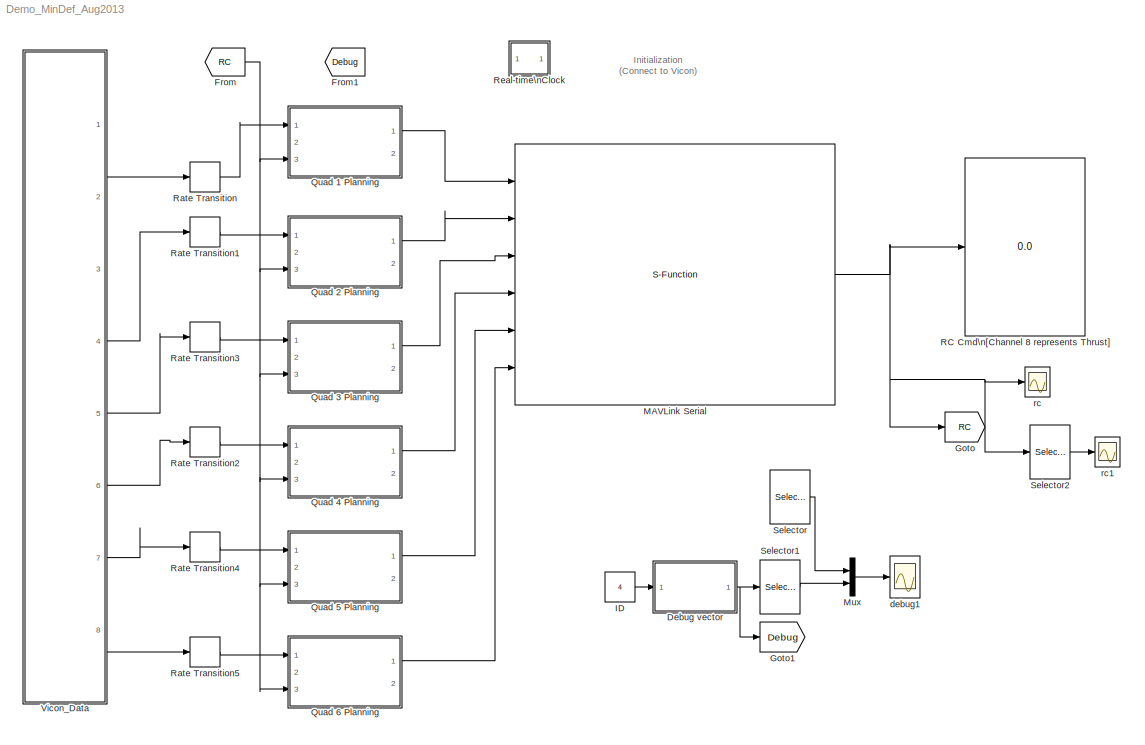
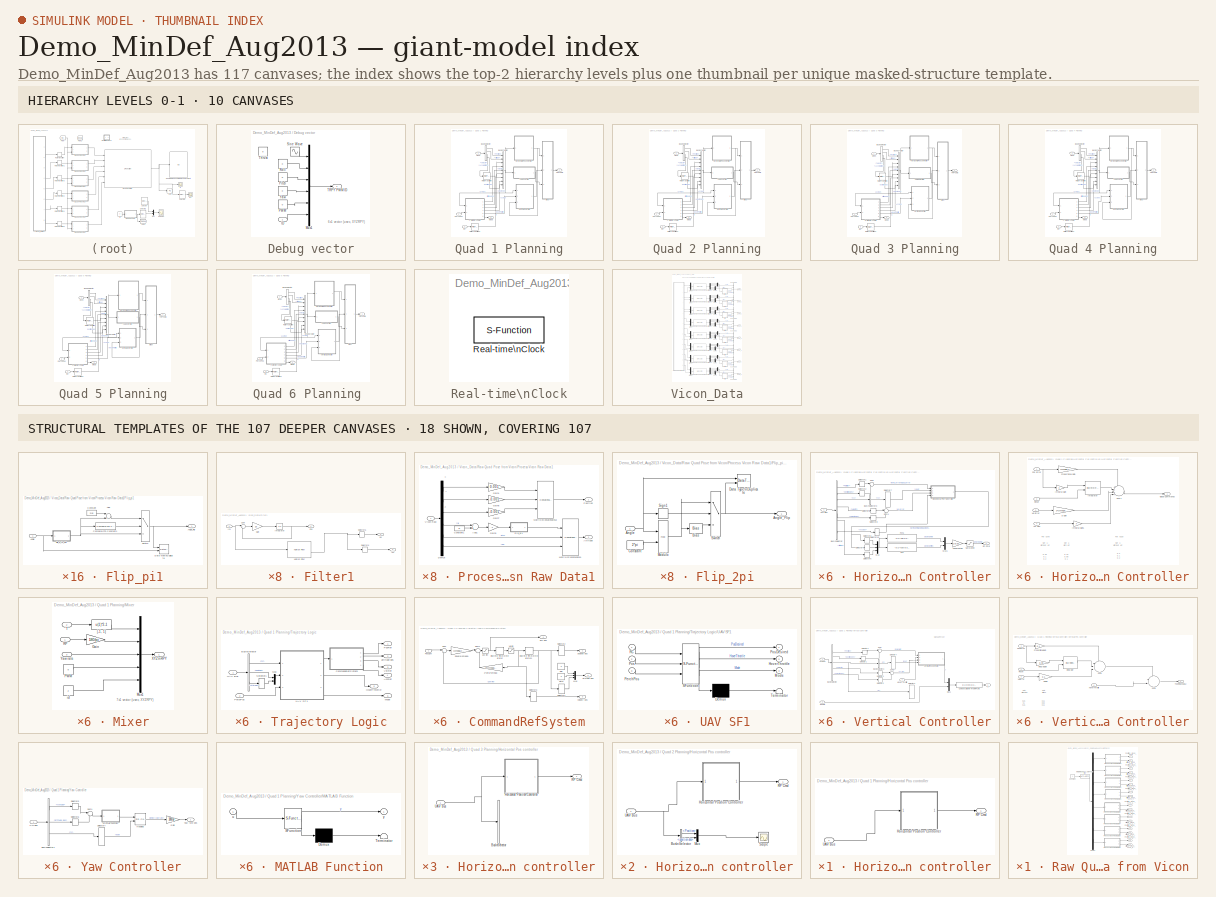
[diagram: thumbnail index - top-2 hierarchy levels (10 canvases) + 18 structural-template representatives of the remaining 107 canvases]
MODEL Demo_MinDef_Aug2013
KIND model
CONFIG InitFcn = sample_time_Vicon = 0.005;\nsample_time=0.02;\nDeltaT = sample_time;\nH0 = 0.35;\nKl = 1;\nOmega_r =1.2; %1.2\nOmega_c = 1.2; \nomega_circle = 36*pi/180;\nomega_h = 0.1;%Ascending speed\nPI = pi;\n
BLOCK [SubSystem] Debug vector
  FunctionWithSeparateData = off
  MaskHideContents = off
  MinAlgLoopOccurrences = off
  Opaque = off
  Ports = [1, 1]
  PropExecContextOutsideSubsystem = off
  RTWSystemCode = Auto
  RequestExecContextInheritance = off
  SID = 2608
BLOCK [Inport] Debug vector/ID
  IconDisplay = Port number
  SID = 2625
BLOCK [Mux] Debug vector/Mux1
  DisplayOption = bar
  Inputs = 6
  Ports = [6, 1]
  SID = 2609
BLOCK [Constant] Debug vector/PWM
  SID = 2610
  Value = 0
BLOCK [Constant] Debug vector/Pitch
  SID = 2611
  Value = 0
BLOCK [Constant] Debug vector/Roll
  SID = 2612
  Value = 0
BLOCK [Sin] Debug vector/Sine Wave
  Ports = [0, 1]
  SID = 2613
  SampleTime = 0
BLOCK [Outport] Debug vector/TRPY PWM ID
  IconDisplay = Port number
  SID = 2617
BLOCK [Constant] Debug vector/Thrust
  SID = 2614
  Value = 0
BLOCK [Constant] Debug vector/Yaw
  SID = 2615
  Value = 0
BLOCK [From] From
  GotoTag = RC
  SID = 4
  TagVisibility = global
BLOCK [From] From1
  GotoTag = Debug
  SID = 3249
  TagVisibility = global
BLOCK [Goto] Goto
  GotoTag = RC
  SID = 5
  TagVisibility = global
BLOCK [Goto] Goto1
  GotoTag = Debug
  SID = 2627
  TagVisibility = global
BLOCK [Constant] ID
  SID = 2626
  Value = 4
BLOCK [S-Function] MAVLink Serial
  EnableBusSupport = off
  FunctionName = MAVLink_Interface_MultUAV
  MaskCallbackString = |||||||||||||||||||||||||||||||||
  MaskDisplay = % Block image\nimage(imread('10-inch Quad Heat Map.png'));\n\n%Label block\nfprintf('MAVLink Serial\\n%s\\n%dbps', COM_Port,  Baud_Rate)\n\n\n%Label input ports\n\nin = 1;\nif (Quad_1 == 1)\n    port_label('input', in, 'Quad 1');\n    in = in + 1;\nend\nif (Quad_2 == 1)\n    port_label('input', in, 'Quad 2');\n    in = in + 1;\nend\n\nif (Quad_3 == 1)\n    port_label('input', in, 'Quad 3');\n    i...<+2516ch>
  MaskEnableString = on,on,on,on,on,on,on,on,on,on,on,on,on,on,on,on,on,on,on,on,on,on,on,on,on,on,on,on,on,on,on,on,on,on
  MaskIconFrame = on
  MaskIconOpaque = off
  MaskIconRotate = none
  MaskIconUnits = autoscale
  MaskInitialization = MSG_ID_NUM_INPUT = [uint8(196) uint8(197) uint8(198) uint8(199) uint8(200) uint8(201) uint8(202) uint8(203) uint8(204) uint8(205)\n                    uint8(206) uint8(207) uint8(208) uint8(209) uint8(210) uint8(211) uint8(212) uint8(213) uint8(214) uint8(215)\n                    uint8(216) uint8(217) uint8(218) uint8(219) uint8(220) uint8(221) uint8(222) uint8(223) uint8(224) uint8(225)];\nMSG_I...<+556ch>
  MaskPortRotate = default
  MaskPromptString = COM Port|Baud Rate|ATTITUDE|RC CHANNELS SCALED|Quad No 1|Quad No 2|Quad No 3|Quad No 4|Quad No 5|Quad No 6|Quad No 7|Quad No 8|Quad No 9|Quad No 10|Quad No 11|Quad No 12|Quad No 13|Quad No 14|Quad No 15|Quad No 16|Quad No 17|Quad No 18|Quad No 19|Quad No 20|Quad No 21|Quad No 22|Quad No 23|Quad No 24|Quad No 25|Quad No 26|Quad No 27|Quad No 28|Quad No 29|Quad No 30
  MaskStyleString = edit,edit,checkbox,checkbox,checkbox,checkbox,checkbox,checkbox,checkbox,checkbox,checkbox,checkbox,checkbox,checkbox,checkbox,checkbox,checkbox,checkbox,checkbox,checkbox,checkbox,checkbox,checkbox,checkbox,checkbox,checkbox,checkbox,checkbox,checkbox,checkbox,checkbox,checkbox,checkbox,checkbox
  MaskTabNameString = Setting,Setting,Output Message,Output Message,Input Message,Input Message,Input Message,Input Message,Input Message,Input Message,Input Message,Input Message,Input Message,Input Message,Input Message,Input Message,Input Message,Input Message,Input Message,Input Message,Input Message,Input Message,Input Message,Input Message,Input Message,Input Message,Input Message,Input Message,Input Message,Inpu...<+65ch>
  MaskToolTipString = on,on,on,on,on,on,on,on,on,on,on,on,on,on,on,on,on,on,on,on,on,on,on,on,on,on,on,on,on,on,on,on,on,on
  MaskTunableValueString = on,on,on,on,on,on,on,on,on,on,on,on,on,on,on,on,on,on,on,on,on,on,on,on,on,on,on,on,on,on,on,on,on,on
  MaskValueString = 'COM4'|57600|off|on|off|on|off|on|on|on|on|on|off|off|off|off|off|off|off|off|off|off|off|off|off|off|off|off|off|off|off|off|off|off
  MaskVariables = COM_Port=@1;Baud_Rate=@2;ATTITUDE_OUT=@3;RC_SCALED=@4;Quad_1=@5;Quad_2=@6;Quad_3=@7;Quad_4=@8;Quad_5=@9;Quad_6=@10;Quad_7=@11;Quad_8=@12;Quad_9=@13;Quad_10=@14;Quad_11=@15;Quad_12=@16;Quad_13=@17;Quad_14=@18;Quad_15=@19;Quad_16=@20;Quad_17=@21;Quad_18=@22;Quad_19=@23;Quad_20=@24;Quad_21=@25;Quad_22=@26;Quad_23=@27;Quad_24=@28;Quad_25=@29;Quad_26=@30;Quad_27=@31;Quad_28=@32;Quad_29=@33;Quad_30=@34;
  MaskVisibilityString = on,on,on,on,on,on,on,on,on,on,on,on,on,on,on,on,on,on,on,on,on,on,on,on,on,on,on,on,on,on,on,on,on,on
  Parameters = COM_Port,Baud_Rate,MSG_INPUT,MSG_OUTPUT
  Ports = [6, 1]
  SID = 2618
BLOCK [Mux] Mux
  DisplayOption = bar
  Inputs = 2
  Ports = [2, 1]
  SID = 2621
BLOCK [SubSystem] Quad 1 Planning
  FunctionWithSeparateData = off
  MaskHideContents = off
  MinAlgLoopOccurrences = off
  Opaque = off
  Ports = [3, 2]
  PropExecContextOutsideSubsystem = off
  RTWSystemCode = Auto
  RequestExecContextInheritance = off
  SID = 3111
BLOCK [BusCreator] Quad 1 Planning/Bus\nCreator
  DisplayOption = bar
  Inputs = 9
  Ports = [9, 1]
  SID = 3115
BLOCK [BusSelector] Quad 1 Planning/Bus\nSelector
  OutputSignals = Position,Attitude,Velocity,Acceleration
  Ports = [1, 4]
  SID = 3116
BLOCK [SubSystem] Quad 1 Planning/Horizontal Pos controller
  FunctionWithSeparateData = off
  MaskHideContents = off
  MinAlgLoopOccurrences = off
  Opaque = off
  Ports = [1, 1]
  PropExecContextOutsideSubsystem = off
  RTWSystemCode = Auto
  RequestExecContextInheritance = off
  SID = 3117
BLOCK [SubSystem] Quad 1 Planning/Horizontal Pos controller/Horizontal Position Controller
  FunctionWithSeparateData = off
  MaskHideContents = off
  MinAlgLoopOccurrences = off
  Opaque = off
  Ports = [1, 1]
  PropExecContextOutsideSubsystem = off
  RTWSystemCode = Auto
  RequestExecContextInheritance = off
  SID = 3119
BLOCK [BusSelector] Quad 1 Planning/Horizontal Pos controller/Horizontal Position Controller/Bus\nSelector
  OutputSignals = Position,position des,rc,velocity,velocity des,Attitude,Acceleration,Acc des
  Ports = [1, 8]
  SID = 3121
BLOCK [BusSelector] Quad 1 Planning/Horizontal Pos controller/Horizontal Position Controller/Bus\nSelector3
  OutputSignals = rc
  Ports = [1, 1]
  SID = 3122
BLOCK [Fcn] Quad 1 Planning/Horizontal Pos controller/Horizontal Position Controller/Fcn
  Expr = -u(1)*cos(u(3)) - u(2)*sin(u(3))
  SID = 3123
BLOCK [Fcn] Quad 1 Planning/Horizontal Pos controller/Horizontal Position Controller/Fcn1
  Expr = -u(1)*sin(u(3)) + u(2)*cos(u(3))
  SID = 3124
BLOCK [SubSystem] Quad 1 Planning/Horizontal Pos controller/Horizontal Position Controller/Horizontal Pos Controller
  FunctionWithSeparateData = off
  MaskHideContents = off
  MinAlgLoopOccurrences = off
  Opaque = off
  Ports = [4, 1]
  PropExecContextOutsideSubsystem = off
  RTWSystemCode = Auto
  RequestExecContextInheritance = off
  SID = 3125
BLOCK [Inport] Quad 1 Planning/Horizontal Pos controller/Horizontal Position Controller/Horizontal Pos Controller/Acc des
  IconDisplay = Port number
  Port = 4
  SID = 3129
BLOCK [Gain] Quad 1 Planning/Horizontal Pos controller/Horizontal Position Controller/Horizontal Pos Controller/D Gain
  Gain = 2*Omega_c
  OutDataTypeStr = double
  ParamDataTypeStr = Inherit: Inherit via internal rule
  SID = 3130
  SaturateOnIntegerOverflow = off
BLOCK [Outport] Quad 1 Planning/Horizontal Pos controller/Horizontal Position Controller/Horizontal Pos Controller/Global Commands
  IconDisplay = Port number
  SID = 3136
BLOCK [Gain] Quad 1 Planning/Horizontal Pos controller/Horizontal Position Controller/Horizontal Pos Controller/Integral Gain
  DisableCoverage = on
  OutDataTypeStr = double
  ParamDataTypeStr = double
  SID = 3131
  SaturateOnIntegerOverflow = off
BLOCK [Gain] Quad 1 Planning/Horizontal Pos controller/Horizontal Position Controller/Horizontal Pos Controller/Integral Gain1
  DisableCoverage = on
  OutDataTypeStr = double
  ParamDataTypeStr = double
  SID = 3132
  SaturateOnIntegerOverflow = off
BLOCK [DiscreteIntegrator] Quad 1 Planning/Horizontal Pos controller/Horizontal Position Controller/Horizontal Pos Controller/Integrator
  DisableCoverage = on
  ExternalReset = rising
  ICPrevOutput = DiscIntNeverNeededParam
  ICPrevScaledInput = DiscIntNeverNeededParam
  InitialConditionMode = State only (most efficient)
  InitialConditionSource = internal
  IntegratorMethod = Integration: Trapezoidal
  LowerSaturationLimit = -10*pi/180
  OutDataTypeStr = double
  Ports = [2, 1]
  SID = 3133
  SampleTime = 0.02
  UpperSaturationLimit = 10*pi/180
BLOCK [Inport] Quad 1 Planning/Horizontal Pos controller/Horizontal Position Controller/Horizontal Pos Controller/Pos Error
  IconDisplay = Port number
  SID = 3126
BLOCK [Gain] Quad 1 Planning/Horizontal Pos controller/Horizontal Position Controller/Horizontal Pos Controller/Proportional Gain
  DisableCoverage = on
  Gain = Omega_c^2
  OutDataTypeStr = double
  ParamDataTypeStr = double
  SID = 3134
  SaturateOnIntegerOverflow = off
BLOCK [Inport] Quad 1 Planning/Horizontal Pos controller/Horizontal Position Controller/Horizontal Pos Controller/Reset
  IconDisplay = Port number
  Port = 2
  SID = 3127
BLOCK [Sum] Quad 1 Planning/Horizontal Pos controller/Horizontal Position Controller/Horizontal Pos Controller/Sum1
  AccumDataTypeStr = double
  DisableCoverage = on
  IconShape = round
  InputSameDT = off
  Inputs = ++++|
  OutDataTypeStr = double
  Ports = [4, 1]
  SID = 3135
  SampleTime = 0.02
  SaturateOnIntegerOverflow = off
BLOCK [Inport] Quad 1 Planning/Horizontal Pos controller/Horizontal Position Controller/Horizontal Pos Controller/Vel Error
  IconDisplay = Port number
  Port = 3
  SID = 3128
BLOCK [Gain] Quad 1 Planning/Horizontal Pos controller/Horizontal Position Controller/Linearization
  Gain = 1/9.81
  OutDataTypeStr = double
  ParamDataTypeStr = Inherit: Inherit via internal rule
  SID = 3137
  SaturateOnIntegerOverflow = off
BLOCK [Mux] Quad 1 Planning/Horizontal Pos controller/Horizontal Position Controller/Mux
  DisplayOption = bar
  Inputs = 3
  Ports = [3, 1]
  SID = 3138
BLOCK [Mux] Quad 1 Planning/Horizontal Pos controller/Horizontal Position Controller/Mux1
  DisplayOption = bar
  Inputs = 2
  Ports = [2, 1]
  SID = 3139
BLOCK [Outport] Quad 1 Planning/Horizontal Pos controller/Horizontal Position Controller/RP Cmd
  IconDisplay = Port number
  SID = 3152
BLOCK [Saturate] Quad 1 Planning/Horizontal Pos controller/Horizontal Position Controller/Saturation
  InputPortMap = u0
  LowerLimit = -60*pi/180
  Ports = [1, 1]
  SID = 3140
  UpperLimit = 60*pi/180
BLOCK [Selector] Quad 1 Planning/Horizontal Pos controller/Horizontal Position Controller/Selector1
  IndexOptions = Index vector (dialog)
  Indices = [1 2]
  InputPortWidth = 3
  OutputSizes = 1
  Ports = [1, 1]
  SID = 3141
BLOCK [Selector] Quad 1 Planning/Horizontal Pos controller/Horizontal Position Controller/Selector10
  IndexOptions = Index vector (dialog)
  Indices = [1 2]
  InputPortWidth = 4
  OutputSizes = 1
  Ports = [1, 1]
  SID = 3142
BLOCK [Selector] Quad 1 Planning/Horizontal Pos controller/Horizontal Position Controller/Selector2
  IndexOptions = Index vector (dialog)
  Indices = [1 2]
  InputPortWidth = 3
  OutputSizes = 1
  Ports = [1, 1]
  SID = 3143
BLOCK [Selector] Quad 1 Planning/Horizontal Pos controller/Horizontal Position Controller/Selector3
  IndexOptions = Index vector (dialog)
  Indices = [1]
  InputPortWidth = 2
  OutputSizes = 1
  Ports = [1, 1]
  SID = 3144
BLOCK [Selector] Quad 1 Planning/Horizontal Pos controller/Horizontal Position Controller/Selector4
  IndexOptions = Index vector (dialog)
  Indices = [2]
  InputPortWidth = 2
  OutputSizes = 1
  Ports = [1, 1]
  SID = 3145
BLOCK [Selector] Quad 1 Planning/Horizontal Pos controller/Horizontal Position Controller/Selector5
  IndexOptions = Index vector (dialog)
  Indices = [3]
  InputPortWidth = 3
  OutputSizes = 1
  Ports = [1, 1]
  SID = 3146
BLOCK [Selector] Quad 1 Planning/Horizontal Pos controller/Horizontal Position Controller/Selector6
  IndexOptions = Index vector (dialog)
  Indices = [1 2]
  InputPortWidth = 3
  OutputSizes = 1
  Ports = [1, 1]
  SID = 3147
BLOCK [Selector] Quad 1 Planning/Horizontal Pos controller/Horizontal Position Controller/Selector7
  IndexOptions = Index vector (dialog)
  Indices = [7]
  InputPortWidth = 8
  OutputSizes = 1
  Ports = [1, 1]
  SID = 3148
BLOCK [Selector] Quad 1 Planning/Horizontal Pos controller/Horizontal Position Controller/Selector8
  IndexOptions = Index vector (dialog)
  Indices = [1 2]
  InputPortWidth = 3
  OutputSizes = 1
  Ports = [1, 1]
  SID = 3149
BLOCK [Sum] Quad 1 Planning/Horizontal Pos controller/Horizontal Position Controller/Sum
  IconShape = round
  InputSameDT = off
  Inputs = |-+
  OutDataTypeStr = Inherit: Inherit via internal rule
  Ports = [2, 1]
  SID = 3150
  SaturateOnIntegerOverflow = off
BLOCK [Sum] Quad 1 Planning/Horizontal Pos controller/Horizontal Position Controller/Sum1
  IconShape = round
  InputSameDT = off
  Inputs = |-+
  OutDataTypeStr = Inherit: Inherit via internal rule
  Ports = [2, 1]
  SID = 3151
  SaturateOnIntegerOverflow = off
BLOCK [Inport] Quad 1 Planning/Horizontal Pos controller/Horizontal Position Controller/UAV Bus
  IconDisplay = Port number
  SID = 3120
BLOCK [Outport] Quad 1 Planning/Horizontal Pos controller/RP Cmd
  IconDisplay = Port number
  SID = 3153
BLOCK [Inport] Quad 1 Planning/Horizontal Pos controller/UAV Bus
  IconDisplay = Port number
  SID = 3118
BLOCK [SubSystem] Quad 1 Planning/Mixer
  FunctionWithSeparateData = off
  MaskHideContents = off
  MinAlgLoopOccurrences = off
  Opaque = off
  Ports = [3, 1]
  PropExecContextOutsideSubsystem = off
  RTWSystemCode = Auto
  RequestExecContextInheritance = off
  SID = 3154
BLOCK [Gain] Quad 1 Planning/Mixer/Gain
  Gain = 180/pi
  OutDataTypeStr = Inherit: Inherit via internal rule
  ParamDataTypeStr = Inherit: Inherit via internal rule
  SID = 3158
  SaturateOnIntegerOverflow = off
BLOCK [Mux] Quad 1 Planning/Mixer/Mux1
  DisplayOption = bar
  Inputs = 5
  Ports = [5, 1]
  SID = 3159
BLOCK [Constant] Quad 1 Planning/Mixer/PWM
  SID = 3160
  Value = 0
BLOCK [Inport] Quad 1 Planning/Mixer/RP
  IconDisplay = Port number
  SID = 3155
BLOCK [Inport] Quad 1 Planning/Mixer/T
  IconDisplay = Port number
  Port = 2
  SID = 3156
BLOCK [Outport] Quad 1 Planning/Mixer/XYZ\nRPY
  IconDisplay = Port number
  SID = 3163
BLOCK [Inport] Quad 1 Planning/Mixer/Yaw rate
  IconDisplay = Port number
  Port = 3
  SID = 3157
BLOCK [Fcn] Quad 1 Planning/Mixer/[-1, 1]
  Expr = u(1)*2-1
  SID = 3161
BLOCK [Constant] Quad 1 Planning/Mixer/id
  SID = 3162
  Value = 2
BLOCK [Outport] Quad 1 Planning/Mode
  IconDisplay = Port number
  Port = 2
  SID = 3240
BLOCK [Inport] Quad 1 Planning/Perch Pos
  IconDisplay = Port number
  Port = 2
  SID = 3113
BLOCK [Inport] Quad 1 Planning/RC
  IconDisplay = Port number
  Port = 3
  SID = 3114
BLOCK [RateTransition] Quad 1 Planning/Rate Transition
  OutPortSampleTime = sample_time
  SID = 3164
BLOCK [RateTransition] Quad 1 Planning/Rate Transition1
  OutPortSampleTime = sample_time
  SID = 3165
BLOCK [Outport] Quad 1 Planning/TRPY Cmd
  IconDisplay = Port number
  SID = 3239
BLOCK [SubSystem] Quad 1 Planning/Trajectory Logic
  FunctionWithSeparateData = off
  MaskHideContents = off
  MinAlgLoopOccurrences = off
  Opaque = off
  Ports = [2, 6]
  PropExecContextOutsideSubsystem = off
  RTWSystemCode = Auto
  RequestExecContextInheritance = off
  SID = 3166
BLOCK [Outport] Quad 1 Planning/Trajectory Logic/AccRef
  IconDisplay = Port number
  Port = 4
  SID = 3196
BLOCK [BusSelector] Quad 1 Planning/Trajectory Logic/Bus\nSelector
  OutputSignals = rc,Position,Attitude
  Ports = [1, 3]
  SID = 3169
BLOCK [SubSystem] Quad 1 Planning/Trajectory Logic/CommandRefSystem
  FunctionWithSeparateData = off
  MaskHideContents = off
  MinAlgLoopOccurrences = off
  Opaque = off
  Ports = [1, 4]
  PropExecContextOutsideSubsystem = off
  RTWSystemCode = Auto
  RequestExecContextInheritance = off
  SID = 3170
BLOCK [Gain] Quad 1 Planning/Trajectory Logic/CommandRefSystem/2*zeta*omega
  Gain = 2*Omega_r
  OutDataTypeStr = Inherit: Inherit via internal rule
  ParamDataTypeStr = Inherit: Inherit via internal rule
  SID = 3172
  SaturateOnIntegerOverflow = off
BLOCK [DiscreteIntegrator] Quad 1 Planning/Trajectory Logic/CommandRefSystem/Discrete-Time\nIntegrator
  ExternalReset = none
  ICPrevOutput = DiscIntNeverNeededParam
  ICPrevScaledInput = DiscIntNeverNeededParam
  InitialConditionSource = internal
  IntegratorMethod = Integration: Forward Euler
  Ports = [1, 1]
  SID = 3173
  SampleTime = 0.02
BLOCK [DiscreteIntegrator] Quad 1 Planning/Trajectory Logic/CommandRefSystem/Discrete-Time\nIntegrator1
  ExternalReset = none
  ICPrevOutput = DiscIntNeverNeededParam
  ICPrevScaledInput = DiscIntNeverNeededParam
  InitialConditionSource = internal
  IntegratorMethod = Integration: Forward Euler
  Ports = [1, 1]
  SID = 3174
  SampleTime = 0.02
BLOCK [Mux] Quad 1 Planning/Trajectory Logic/CommandRefSystem/Mux
  DisplayOption = bar
  Inputs = 3
  Ports = [3, 1]
  SID = 3175
BLOCK [Constant] Quad 1 Planning/Trajectory Logic/CommandRefSystem/Pitch
  SID = 3176
  SampleTime = 0.02
  Value = 0
BLOCK [Inport] Quad 1 Planning/Trajectory Logic/CommandRefSystem/PosCom
  IconDisplay = Port number
  SID = 3171
BLOCK [Constant] Quad 1 Planning/Trajectory Logic/CommandRefSystem/Roll
  SID = 3177
  SampleTime = 0.02
  Value = 0
BLOCK [Selector] Quad 1 Planning/Trajectory Logic/CommandRefSystem/Selector1
  IndexOptions = Index vector (dialog)
  Indices = [4]
  InputPortWidth = 4
  OutputSizes = 1
  Ports = [1, 1]
  SID = 3178
BLOCK [Selector] Quad 1 Planning/Trajectory Logic/CommandRefSystem/Selector2
  IndexOptions = Index vector (dialog)
  Indices = [1 2 3]
  InputPortWidth = 4
  OutputSizes = 1
  Ports = [1, 1]
  SID = 3179
BLOCK [Selector] Quad 1 Planning/Trajectory Logic/CommandRefSystem/Selector3
  IndexOptions = Index vector (dialog)
  Indices = [1 2 3]
  InputPortWidth = 4
  OutputSizes = 1
  Ports = [1, 1]
  SID = 3180
BLOCK [Gain] Quad 1 Planning/Trajectory Logic/CommandRefSystem/Square(omega)
  Gain = Omega_r^2
  OutDataTypeStr = Inherit: Inherit via internal rule
  ParamDataTypeStr = Inherit: Inherit via internal rule
  SID = 3181
  SaturateOnIntegerOverflow = off
BLOCK [Sum] Quad 1 Planning/Trajectory Logic/CommandRefSystem/Sum
  IconShape = round
  InputSameDT = off
  Inputs = |+-
  OutDataTypeStr = Inherit: Inherit via internal rule
  Ports = [2, 1]
  SID = 3182
  SaturateOnIntegerOverflow = off
BLOCK [Sum] Quad 1 Planning/Trajectory Logic/CommandRefSystem/Sum1
  IconShape = round
  InputSameDT = off
  Inputs = |+-
  OutDataTypeStr = Inherit: Inherit via internal rule
  Ports = [2, 1]
  SID = 3183
  SaturateOnIntegerOverflow = off
BLOCK [Saturate] Quad 1 Planning/Trajectory Logic/CommandRefSystem/Vel lim
  InputPortMap = u0
  LowerLimit = -3
  Ports = [1, 1]
  SID = 3184
  UpperLimit = 3
BLOCK [Outport] Quad 1 Planning/Trajectory Logic/CommandRefSystem/acc des
  IconDisplay = Port number
  Port = 4
  SID = 3189
BLOCK [Saturate] Quad 1 Planning/Trajectory Logic/CommandRefSystem/acc lim
  InputPortMap = u0
  LowerLimit = -4
  Ports = [1, 1]
  SID = 3185
  UpperLimit = 4
BLOCK [Outport] Quad 1 Planning/Trajectory Logic/CommandRefSystem/attitude des
  IconDisplay = Port number
  Port = 2
  SID = 3187
BLOCK [Outport] Quad 1 Planning/Trajectory Logic/CommandRefSystem/position des
  IconDisplay = Port number
  SID = 3186
BLOCK [Outport] Quad 1 Planning/Trajectory Logic/CommandRefSystem/velocity des
  IconDisplay = Port number
  Port = 3
  SID = 3188
BLOCK [Outport] Quad 1 Planning/Trajectory Logic/HoverThrottle
  IconDisplay = Port number
  Port = 5
  SID = 3197
BLOCK [Outport] Quad 1 Planning/Trajectory Logic/Mode
  IconDisplay = Port number
  Port = 6
  SID = 3198
BLOCK [Mux] Quad 1 Planning/Trajectory Logic/Mux
  DisplayOption = bar
  Inputs = 2
  Ports = [2, 1]
  SID = 3190
BLOCK [Inport] Quad 1 Planning/Trajectory Logic/PerchPos
  IconDisplay = Port number
  Port = 2
  SID = 3168
BLOCK [Outport] Quad 1 Planning/Trajectory Logic/PosRef
  IconDisplay = Port number
  SID = 3193
BLOCK [Selector] Quad 1 Planning/Trajectory Logic/Selector1
  IndexOptions = Index vector (dialog)
  Indices = [3]
  InputPortWidth = 3
  OutputSizes = 1
  Ports = [1, 1]
  SID = 3191
BLOCK [Inport] Quad 1 Planning/Trajectory Logic/UAV Bus
  IconDisplay = Port number
  SID = 3167
BLOCK [SubSystem] Quad 1 Planning/Trajectory Logic/UAV SF1
  ErrorFcn = Stateflow.Translate.translate
  FunctionWithSeparateData = off
  MaskDescription = Stateflow diagram
  MaskDisplay = plot(sf('Private','sfblk','xIcon'),sf('Private','sfblk','yIcon'));text(0.5,0,sf('Private', 'sfblk', 'tIcon'),'HorizontalAl','Center','VerticalAl','Bottom');
  MaskHideContents = off
  MaskIconFrame = off
  MaskIconOpaque = off
  MaskIconRotate = none
  MaskIconUnits = autoscale
  MaskPortRotate = default
  MaskSelfModifiable = on
  MaskType = Stateflow
  MinAlgLoopOccurrences = off
  Opaque = off
  PermitHierarchicalResolution = ExplicitOnly
  Ports = [3, 3]
  PropExecContextOutsideSubsystem = off
  RTWSystemCode = Auto
  RequestExecContextInheritance = off
  SID = 3192
  TreatAsAtomicUnit = on
BLOCK [Demux] Quad 1 Planning/Trajectory Logic/UAV SF1/ Demux 
  Outputs = 1
  Ports = [1, 1]
  SID = 3192::8
BLOCK [S-Function] Quad 1 Planning/Trajectory Logic/UAV SF1/ SFunction 
  EnableBusSupport = on
  FunctionName = sf_sfun
  Parameters = DeltaT,H0,Kl,PI,omega_circle,omega_h
  PortCounts = [3 4]
  Ports = [3, 4]
  SID = 3192::7
  Tag = Stateflow S-Function Demo_MinDef_Aug2013 2
BLOCK [Terminator] Quad 1 Planning/Trajectory Logic/UAV SF1/ Terminator 
  SID = 3192::42
BLOCK [Outport] Quad 1 Planning/Trajectory Logic/UAV SF1/HoverThrottle
  IconDisplay = Port number
  Port = 2
  SID = 3192::17
BLOCK [Outport] Quad 1 Planning/Trajectory Logic/UAV SF1/Mode
  IconDisplay = Port number
  Port = 3
  SID = 3192::18
BLOCK [Inport] Quad 1 Planning/Trajectory Logic/UAV SF1/PerchPos
  IconDisplay = Port number
  Port = 3
  SID = 3192::23
BLOCK [Inport] Quad 1 Planning/Trajectory Logic/UAV SF1/Pos
  IconDisplay = Port number
  Port = 2
  SID = 3192::20
BLOCK [Outport] Quad 1 Planning/Trajectory Logic/UAV SF1/PosDesired
  IconDisplay = Port number
  SID = 3192::16
BLOCK [Inport] Quad 1 Planning/Trajectory Logic/UAV SF1/RC
  IconDisplay = Port number
  SID = 3192::19
BLOCK [Outport] Quad 1 Planning/Trajectory Logic/VelRef
  IconDisplay = Port number
  Port = 3
  SID = 3195
BLOCK [Outport] Quad 1 Planning/Trajectory Logic/attitude des
  IconDisplay = Port number
  Port = 2
  SID = 3194
BLOCK [SubSystem] Quad 1 Planning/Vertical Controller
  FunctionWithSeparateData = off
  MaskHideContents = off
  MinAlgLoopOccurrences = off
  Opaque = off
  Ports = [3, 1]
  PropExecContextOutsideSubsystem = off
  RTWSystemCode = Auto
  RequestExecContextInheritance = off
  SID = 3199
BLOCK [BusSelector] Quad 1 Planning/Vertical Controller/Bus\nSelector
  OutputSignals = Position,position des,rc,velocity,velocity des
  Ports = [1, 5]
  SID = 3203
BLOCK [BusSelector] Quad 1 Planning/Vertical Controller/Bus\nSelector3
  OutputSignals = rc
  Ports = [1, 1]
  SID = 3204
BLOCK [Fcn] Quad 1 Planning/Vertical Controller/Compensation for T from RP cmd
  Expr = u(1)/(cos(u(2))*cos(u(3)))
  SID = 3205
BLOCK [Inport] Quad 1 Planning/Vertical Controller/Hover Throttle
  IconDisplay = Port number
  Port = 2
  SID = 3201
BLOCK [Mux] Quad 1 Planning/Vertical Controller/Mux1
  DisplayOption = bar
  Inputs = 2
  Ports = [2, 1]
  SID = 3206
BLOCK [Inport] Quad 1 Planning/Vertical Controller/RP Cmd
  IconDisplay = Port number
  Port = 3
  SID = 3202
BLOCK [Selector] Quad 1 Planning/Vertical Controller/Selector1
  IndexOptions = Index vector (dialog)
  Indices = [3]
  InputPortWidth = 3
  OutputSizes = 1
  Ports = [1, 1]
  SID = 3207
BLOCK [Selector] Quad 1 Planning/Vertical Controller/Selector2
  IndexOptions = Index vector (dialog)
  Indices = [1]
  InputPortWidth = 8
  OutputSizes = 1
  Ports = [1, 1]
  SID = 3208
BLOCK [Selector] Quad 1 Planning/Vertical Controller/Selector3
  IndexOptions = Index vector (dialog)
  Indices = [3]
  InputPortWidth = 3
  OutputSizes = 1
  Ports = [1, 1]
  SID = 3209
BLOCK [Selector] Quad 1 Planning/Vertical Controller/Selector4
  IndexOptions = Index vector (dialog)
  Indices = [3]
  InputPortWidth = 3
  OutputSizes = 1
  Ports = [1, 1]
  SID = 3210
BLOCK [Selector] Quad 1 Planning/Vertical Controller/Selector5
  IndexOptions = Index vector (dialog)
  Indices = [3]
  InputPortWidth = 3
  OutputSizes = 1
  Ports = [1, 1]
  SID = 3211
BLOCK [Selector] Quad 1 Planning/Vertical Controller/Selector7
  IndexOptions = Index vector (dialog)
  Indices = [7]
  InputPortWidth = 8
  OutputSizes = 1
  Ports = [1, 1]
  SID = 3212
BLOCK [Sum] Quad 1 Planning/Vertical Controller/Sum
  IconShape = round
  InputSameDT = off
  Inputs = |-+
  OutDataTypeStr = Inherit: Inherit via internal rule
  Ports = [2, 1]
  SID = 3213
  SaturateOnIntegerOverflow = off
BLOCK [Sum] Quad 1 Planning/Vertical Controller/Sum1
  IconShape = round
  InputSameDT = off
  Inputs = |-+
  OutDataTypeStr = Inherit: Inherit via internal rule
  Ports = [2, 1]
  SID = 3214
  SaturateOnIntegerOverflow = off
BLOCK [Outport] Quad 1 Planning/Vertical Controller/T
  IconDisplay = Port number
  SID = 3227
BLOCK [Inport] Quad 1 Planning/Vertical Controller/UAV bus
  IconDisplay = Port number
  SID = 3200
BLOCK [SubSystem] Quad 1 Planning/Vertical Controller/Verticall Pos Controller
  FunctionWithSeparateData = off
  MaskHideContents = off
  MinAlgLoopOccurrences = off
  Opaque = off
  Ports = [4, 1]
  PropExecContextOutsideSubsystem = off
  RTWSystemCode = Auto
  RequestExecContextInheritance = off
  SID = 3215
BLOCK [Gain] Quad 1 Planning/Vertical Controller/Verticall Pos Controller/D Gain
  Gain = 0.1
  OutDataTypeStr = double
  ParamDataTypeStr = Inherit: Inherit via internal rule
  SID = 3220
  SaturateOnIntegerOverflow = off
BLOCK [Inport] Quad 1 Planning/Vertical Controller/Verticall Pos Controller/Hover Throttle
  IconDisplay = Port number
  Port = 4
  SID = 3219
BLOCK [Gain] Quad 1 Planning/Vertical Controller/Verticall Pos Controller/Integral Gain
  DisableCoverage = on
  Gain = 0.05
  OutDataTypeStr = double
  ParamDataTypeStr = double
  SID = 3221
  SaturateOnIntegerOverflow = off
BLOCK [DiscreteIntegrator] Quad 1 Planning/Vertical Controller/Verticall Pos Controller/Integrator
  DisableCoverage = on
  ExternalReset = rising
  ICPrevOutput = DiscIntNeverNeededParam
  ICPrevScaledInput = DiscIntNeverNeededParam
  InitialConditionMode = State only (most efficient)
  InitialConditionSource = internal
  IntegratorMethod = Integration: Trapezoidal
  LimitOutput = on
  LowerSaturationLimit = -0.3
  OutDataTypeStr = double
  Ports = [2, 1]
  SID = 3222
  SampleTime = -1
  UpperSaturationLimit = 0.3
BLOCK [Inport] Quad 1 Planning/Vertical Controller/Verticall Pos Controller/Pos Error
  IconDisplay = Port number
  SID = 3216
BLOCK [Gain] Quad 1 Planning/Vertical Controller/Verticall Pos Controller/Proportional Gain
  DisableCoverage = on
  Gain = 0.1
  OutDataTypeStr = double
  ParamDataTypeStr = double
  SID = 3223
  SaturateOnIntegerOverflow = off
BLOCK [Inport] Quad 1 Planning/Vertical Controller/Verticall Pos Controller/Reset
  IconDisplay = Port number
  Port = 2
  SID = 3217
BLOCK [Sum] Quad 1 Planning/Vertical Controller/Verticall Pos Controller/Sum1
  AccumDataTypeStr = double
  DisableCoverage = on
  IconShape = round
  InputSameDT = off
  Inputs = ---|
  OutDataTypeStr = double
  Ports = [3, 1]
  SID = 3224
  SampleTime = 0.02
  SaturateOnIntegerOverflow = off
BLOCK [Sum] Quad 1 Planning/Vertical Controller/Verticall Pos Controller/Sum2
  AccumDataTypeStr = double
  DisableCoverage = on
  IconShape = round
  InputSameDT = off
  Inputs = ++|
  OutDataTypeStr = double
  Ports = [2, 1]
  SID = 3225
  SampleTime = 0.02
  SaturateOnIntegerOverflow = off
BLOCK [Outport] Quad 1 Planning/Vertical Controller/Verticall Pos Controller/T  Commands [0, 1]
  IconDisplay = Port number
  SID = 3226
BLOCK [Inport] Quad 1 Planning/Vertical Controller/Verticall Pos Controller/Vel Error
  IconDisplay = Port number
  Port = 3
  SID = 3218
BLOCK [Inport] Quad 1 Planning/Vicon
  IconDisplay = Port number
  SID = 3112
BLOCK [SubSystem] Quad 1 Planning/Yaw Controller
  FunctionWithSeparateData = off
  MaskHideContents = off
  MinAlgLoopOccurrences = off
  Opaque = off
  Ports = [1, 1]
  PropExecContextOutsideSubsystem = off
  RTWSystemCode = Auto
  RequestExecContextInheritance = off
  SID = 3228
BLOCK [BusSelector] Quad 1 Planning/Yaw Controller/Bus\nSelector1
  OutputSignals = Attitude,attitude des,rc
  Ports = [1, 3]
  SID = 3230
BLOCK [Gain] Quad 1 Planning/Yaw Controller/Gain
  Gain = 180/pi
  OutDataTypeStr = Inherit: Inherit via internal rule
  ParamDataTypeStr = Inherit: Inherit via internal rule
  SID = 3231
  SaturateOnIntegerOverflow = off
BLOCK [Reference] Quad 1 Planning/Yaw Controller/Heading  REF=simulink/Continuous/PID Controller
  AntiWindupMode = none
  Controller = PI
  D = 0
  DOutDataTypeStr = Inherit: Inherit via internal rule
  DOutMax = []
  DOutMin = []
  DParamDataTypeStr = Inherit: Inherit via internal rule
  DParamMax = []
  DParamMin = []
  ExternalReset = rising
  FilterContinuousStateAttributes = ''
  FilterMethod = Trapezoidal
  FilterOutDataTypeStr = Inherit: Inherit via internal rule
  FilterOutMax = []
  FilterOutMin = []
  FilterRTWStateStorageClass = Auto
  FilterStateMustResolveToSignalObject = off
  Form = Parallel
  FunctionWithSeparateData = off
  GeneratePreprocessorConditionals = off
  I = 1
  IOutDataTypeStr = Inherit: Inherit via internal rule
  IOutMax = []
  IOutMin = []
  IParamDataTypeStr = Inherit: Inherit via internal rule
  IParamMax = []
  IParamMin = []
  IgnoreLimit = off
  InitialConditionForFilter = 0
  InitialConditionForIntegrator = 0
  InitialConditionSource = internal
  IntegratorContinuousStateAttributes = ''
  IntegratorMethod = Trapezoidal
  IntegratorOutDataTypeStr = Inherit: Inherit via internal rule
  IntegratorOutMax = []
  IntegratorOutMin = []
  IntegratorRTWStateStorageClass = Auto
  IntegratorStateMustResolveToSignalObject = off
  Kb = 1
  KbOutDataTypeStr = Inherit: Inherit via internal rule
  KbOutMax = []
  KbOutMin = []
  KbParamDataTypeStr = Inherit: Inherit via internal rule
  KbParamMax = []
  KbParamMin = []
  Kt = 1
  KtOutDataTypeStr = Inherit: Inherit via internal rule
  KtOutMax = []
  KtOutMin = []
  KtParamDataTypeStr = Inherit: Inherit via internal rule
  KtParamMax = []
  KtParamMin = []
  LimitOutput = on
  LinearizeAsGain = off
  LockScale = off
  LowerSaturationLimit = -300*pi/180
  N = 100
  NOutDataTypeStr = Inherit: Inherit via internal rule
  NOutMax = []
  NOutMin = []
  NParamDataTypeStr = Inherit: Inherit via internal rule
  NParamMax = []
  NParamMin = []
  P = 2
  POutDataTypeStr = Inherit: Inherit via internal rule
  POutMax = []
  POutMin = []
  PParamDataTypeStr = Inherit: Inherit via internal rule
  PParamMax = []
  PParamMin = []
  Ports = [2, 1]
  RTWMemSecDataConstants = Inherit from model
  RTWMemSecDataInternal = Inherit from model
  RTWMemSecDataParameters = Inherit from model
  RTWMemSecFuncExecute = Inherit from model
  RTWMemSecFuncInitTerm = Inherit from model
  RndMeth = Floor
  SID = 3232
  SampleTime = sample_time
  SaturateOnIntegerOverflow = off
  SaturationOutDataTypeStr = Inherit: Same as input
  SaturationOutMax = []
  SaturationOutMin = []
  ShowPortLabels = FromPortIcon
  SourceBlock = simulink/Continuous/PID Controller
  SourceType = PID 1dof
  SumAccumDataTypeStr = Inherit: Inherit via internal rule
  SumDAccumDataTypeStr = Inherit: Inherit via internal rule
  SumDOutDataTypeStr = Inherit: Inherit via internal rule
  SumDOutMax = []
  SumDOutMin = []
  SumI1AccumDataTypeStr = Inherit: Inherit via internal rule
  SumI1OutDataTypeStr = Inherit: Inherit via internal rule
  SumI1OutMax = []
  SumI1OutMin = []
  SumI2AccumDataTypeStr = Inherit: Inherit via internal rule
  SumI2OutDataTypeStr = Inherit: Inherit via internal rule
  SumI2OutMax = []
  SumI2OutMin = []
  SumI3AccumDataTypeStr = Inherit: Inherit via internal rule
  SumI3OutDataTypeStr = Inherit: Inherit via internal rule
  SumI3OutMax = []
  SumI3OutMin = []
  SumOutDataTypeStr = Inherit: Inherit via internal rule
  SumOutMax = []
  SumOutMin = []
  SystemSampleTime = -1
  TimeDomain = Discrete-time
  TrackingMode = off
  UpperSaturationLimit = 300*pi/180
  ZeroCross = on
BLOCK [SubSystem] Quad 1 Planning/Yaw Controller/MATLAB Function
  ErrorFcn = Stateflow.Translate.translate
  FunctionWithSeparateData = off
  MaskDescription = Embedded MATLAB block
  MaskDisplay = bgColor = Simulink.Root.ColorString2Rgb(get_param(gcbh, 'BackgroundColor')); image(imread('private/eml_membrane_16.png','png','BackgroundColor',bgColor(1:3)),'center'); disp([10 10 'fcn']);  <repeated x6 — deduplicated; at blocks: MATLAB Function>
  MaskHideContents = off
  MaskIconFrame = on
  MaskIconOpaque = off
  MaskIconRotate = none
  MaskIconUnits = normalized
  MaskPortRotate = default
  MaskSelfModifiable = on
  MaskType = Stateflow
  MinAlgLoopOccurrences = off
  Opaque = off
  PermitHierarchicalResolution = ExplicitOnly
  Ports = [1, 1]
  PropExecContextOutsideSubsystem = off
  RTWSystemCode = Auto
  RequestExecContextInheritance = off
  SID = 3233
  TreatAsAtomicUnit = on
BLOCK [Demux] Quad 1 Planning/Yaw Controller/MATLAB Function/ Demux 
  Outputs = 1
  Ports = [1, 1]
  SID = 3233::15
BLOCK [S-Function] Quad 1 Planning/Yaw Controller/MATLAB Function/ SFunction 
  EnableBusSupport = on
  FunctionName = sf_sfun
  PortCounts = [1 2]
  Ports = [1, 2]
  SID = 3233::14
  Tag = Stateflow S-Function Demo_MinDef_Aug2013 9
BLOCK [Terminator] Quad 1 Planning/Yaw Controller/MATLAB Function/ Terminator 
  SID = 3233::17
BLOCK [Inport] Quad 1 Planning/Yaw Controller/MATLAB Function/u
  IconDisplay = Port number
  SID = 3233::1
BLOCK [Outport] Quad 1 Planning/Yaw Controller/MATLAB Function/y
  IconDisplay = Port number
  SID = 3233::5
BLOCK [Selector] Quad 1 Planning/Yaw Controller/Selector5
  IndexOptions = Index vector (dialog)
  Indices = [3]
  InputPortWidth = 3
  OutputSizes = 1
  Ports = [1, 1]
  SID = 3234
BLOCK [Selector] Quad 1 Planning/Yaw Controller/Selector6
  IndexOptions = Index vector (dialog)
  Indices = [3]
  InputPortWidth = 3
  OutputSizes = 1
  Ports = [1, 1]
  SID = 3235
BLOCK [Selector] Quad 1 Planning/Yaw Controller/Selector7
  IndexOptions = Index vector (dialog)
  Indices = [5]
  InputPortWidth = 8
  OutputSizes = 1
  Ports = [1, 1]
  SID = 3236
BLOCK [Sum] Quad 1 Planning/Yaw Controller/Sum1
  IconShape = round
  InputSameDT = off
  Inputs = |-+
  OutDataTypeStr = Inherit: Inherit via internal rule
  Ports = [2, 1]
  SID = 3237
  SaturateOnIntegerOverflow = off
BLOCK [Inport] Quad 1 Planning/Yaw Controller/UAV Bus
  IconDisplay = Port number
  SID = 3229
BLOCK [Outport] Quad 1 Planning/Yaw Controller/Yaw rate des
  IconDisplay = Port number
  SID = 3238
BLOCK [SubSystem] Quad 2 Planning
  FunctionWithSeparateData = off
  MaskHideContents = off
  MinAlgLoopOccurrences = off
  Opaque = off
  Ports = [3, 2]
  PropExecContextOutsideSubsystem = off
  RTWSystemCode = Auto
  RequestExecContextInheritance = off
  SID = 1091
BLOCK [BusCreator] Quad 2 Planning/Bus\nCreator
  DisplayOption = bar
  Inputs = 9
  Ports = [9, 1]
  SID = 1095
BLOCK [BusSelector] Quad 2 Planning/Bus\nSelector
  OutputSignals = Position,Attitude,Velocity,Acceleration
  Ports = [1, 4]
  SID = 1096
BLOCK [SubSystem] Quad 2 Planning/Horizontal Pos controller
  FunctionWithSeparateData = off
  MaskHideContents = off
  MinAlgLoopOccurrences = off
  Opaque = off
  Ports = [1, 1]
  PropExecContextOutsideSubsystem = off
  RTWSystemCode = Auto
  RequestExecContextInheritance = off
  SID = 2753
BLOCK [BusSelector] Quad 2 Planning/Horizontal Pos controller/Bus\nSelector
  OutputSignals = Position,position des
  Ports = [1, 2]
  SID = 3243
BLOCK [SubSystem] Quad 2 Planning/Horizontal Pos controller/Horizontal Position Controller
  FunctionWithSeparateData = off
  MaskHideContents = off
  MinAlgLoopOccurrences = off
  Opaque = off
  Ports = [1, 1]
  PropExecContextOutsideSubsystem = off
  RTWSystemCode = Auto
  RequestExecContextInheritance = off
  SID = 2757
BLOCK [BusSelector] Quad 2 Planning/Horizontal Pos controller/Horizontal Position Controller/Bus\nSelector
  OutputSignals = Position,position des,rc,velocity,velocity des,Attitude,Acceleration,Acc des
  Ports = [1, 8]
  SID = 2759
BLOCK [BusSelector] Quad 2 Planning/Horizontal Pos controller/Horizontal Position Controller/Bus\nSelector3
  OutputSignals = rc
  Ports = [1, 1]
  SID = 2760
BLOCK [Fcn] Quad 2 Planning/Horizontal Pos controller/Horizontal Position Controller/Fcn
  Expr = -u(1)*cos(u(3)) - u(2)*sin(u(3))
  SID = 2761
BLOCK [Fcn] Quad 2 Planning/Horizontal Pos controller/Horizontal Position Controller/Fcn1
  Expr = -u(1)*sin(u(3)) + u(2)*cos(u(3))
  SID = 2762
BLOCK [SubSystem] Quad 2 Planning/Horizontal Pos controller/Horizontal Position Controller/Horizontal Pos Controller
  FunctionWithSeparateData = off
  MaskHideContents = off
  MinAlgLoopOccurrences = off
  Opaque = off
  Ports = [4, 1]
  PropExecContextOutsideSubsystem = off
  RTWSystemCode = Auto
  RequestExecContextInheritance = off
  SID = 2763
BLOCK [Inport] Quad 2 Planning/Horizontal Pos controller/Horizontal Position Controller/Horizontal Pos Controller/Acc des
  IconDisplay = Port number
  Port = 4
  SID = 2767
BLOCK [Gain] Quad 2 Planning/Horizontal Pos controller/Horizontal Position Controller/Horizontal Pos Controller/D Gain
  Gain = 2*Omega_c
  OutDataTypeStr = double
  ParamDataTypeStr = Inherit: Inherit via internal rule
  SID = 2768
  SaturateOnIntegerOverflow = off
BLOCK [Outport] Quad 2 Planning/Horizontal Pos controller/Horizontal Position Controller/Horizontal Pos Controller/Global Commands
  IconDisplay = Port number
  SID = 2774
BLOCK [Gain] Quad 2 Planning/Horizontal Pos controller/Horizontal Position Controller/Horizontal Pos Controller/Integral Gain
  DisableCoverage = on
  OutDataTypeStr = double
  ParamDataTypeStr = double
  SID = 2769
  SaturateOnIntegerOverflow = off
BLOCK [Gain] Quad 2 Planning/Horizontal Pos controller/Horizontal Position Controller/Horizontal Pos Controller/Integral Gain1
  DisableCoverage = on
  OutDataTypeStr = double
  ParamDataTypeStr = double
  SID = 2770
  SaturateOnIntegerOverflow = off
BLOCK [DiscreteIntegrator] Quad 2 Planning/Horizontal Pos controller/Horizontal Position Controller/Horizontal Pos Controller/Integrator
  DisableCoverage = on
  ExternalReset = rising
  ICPrevOutput = DiscIntNeverNeededParam
  ICPrevScaledInput = DiscIntNeverNeededParam
  InitialConditionMode = State only (most efficient)
  InitialConditionSource = internal
  IntegratorMethod = Integration: Trapezoidal
  LowerSaturationLimit = -10*pi/180
  OutDataTypeStr = double
  Ports = [2, 1]
  SID = 2771
  SampleTime = 0.02
  UpperSaturationLimit = 10*pi/180
BLOCK [Inport] Quad 2 Planning/Horizontal Pos controller/Horizontal Position Controller/Horizontal Pos Controller/Pos Error
  IconDisplay = Port number
  SID = 2764
BLOCK [Gain] Quad 2 Planning/Horizontal Pos controller/Horizontal Position Controller/Horizontal Pos Controller/Proportional Gain
  DisableCoverage = on
  Gain = Omega_c^2
  OutDataTypeStr = double
  ParamDataTypeStr = double
  SID = 2772
  SaturateOnIntegerOverflow = off
BLOCK [Inport] Quad 2 Planning/Horizontal Pos controller/Horizontal Position Controller/Horizontal Pos Controller/Reset
  IconDisplay = Port number
  Port = 2
  SID = 2765
BLOCK [Sum] Quad 2 Planning/Horizontal Pos controller/Horizontal Position Controller/Horizontal Pos Controller/Sum1
  AccumDataTypeStr = double
  DisableCoverage = on
  IconShape = round
  InputSameDT = off
  Inputs = ++++|
  OutDataTypeStr = double
  Ports = [4, 1]
  SID = 2773
  SampleTime = 0.02
  SaturateOnIntegerOverflow = off
BLOCK [Inport] Quad 2 Planning/Horizontal Pos controller/Horizontal Position Controller/Horizontal Pos Controller/Vel Error
  IconDisplay = Port number
  Port = 3
  SID = 2766
BLOCK [Gain] Quad 2 Planning/Horizontal Pos controller/Horizontal Position Controller/Linearization
  Gain = 1/9.81
  OutDataTypeStr = double
  ParamDataTypeStr = Inherit: Inherit via internal rule
  SID = 2775
  SaturateOnIntegerOverflow = off
BLOCK [Mux] Quad 2 Planning/Horizontal Pos controller/Horizontal Position Controller/Mux
  DisplayOption = bar
  Inputs = 3
  Ports = [3, 1]
  SID = 2776
BLOCK [Mux] Quad 2 Planning/Horizontal Pos controller/Horizontal Position Controller/Mux1
  DisplayOption = bar
  Inputs = 2
  Ports = [2, 1]
  SID = 2777
BLOCK [Outport] Quad 2 Planning/Horizontal Pos controller/Horizontal Position Controller/RP Cmd
  IconDisplay = Port number
  SID = 2790
BLOCK [Saturate] Quad 2 Planning/Horizontal Pos controller/Horizontal Position Controller/Saturation
  InputPortMap = u0
  LowerLimit = -60*pi/180
  Ports = [1, 1]
  SID = 2778
  UpperLimit = 60*pi/180
BLOCK [Selector] Quad 2 Planning/Horizontal Pos controller/Horizontal Position Controller/Selector1
  IndexOptions = Index vector (dialog)
  Indices = [1 2]
  InputPortWidth = 3
  OutputSizes = 1
  Ports = [1, 1]
  SID = 2779
BLOCK [Selector] Quad 2 Planning/Horizontal Pos controller/Horizontal Position Controller/Selector10
  IndexOptions = Index vector (dialog)
  Indices = [1 2]
  InputPortWidth = 4
  OutputSizes = 1
  Ports = [1, 1]
  SID = 2780
BLOCK [Selector] Quad 2 Planning/Horizontal Pos controller/Horizontal Position Controller/Selector2
  IndexOptions = Index vector (dialog)
  Indices = [1 2]
  InputPortWidth = 3
  OutputSizes = 1
  Ports = [1, 1]
  SID = 2781
BLOCK [Selector] Quad 2 Planning/Horizontal Pos controller/Horizontal Position Controller/Selector3
  IndexOptions = Index vector (dialog)
  Indices = [1]
  InputPortWidth = 2
  OutputSizes = 1
  Ports = [1, 1]
  SID = 2782
BLOCK [Selector] Quad 2 Planning/Horizontal Pos controller/Horizontal Position Controller/Selector4
  IndexOptions = Index vector (dialog)
  Indices = [2]
  InputPortWidth = 2
  OutputSizes = 1
  Ports = [1, 1]
  SID = 2783
BLOCK [Selector] Quad 2 Planning/Horizontal Pos controller/Horizontal Position Controller/Selector5
  IndexOptions = Index vector (dialog)
  Indices = [3]
  InputPortWidth = 3
  OutputSizes = 1
  Ports = [1, 1]
  SID = 2784
BLOCK [Selector] Quad 2 Planning/Horizontal Pos controller/Horizontal Position Controller/Selector6
  IndexOptions = Index vector (dialog)
  Indices = [1 2]
  InputPortWidth = 3
  OutputSizes = 1
  Ports = [1, 1]
  SID = 2785
BLOCK [Selector] Quad 2 Planning/Horizontal Pos controller/Horizontal Position Controller/Selector7
  IndexOptions = Index vector (dialog)
  Indices = [7]
  InputPortWidth = 8
  OutputSizes = 1
  Ports = [1, 1]
  SID = 2786
BLOCK [Selector] Quad 2 Planning/Horizontal Pos controller/Horizontal Position Controller/Selector8
  IndexOptions = Index vector (dialog)
  Indices = [1 2]
  InputPortWidth = 3
  OutputSizes = 1
  Ports = [1, 1]
  SID = 2787
BLOCK [Sum] Quad 2 Planning/Horizontal Pos controller/Horizontal Position Controller/Sum
  IconShape = round
  InputSameDT = off
  Inputs = |-+
  OutDataTypeStr = Inherit: Inherit via internal rule
  Ports = [2, 1]
  SID = 2788
  SaturateOnIntegerOverflow = off
BLOCK [Sum] Quad 2 Planning/Horizontal Pos controller/Horizontal Position Controller/Sum1
  IconShape = round
  InputSameDT = off
  Inputs = |-+
  OutDataTypeStr = Inherit: Inherit via internal rule
  Ports = [2, 1]
  SID = 2789
  SaturateOnIntegerOverflow = off
BLOCK [Inport] Quad 2 Planning/Horizontal Pos controller/Horizontal Position Controller/UAV Bus
  IconDisplay = Port number
  SID = 2758
BLOCK [Mux] Quad 2 Planning/Horizontal Pos controller/Mux
  DisplayOption = bar
  Inputs = 2
  Ports = [2, 1]
  SID = 3242
BLOCK [Outport] Quad 2 Planning/Horizontal Pos controller/RP Cmd
  IconDisplay = Port number
  SID = 2794
BLOCK [Scope] Quad 2 Planning/Horizontal Pos controller/Scope
  DataFormat = StructureWithTime
  Floating = off
  LimitDataPoints = off
  NumInputPorts = 1
  Ports = [1]
  SID = 3241
  SampleTime = 0
  SaveName = ScopeData3
  YMax = 1.8
  YMin = -0.2
BLOCK [Inport] Quad 2 Planning/Horizontal Pos controller/UAV Bus
  IconDisplay = Port number
  SID = 2754
BLOCK [SubSystem] Quad 2 Planning/Mixer
  FunctionWithSeparateData = off
  MaskHideContents = off
  MinAlgLoopOccurrences = off
  Opaque = off
  Ports = [3, 1]
  PropExecContextOutsideSubsystem = off
  RTWSystemCode = Auto
  RequestExecContextInheritance = off
  SID = 1142
BLOCK [Gain] Quad 2 Planning/Mixer/Gain
  Gain = 180/pi
  OutDataTypeStr = Inherit: Inherit via internal rule
  ParamDataTypeStr = Inherit: Inherit via internal rule
  SID = 2824
  SaturateOnIntegerOverflow = off
BLOCK [Mux] Quad 2 Planning/Mixer/Mux1
  DisplayOption = bar
  Inputs = 5
  Ports = [5, 1]
  SID = 1146
BLOCK [Constant] Quad 2 Planning/Mixer/PWM
  SID = 1147
  Value = 0
BLOCK [Inport] Quad 2 Planning/Mixer/RP
  IconDisplay = Port number
  SID = 1143
BLOCK [Inport] Quad 2 Planning/Mixer/T
  IconDisplay = Port number
  Port = 2
  SID = 1144
BLOCK [Outport] Quad 2 Planning/Mixer/XYZ\nRPY
  IconDisplay = Port number
  SID = 1149
BLOCK [Inport] Quad 2 Planning/Mixer/Yaw rate
  IconDisplay = Port number
  Port = 3
  SID = 1145
BLOCK [Fcn] Quad 2 Planning/Mixer/[-1, 1]
  Expr = u(1)*2-1
  SID = 3110
BLOCK [Constant] Quad 2 Planning/Mixer/id
  SID = 1148
  Value = 4
BLOCK [Outport] Quad 2 Planning/Mode
  IconDisplay = Port number
  Port = 2
  SID = 1226
BLOCK [Inport] Quad 2 Planning/Perch Pos
  IconDisplay = Port number
  Port = 2
  SID = 1093
BLOCK [Inport] Quad 2 Planning/RC
  IconDisplay = Port number
  Port = 3
  SID = 1094
BLOCK [RateTransition] Quad 2 Planning/Rate Transition
  OutPortSampleTime = sample_time
  SID = 1150
BLOCK [RateTransition] Quad 2 Planning/Rate Transition1
  OutPortSampleTime = sample_time
  SID = 1151
BLOCK [Outport] Quad 2 Planning/TRPY Cmd
  IconDisplay = Port number
  SID = 1224
BLOCK [SubSystem] Quad 2 Planning/Trajectory Logic
  FunctionWithSeparateData = off
  MaskHideContents = off
  MinAlgLoopOccurrences = off
  Opaque = off
  Ports = [2, 6]
  PropExecContextOutsideSubsystem = off
  RTWSystemCode = Auto
  RequestExecContextInheritance = off
  SID = 1152
BLOCK [Outport] Quad 2 Planning/Trajectory Logic/AccRef
  IconDisplay = Port number
  Port = 4
  SID = 1181
BLOCK [BusSelector] Quad 2 Planning/Trajectory Logic/Bus\nSelector
  OutputSignals = rc,Position,Attitude
  Ports = [1, 3]
  SID = 1155
BLOCK [SubSystem] Quad 2 Planning/Trajectory Logic/CommandRefSystem
  FunctionWithSeparateData = off
  MaskHideContents = off
  MinAlgLoopOccurrences = off
  Opaque = off
  Ports = [1, 4]
  PropExecContextOutsideSubsystem = off
  RTWSystemCode = Auto
  RequestExecContextInheritance = off
  SID = 2733
BLOCK [Gain] Quad 2 Planning/Trajectory Logic/CommandRefSystem/2*zeta*omega
  Gain = 2*Omega_r
  OutDataTypeStr = Inherit: Inherit via internal rule
  ParamDataTypeStr = Inherit: Inherit via internal rule
  SID = 2735
  SaturateOnIntegerOverflow = off
BLOCK [DiscreteIntegrator] Quad 2 Planning/Trajectory Logic/CommandRefSystem/Discrete-Time\nIntegrator
  ExternalReset = none
  ICPrevOutput = DiscIntNeverNeededParam
  ICPrevScaledInput = DiscIntNeverNeededParam
  InitialConditionSource = internal
  IntegratorMethod = Integration: Forward Euler
  Ports = [1, 1]
  SID = 2736
  SampleTime = 0.02
BLOCK [DiscreteIntegrator] Quad 2 Planning/Trajectory Logic/CommandRefSystem/Discrete-Time\nIntegrator1
  ExternalReset = none
  ICPrevOutput = DiscIntNeverNeededParam
  ICPrevScaledInput = DiscIntNeverNeededParam
  InitialConditionSource = internal
  IntegratorMethod = Integration: Forward Euler
  Ports = [1, 1]
  SID = 2737
  SampleTime = 0.02
BLOCK [Mux] Quad 2 Planning/Trajectory Logic/CommandRefSystem/Mux
  DisplayOption = bar
  Inputs = 3
  Ports = [3, 1]
  SID = 2738
BLOCK [Constant] Quad 2 Planning/Trajectory Logic/CommandRefSystem/Pitch
  SID = 2739
  SampleTime = 0.02
  Value = 0
BLOCK [Inport] Quad 2 Planning/Trajectory Logic/CommandRefSystem/PosCom
  IconDisplay = Port number
  SID = 2734
BLOCK [Constant] Quad 2 Planning/Trajectory Logic/CommandRefSystem/Roll
  SID = 2740
  SampleTime = 0.02
  Value = 0
BLOCK [Selector] Quad 2 Planning/Trajectory Logic/CommandRefSystem/Selector1
  IndexOptions = Index vector (dialog)
  Indices = [4]
  InputPortWidth = 4
  OutputSizes = 1
  Ports = [1, 1]
  SID = 2741
BLOCK [Selector] Quad 2 Planning/Trajectory Logic/CommandRefSystem/Selector2
  IndexOptions = Index vector (dialog)
  Indices = [1 2 3]
  InputPortWidth = 4
  OutputSizes = 1
  Ports = [1, 1]
  SID = 2742
BLOCK [Selector] Quad 2 Planning/Trajectory Logic/CommandRefSystem/Selector3
  IndexOptions = Index vector (dialog)
  Indices = [1 2 3]
  InputPortWidth = 4
  OutputSizes = 1
  Ports = [1, 1]
  SID = 2743
BLOCK [Gain] Quad 2 Planning/Trajectory Logic/CommandRefSystem/Square(omega)
  Gain = Omega_r^2
  OutDataTypeStr = Inherit: Inherit via internal rule
  ParamDataTypeStr = Inherit: Inherit via internal rule
  SID = 2744
  SaturateOnIntegerOverflow = off
BLOCK [Sum] Quad 2 Planning/Trajectory Logic/CommandRefSystem/Sum
  IconShape = round
  InputSameDT = off
  Inputs = |+-
  OutDataTypeStr = Inherit: Inherit via internal rule
  Ports = [2, 1]
  SID = 2745
  SaturateOnIntegerOverflow = off
BLOCK [Sum] Quad 2 Planning/Trajectory Logic/CommandRefSystem/Sum1
  IconShape = round
  InputSameDT = off
  Inputs = |+-
  OutDataTypeStr = Inherit: Inherit via internal rule
  Ports = [2, 1]
  SID = 2746
  SaturateOnIntegerOverflow = off
BLOCK [Saturate] Quad 2 Planning/Trajectory Logic/CommandRefSystem/Vel lim
  InputPortMap = u0
  LowerLimit = -3
  Ports = [1, 1]
  SID = 2747
  UpperLimit = 3
BLOCK [Outport] Quad 2 Planning/Trajectory Logic/CommandRefSystem/acc des
  IconDisplay = Port number
  Port = 4
  SID = 2752
BLOCK [Saturate] Quad 2 Planning/Trajectory Logic/CommandRefSystem/acc lim
  InputPortMap = u0
  LowerLimit = -4
  Ports = [1, 1]
  SID = 2748
  UpperLimit = 4
BLOCK [Outport] Quad 2 Planning/Trajectory Logic/CommandRefSystem/attitude des
  IconDisplay = Port number
  Port = 2
  SID = 2750
BLOCK [Outport] Quad 2 Planning/Trajectory Logic/CommandRefSystem/position des
  IconDisplay = Port number
  SID = 2749
BLOCK [Outport] Quad 2 Planning/Trajectory Logic/CommandRefSystem/velocity des
  IconDisplay = Port number
  Port = 3
  SID = 2751
BLOCK [Outport] Quad 2 Planning/Trajectory Logic/HoverThrottle
  IconDisplay = Port number
  Port = 5
  SID = 1182
BLOCK [Outport] Quad 2 Planning/Trajectory Logic/Mode
  IconDisplay = Port number
  Port = 6
  SID = 1183
BLOCK [Mux] Quad 2 Planning/Trajectory Logic/Mux
  DisplayOption = bar
  Inputs = 2
  Ports = [2, 1]
  SID = 1175
BLOCK [Inport] Quad 2 Planning/Trajectory Logic/PerchPos
  IconDisplay = Port number
  Port = 2
  SID = 1154
BLOCK [Outport] Quad 2 Planning/Trajectory Logic/PosRef
  IconDisplay = Port number
  SID = 1178
BLOCK [Selector] Quad 2 Planning/Trajectory Logic/Selector1
  IndexOptions = Index vector (dialog)
  Indices = [3]
  InputPortWidth = 3
  OutputSizes = 1
  Ports = [1, 1]
  SID = 1176
BLOCK [Inport] Quad 2 Planning/Trajectory Logic/UAV Bus
  IconDisplay = Port number
  SID = 1153
BLOCK [SubSystem] Quad 2 Planning/Trajectory Logic/UAV SF1
  ErrorFcn = Stateflow.Translate.translate
  FunctionWithSeparateData = off
  MaskDescription = Stateflow diagram
  MaskDisplay = plot(sf('Private','sfblk','xIcon'),sf('Private','sfblk','yIcon'));text(0.5,0,sf('Private', 'sfblk', 'tIcon'),'HorizontalAl','Center','VerticalAl','Bottom');
  MaskHideContents = off
  MaskIconFrame = off
  MaskIconOpaque = off
  MaskIconRotate = none
  MaskIconUnits = autoscale
  MaskPortRotate = default
  MaskSelfModifiable = on
  MaskType = Stateflow
  MinAlgLoopOccurrences = off
  Opaque = off
  PermitHierarchicalResolution = ExplicitOnly
  Ports = [3, 3]
  PropExecContextOutsideSubsystem = off
  RTWSystemCode = Auto
  RequestExecContextInheritance = off
  SID = 3105
  TreatAsAtomicUnit = on
BLOCK [Demux] Quad 2 Planning/Trajectory Logic/UAV SF1/ Demux 
  Outputs = 1
  Ports = [1, 1]
  SID = 3105::8
BLOCK [S-Function] Quad 2 Planning/Trajectory Logic/UAV SF1/ SFunction 
  EnableBusSupport = on
  FunctionName = sf_sfun
  Parameters = DeltaT,H0,Kl,PI,omega_circle,omega_h
  PortCounts = [3 4]
  Ports = [3, 4]
  SID = 3105::7
  Tag = Stateflow S-Function Demo_MinDef_Aug2013 7
BLOCK [Terminator] Quad 2 Planning/Trajectory Logic/UAV SF1/ Terminator 
  SID = 3105::42
BLOCK [Outport] Quad 2 Planning/Trajectory Logic/UAV SF1/HoverThrottle
  IconDisplay = Port number
  Port = 2
  SID = 3105::17
BLOCK [Outport] Quad 2 Planning/Trajectory Logic/UAV SF1/Mode
  IconDisplay = Port number
  Port = 3
  SID = 3105::18
BLOCK [Inport] Quad 2 Planning/Trajectory Logic/UAV SF1/PerchPos
  IconDisplay = Port number
  Port = 3
  SID = 3105::23
BLOCK [Inport] Quad 2 Planning/Trajectory Logic/UAV SF1/Pos
  IconDisplay = Port number
  Port = 2
  SID = 3105::20
BLOCK [Outport] Quad 2 Planning/Trajectory Logic/UAV SF1/PosDesired
  IconDisplay = Port number
  SID = 3105::16
BLOCK [Inport] Quad 2 Planning/Trajectory Logic/UAV SF1/RC
  IconDisplay = Port number
  SID = 3105::19
BLOCK [Outport] Quad 2 Planning/Trajectory Logic/VelRef
  IconDisplay = Port number
  Port = 3
  SID = 1180
BLOCK [Outport] Quad 2 Planning/Trajectory Logic/attitude des
  IconDisplay = Port number
  Port = 2
  SID = 1179
BLOCK [SubSystem] Quad 2 Planning/Vertical Controller
  FunctionWithSeparateData = off
  MaskHideContents = off
  MinAlgLoopOccurrences = off
  Opaque = off
  Ports = [3, 1]
  PropExecContextOutsideSubsystem = off
  RTWSystemCode = Auto
  RequestExecContextInheritance = off
  SID = 2795
BLOCK [BusSelector] Quad 2 Planning/Vertical Controller/Bus\nSelector
  OutputSignals = Position,position des,rc,velocity,velocity des
  Ports = [1, 5]
  SID = 2799
BLOCK [BusSelector] Quad 2 Planning/Vertical Controller/Bus\nSelector3
  OutputSignals = rc
  Ports = [1, 1]
  SID = 2800
BLOCK [Fcn] Quad 2 Planning/Vertical Controller/Compensation for T from RP cmd
  Expr = u(1)/(cos(u(2))*cos(u(3)))
  SID = 2801
BLOCK [Inport] Quad 2 Planning/Vertical Controller/Hover Throttle
  IconDisplay = Port number
  Port = 2
  SID = 2797
BLOCK [Mux] Quad 2 Planning/Vertical Controller/Mux1
  DisplayOption = bar
  Inputs = 2
  Ports = [2, 1]
  SID = 2802
BLOCK [Inport] Quad 2 Planning/Vertical Controller/RP Cmd
  IconDisplay = Port number
  Port = 3
  SID = 2798
BLOCK [Selector] Quad 2 Planning/Vertical Controller/Selector1
  IndexOptions = Index vector (dialog)
  Indices = [3]
  InputPortWidth = 3
  OutputSizes = 1
  Ports = [1, 1]
  SID = 2803
BLOCK [Selector] Quad 2 Planning/Vertical Controller/Selector2
  IndexOptions = Index vector (dialog)
  Indices = [1]
  InputPortWidth = 8
  OutputSizes = 1
  Ports = [1, 1]
  SID = 2804
BLOCK [Selector] Quad 2 Planning/Vertical Controller/Selector3
  IndexOptions = Index vector (dialog)
  Indices = [3]
  InputPortWidth = 3
  OutputSizes = 1
  Ports = [1, 1]
  SID = 2805
BLOCK [Selector] Quad 2 Planning/Vertical Controller/Selector4
  IndexOptions = Index vector (dialog)
  Indices = [3]
  InputPortWidth = 3
  OutputSizes = 1
  Ports = [1, 1]
  SID = 2806
BLOCK [Selector] Quad 2 Planning/Vertical Controller/Selector5
  IndexOptions = Index vector (dialog)
  Indices = [3]
  InputPortWidth = 3
  OutputSizes = 1
  Ports = [1, 1]
  SID = 2807
BLOCK [Selector] Quad 2 Planning/Vertical Controller/Selector7
  IndexOptions = Index vector (dialog)
  Indices = [7]
  InputPortWidth = 8
  OutputSizes = 1
  Ports = [1, 1]
  SID = 2808
BLOCK [Sum] Quad 2 Planning/Vertical Controller/Sum
  IconShape = round
  InputSameDT = off
  Inputs = |-+
  OutDataTypeStr = Inherit: Inherit via internal rule
  Ports = [2, 1]
  SID = 2809
  SaturateOnIntegerOverflow = off
BLOCK [Sum] Quad 2 Planning/Vertical Controller/Sum1
  IconShape = round
  InputSameDT = off
  Inputs = |-+
  OutDataTypeStr = Inherit: Inherit via internal rule
  Ports = [2, 1]
  SID = 2810
  SaturateOnIntegerOverflow = off
BLOCK [Outport] Quad 2 Planning/Vertical Controller/T
  IconDisplay = Port number
  SID = 2823
BLOCK [Inport] Quad 2 Planning/Vertical Controller/UAV bus
  IconDisplay = Port number
  SID = 2796
BLOCK [SubSystem] Quad 2 Planning/Vertical Controller/Verticall Pos Controller
  FunctionWithSeparateData = off
  MaskHideContents = off
  MinAlgLoopOccurrences = off
  Opaque = off
  Ports = [4, 1]
  PropExecContextOutsideSubsystem = off
  RTWSystemCode = Auto
  RequestExecContextInheritance = off
  SID = 2811
BLOCK [Gain] Quad 2 Planning/Vertical Controller/Verticall Pos Controller/D Gain
  Gain = 0.1
  OutDataTypeStr = double
  ParamDataTypeStr = Inherit: Inherit via internal rule
  SID = 2816
  SaturateOnIntegerOverflow = off
BLOCK [Inport] Quad 2 Planning/Vertical Controller/Verticall Pos Controller/Hover Throttle
  IconDisplay = Port number
  Port = 4
  SID = 2815
BLOCK [Gain] Quad 2 Planning/Vertical Controller/Verticall Pos Controller/Integral Gain
  DisableCoverage = on
  Gain = 0.05
  OutDataTypeStr = double
  ParamDataTypeStr = double
  SID = 2817
  SaturateOnIntegerOverflow = off
BLOCK [DiscreteIntegrator] Quad 2 Planning/Vertical Controller/Verticall Pos Controller/Integrator
  DisableCoverage = on
  ExternalReset = rising
  ICPrevOutput = DiscIntNeverNeededParam
  ICPrevScaledInput = DiscIntNeverNeededParam
  InitialConditionMode = State only (most efficient)
  InitialConditionSource = internal
  IntegratorMethod = Integration: Trapezoidal
  LimitOutput = on
  LowerSaturationLimit = -0.3
  OutDataTypeStr = double
  Ports = [2, 1]
  SID = 2818
  SampleTime = -1
  UpperSaturationLimit = 0.3
BLOCK [Inport] Quad 2 Planning/Vertical Controller/Verticall Pos Controller/Pos Error
  IconDisplay = Port number
  SID = 2812
BLOCK [Gain] Quad 2 Planning/Vertical Controller/Verticall Pos Controller/Proportional Gain
  DisableCoverage = on
  Gain = 0.1
  OutDataTypeStr = double
  ParamDataTypeStr = double
  SID = 2819
  SaturateOnIntegerOverflow = off
BLOCK [Inport] Quad 2 Planning/Vertical Controller/Verticall Pos Controller/Reset
  IconDisplay = Port number
  Port = 2
  SID = 2813
BLOCK [Sum] Quad 2 Planning/Vertical Controller/Verticall Pos Controller/Sum1
  AccumDataTypeStr = double
  DisableCoverage = on
  IconShape = round
  InputSameDT = off
  Inputs = ---|
  OutDataTypeStr = double
  Ports = [3, 1]
  SID = 2820
  SampleTime = 0.02
  SaturateOnIntegerOverflow = off
BLOCK [Sum] Quad 2 Planning/Vertical Controller/Verticall Pos Controller/Sum2
  AccumDataTypeStr = double
  DisableCoverage = on
  IconShape = round
  InputSameDT = off
  Inputs = ++|
  OutDataTypeStr = double
  Ports = [2, 1]
  SID = 2821
  SampleTime = 0.02
  SaturateOnIntegerOverflow = off
BLOCK [Outport] Quad 2 Planning/Vertical Controller/Verticall Pos Controller/T  Commands [0, 1]
  IconDisplay = Port number
  SID = 2822
BLOCK [Inport] Quad 2 Planning/Vertical Controller/Verticall Pos Controller/Vel Error
  IconDisplay = Port number
  Port = 3
  SID = 2814
BLOCK [Inport] Quad 2 Planning/Vicon
  IconDisplay = Port number
  SID = 1092
BLOCK [SubSystem] Quad 2 Planning/Yaw Controller
  FunctionWithSeparateData = off
  MaskHideContents = off
  MinAlgLoopOccurrences = off
  Opaque = off
  Ports = [1, 1]
  PropExecContextOutsideSubsystem = off
  RTWSystemCode = Auto
  RequestExecContextInheritance = off
  SID = 1213
BLOCK [BusSelector] Quad 2 Planning/Yaw Controller/Bus\nSelector1
  OutputSignals = Attitude,attitude des,rc
  Ports = [1, 3]
  SID = 1215
BLOCK [Gain] Quad 2 Planning/Yaw Controller/Gain
  Gain = 180/pi
  OutDataTypeStr = Inherit: Inherit via internal rule
  ParamDataTypeStr = Inherit: Inherit via internal rule
  SID = 1216
  SaturateOnIntegerOverflow = off
BLOCK [Reference] Quad 2 Planning/Yaw Controller/Heading  REF=simulink/Continuous/PID Controller
  AntiWindupMode = none
  Controller = PI
  D = 0
  DOutDataTypeStr = Inherit: Inherit via internal rule
  DOutMax = []
  DOutMin = []
  DParamDataTypeStr = Inherit: Inherit via internal rule
  DParamMax = []
  DParamMin = []
  ExternalReset = rising
  FilterContinuousStateAttributes = ''
  FilterMethod = Trapezoidal
  FilterOutDataTypeStr = Inherit: Inherit via internal rule
  FilterOutMax = []
  FilterOutMin = []
  FilterRTWStateStorageClass = Auto
  FilterStateMustResolveToSignalObject = off
  Form = Parallel
  FunctionWithSeparateData = off
  GeneratePreprocessorConditionals = off
  I = 1
  IOutDataTypeStr = Inherit: Inherit via internal rule
  IOutMax = []
  IOutMin = []
  IParamDataTypeStr = Inherit: Inherit via internal rule
  IParamMax = []
  IParamMin = []
  IgnoreLimit = off
  InitialConditionForFilter = 0
  InitialConditionForIntegrator = 0
  InitialConditionSource = internal
  IntegratorContinuousStateAttributes = ''
  IntegratorMethod = Trapezoidal
  IntegratorOutDataTypeStr = Inherit: Inherit via internal rule
  IntegratorOutMax = []
  IntegratorOutMin = []
  IntegratorRTWStateStorageClass = Auto
  IntegratorStateMustResolveToSignalObject = off
  Kb = 1
  KbOutDataTypeStr = Inherit: Inherit via internal rule
  KbOutMax = []
  KbOutMin = []
  KbParamDataTypeStr = Inherit: Inherit via internal rule
  KbParamMax = []
  KbParamMin = []
  Kt = 1
  KtOutDataTypeStr = Inherit: Inherit via internal rule
  KtOutMax = []
  KtOutMin = []
  KtParamDataTypeStr = Inherit: Inherit via internal rule
  KtParamMax = []
  KtParamMin = []
  LimitOutput = on
  LinearizeAsGain = off
  LockScale = off
  LowerSaturationLimit = -300*pi/180
  N = 100
  NOutDataTypeStr = Inherit: Inherit via internal rule
  NOutMax = []
  NOutMin = []
  NParamDataTypeStr = Inherit: Inherit via internal rule
  NParamMax = []
  NParamMin = []
  P = 2
  POutDataTypeStr = Inherit: Inherit via internal rule
  POutMax = []
  POutMin = []
  PParamDataTypeStr = Inherit: Inherit via internal rule
  PParamMax = []
  PParamMin = []
  Ports = [2, 1]
  RTWMemSecDataConstants = Inherit from model
  RTWMemSecDataInternal = Inherit from model
  RTWMemSecDataParameters = Inherit from model
  RTWMemSecFuncExecute = Inherit from model
  RTWMemSecFuncInitTerm = Inherit from model
  RndMeth = Floor
  SID = 1217
  SampleTime = sample_time
  SaturateOnIntegerOverflow = off
  SaturationOutDataTypeStr = Inherit: Same as input
  SaturationOutMax = []
  SaturationOutMin = []
  ShowPortLabels = FromPortIcon
  SourceBlock = simulink/Continuous/PID Controller
  SourceType = PID 1dof
  SumAccumDataTypeStr = Inherit: Inherit via internal rule
  SumDAccumDataTypeStr = Inherit: Inherit via internal rule
  SumDOutDataTypeStr = Inherit: Inherit via internal rule
  SumDOutMax = []
  SumDOutMin = []
  SumI1AccumDataTypeStr = Inherit: Inherit via internal rule
  SumI1OutDataTypeStr = Inherit: Inherit via internal rule
  SumI1OutMax = []
  SumI1OutMin = []
  SumI2AccumDataTypeStr = Inherit: Inherit via internal rule
  SumI2OutDataTypeStr = Inherit: Inherit via internal rule
  SumI2OutMax = []
  SumI2OutMin = []
  SumI3AccumDataTypeStr = Inherit: Inherit via internal rule
  SumI3OutDataTypeStr = Inherit: Inherit via internal rule
  SumI3OutMax = []
  SumI3OutMin = []
  SumOutDataTypeStr = Inherit: Inherit via internal rule
  SumOutMax = []
  SumOutMin = []
  SystemSampleTime = -1
  TimeDomain = Discrete-time
  TrackingMode = off
  UpperSaturationLimit = 300*pi/180
  ZeroCross = on
BLOCK [SubSystem] Quad 2 Planning/Yaw Controller/MATLAB Function
  ErrorFcn = Stateflow.Translate.translate
  FunctionWithSeparateData = off
  MaskDescription = Embedded MATLAB block
  MaskHideContents = off
  MaskIconFrame = on
  MaskIconOpaque = off
  MaskIconRotate = none
  MaskIconUnits = normalized
  MaskPortRotate = default
  MaskSelfModifiable = on
  MaskType = Stateflow
  MinAlgLoopOccurrences = off
  Opaque = off
  PermitHierarchicalResolution = ExplicitOnly
  Ports = [1, 1]
  PropExecContextOutsideSubsystem = off
  RTWSystemCode = Auto
  RequestExecContextInheritance = off
  SID = 1218
  TreatAsAtomicUnit = on
BLOCK [Demux] Quad 2 Planning/Yaw Controller/MATLAB Function/ Demux 
  Outputs = 1
  Ports = [1, 1]
  SID = 1218::15
BLOCK [S-Function] Quad 2 Planning/Yaw Controller/MATLAB Function/ SFunction 
  EnableBusSupport = on
  FunctionName = sf_sfun
  PortCounts = [1 2]
  Ports = [1, 2]
  SID = 1218::14
  Tag = Stateflow S-Function Demo_MinDef_Aug2013 4
BLOCK [Terminator] Quad 2 Planning/Yaw Controller/MATLAB Function/ Terminator 
  SID = 1218::17
BLOCK [Inport] Quad 2 Planning/Yaw Controller/MATLAB Function/u
  IconDisplay = Port number
  SID = 1218::1
BLOCK [Outport] Quad 2 Planning/Yaw Controller/MATLAB Function/y
  IconDisplay = Port number
  SID = 1218::5
BLOCK [Selector] Quad 2 Planning/Yaw Controller/Selector5
  IndexOptions = Index vector (dialog)
  Indices = [3]
  InputPortWidth = 3
  OutputSizes = 1
  Ports = [1, 1]
  SID = 1219
BLOCK [Selector] Quad 2 Planning/Yaw Controller/Selector6
  IndexOptions = Index vector (dialog)
  Indices = [3]
  InputPortWidth = 3
  OutputSizes = 1
  Ports = [1, 1]
  SID = 1220
BLOCK [Selector] Quad 2 Planning/Yaw Controller/Selector7
  IndexOptions = Index vector (dialog)
  Indices = [5]
  InputPortWidth = 8
  OutputSizes = 1
  Ports = [1, 1]
  SID = 1221
BLOCK [Sum] Quad 2 Planning/Yaw Controller/Sum1
  IconShape = round
  InputSameDT = off
  Inputs = |-+
  OutDataTypeStr = Inherit: Inherit via internal rule
  Ports = [2, 1]
  SID = 1222
  SaturateOnIntegerOverflow = off
BLOCK [Inport] Quad 2 Planning/Yaw Controller/UAV Bus
  IconDisplay = Port number
  SID = 1214
BLOCK [Outport] Quad 2 Planning/Yaw Controller/Yaw rate des
  IconDisplay = Port number
  SID = 1223
BLOCK [SubSystem] Quad 3 Planning
  FunctionWithSeparateData = off
  MaskHideContents = off
  MinAlgLoopOccurrences = off
  Opaque = off
  Ports = [3, 2]
  PropExecContextOutsideSubsystem = off
  RTWSystemCode = Auto
  RequestExecContextInheritance = off
  SID = 1785
BLOCK [BusCreator] Quad 3 Planning/Bus\nCreator
  DisplayOption = bar
  Inputs = 9
  Ports = [9, 1]
  SID = 1789
BLOCK [BusSelector] Quad 3 Planning/Bus\nSelector
  OutputSignals = Position,Attitude,Velocity,Acceleration
  Ports = [1, 4]
  SID = 1790
BLOCK [SubSystem] Quad 3 Planning/Horizontal Pos controller
  FunctionWithSeparateData = off
  MaskHideContents = off
  MinAlgLoopOccurrences = off
  Opaque = off
  Ports = [1, 1]
  PropExecContextOutsideSubsystem = off
  RTWSystemCode = Auto
  RequestExecContextInheritance = off
  SID = 2845
BLOCK [BusSelector] Quad 3 Planning/Horizontal Pos controller/Bus\nSelector
  OutputSignals = Position,Attitude,velocity,position des,attitude des,velocity des,rc,Acc des
  Ports = [1, 8]
  SID = 2848
BLOCK [SubSystem] Quad 3 Planning/Horizontal Pos controller/Horizontal Position Controller
  FunctionWithSeparateData = off
  MaskHideContents = off
  MinAlgLoopOccurrences = off
  Opaque = off
  Ports = [1, 1]
  PropExecContextOutsideSubsystem = off
  RTWSystemCode = Auto
  RequestExecContextInheritance = off
  SID = 2849
BLOCK [BusSelector] Quad 3 Planning/Horizontal Pos controller/Horizontal Position Controller/Bus\nSelector
  OutputSignals = Position,position des,rc,velocity,velocity des,Attitude,Acceleration,Acc des
  Ports = [1, 8]
  SID = 2851
BLOCK [BusSelector] Quad 3 Planning/Horizontal Pos controller/Horizontal Position Controller/Bus\nSelector3
  OutputSignals = rc
  Ports = [1, 1]
  SID = 2852
BLOCK [Fcn] Quad 3 Planning/Horizontal Pos controller/Horizontal Position Controller/Fcn
  Expr = -u(1)*cos(u(3)) - u(2)*sin(u(3))
  SID = 2853
BLOCK [Fcn] Quad 3 Planning/Horizontal Pos controller/Horizontal Position Controller/Fcn1
  Expr = -u(1)*sin(u(3)) + u(2)*cos(u(3))
  SID = 2854
BLOCK [SubSystem] Quad 3 Planning/Horizontal Pos controller/Horizontal Position Controller/Horizontal Pos Controller
  FunctionWithSeparateData = off
  MaskHideContents = off
  MinAlgLoopOccurrences = off
  Opaque = off
  Ports = [4, 1]
  PropExecContextOutsideSubsystem = off
  RTWSystemCode = Auto
  RequestExecContextInheritance = off
  SID = 2855
BLOCK [Inport] Quad 3 Planning/Horizontal Pos controller/Horizontal Position Controller/Horizontal Pos Controller/Acc des
  IconDisplay = Port number
  Port = 4
  SID = 2859
BLOCK [Gain] Quad 3 Planning/Horizontal Pos controller/Horizontal Position Controller/Horizontal Pos Controller/D Gain
  Gain = 2*Omega_c
  OutDataTypeStr = double
  ParamDataTypeStr = Inherit: Inherit via internal rule
  SID = 2860
  SaturateOnIntegerOverflow = off
BLOCK [Outport] Quad 3 Planning/Horizontal Pos controller/Horizontal Position Controller/Horizontal Pos Controller/Global Commands
  IconDisplay = Port number
  SID = 2866
BLOCK [Gain] Quad 3 Planning/Horizontal Pos controller/Horizontal Position Controller/Horizontal Pos Controller/Integral Gain
  DisableCoverage = on
  OutDataTypeStr = double
  ParamDataTypeStr = double
  SID = 2861
  SaturateOnIntegerOverflow = off
BLOCK [Gain] Quad 3 Planning/Horizontal Pos controller/Horizontal Position Controller/Horizontal Pos Controller/Integral Gain1
  DisableCoverage = on
  OutDataTypeStr = double
  ParamDataTypeStr = double
  SID = 2862
  SaturateOnIntegerOverflow = off
BLOCK [DiscreteIntegrator] Quad 3 Planning/Horizontal Pos controller/Horizontal Position Controller/Horizontal Pos Controller/Integrator
  DisableCoverage = on
  ExternalReset = rising
  ICPrevOutput = DiscIntNeverNeededParam
  ICPrevScaledInput = DiscIntNeverNeededParam
  InitialConditionMode = State only (most efficient)
  InitialConditionSource = internal
  IntegratorMethod = Integration: Trapezoidal
  LowerSaturationLimit = -10*pi/180
  OutDataTypeStr = double
  Ports = [2, 1]
  SID = 2863
  SampleTime = 0.02
  UpperSaturationLimit = 10*pi/180
BLOCK [Inport] Quad 3 Planning/Horizontal Pos controller/Horizontal Position Controller/Horizontal Pos Controller/Pos Error
  IconDisplay = Port number
  SID = 2856
BLOCK [Gain] Quad 3 Planning/Horizontal Pos controller/Horizontal Position Controller/Horizontal Pos Controller/Proportional Gain
  DisableCoverage = on
  Gain = Omega_c^2
  OutDataTypeStr = double
  ParamDataTypeStr = double
  SID = 2864
  SaturateOnIntegerOverflow = off
BLOCK [Inport] Quad 3 Planning/Horizontal Pos controller/Horizontal Position Controller/Horizontal Pos Controller/Reset
  IconDisplay = Port number
  Port = 2
  SID = 2857
BLOCK [Sum] Quad 3 Planning/Horizontal Pos controller/Horizontal Position Controller/Horizontal Pos Controller/Sum1
  AccumDataTypeStr = double
  DisableCoverage = on
  IconShape = round
  InputSameDT = off
  Inputs = ++++|
  OutDataTypeStr = double
  Ports = [4, 1]
  SID = 2865
  SampleTime = 0.02
  SaturateOnIntegerOverflow = off
BLOCK [Inport] Quad 3 Planning/Horizontal Pos controller/Horizontal Position Controller/Horizontal Pos Controller/Vel Error
  IconDisplay = Port number
  Port = 3
  SID = 2858
BLOCK [Gain] Quad 3 Planning/Horizontal Pos controller/Horizontal Position Controller/Linearization
  Gain = 1/9.81
  OutDataTypeStr = double
  ParamDataTypeStr = Inherit: Inherit via internal rule
  SID = 2867
  SaturateOnIntegerOverflow = off
BLOCK [Mux] Quad 3 Planning/Horizontal Pos controller/Horizontal Position Controller/Mux
  DisplayOption = bar
  Inputs = 3
  Ports = [3, 1]
  SID = 2868
BLOCK [Mux] Quad 3 Planning/Horizontal Pos controller/Horizontal Position Controller/Mux1
  DisplayOption = bar
  Inputs = 2
  Ports = [2, 1]
  SID = 2869
BLOCK [Outport] Quad 3 Planning/Horizontal Pos controller/Horizontal Position Controller/RP Cmd
  IconDisplay = Port number
  SID = 2882
BLOCK [Saturate] Quad 3 Planning/Horizontal Pos controller/Horizontal Position Controller/Saturation
  InputPortMap = u0
  LowerLimit = -60*pi/180
  Ports = [1, 1]
  SID = 2870
  UpperLimit = 60*pi/180
BLOCK [Selector] Quad 3 Planning/Horizontal Pos controller/Horizontal Position Controller/Selector1
  IndexOptions = Index vector (dialog)
  Indices = [1 2]
  InputPortWidth = 3
  OutputSizes = 1
  Ports = [1, 1]
  SID = 2871
BLOCK [Selector] Quad 3 Planning/Horizontal Pos controller/Horizontal Position Controller/Selector10
  IndexOptions = Index vector (dialog)
  Indices = [1 2]
  InputPortWidth = 4
  OutputSizes = 1
  Ports = [1, 1]
  SID = 2872
BLOCK [Selector] Quad 3 Planning/Horizontal Pos controller/Horizontal Position Controller/Selector2
  IndexOptions = Index vector (dialog)
  Indices = [1 2]
  InputPortWidth = 3
  OutputSizes = 1
  Ports = [1, 1]
  SID = 2873
BLOCK [Selector] Quad 3 Planning/Horizontal Pos controller/Horizontal Position Controller/Selector3
  IndexOptions = Index vector (dialog)
  Indices = [1]
  InputPortWidth = 2
  OutputSizes = 1
  Ports = [1, 1]
  SID = 2874
BLOCK [Selector] Quad 3 Planning/Horizontal Pos controller/Horizontal Position Controller/Selector4
  IndexOptions = Index vector (dialog)
  Indices = [2]
  InputPortWidth = 2
  OutputSizes = 1
  Ports = [1, 1]
  SID = 2875
BLOCK [Selector] Quad 3 Planning/Horizontal Pos controller/Horizontal Position Controller/Selector5
  IndexOptions = Index vector (dialog)
  Indices = [3]
  InputPortWidth = 3
  OutputSizes = 1
  Ports = [1, 1]
  SID = 2876
BLOCK [Selector] Quad 3 Planning/Horizontal Pos controller/Horizontal Position Controller/Selector6
  IndexOptions = Index vector (dialog)
  Indices = [1 2]
  InputPortWidth = 3
  OutputSizes = 1
  Ports = [1, 1]
  SID = 2877
BLOCK [Selector] Quad 3 Planning/Horizontal Pos controller/Horizontal Position Controller/Selector7
  IndexOptions = Index vector (dialog)
  Indices = [7]
  InputPortWidth = 8
  OutputSizes = 1
  Ports = [1, 1]
  SID = 2878
BLOCK [Selector] Quad 3 Planning/Horizontal Pos controller/Horizontal Position Controller/Selector8
  IndexOptions = Index vector (dialog)
  Indices = [1 2]
  InputPortWidth = 3
  OutputSizes = 1
  Ports = [1, 1]
  SID = 2879
BLOCK [Sum] Quad 3 Planning/Horizontal Pos controller/Horizontal Position Controller/Sum
  IconShape = round
  InputSameDT = off
  Inputs = |-+
  OutDataTypeStr = Inherit: Inherit via internal rule
  Ports = [2, 1]
  SID = 2880
  SaturateOnIntegerOverflow = off
BLOCK [Sum] Quad 3 Planning/Horizontal Pos controller/Horizontal Position Controller/Sum1
  IconShape = round
  InputSameDT = off
  Inputs = |-+
  OutDataTypeStr = Inherit: Inherit via internal rule
  Ports = [2, 1]
  SID = 2881
  SaturateOnIntegerOverflow = off
BLOCK [Inport] Quad 3 Planning/Horizontal Pos controller/Horizontal Position Controller/UAV Bus
  IconDisplay = Port number
  SID = 2850
BLOCK [Outport] Quad 3 Planning/Horizontal Pos controller/RP Cmd
  IconDisplay = Port number
  SID = 2886
BLOCK [Inport] Quad 3 Planning/Horizontal Pos controller/UAV Bus
  IconDisplay = Port number
  SID = 2846
BLOCK [SubSystem] Quad 3 Planning/Mixer
  FunctionWithSeparateData = off
  MaskHideContents = off
  MinAlgLoopOccurrences = off
  Opaque = off
  Ports = [3, 1]
  PropExecContextOutsideSubsystem = off
  RTWSystemCode = Auto
  RequestExecContextInheritance = off
  SID = 1836
BLOCK [Gain] Quad 3 Planning/Mixer/Gain
  Gain = 180/pi
  OutDataTypeStr = Inherit: Inherit via internal rule
  ParamDataTypeStr = Inherit: Inherit via internal rule
  SID = 2916
  SaturateOnIntegerOverflow = off
BLOCK [Mux] Quad 3 Planning/Mixer/Mux1
  DisplayOption = bar
  Inputs = 5
  Ports = [5, 1]
  SID = 1840
BLOCK [Constant] Quad 3 Planning/Mixer/PWM
  SID = 1841
  Value = 0
BLOCK [Inport] Quad 3 Planning/Mixer/RP
  IconDisplay = Port number
  SID = 1837
BLOCK [Inport] Quad 3 Planning/Mixer/T
  IconDisplay = Port number
  Port = 2
  SID = 1838
BLOCK [Outport] Quad 3 Planning/Mixer/XYZ\nRPY
  IconDisplay = Port number
  SID = 1843
BLOCK [Inport] Quad 3 Planning/Mixer/Yaw rate
  IconDisplay = Port number
  Port = 3
  SID = 1839
BLOCK [Fcn] Quad 3 Planning/Mixer/[-1, 1]
  Expr = u(1)*2-1
  SID = 3109
BLOCK [Constant] Quad 3 Planning/Mixer/id
  SID = 1842
  Value = 5
BLOCK [Outport] Quad 3 Planning/Mode
  IconDisplay = Port number
  Port = 2
  SID = 1920
BLOCK [Inport] Quad 3 Planning/Perch Pos
  IconDisplay = Port number
  Port = 2
  SID = 1787
BLOCK [Inport] Quad 3 Planning/RC
  IconDisplay = Port number
  Port = 3
  SID = 1788
BLOCK [RateTransition] Quad 3 Planning/Rate Transition
  OutPortSampleTime = sample_time
  SID = 1844
BLOCK [RateTransition] Quad 3 Planning/Rate Transition1
  OutPortSampleTime = sample_time
  SID = 1845
BLOCK [Outport] Quad 3 Planning/TRPY Cmd
  IconDisplay = Port number
  SID = 1918
BLOCK [SubSystem] Quad 3 Planning/Trajectory Logic
  FunctionWithSeparateData = off
  MaskHideContents = off
  MinAlgLoopOccurrences = off
  Opaque = off
  Ports = [2, 6]
  PropExecContextOutsideSubsystem = off
  RTWSystemCode = Auto
  RequestExecContextInheritance = off
  SID = 1846
BLOCK [Outport] Quad 3 Planning/Trajectory Logic/AccRef
  IconDisplay = Port number
  Port = 4
  SID = 1875
BLOCK [BusSelector] Quad 3 Planning/Trajectory Logic/Bus\nSelector
  OutputSignals = rc,Position,Attitude
  Ports = [1, 3]
  SID = 1849
BLOCK [SubSystem] Quad 3 Planning/Trajectory Logic/CommandRefSystem
  FunctionWithSeparateData = off
  MaskHideContents = off
  MinAlgLoopOccurrences = off
  Opaque = off
  Ports = [1, 4]
  PropExecContextOutsideSubsystem = off
  RTWSystemCode = Auto
  RequestExecContextInheritance = off
  SID = 2825
BLOCK [Gain] Quad 3 Planning/Trajectory Logic/CommandRefSystem/2*zeta*omega
  Gain = 2*Omega_r
  OutDataTypeStr = Inherit: Inherit via internal rule
  ParamDataTypeStr = Inherit: Inherit via internal rule
  SID = 2827
  SaturateOnIntegerOverflow = off
BLOCK [DiscreteIntegrator] Quad 3 Planning/Trajectory Logic/CommandRefSystem/Discrete-Time\nIntegrator
  ExternalReset = none
  ICPrevOutput = DiscIntNeverNeededParam
  ICPrevScaledInput = DiscIntNeverNeededParam
  InitialConditionSource = internal
  IntegratorMethod = Integration: Forward Euler
  Ports = [1, 1]
  SID = 2828
  SampleTime = 0.02
BLOCK [DiscreteIntegrator] Quad 3 Planning/Trajectory Logic/CommandRefSystem/Discrete-Time\nIntegrator1
  ExternalReset = none
  ICPrevOutput = DiscIntNeverNeededParam
  ICPrevScaledInput = DiscIntNeverNeededParam
  InitialConditionSource = internal
  IntegratorMethod = Integration: Forward Euler
  Ports = [1, 1]
  SID = 2829
  SampleTime = 0.02
BLOCK [Mux] Quad 3 Planning/Trajectory Logic/CommandRefSystem/Mux
  DisplayOption = bar
  Inputs = 3
  Ports = [3, 1]
  SID = 2830
BLOCK [Constant] Quad 3 Planning/Trajectory Logic/CommandRefSystem/Pitch
  SID = 2831
  SampleTime = 0.02
  Value = 0
BLOCK [Inport] Quad 3 Planning/Trajectory Logic/CommandRefSystem/PosCom
  IconDisplay = Port number
  SID = 2826
BLOCK [Constant] Quad 3 Planning/Trajectory Logic/CommandRefSystem/Roll
  SID = 2832
  SampleTime = 0.02
  Value = 0
BLOCK [Selector] Quad 3 Planning/Trajectory Logic/CommandRefSystem/Selector1
  IndexOptions = Index vector (dialog)
  Indices = [4]
  InputPortWidth = 4
  OutputSizes = 1
  Ports = [1, 1]
  SID = 2833
BLOCK [Selector] Quad 3 Planning/Trajectory Logic/CommandRefSystem/Selector2
  IndexOptions = Index vector (dialog)
  Indices = [1 2 3]
  InputPortWidth = 4
  OutputSizes = 1
  Ports = [1, 1]
  SID = 2834
BLOCK [Selector] Quad 3 Planning/Trajectory Logic/CommandRefSystem/Selector3
  IndexOptions = Index vector (dialog)
  Indices = [1 2 3]
  InputPortWidth = 4
  OutputSizes = 1
  Ports = [1, 1]
  SID = 2835
BLOCK [Gain] Quad 3 Planning/Trajectory Logic/CommandRefSystem/Square(omega)
  Gain = Omega_r^2
  OutDataTypeStr = Inherit: Inherit via internal rule
  ParamDataTypeStr = Inherit: Inherit via internal rule
  SID = 2836
  SaturateOnIntegerOverflow = off
BLOCK [Sum] Quad 3 Planning/Trajectory Logic/CommandRefSystem/Sum
  IconShape = round
  InputSameDT = off
  Inputs = |+-
  OutDataTypeStr = Inherit: Inherit via internal rule
  Ports = [2, 1]
  SID = 2837
  SaturateOnIntegerOverflow = off
BLOCK [Sum] Quad 3 Planning/Trajectory Logic/CommandRefSystem/Sum1
  IconShape = round
  InputSameDT = off
  Inputs = |+-
  OutDataTypeStr = Inherit: Inherit via internal rule
  Ports = [2, 1]
  SID = 2838
  SaturateOnIntegerOverflow = off
BLOCK [Saturate] Quad 3 Planning/Trajectory Logic/CommandRefSystem/Vel lim
  InputPortMap = u0
  LowerLimit = -3
  Ports = [1, 1]
  SID = 2839
  UpperLimit = 3
BLOCK [Outport] Quad 3 Planning/Trajectory Logic/CommandRefSystem/acc des
  IconDisplay = Port number
  Port = 4
  SID = 2844
BLOCK [Saturate] Quad 3 Planning/Trajectory Logic/CommandRefSystem/acc lim
  InputPortMap = u0
  LowerLimit = -4
  Ports = [1, 1]
  SID = 2840
  UpperLimit = 4
BLOCK [Outport] Quad 3 Planning/Trajectory Logic/CommandRefSystem/attitude des
  IconDisplay = Port number
  Port = 2
  SID = 2842
BLOCK [Outport] Quad 3 Planning/Trajectory Logic/CommandRefSystem/position des
  IconDisplay = Port number
  SID = 2841
BLOCK [Outport] Quad 3 Planning/Trajectory Logic/CommandRefSystem/velocity des
  IconDisplay = Port number
  Port = 3
  SID = 2843
BLOCK [Outport] Quad 3 Planning/Trajectory Logic/HoverThrottle
  IconDisplay = Port number
  Port = 5
  SID = 1876
BLOCK [Outport] Quad 3 Planning/Trajectory Logic/Mode
  IconDisplay = Port number
  Port = 6
  SID = 1877
BLOCK [Mux] Quad 3 Planning/Trajectory Logic/Mux
  DisplayOption = bar
  Inputs = 2
  Ports = [2, 1]
  SID = 1869
BLOCK [Inport] Quad 3 Planning/Trajectory Logic/PerchPos
  IconDisplay = Port number
  Port = 2
  SID = 1848
BLOCK [Outport] Quad 3 Planning/Trajectory Logic/PosRef
  IconDisplay = Port number
  SID = 1872
BLOCK [Selector] Quad 3 Planning/Trajectory Logic/Selector1
  IndexOptions = Index vector (dialog)
  Indices = [3]
  InputPortWidth = 3
  OutputSizes = 1
  Ports = [1, 1]
  SID = 1870
BLOCK [Inport] Quad 3 Planning/Trajectory Logic/UAV Bus
  IconDisplay = Port number
  SID = 1847
BLOCK [SubSystem] Quad 3 Planning/Trajectory Logic/UAV SF1
  ErrorFcn = Stateflow.Translate.translate
  FunctionWithSeparateData = off
  MaskDescription = Stateflow diagram
  MaskDisplay = plot(sf('Private','sfblk','xIcon'),sf('Private','sfblk','yIcon'));text(0.5,0,sf('Private', 'sfblk', 'tIcon'),'HorizontalAl','Center','VerticalAl','Bottom');
  MaskHideContents = off
  MaskIconFrame = off
  MaskIconOpaque = off
  MaskIconRotate = none
  MaskIconUnits = autoscale
  MaskPortRotate = default
  MaskSelfModifiable = on
  MaskType = Stateflow
  MinAlgLoopOccurrences = off
  Opaque = off
  PermitHierarchicalResolution = ExplicitOnly
  Ports = [3, 3]
  PropExecContextOutsideSubsystem = off
  RTWSystemCode = Auto
  RequestExecContextInheritance = off
  SID = 3104
  TreatAsAtomicUnit = on
BLOCK [Demux] Quad 3 Planning/Trajectory Logic/UAV SF1/ Demux 
  Outputs = 1
  Ports = [1, 1]
  SID = 3104::8
BLOCK [S-Function] Quad 3 Planning/Trajectory Logic/UAV SF1/ SFunction 
  EnableBusSupport = on
  FunctionName = sf_sfun
  Parameters = DeltaT,H0,Kl,PI,omega_circle,omega_h
  PortCounts = [3 4]
  Ports = [3, 4]
  SID = 3104::7
  Tag = Stateflow S-Function Demo_MinDef_Aug2013 5
BLOCK [Terminator] Quad 3 Planning/Trajectory Logic/UAV SF1/ Terminator 
  SID = 3104::42
BLOCK [Outport] Quad 3 Planning/Trajectory Logic/UAV SF1/HoverThrottle
  IconDisplay = Port number
  Port = 2
  SID = 3104::17
BLOCK [Outport] Quad 3 Planning/Trajectory Logic/UAV SF1/Mode
  IconDisplay = Port number
  Port = 3
  SID = 3104::18
BLOCK [Inport] Quad 3 Planning/Trajectory Logic/UAV SF1/PerchPos
  IconDisplay = Port number
  Port = 3
  SID = 3104::23
BLOCK [Inport] Quad 3 Planning/Trajectory Logic/UAV SF1/Pos
  IconDisplay = Port number
  Port = 2
  SID = 3104::20
BLOCK [Outport] Quad 3 Planning/Trajectory Logic/UAV SF1/PosDesired
  IconDisplay = Port number
  SID = 3104::16
BLOCK [Inport] Quad 3 Planning/Trajectory Logic/UAV SF1/RC
  IconDisplay = Port number
  SID = 3104::19
BLOCK [Outport] Quad 3 Planning/Trajectory Logic/VelRef
  IconDisplay = Port number
  Port = 3
  SID = 1874
BLOCK [Outport] Quad 3 Planning/Trajectory Logic/attitude des
  IconDisplay = Port number
  Port = 2
  SID = 1873
BLOCK [SubSystem] Quad 3 Planning/Vertical Controller
  FunctionWithSeparateData = off
  MaskHideContents = off
  MinAlgLoopOccurrences = off
  Opaque = off
  Ports = [3, 1]
  PropExecContextOutsideSubsystem = off
  RTWSystemCode = Auto
  RequestExecContextInheritance = off
  SID = 2887
BLOCK [BusSelector] Quad 3 Planning/Vertical Controller/Bus\nSelector
  OutputSignals = Position,position des,rc,velocity,velocity des
  Ports = [1, 5]
  SID = 2891
BLOCK [BusSelector] Quad 3 Planning/Vertical Controller/Bus\nSelector3
  OutputSignals = rc
  Ports = [1, 1]
  SID = 2892
BLOCK [Fcn] Quad 3 Planning/Vertical Controller/Compensation for T from RP cmd
  Expr = u(1)/(cos(u(2))*cos(u(3)))
  SID = 2893
BLOCK [Inport] Quad 3 Planning/Vertical Controller/Hover Throttle
  IconDisplay = Port number
  Port = 2
  SID = 2889
BLOCK [Mux] Quad 3 Planning/Vertical Controller/Mux1
  DisplayOption = bar
  Inputs = 2
  Ports = [2, 1]
  SID = 2894
BLOCK [Inport] Quad 3 Planning/Vertical Controller/RP Cmd
  IconDisplay = Port number
  Port = 3
  SID = 2890
BLOCK [Selector] Quad 3 Planning/Vertical Controller/Selector1
  IndexOptions = Index vector (dialog)
  Indices = [3]
  InputPortWidth = 3
  OutputSizes = 1
  Ports = [1, 1]
  SID = 2895
BLOCK [Selector] Quad 3 Planning/Vertical Controller/Selector2
  IndexOptions = Index vector (dialog)
  Indices = [1]
  InputPortWidth = 8
  OutputSizes = 1
  Ports = [1, 1]
  SID = 2896
BLOCK [Selector] Quad 3 Planning/Vertical Controller/Selector3
  IndexOptions = Index vector (dialog)
  Indices = [3]
  InputPortWidth = 3
  OutputSizes = 1
  Ports = [1, 1]
  SID = 2897
BLOCK [Selector] Quad 3 Planning/Vertical Controller/Selector4
  IndexOptions = Index vector (dialog)
  Indices = [3]
  InputPortWidth = 3
  OutputSizes = 1
  Ports = [1, 1]
  SID = 2898
BLOCK [Selector] Quad 3 Planning/Vertical Controller/Selector5
  IndexOptions = Index vector (dialog)
  Indices = [3]
  InputPortWidth = 3
  OutputSizes = 1
  Ports = [1, 1]
  SID = 2899
BLOCK [Selector] Quad 3 Planning/Vertical Controller/Selector7
  IndexOptions = Index vector (dialog)
  Indices = [7]
  InputPortWidth = 8
  OutputSizes = 1
  Ports = [1, 1]
  SID = 2900
BLOCK [Sum] Quad 3 Planning/Vertical Controller/Sum
  IconShape = round
  InputSameDT = off
  Inputs = |-+
  OutDataTypeStr = Inherit: Inherit via internal rule
  Ports = [2, 1]
  SID = 2901
  SaturateOnIntegerOverflow = off
BLOCK [Sum] Quad 3 Planning/Vertical Controller/Sum1
  IconShape = round
  InputSameDT = off
  Inputs = |-+
  OutDataTypeStr = Inherit: Inherit via internal rule
  Ports = [2, 1]
  SID = 2902
  SaturateOnIntegerOverflow = off
BLOCK [Outport] Quad 3 Planning/Vertical Controller/T
  IconDisplay = Port number
  SID = 2915
BLOCK [Inport] Quad 3 Planning/Vertical Controller/UAV bus
  IconDisplay = Port number
  SID = 2888
BLOCK [SubSystem] Quad 3 Planning/Vertical Controller/Verticall Pos Controller
  FunctionWithSeparateData = off
  MaskHideContents = off
  MinAlgLoopOccurrences = off
  Opaque = off
  Ports = [4, 1]
  PropExecContextOutsideSubsystem = off
  RTWSystemCode = Auto
  RequestExecContextInheritance = off
  SID = 2903
BLOCK [Gain] Quad 3 Planning/Vertical Controller/Verticall Pos Controller/D Gain
  Gain = 0.1
  OutDataTypeStr = double
  ParamDataTypeStr = Inherit: Inherit via internal rule
  SID = 2908
  SaturateOnIntegerOverflow = off
BLOCK [Inport] Quad 3 Planning/Vertical Controller/Verticall Pos Controller/Hover Throttle
  IconDisplay = Port number
  Port = 4
  SID = 2907
BLOCK [Gain] Quad 3 Planning/Vertical Controller/Verticall Pos Controller/Integral Gain
  DisableCoverage = on
  Gain = 0.05
  OutDataTypeStr = double
  ParamDataTypeStr = double
  SID = 2909
  SaturateOnIntegerOverflow = off
BLOCK [DiscreteIntegrator] Quad 3 Planning/Vertical Controller/Verticall Pos Controller/Integrator
  DisableCoverage = on
  ExternalReset = rising
  ICPrevOutput = DiscIntNeverNeededParam
  ICPrevScaledInput = DiscIntNeverNeededParam
  InitialConditionMode = State only (most efficient)
  InitialConditionSource = internal
  IntegratorMethod = Integration: Trapezoidal
  LimitOutput = on
  LowerSaturationLimit = -0.3
  OutDataTypeStr = double
  Ports = [2, 1]
  SID = 2910
  SampleTime = -1
  UpperSaturationLimit = 0.3
BLOCK [Inport] Quad 3 Planning/Vertical Controller/Verticall Pos Controller/Pos Error
  IconDisplay = Port number
  SID = 2904
BLOCK [Gain] Quad 3 Planning/Vertical Controller/Verticall Pos Controller/Proportional Gain
  DisableCoverage = on
  Gain = 0.1
  OutDataTypeStr = double
  ParamDataTypeStr = double
  SID = 2911
  SaturateOnIntegerOverflow = off
BLOCK [Inport] Quad 3 Planning/Vertical Controller/Verticall Pos Controller/Reset
  IconDisplay = Port number
  Port = 2
  SID = 2905
BLOCK [Sum] Quad 3 Planning/Vertical Controller/Verticall Pos Controller/Sum1
  AccumDataTypeStr = double
  DisableCoverage = on
  IconShape = round
  InputSameDT = off
  Inputs = ---|
  OutDataTypeStr = double
  Ports = [3, 1]
  SID = 2912
  SampleTime = 0.02
  SaturateOnIntegerOverflow = off
BLOCK [Sum] Quad 3 Planning/Vertical Controller/Verticall Pos Controller/Sum2
  AccumDataTypeStr = double
  DisableCoverage = on
  IconShape = round
  InputSameDT = off
  Inputs = ++|
  OutDataTypeStr = double
  Ports = [2, 1]
  SID = 2913
  SampleTime = 0.02
  SaturateOnIntegerOverflow = off
BLOCK [Outport] Quad 3 Planning/Vertical Controller/Verticall Pos Controller/T  Commands [0, 1]
  IconDisplay = Port number
  SID = 2914
BLOCK [Inport] Quad 3 Planning/Vertical Controller/Verticall Pos Controller/Vel Error
  IconDisplay = Port number
  Port = 3
  SID = 2906
BLOCK [Inport] Quad 3 Planning/Vicon
  IconDisplay = Port number
  SID = 1786
BLOCK [SubSystem] Quad 3 Planning/Yaw Controller
  FunctionWithSeparateData = off
  MaskHideContents = off
  MinAlgLoopOccurrences = off
  Opaque = off
  Ports = [1, 1]
  PropExecContextOutsideSubsystem = off
  RTWSystemCode = Auto
  RequestExecContextInheritance = off
  SID = 1907
BLOCK [BusSelector] Quad 3 Planning/Yaw Controller/Bus\nSelector1
  OutputSignals = Attitude,attitude des,rc
  Ports = [1, 3]
  SID = 1909
BLOCK [Gain] Quad 3 Planning/Yaw Controller/Gain
  Gain = 180/pi
  OutDataTypeStr = Inherit: Inherit via internal rule
  ParamDataTypeStr = Inherit: Inherit via internal rule
  SID = 1910
  SaturateOnIntegerOverflow = off
BLOCK [Reference] Quad 3 Planning/Yaw Controller/Heading  REF=simulink/Continuous/PID Controller
  AntiWindupMode = none
  Controller = PI
  D = 0
  DOutDataTypeStr = Inherit: Inherit via internal rule
  DOutMax = []
  DOutMin = []
  DParamDataTypeStr = Inherit: Inherit via internal rule
  DParamMax = []
  DParamMin = []
  ExternalReset = rising
  FilterContinuousStateAttributes = ''
  FilterMethod = Trapezoidal
  FilterOutDataTypeStr = Inherit: Inherit via internal rule
  FilterOutMax = []
  FilterOutMin = []
  FilterRTWStateStorageClass = Auto
  FilterStateMustResolveToSignalObject = off
  Form = Parallel
  FunctionWithSeparateData = off
  GeneratePreprocessorConditionals = off
  I = 1
  IOutDataTypeStr = Inherit: Inherit via internal rule
  IOutMax = []
  IOutMin = []
  IParamDataTypeStr = Inherit: Inherit via internal rule
  IParamMax = []
  IParamMin = []
  IgnoreLimit = off
  InitialConditionForFilter = 0
  InitialConditionForIntegrator = 0
  InitialConditionSource = internal
  IntegratorContinuousStateAttributes = ''
  IntegratorMethod = Trapezoidal
  IntegratorOutDataTypeStr = Inherit: Inherit via internal rule
  IntegratorOutMax = []
  IntegratorOutMin = []
  IntegratorRTWStateStorageClass = Auto
  IntegratorStateMustResolveToSignalObject = off
  Kb = 1
  KbOutDataTypeStr = Inherit: Inherit via internal rule
  KbOutMax = []
  KbOutMin = []
  KbParamDataTypeStr = Inherit: Inherit via internal rule
  KbParamMax = []
  KbParamMin = []
  Kt = 1
  KtOutDataTypeStr = Inherit: Inherit via internal rule
  KtOutMax = []
  KtOutMin = []
  KtParamDataTypeStr = Inherit: Inherit via internal rule
  KtParamMax = []
  KtParamMin = []
  LimitOutput = on
  LinearizeAsGain = off
  LockScale = off
  LowerSaturationLimit = -300*pi/180
  N = 100
  NOutDataTypeStr = Inherit: Inherit via internal rule
  NOutMax = []
  NOutMin = []
  NParamDataTypeStr = Inherit: Inherit via internal rule
  NParamMax = []
  NParamMin = []
  P = 2
  POutDataTypeStr = Inherit: Inherit via internal rule
  POutMax = []
  POutMin = []
  PParamDataTypeStr = Inherit: Inherit via internal rule
  PParamMax = []
  PParamMin = []
  Ports = [2, 1]
  RTWMemSecDataConstants = Inherit from model
  RTWMemSecDataInternal = Inherit from model
  RTWMemSecDataParameters = Inherit from model
  RTWMemSecFuncExecute = Inherit from model
  RTWMemSecFuncInitTerm = Inherit from model
  RndMeth = Floor
  SID = 1911
  SampleTime = sample_time
  SaturateOnIntegerOverflow = off
  SaturationOutDataTypeStr = Inherit: Same as input
  SaturationOutMax = []
  SaturationOutMin = []
  ShowPortLabels = FromPortIcon
  SourceBlock = simulink/Continuous/PID Controller
  SourceType = PID 1dof
  SumAccumDataTypeStr = Inherit: Inherit via internal rule
  SumDAccumDataTypeStr = Inherit: Inherit via internal rule
  SumDOutDataTypeStr = Inherit: Inherit via internal rule
  SumDOutMax = []
  SumDOutMin = []
  SumI1AccumDataTypeStr = Inherit: Inherit via internal rule
  SumI1OutDataTypeStr = Inherit: Inherit via internal rule
  SumI1OutMax = []
  SumI1OutMin = []
  SumI2AccumDataTypeStr = Inherit: Inherit via internal rule
  SumI2OutDataTypeStr = Inherit: Inherit via internal rule
  SumI2OutMax = []
  SumI2OutMin = []
  SumI3AccumDataTypeStr = Inherit: Inherit via internal rule
  SumI3OutDataTypeStr = Inherit: Inherit via internal rule
  SumI3OutMax = []
  SumI3OutMin = []
  SumOutDataTypeStr = Inherit: Inherit via internal rule
  SumOutMax = []
  SumOutMin = []
  SystemSampleTime = -1
  TimeDomain = Discrete-time
  TrackingMode = off
  UpperSaturationLimit = 300*pi/180
  ZeroCross = on
BLOCK [SubSystem] Quad 3 Planning/Yaw Controller/MATLAB Function
  ErrorFcn = Stateflow.Translate.translate
  FunctionWithSeparateData = off
  MaskDescription = Embedded MATLAB block
  MaskHideContents = off
  MaskIconFrame = on
  MaskIconOpaque = off
  MaskIconRotate = none
  MaskIconUnits = normalized
  MaskPortRotate = default
  MaskSelfModifiable = on
  MaskType = Stateflow
  MinAlgLoopOccurrences = off
  Opaque = off
  PermitHierarchicalResolution = ExplicitOnly
  Ports = [1, 1]
  PropExecContextOutsideSubsystem = off
  RTWSystemCode = Auto
  RequestExecContextInheritance = off
  SID = 1912
  TreatAsAtomicUnit = on
BLOCK [Demux] Quad 3 Planning/Yaw Controller/MATLAB Function/ Demux 
  Outputs = 1
  Ports = [1, 1]
  SID = 1912::15
BLOCK [S-Function] Quad 3 Planning/Yaw Controller/MATLAB Function/ SFunction 
  EnableBusSupport = on
  FunctionName = sf_sfun
  PortCounts = [1 2]
  Ports = [1, 2]
  SID = 1912::14
  Tag = Stateflow S-Function Demo_MinDef_Aug2013 8
BLOCK [Terminator] Quad 3 Planning/Yaw Controller/MATLAB Function/ Terminator 
  SID = 1912::17
BLOCK [Inport] Quad 3 Planning/Yaw Controller/MATLAB Function/u
  IconDisplay = Port number
  SID = 1912::1
BLOCK [Outport] Quad 3 Planning/Yaw Controller/MATLAB Function/y
  IconDisplay = Port number
  SID = 1912::5
BLOCK [Selector] Quad 3 Planning/Yaw Controller/Selector5
  IndexOptions = Index vector (dialog)
  Indices = [3]
  InputPortWidth = 3
  OutputSizes = 1
  Ports = [1, 1]
  SID = 1913
BLOCK [Selector] Quad 3 Planning/Yaw Controller/Selector6
  IndexOptions = Index vector (dialog)
  Indices = [3]
  InputPortWidth = 3
  OutputSizes = 1
  Ports = [1, 1]
  SID = 1914
BLOCK [Selector] Quad 3 Planning/Yaw Controller/Selector7
  IndexOptions = Index vector (dialog)
  Indices = [5]
  InputPortWidth = 8
  OutputSizes = 1
  Ports = [1, 1]
  SID = 1915
BLOCK [Sum] Quad 3 Planning/Yaw Controller/Sum1
  IconShape = round
  InputSameDT = off
  Inputs = |-+
  OutDataTypeStr = Inherit: Inherit via internal rule
  Ports = [2, 1]
  SID = 1916
  SaturateOnIntegerOverflow = off
BLOCK [Inport] Quad 3 Planning/Yaw Controller/UAV Bus
  IconDisplay = Port number
  SID = 1908
BLOCK [Outport] Quad 3 Planning/Yaw Controller/Yaw rate des
  IconDisplay = Port number
  SID = 1917
BLOCK [SubSystem] Quad 4 Planning
  FunctionWithSeparateData = off
  MaskHideContents = off
  MinAlgLoopOccurrences = off
  Opaque = off
  Ports = [3, 2]
  PropExecContextOutsideSubsystem = off
  RTWSystemCode = Auto
  RequestExecContextInheritance = off
  SID = 2198
BLOCK [BusCreator] Quad 4 Planning/Bus\nCreator
  DisplayOption = bar
  Inputs = 9
  Ports = [9, 1]
  SID = 2202
BLOCK [BusSelector] Quad 4 Planning/Bus\nSelector
  OutputSignals = Position,Attitude,Velocity,Acceleration
  Ports = [1, 4]
  SID = 2203
BLOCK [SubSystem] Quad 4 Planning/Horizontal Pos controller
  FunctionWithSeparateData = off
  MaskHideContents = off
  MinAlgLoopOccurrences = off
  Opaque = off
  Ports = [1, 1]
  PropExecContextOutsideSubsystem = off
  RTWSystemCode = Auto
  RequestExecContextInheritance = off
  SID = 2937
BLOCK [BusSelector] Quad 4 Planning/Horizontal Pos controller/Bus\nSelector
  OutputSignals = Position,Attitude,velocity,position des,attitude des,velocity des,rc,Acc des
  Ports = [1, 8]
  SID = 2940
BLOCK [SubSystem] Quad 4 Planning/Horizontal Pos controller/Horizontal Position Controller
  FunctionWithSeparateData = off
  MaskHideContents = off
  MinAlgLoopOccurrences = off
  Opaque = off
  Ports = [1, 1]
  PropExecContextOutsideSubsystem = off
  RTWSystemCode = Auto
  RequestExecContextInheritance = off
  SID = 2941
BLOCK [BusSelector] Quad 4 Planning/Horizontal Pos controller/Horizontal Position Controller/Bus\nSelector
  OutputSignals = Position,position des,rc,velocity,velocity des,Attitude,Acceleration,Acc des
  Ports = [1, 8]
  SID = 2943
BLOCK [BusSelector] Quad 4 Planning/Horizontal Pos controller/Horizontal Position Controller/Bus\nSelector3
  OutputSignals = rc
  Ports = [1, 1]
  SID = 2944
BLOCK [Fcn] Quad 4 Planning/Horizontal Pos controller/Horizontal Position Controller/Fcn
  Expr = -u(1)*cos(u(3)) - u(2)*sin(u(3))
  SID = 2945
BLOCK [Fcn] Quad 4 Planning/Horizontal Pos controller/Horizontal Position Controller/Fcn1
  Expr = -u(1)*sin(u(3)) + u(2)*cos(u(3))
  SID = 2946
BLOCK [SubSystem] Quad 4 Planning/Horizontal Pos controller/Horizontal Position Controller/Horizontal Pos Controller
  FunctionWithSeparateData = off
  MaskHideContents = off
  MinAlgLoopOccurrences = off
  Opaque = off
  Ports = [4, 1]
  PropExecContextOutsideSubsystem = off
  RTWSystemCode = Auto
  RequestExecContextInheritance = off
  SID = 2947
BLOCK [Inport] Quad 4 Planning/Horizontal Pos controller/Horizontal Position Controller/Horizontal Pos Controller/Acc des
  IconDisplay = Port number
  Port = 4
  SID = 2951
BLOCK [Gain] Quad 4 Planning/Horizontal Pos controller/Horizontal Position Controller/Horizontal Pos Controller/D Gain
  Gain = 2*Omega_c
  OutDataTypeStr = double
  ParamDataTypeStr = Inherit: Inherit via internal rule
  SID = 2952
  SaturateOnIntegerOverflow = off
BLOCK [Outport] Quad 4 Planning/Horizontal Pos controller/Horizontal Position Controller/Horizontal Pos Controller/Global Commands
  IconDisplay = Port number
  SID = 2958
BLOCK [Gain] Quad 4 Planning/Horizontal Pos controller/Horizontal Position Controller/Horizontal Pos Controller/Integral Gain
  DisableCoverage = on
  OutDataTypeStr = double
  ParamDataTypeStr = double
  SID = 2953
  SaturateOnIntegerOverflow = off
BLOCK [Gain] Quad 4 Planning/Horizontal Pos controller/Horizontal Position Controller/Horizontal Pos Controller/Integral Gain1
  DisableCoverage = on
  OutDataTypeStr = double
  ParamDataTypeStr = double
  SID = 2954
  SaturateOnIntegerOverflow = off
BLOCK [DiscreteIntegrator] Quad 4 Planning/Horizontal Pos controller/Horizontal Position Controller/Horizontal Pos Controller/Integrator
  DisableCoverage = on
  ExternalReset = rising
  ICPrevOutput = DiscIntNeverNeededParam
  ICPrevScaledInput = DiscIntNeverNeededParam
  InitialConditionMode = State only (most efficient)
  InitialConditionSource = internal
  IntegratorMethod = Integration: Trapezoidal
  LowerSaturationLimit = -10*pi/180
  OutDataTypeStr = double
  Ports = [2, 1]
  SID = 2955
  SampleTime = 0.02
  UpperSaturationLimit = 10*pi/180
BLOCK [Inport] Quad 4 Planning/Horizontal Pos controller/Horizontal Position Controller/Horizontal Pos Controller/Pos Error
  IconDisplay = Port number
  SID = 2948
BLOCK [Gain] Quad 4 Planning/Horizontal Pos controller/Horizontal Position Controller/Horizontal Pos Controller/Proportional Gain
  DisableCoverage = on
  Gain = Omega_c^2
  OutDataTypeStr = double
  ParamDataTypeStr = double
  SID = 2956
  SaturateOnIntegerOverflow = off
BLOCK [Inport] Quad 4 Planning/Horizontal Pos controller/Horizontal Position Controller/Horizontal Pos Controller/Reset
  IconDisplay = Port number
  Port = 2
  SID = 2949
BLOCK [Sum] Quad 4 Planning/Horizontal Pos controller/Horizontal Position Controller/Horizontal Pos Controller/Sum1
  AccumDataTypeStr = double
  DisableCoverage = on
  IconShape = round
  InputSameDT = off
  Inputs = ++++|
  OutDataTypeStr = double
  Ports = [4, 1]
  SID = 2957
  SampleTime = 0.02
  SaturateOnIntegerOverflow = off
BLOCK [Inport] Quad 4 Planning/Horizontal Pos controller/Horizontal Position Controller/Horizontal Pos Controller/Vel Error
  IconDisplay = Port number
  Port = 3
  SID = 2950
BLOCK [Gain] Quad 4 Planning/Horizontal Pos controller/Horizontal Position Controller/Linearization
  Gain = 1/9.81
  OutDataTypeStr = double
  ParamDataTypeStr = Inherit: Inherit via internal rule
  SID = 2959
  SaturateOnIntegerOverflow = off
BLOCK [Mux] Quad 4 Planning/Horizontal Pos controller/Horizontal Position Controller/Mux
  DisplayOption = bar
  Inputs = 3
  Ports = [3, 1]
  SID = 2960
BLOCK [Mux] Quad 4 Planning/Horizontal Pos controller/Horizontal Position Controller/Mux1
  DisplayOption = bar
  Inputs = 2
  Ports = [2, 1]
  SID = 2961
BLOCK [Outport] Quad 4 Planning/Horizontal Pos controller/Horizontal Position Controller/RP Cmd
  IconDisplay = Port number
  SID = 2974
BLOCK [Saturate] Quad 4 Planning/Horizontal Pos controller/Horizontal Position Controller/Saturation
  InputPortMap = u0
  LowerLimit = -60*pi/180
  Ports = [1, 1]
  SID = 2962
  UpperLimit = 60*pi/180
BLOCK [Selector] Quad 4 Planning/Horizontal Pos controller/Horizontal Position Controller/Selector1
  IndexOptions = Index vector (dialog)
  Indices = [1 2]
  InputPortWidth = 3
  OutputSizes = 1
  Ports = [1, 1]
  SID = 2963
BLOCK [Selector] Quad 4 Planning/Horizontal Pos controller/Horizontal Position Controller/Selector10
  IndexOptions = Index vector (dialog)
  Indices = [1 2]
  InputPortWidth = 4
  OutputSizes = 1
  Ports = [1, 1]
  SID = 2964
BLOCK [Selector] Quad 4 Planning/Horizontal Pos controller/Horizontal Position Controller/Selector2
  IndexOptions = Index vector (dialog)
  Indices = [1 2]
  InputPortWidth = 3
  OutputSizes = 1
  Ports = [1, 1]
  SID = 2965
BLOCK [Selector] Quad 4 Planning/Horizontal Pos controller/Horizontal Position Controller/Selector3
  IndexOptions = Index vector (dialog)
  Indices = [1]
  InputPortWidth = 2
  OutputSizes = 1
  Ports = [1, 1]
  SID = 2966
BLOCK [Selector] Quad 4 Planning/Horizontal Pos controller/Horizontal Position Controller/Selector4
  IndexOptions = Index vector (dialog)
  Indices = [2]
  InputPortWidth = 2
  OutputSizes = 1
  Ports = [1, 1]
  SID = 2967
BLOCK [Selector] Quad 4 Planning/Horizontal Pos controller/Horizontal Position Controller/Selector5
  IndexOptions = Index vector (dialog)
  Indices = [3]
  InputPortWidth = 3
  OutputSizes = 1
  Ports = [1, 1]
  SID = 2968
BLOCK [Selector] Quad 4 Planning/Horizontal Pos controller/Horizontal Position Controller/Selector6
  IndexOptions = Index vector (dialog)
  Indices = [1 2]
  InputPortWidth = 3
  OutputSizes = 1
  Ports = [1, 1]
  SID = 2969
BLOCK [Selector] Quad 4 Planning/Horizontal Pos controller/Horizontal Position Controller/Selector7
  IndexOptions = Index vector (dialog)
  Indices = [7]
  InputPortWidth = 8
  OutputSizes = 1
  Ports = [1, 1]
  SID = 2970
BLOCK [Selector] Quad 4 Planning/Horizontal Pos controller/Horizontal Position Controller/Selector8
  IndexOptions = Index vector (dialog)
  Indices = [1 2]
  InputPortWidth = 3
  OutputSizes = 1
  Ports = [1, 1]
  SID = 2971
BLOCK [Sum] Quad 4 Planning/Horizontal Pos controller/Horizontal Position Controller/Sum
  IconShape = round
  InputSameDT = off
  Inputs = |-+
  OutDataTypeStr = Inherit: Inherit via internal rule
  Ports = [2, 1]
  SID = 2972
  SaturateOnIntegerOverflow = off
BLOCK [Sum] Quad 4 Planning/Horizontal Pos controller/Horizontal Position Controller/Sum1
  IconShape = round
  InputSameDT = off
  Inputs = |-+
  OutDataTypeStr = Inherit: Inherit via internal rule
  Ports = [2, 1]
  SID = 2973
  SaturateOnIntegerOverflow = off
BLOCK [Inport] Quad 4 Planning/Horizontal Pos controller/Horizontal Position Controller/UAV Bus
  IconDisplay = Port number
  SID = 2942
BLOCK [Outport] Quad 4 Planning/Horizontal Pos controller/RP Cmd
  IconDisplay = Port number
  SID = 2978
BLOCK [Inport] Quad 4 Planning/Horizontal Pos controller/UAV Bus
  IconDisplay = Port number
  SID = 2938
BLOCK [SubSystem] Quad 4 Planning/Mixer
  FunctionWithSeparateData = off
  MaskHideContents = off
  MinAlgLoopOccurrences = off
  Opaque = off
  Ports = [3, 1]
  PropExecContextOutsideSubsystem = off
  RTWSystemCode = Auto
  RequestExecContextInheritance = off
  SID = 2249
BLOCK [Gain] Quad 4 Planning/Mixer/Gain
  Gain = 180/pi
  OutDataTypeStr = Inherit: Inherit via internal rule
  ParamDataTypeStr = Inherit: Inherit via internal rule
  SID = 3008
  SaturateOnIntegerOverflow = off
BLOCK [Mux] Quad 4 Planning/Mixer/Mux1
  DisplayOption = bar
  Inputs = 5
  Ports = [5, 1]
  SID = 2253
BLOCK [Constant] Quad 4 Planning/Mixer/PWM
  SID = 2254
  Value = 0
BLOCK [Inport] Quad 4 Planning/Mixer/RP
  IconDisplay = Port number
  SID = 2250
BLOCK [Inport] Quad 4 Planning/Mixer/T
  IconDisplay = Port number
  Port = 2
  SID = 2251
BLOCK [Outport] Quad 4 Planning/Mixer/XYZ\nRPY
  IconDisplay = Port number
  SID = 2256
BLOCK [Inport] Quad 4 Planning/Mixer/Yaw rate
  IconDisplay = Port number
  Port = 3
  SID = 2252
BLOCK [Fcn] Quad 4 Planning/Mixer/[-1, 1]
  Expr = u(1)*2-1
  SID = 3108
BLOCK [Constant] Quad 4 Planning/Mixer/id
  SID = 2255
  Value = 6
BLOCK [Outport] Quad 4 Planning/Mode
  IconDisplay = Port number
  Port = 2
  SID = 2333
BLOCK [Inport] Quad 4 Planning/Perch Pos
  IconDisplay = Port number
  Port = 2
  SID = 2200
BLOCK [Inport] Quad 4 Planning/RC
  IconDisplay = Port number
  Port = 3
  SID = 2201
BLOCK [RateTransition] Quad 4 Planning/Rate Transition
  OutPortSampleTime = sample_time
  SID = 2257
BLOCK [RateTransition] Quad 4 Planning/Rate Transition1
  OutPortSampleTime = sample_time
  SID = 2258
BLOCK [Outport] Quad 4 Planning/TRPY Cmd
  IconDisplay = Port number
  SID = 2331
BLOCK [SubSystem] Quad 4 Planning/Trajectory Logic
  FunctionWithSeparateData = off
  MaskHideContents = off
  MinAlgLoopOccurrences = off
  Opaque = off
  Ports = [2, 6]
  PropExecContextOutsideSubsystem = off
  RTWSystemCode = Auto
  RequestExecContextInheritance = off
  SID = 2259
BLOCK [Outport] Quad 4 Planning/Trajectory Logic/AccRef
  IconDisplay = Port number
  Port = 4
  SID = 2288
BLOCK [BusSelector] Quad 4 Planning/Trajectory Logic/Bus\nSelector
  OutputSignals = rc,Position,Attitude
  Ports = [1, 3]
  SID = 2262
BLOCK [SubSystem] Quad 4 Planning/Trajectory Logic/CommandRefSystem
  FunctionWithSeparateData = off
  MaskHideContents = off
  MinAlgLoopOccurrences = off
  Opaque = off
  Ports = [1, 4]
  PropExecContextOutsideSubsystem = off
  RTWSystemCode = Auto
  RequestExecContextInheritance = off
  SID = 2917
BLOCK [Gain] Quad 4 Planning/Trajectory Logic/CommandRefSystem/2*zeta*omega
  Gain = 2*Omega_r
  OutDataTypeStr = Inherit: Inherit via internal rule
  ParamDataTypeStr = Inherit: Inherit via internal rule
  SID = 2919
  SaturateOnIntegerOverflow = off
BLOCK [DiscreteIntegrator] Quad 4 Planning/Trajectory Logic/CommandRefSystem/Discrete-Time\nIntegrator
  ExternalReset = none
  ICPrevOutput = DiscIntNeverNeededParam
  ICPrevScaledInput = DiscIntNeverNeededParam
  InitialConditionSource = internal
  IntegratorMethod = Integration: Forward Euler
  Ports = [1, 1]
  SID = 2920
  SampleTime = 0.02
BLOCK [DiscreteIntegrator] Quad 4 Planning/Trajectory Logic/CommandRefSystem/Discrete-Time\nIntegrator1
  ExternalReset = none
  ICPrevOutput = DiscIntNeverNeededParam
  ICPrevScaledInput = DiscIntNeverNeededParam
  InitialConditionSource = internal
  IntegratorMethod = Integration: Forward Euler
  Ports = [1, 1]
  SID = 2921
  SampleTime = 0.02
BLOCK [Mux] Quad 4 Planning/Trajectory Logic/CommandRefSystem/Mux
  DisplayOption = bar
  Inputs = 3
  Ports = [3, 1]
  SID = 2922
BLOCK [Constant] Quad 4 Planning/Trajectory Logic/CommandRefSystem/Pitch
  SID = 2923
  SampleTime = 0.02
  Value = 0
BLOCK [Inport] Quad 4 Planning/Trajectory Logic/CommandRefSystem/PosCom
  IconDisplay = Port number
  SID = 2918
BLOCK [Constant] Quad 4 Planning/Trajectory Logic/CommandRefSystem/Roll
  SID = 2924
  SampleTime = 0.02
  Value = 0
BLOCK [Selector] Quad 4 Planning/Trajectory Logic/CommandRefSystem/Selector1
  IndexOptions = Index vector (dialog)
  Indices = [4]
  InputPortWidth = 4
  OutputSizes = 1
  Ports = [1, 1]
  SID = 2925
BLOCK [Selector] Quad 4 Planning/Trajectory Logic/CommandRefSystem/Selector2
  IndexOptions = Index vector (dialog)
  Indices = [1 2 3]
  InputPortWidth = 4
  OutputSizes = 1
  Ports = [1, 1]
  SID = 2926
BLOCK [Selector] Quad 4 Planning/Trajectory Logic/CommandRefSystem/Selector3
  IndexOptions = Index vector (dialog)
  Indices = [1 2 3]
  InputPortWidth = 4
  OutputSizes = 1
  Ports = [1, 1]
  SID = 2927
BLOCK [Gain] Quad 4 Planning/Trajectory Logic/CommandRefSystem/Square(omega)
  Gain = Omega_r^2
  OutDataTypeStr = Inherit: Inherit via internal rule
  ParamDataTypeStr = Inherit: Inherit via internal rule
  SID = 2928
  SaturateOnIntegerOverflow = off
BLOCK [Sum] Quad 4 Planning/Trajectory Logic/CommandRefSystem/Sum
  IconShape = round
  InputSameDT = off
  Inputs = |+-
  OutDataTypeStr = Inherit: Inherit via internal rule
  Ports = [2, 1]
  SID = 2929
  SaturateOnIntegerOverflow = off
BLOCK [Sum] Quad 4 Planning/Trajectory Logic/CommandRefSystem/Sum1
  IconShape = round
  InputSameDT = off
  Inputs = |+-
  OutDataTypeStr = Inherit: Inherit via internal rule
  Ports = [2, 1]
  SID = 2930
  SaturateOnIntegerOverflow = off
BLOCK [Saturate] Quad 4 Planning/Trajectory Logic/CommandRefSystem/Vel lim
  InputPortMap = u0
  LowerLimit = -3
  Ports = [1, 1]
  SID = 2931
  UpperLimit = 3
BLOCK [Outport] Quad 4 Planning/Trajectory Logic/CommandRefSystem/acc des
  IconDisplay = Port number
  Port = 4
  SID = 2936
BLOCK [Saturate] Quad 4 Planning/Trajectory Logic/CommandRefSystem/acc lim
  InputPortMap = u0
  LowerLimit = -4
  Ports = [1, 1]
  SID = 2932
  UpperLimit = 4
BLOCK [Outport] Quad 4 Planning/Trajectory Logic/CommandRefSystem/attitude des
  IconDisplay = Port number
  Port = 2
  SID = 2934
BLOCK [Outport] Quad 4 Planning/Trajectory Logic/CommandRefSystem/position des
  IconDisplay = Port number
  SID = 2933
BLOCK [Outport] Quad 4 Planning/Trajectory Logic/CommandRefSystem/velocity des
  IconDisplay = Port number
  Port = 3
  SID = 2935
BLOCK [Outport] Quad 4 Planning/Trajectory Logic/HoverThrottle
  IconDisplay = Port number
  Port = 5
  SID = 2289
BLOCK [Outport] Quad 4 Planning/Trajectory Logic/Mode
  IconDisplay = Port number
  Port = 6
  SID = 2290
BLOCK [Mux] Quad 4 Planning/Trajectory Logic/Mux
  DisplayOption = bar
  Inputs = 2
  Ports = [2, 1]
  SID = 2282
BLOCK [Inport] Quad 4 Planning/Trajectory Logic/PerchPos
  IconDisplay = Port number
  Port = 2
  SID = 2261
BLOCK [Outport] Quad 4 Planning/Trajectory Logic/PosRef
  IconDisplay = Port number
  SID = 2285
BLOCK [Selector] Quad 4 Planning/Trajectory Logic/Selector1
  IndexOptions = Index vector (dialog)
  Indices = [3]
  InputPortWidth = 3
  OutputSizes = 1
  Ports = [1, 1]
  SID = 2283
BLOCK [Inport] Quad 4 Planning/Trajectory Logic/UAV Bus
  IconDisplay = Port number
  SID = 2260
BLOCK [SubSystem] Quad 4 Planning/Trajectory Logic/UAV SF1
  ErrorFcn = Stateflow.Translate.translate
  FunctionWithSeparateData = off
  MaskDescription = Stateflow diagram
  MaskDisplay = plot(sf('Private','sfblk','xIcon'),sf('Private','sfblk','yIcon'));text(0.5,0,sf('Private', 'sfblk', 'tIcon'),'HorizontalAl','Center','VerticalAl','Bottom');
  MaskHideContents = off
  MaskIconFrame = off
  MaskIconOpaque = off
  MaskIconRotate = none
  MaskIconUnits = autoscale
  MaskPortRotate = default
  MaskSelfModifiable = on
  MaskType = Stateflow
  MinAlgLoopOccurrences = off
  Opaque = off
  PermitHierarchicalResolution = ExplicitOnly
  Ports = [3, 3]
  PropExecContextOutsideSubsystem = off
  RTWSystemCode = Auto
  RequestExecContextInheritance = off
  SID = 3103
  TreatAsAtomicUnit = on
BLOCK [Demux] Quad 4 Planning/Trajectory Logic/UAV SF1/ Demux 
  Outputs = 1
  Ports = [1, 1]
  SID = 3103::8
BLOCK [S-Function] Quad 4 Planning/Trajectory Logic/UAV SF1/ SFunction 
  EnableBusSupport = on
  FunctionName = sf_sfun
  Parameters = DeltaT,H0,Kl,PI,omega_circle,omega_h
  PortCounts = [3 4]
  Ports = [3, 4]
  SID = 3103::7
  Tag = Stateflow S-Function Demo_MinDef_Aug2013 3
BLOCK [Terminator] Quad 4 Planning/Trajectory Logic/UAV SF1/ Terminator 
  SID = 3103::42
BLOCK [Outport] Quad 4 Planning/Trajectory Logic/UAV SF1/HoverThrottle
  IconDisplay = Port number
  Port = 2
  SID = 3103::17
BLOCK [Outport] Quad 4 Planning/Trajectory Logic/UAV SF1/Mode
  IconDisplay = Port number
  Port = 3
  SID = 3103::18
BLOCK [Inport] Quad 4 Planning/Trajectory Logic/UAV SF1/PerchPos
  IconDisplay = Port number
  Port = 3
  SID = 3103::23
BLOCK [Inport] Quad 4 Planning/Trajectory Logic/UAV SF1/Pos
  IconDisplay = Port number
  Port = 2
  SID = 3103::20
BLOCK [Outport] Quad 4 Planning/Trajectory Logic/UAV SF1/PosDesired
  IconDisplay = Port number
  SID = 3103::16
BLOCK [Inport] Quad 4 Planning/Trajectory Logic/UAV SF1/RC
  IconDisplay = Port number
  SID = 3103::19
BLOCK [Outport] Quad 4 Planning/Trajectory Logic/VelRef
  IconDisplay = Port number
  Port = 3
  SID = 2287
BLOCK [Outport] Quad 4 Planning/Trajectory Logic/attitude des
  IconDisplay = Port number
  Port = 2
  SID = 2286
BLOCK [SubSystem] Quad 4 Planning/Vertical Controller
  FunctionWithSeparateData = off
  MaskHideContents = off
  MinAlgLoopOccurrences = off
  Opaque = off
  Ports = [3, 1]
  PropExecContextOutsideSubsystem = off
  RTWSystemCode = Auto
  RequestExecContextInheritance = off
  SID = 2979
BLOCK [BusSelector] Quad 4 Planning/Vertical Controller/Bus\nSelector
  OutputSignals = Position,position des,rc,velocity,velocity des
  Ports = [1, 5]
  SID = 2983
BLOCK [BusSelector] Quad 4 Planning/Vertical Controller/Bus\nSelector3
  OutputSignals = rc
  Ports = [1, 1]
  SID = 2984
BLOCK [Fcn] Quad 4 Planning/Vertical Controller/Compensation for T from RP cmd
  Expr = u(1)/(cos(u(2))*cos(u(3)))
  SID = 2985
BLOCK [Inport] Quad 4 Planning/Vertical Controller/Hover Throttle
  IconDisplay = Port number
  Port = 2
  SID = 2981
BLOCK [Mux] Quad 4 Planning/Vertical Controller/Mux1
  DisplayOption = bar
  Inputs = 2
  Ports = [2, 1]
  SID = 2986
BLOCK [Inport] Quad 4 Planning/Vertical Controller/RP Cmd
  IconDisplay = Port number
  Port = 3
  SID = 2982
BLOCK [Selector] Quad 4 Planning/Vertical Controller/Selector1
  IndexOptions = Index vector (dialog)
  Indices = [3]
  InputPortWidth = 3
  OutputSizes = 1
  Ports = [1, 1]
  SID = 2987
BLOCK [Selector] Quad 4 Planning/Vertical Controller/Selector2
  IndexOptions = Index vector (dialog)
  Indices = [1]
  InputPortWidth = 8
  OutputSizes = 1
  Ports = [1, 1]
  SID = 2988
BLOCK [Selector] Quad 4 Planning/Vertical Controller/Selector3
  IndexOptions = Index vector (dialog)
  Indices = [3]
  InputPortWidth = 3
  OutputSizes = 1
  Ports = [1, 1]
  SID = 2989
BLOCK [Selector] Quad 4 Planning/Vertical Controller/Selector4
  IndexOptions = Index vector (dialog)
  Indices = [3]
  InputPortWidth = 3
  OutputSizes = 1
  Ports = [1, 1]
  SID = 2990
BLOCK [Selector] Quad 4 Planning/Vertical Controller/Selector5
  IndexOptions = Index vector (dialog)
  Indices = [3]
  InputPortWidth = 3
  OutputSizes = 1
  Ports = [1, 1]
  SID = 2991
BLOCK [Selector] Quad 4 Planning/Vertical Controller/Selector7
  IndexOptions = Index vector (dialog)
  Indices = [7]
  InputPortWidth = 8
  OutputSizes = 1
  Ports = [1, 1]
  SID = 2992
BLOCK [Sum] Quad 4 Planning/Vertical Controller/Sum
  IconShape = round
  InputSameDT = off
  Inputs = |-+
  OutDataTypeStr = Inherit: Inherit via internal rule
  Ports = [2, 1]
  SID = 2993
  SaturateOnIntegerOverflow = off
BLOCK [Sum] Quad 4 Planning/Vertical Controller/Sum1
  IconShape = round
  InputSameDT = off
  Inputs = |-+
  OutDataTypeStr = Inherit: Inherit via internal rule
  Ports = [2, 1]
  SID = 2994
  SaturateOnIntegerOverflow = off
BLOCK [Outport] Quad 4 Planning/Vertical Controller/T
  IconDisplay = Port number
  SID = 3007
BLOCK [Inport] Quad 4 Planning/Vertical Controller/UAV bus
  IconDisplay = Port number
  SID = 2980
BLOCK [SubSystem] Quad 4 Planning/Vertical Controller/Verticall Pos Controller
  FunctionWithSeparateData = off
  MaskHideContents = off
  MinAlgLoopOccurrences = off
  Opaque = off
  Ports = [4, 1]
  PropExecContextOutsideSubsystem = off
  RTWSystemCode = Auto
  RequestExecContextInheritance = off
  SID = 2995
BLOCK [Gain] Quad 4 Planning/Vertical Controller/Verticall Pos Controller/D Gain
  Gain = 0.1
  OutDataTypeStr = double
  ParamDataTypeStr = Inherit: Inherit via internal rule
  SID = 3000
  SaturateOnIntegerOverflow = off
BLOCK [Inport] Quad 4 Planning/Vertical Controller/Verticall Pos Controller/Hover Throttle
  IconDisplay = Port number
  Port = 4
  SID = 2999
BLOCK [Gain] Quad 4 Planning/Vertical Controller/Verticall Pos Controller/Integral Gain
  DisableCoverage = on
  Gain = 0.05
  OutDataTypeStr = double
  ParamDataTypeStr = double
  SID = 3001
  SaturateOnIntegerOverflow = off
BLOCK [DiscreteIntegrator] Quad 4 Planning/Vertical Controller/Verticall Pos Controller/Integrator
  DisableCoverage = on
  ExternalReset = rising
  ICPrevOutput = DiscIntNeverNeededParam
  ICPrevScaledInput = DiscIntNeverNeededParam
  InitialConditionMode = State only (most efficient)
  InitialConditionSource = internal
  IntegratorMethod = Integration: Trapezoidal
  LimitOutput = on
  LowerSaturationLimit = -0.3
  OutDataTypeStr = double
  Ports = [2, 1]
  SID = 3002
  SampleTime = -1
  UpperSaturationLimit = 0.3
BLOCK [Inport] Quad 4 Planning/Vertical Controller/Verticall Pos Controller/Pos Error
  IconDisplay = Port number
  SID = 2996
BLOCK [Gain] Quad 4 Planning/Vertical Controller/Verticall Pos Controller/Proportional Gain
  DisableCoverage = on
  Gain = 0.1
  OutDataTypeStr = double
  ParamDataTypeStr = double
  SID = 3003
  SaturateOnIntegerOverflow = off
BLOCK [Inport] Quad 4 Planning/Vertical Controller/Verticall Pos Controller/Reset
  IconDisplay = Port number
  Port = 2
  SID = 2997
BLOCK [Sum] Quad 4 Planning/Vertical Controller/Verticall Pos Controller/Sum1
  AccumDataTypeStr = double
  DisableCoverage = on
  IconShape = round
  InputSameDT = off
  Inputs = ---|
  OutDataTypeStr = double
  Ports = [3, 1]
  SID = 3004
  SampleTime = 0.02
  SaturateOnIntegerOverflow = off
BLOCK [Sum] Quad 4 Planning/Vertical Controller/Verticall Pos Controller/Sum2
  AccumDataTypeStr = double
  DisableCoverage = on
  IconShape = round
  InputSameDT = off
  Inputs = ++|
  OutDataTypeStr = double
  Ports = [2, 1]
  SID = 3005
  SampleTime = 0.02
  SaturateOnIntegerOverflow = off
BLOCK [Outport] Quad 4 Planning/Vertical Controller/Verticall Pos Controller/T  Commands [0, 1]
  IconDisplay = Port number
  SID = 3006
BLOCK [Inport] Quad 4 Planning/Vertical Controller/Verticall Pos Controller/Vel Error
  IconDisplay = Port number
  Port = 3
  SID = 2998
BLOCK [Inport] Quad 4 Planning/Vicon
  IconDisplay = Port number
  SID = 2199
BLOCK [SubSystem] Quad 4 Planning/Yaw Controller
  FunctionWithSeparateData = off
  MaskHideContents = off
  MinAlgLoopOccurrences = off
  Opaque = off
  Ports = [1, 1]
  PropExecContextOutsideSubsystem = off
  RTWSystemCode = Auto
  RequestExecContextInheritance = off
  SID = 2320
BLOCK [BusSelector] Quad 4 Planning/Yaw Controller/Bus\nSelector1
  OutputSignals = Attitude,attitude des,rc
  Ports = [1, 3]
  SID = 2322
BLOCK [Gain] Quad 4 Planning/Yaw Controller/Gain
  Gain = 180/pi
  OutDataTypeStr = Inherit: Inherit via internal rule
  ParamDataTypeStr = Inherit: Inherit via internal rule
  SID = 2323
  SaturateOnIntegerOverflow = off
BLOCK [Reference] Quad 4 Planning/Yaw Controller/Heading  REF=simulink/Continuous/PID Controller
  AntiWindupMode = none
  Controller = PI
  D = 0
  DOutDataTypeStr = Inherit: Inherit via internal rule
  DOutMax = []
  DOutMin = []
  DParamDataTypeStr = Inherit: Inherit via internal rule
  DParamMax = []
  DParamMin = []
  ExternalReset = rising
  FilterContinuousStateAttributes = ''
  FilterMethod = Trapezoidal
  FilterOutDataTypeStr = Inherit: Inherit via internal rule
  FilterOutMax = []
  FilterOutMin = []
  FilterRTWStateStorageClass = Auto
  FilterStateMustResolveToSignalObject = off
  Form = Parallel
  FunctionWithSeparateData = off
  GeneratePreprocessorConditionals = off
  I = 1
  IOutDataTypeStr = Inherit: Inherit via internal rule
  IOutMax = []
  IOutMin = []
  IParamDataTypeStr = Inherit: Inherit via internal rule
  IParamMax = []
  IParamMin = []
  IgnoreLimit = off
  InitialConditionForFilter = 0
  InitialConditionForIntegrator = 0
  InitialConditionSource = internal
  IntegratorContinuousStateAttributes = ''
  IntegratorMethod = Trapezoidal
  IntegratorOutDataTypeStr = Inherit: Inherit via internal rule
  IntegratorOutMax = []
  IntegratorOutMin = []
  IntegratorRTWStateStorageClass = Auto
  IntegratorStateMustResolveToSignalObject = off
  Kb = 1
  KbOutDataTypeStr = Inherit: Inherit via internal rule
  KbOutMax = []
  KbOutMin = []
  KbParamDataTypeStr = Inherit: Inherit via internal rule
  KbParamMax = []
  KbParamMin = []
  Kt = 1
  KtOutDataTypeStr = Inherit: Inherit via internal rule
  KtOutMax = []
  KtOutMin = []
  KtParamDataTypeStr = Inherit: Inherit via internal rule
  KtParamMax = []
  KtParamMin = []
  LimitOutput = on
  LinearizeAsGain = off
  LockScale = off
  LowerSaturationLimit = -300*pi/180
  N = 100
  NOutDataTypeStr = Inherit: Inherit via internal rule
  NOutMax = []
  NOutMin = []
  NParamDataTypeStr = Inherit: Inherit via internal rule
  NParamMax = []
  NParamMin = []
  P = 2
  POutDataTypeStr = Inherit: Inherit via internal rule
  POutMax = []
  POutMin = []
  PParamDataTypeStr = Inherit: Inherit via internal rule
  PParamMax = []
  PParamMin = []
  Ports = [2, 1]
  RTWMemSecDataConstants = Inherit from model
  RTWMemSecDataInternal = Inherit from model
  RTWMemSecDataParameters = Inherit from model
  RTWMemSecFuncExecute = Inherit from model
  RTWMemSecFuncInitTerm = Inherit from model
  RndMeth = Floor
  SID = 2324
  SampleTime = sample_time
  SaturateOnIntegerOverflow = off
  SaturationOutDataTypeStr = Inherit: Same as input
  SaturationOutMax = []
  SaturationOutMin = []
  ShowPortLabels = FromPortIcon
  SourceBlock = simulink/Continuous/PID Controller
  SourceType = PID 1dof
  SumAccumDataTypeStr = Inherit: Inherit via internal rule
  SumDAccumDataTypeStr = Inherit: Inherit via internal rule
  SumDOutDataTypeStr = Inherit: Inherit via internal rule
  SumDOutMax = []
  SumDOutMin = []
  SumI1AccumDataTypeStr = Inherit: Inherit via internal rule
  SumI1OutDataTypeStr = Inherit: Inherit via internal rule
  SumI1OutMax = []
  SumI1OutMin = []
  SumI2AccumDataTypeStr = Inherit: Inherit via internal rule
  SumI2OutDataTypeStr = Inherit: Inherit via internal rule
  SumI2OutMax = []
  SumI2OutMin = []
  SumI3AccumDataTypeStr = Inherit: Inherit via internal rule
  SumI3OutDataTypeStr = Inherit: Inherit via internal rule
  SumI3OutMax = []
  SumI3OutMin = []
  SumOutDataTypeStr = Inherit: Inherit via internal rule
  SumOutMax = []
  SumOutMin = []
  SystemSampleTime = -1
  TimeDomain = Discrete-time
  TrackingMode = off
  UpperSaturationLimit = 300*pi/180
  ZeroCross = on
BLOCK [SubSystem] Quad 4 Planning/Yaw Controller/MATLAB Function
  ErrorFcn = Stateflow.Translate.translate
  FunctionWithSeparateData = off
  MaskDescription = Embedded MATLAB block
  MaskHideContents = off
  MaskIconFrame = on
  MaskIconOpaque = off
  MaskIconRotate = none
  MaskIconUnits = normalized
  MaskPortRotate = default
  MaskSelfModifiable = on
  MaskType = Stateflow
  MinAlgLoopOccurrences = off
  Opaque = off
  PermitHierarchicalResolution = ExplicitOnly
  Ports = [1, 1]
  PropExecContextOutsideSubsystem = off
  RTWSystemCode = Auto
  RequestExecContextInheritance = off
  SID = 2325
  TreatAsAtomicUnit = on
BLOCK [Demux] Quad 4 Planning/Yaw Controller/MATLAB Function/ Demux 
  Outputs = 1
  Ports = [1, 1]
  SID = 2325::15
BLOCK [S-Function] Quad 4 Planning/Yaw Controller/MATLAB Function/ SFunction 
  EnableBusSupport = on
  FunctionName = sf_sfun
  PortCounts = [1 2]
  Ports = [1, 2]
  SID = 2325::14
  Tag = Stateflow S-Function Demo_MinDef_Aug2013 6
BLOCK [Terminator] Quad 4 Planning/Yaw Controller/MATLAB Function/ Terminator 
  SID = 2325::17
BLOCK [Inport] Quad 4 Planning/Yaw Controller/MATLAB Function/u
  IconDisplay = Port number
  SID = 2325::1
BLOCK [Outport] Quad 4 Planning/Yaw Controller/MATLAB Function/y
  IconDisplay = Port number
  SID = 2325::5
BLOCK [Selector] Quad 4 Planning/Yaw Controller/Selector5
  IndexOptions = Index vector (dialog)
  Indices = [3]
  InputPortWidth = 3
  OutputSizes = 1
  Ports = [1, 1]
  SID = 2326
BLOCK [Selector] Quad 4 Planning/Yaw Controller/Selector6
  IndexOptions = Index vector (dialog)
  Indices = [3]
  InputPortWidth = 3
  OutputSizes = 1
  Ports = [1, 1]
  SID = 2327
BLOCK [Selector] Quad 4 Planning/Yaw Controller/Selector7
  IndexOptions = Index vector (dialog)
  Indices = [5]
  InputPortWidth = 8
  OutputSizes = 1
  Ports = [1, 1]
  SID = 2328
BLOCK [Sum] Quad 4 Planning/Yaw Controller/Sum1
  IconShape = round
  InputSameDT = off
  Inputs = |-+
  OutDataTypeStr = Inherit: Inherit via internal rule
  Ports = [2, 1]
  SID = 2329
  SaturateOnIntegerOverflow = off
BLOCK [Inport] Quad 4 Planning/Yaw Controller/UAV Bus
  IconDisplay = Port number
  SID = 2321
BLOCK [Outport] Quad 4 Planning/Yaw Controller/Yaw rate des
  IconDisplay = Port number
  SID = 2330
BLOCK [SubSystem] Quad 5 Planning
  FunctionWithSeparateData = off
  MaskHideContents = off
  MinAlgLoopOccurrences = off
  Opaque = off
  Ports = [3, 2]
  PropExecContextOutsideSubsystem = off
  RTWSystemCode = Auto
  RequestExecContextInheritance = off
  SID = 2334
BLOCK [BusCreator] Quad 5 Planning/Bus\nCreator
  DisplayOption = bar
  Inputs = 9
  Ports = [9, 1]
  SID = 2338
BLOCK [BusSelector] Quad 5 Planning/Bus\nSelector
  OutputSignals = Position,Attitude,Velocity,Acceleration
  Ports = [1, 4]
  SID = 2339
BLOCK [SubSystem] Quad 5 Planning/Horizontal Pos controller
  FunctionWithSeparateData = off
  MaskHideContents = off
  MinAlgLoopOccurrences = off
  Opaque = off
  Ports = [1, 1]
  PropExecContextOutsideSubsystem = off
  RTWSystemCode = Auto
  RequestExecContextInheritance = off
  SID = 2340
BLOCK [BusSelector] Quad 5 Planning/Horizontal Pos controller/Bus\nSelector
  OutputSignals = Position,position des
  Ports = [1, 2]
  SID = 2631
BLOCK [SubSystem] Quad 5 Planning/Horizontal Pos controller/Horizontal Position Controller
  FunctionWithSeparateData = off
  MaskHideContents = off
  MinAlgLoopOccurrences = off
  Opaque = off
  Ports = [1, 1]
  PropExecContextOutsideSubsystem = off
  RTWSystemCode = Auto
  RequestExecContextInheritance = off
  SID = 2343
BLOCK [BusSelector] Quad 5 Planning/Horizontal Pos controller/Horizontal Position Controller/Bus\nSelector
  OutputSignals = Position,position des,rc,velocity,velocity des,Attitude,Acceleration,Acc des
  Ports = [1, 8]
  SID = 2345
BLOCK [BusSelector] Quad 5 Planning/Horizontal Pos controller/Horizontal Position Controller/Bus\nSelector3
  OutputSignals = rc
  Ports = [1, 1]
  SID = 2346
BLOCK [Fcn] Quad 5 Planning/Horizontal Pos controller/Horizontal Position Controller/Fcn
  Expr = -u(1)*cos(u(3)) - u(2)*sin(u(3))
  SID = 2347
BLOCK [Fcn] Quad 5 Planning/Horizontal Pos controller/Horizontal Position Controller/Fcn1
  Expr = -u(1)*sin(u(3)) + u(2)*cos(u(3))
  SID = 2348
BLOCK [Gain] Quad 5 Planning/Horizontal Pos controller/Horizontal Position Controller/Gain
  Gain = 1/9.81
  OutDataTypeStr = Inherit: Inherit via internal rule
  ParamDataTypeStr = Inherit: Inherit via internal rule
  SID = 2349
  SaturateOnIntegerOverflow = off
BLOCK [SubSystem] Quad 5 Planning/Horizontal Pos controller/Horizontal Position Controller/Horizontal Pos Controller
  FunctionWithSeparateData = off
  MaskHideContents = off
  MinAlgLoopOccurrences = off
  Opaque = off
  Ports = [4, 1]
  PropExecContextOutsideSubsystem = off
  RTWSystemCode = Auto
  RequestExecContextInheritance = off
  SID = 2350
BLOCK [Inport] Quad 5 Planning/Horizontal Pos controller/Horizontal Position Controller/Horizontal Pos Controller/Acc des
  IconDisplay = Port number
  Port = 4
  SID = 2354
BLOCK [Gain] Quad 5 Planning/Horizontal Pos controller/Horizontal Position Controller/Horizontal Pos Controller/D Gain
  Gain = 2*Omega_c
  OutDataTypeStr = double
  ParamDataTypeStr = Inherit: Inherit via internal rule
  SID = 2355
  SaturateOnIntegerOverflow = off
BLOCK [Gain] Quad 5 Planning/Horizontal Pos controller/Horizontal Position Controller/Horizontal Pos Controller/D Gain2
  OutDataTypeStr = double
  ParamDataTypeStr = Inherit: Inherit via internal rule
  SID = 2357
  SaturateOnIntegerOverflow = off
BLOCK [Outport] Quad 5 Planning/Horizontal Pos controller/Horizontal Position Controller/Horizontal Pos Controller/Global Commands
  IconDisplay = Port number
  SID = 2363
BLOCK [Gain] Quad 5 Planning/Horizontal Pos controller/Horizontal Position Controller/Horizontal Pos Controller/Integral Gain
  DisableCoverage = on
  OutDataTypeStr = double
  ParamDataTypeStr = double
  SID = 2358
  SaturateOnIntegerOverflow = off
BLOCK [DiscreteIntegrator] Quad 5 Planning/Horizontal Pos controller/Horizontal Position Controller/Horizontal Pos Controller/Integrator
  DisableCoverage = on
  ExternalReset = rising
  ICPrevOutput = DiscIntNeverNeededParam
  ICPrevScaledInput = DiscIntNeverNeededParam
  InitialConditionMode = State only (most efficient)
  InitialConditionSource = internal
  IntegratorMethod = Integration: Trapezoidal
  LowerSaturationLimit = -10*pi/180
  OutDataTypeStr = double
  Ports = [2, 1]
  SID = 2359
  SampleTime = sample_time
  UpperSaturationLimit = 10*pi/180
BLOCK [Inport] Quad 5 Planning/Horizontal Pos controller/Horizontal Position Controller/Horizontal Pos Controller/Pos Error
  IconDisplay = Port number
  SID = 2351
BLOCK [Gain] Quad 5 Planning/Horizontal Pos controller/Horizontal Position Controller/Horizontal Pos Controller/Proportional Gain
  DisableCoverage = on
  Gain = Omega_c^2
  OutDataTypeStr = double
  ParamDataTypeStr = double
  SID = 2360
  SaturateOnIntegerOverflow = off
BLOCK [Inport] Quad 5 Planning/Horizontal Pos controller/Horizontal Position Controller/Horizontal Pos Controller/Reset
  IconDisplay = Port number
  Port = 2
  SID = 2352
BLOCK [Sum] Quad 5 Planning/Horizontal Pos controller/Horizontal Position Controller/Horizontal Pos Controller/Sum1
  AccumDataTypeStr = double
  DisableCoverage = on
  IconShape = round
  InputSameDT = off
  Inputs = ++++|
  OutDataTypeStr = double
  Ports = [4, 1]
  SID = 2362
  SampleTime = sample_time
  SaturateOnIntegerOverflow = off
BLOCK [Inport] Quad 5 Planning/Horizontal Pos controller/Horizontal Position Controller/Horizontal Pos Controller/Vel Error
  IconDisplay = Port number
  Port = 3
  SID = 2353
BLOCK [Mux] Quad 5 Planning/Horizontal Pos controller/Horizontal Position Controller/Mux
  DisplayOption = bar
  Inputs = 3
  Ports = [3, 1]
  SID = 2364
BLOCK [Mux] Quad 5 Planning/Horizontal Pos controller/Horizontal Position Controller/Mux1
  DisplayOption = bar
  Inputs = 2
  Ports = [2, 1]
  SID = 2365
BLOCK [Outport] Quad 5 Planning/Horizontal Pos controller/Horizontal Position Controller/RPY
  IconDisplay = Port number
  SID = 2378
BLOCK [Saturate] Quad 5 Planning/Horizontal Pos controller/Horizontal Position Controller/Saturation
  InputPortMap = u0
  LowerLimit = -60*pi/180
  Ports = [1, 1]
  SID = 2640
  UpperLimit = 60*pi/180
BLOCK [Selector] Quad 5 Planning/Horizontal Pos controller/Horizontal Position Controller/Selector1
  IndexOptions = Index vector (dialog)
  Indices = [1 2]
  InputPortWidth = 3
  OutputSizes = 1
  Ports = [1, 1]
  SID = 2367
BLOCK [Selector] Quad 5 Planning/Horizontal Pos controller/Horizontal Position Controller/Selector10
  IndexOptions = Index vector (dialog)
  Indices = [1 2]
  InputPortWidth = 4
  OutputSizes = 1
  Ports = [1, 1]
  SID = 3101
BLOCK [Selector] Quad 5 Planning/Horizontal Pos controller/Horizontal Position Controller/Selector2
  IndexOptions = Index vector (dialog)
  Indices = [1 2]
  InputPortWidth = 3
  OutputSizes = 1
  Ports = [1, 1]
  SID = 2368
BLOCK [Selector] Quad 5 Planning/Horizontal Pos controller/Horizontal Position Controller/Selector3
  IndexOptions = Index vector (dialog)
  Indices = [1]
  InputPortWidth = 2
  OutputSizes = 1
  Ports = [1, 1]
  SID = 2369
BLOCK [Selector] Quad 5 Planning/Horizontal Pos controller/Horizontal Position Controller/Selector4
  IndexOptions = Index vector (dialog)
  Indices = [2]
  InputPortWidth = 2
  OutputSizes = 1
  Ports = [1, 1]
  SID = 2370
BLOCK [Selector] Quad 5 Planning/Horizontal Pos controller/Horizontal Position Controller/Selector5
  IndexOptions = Index vector (dialog)
  Indices = [3]
  InputPortWidth = 3
  OutputSizes = 1
  Ports = [1, 1]
  SID = 2371
BLOCK [Selector] Quad 5 Planning/Horizontal Pos controller/Horizontal Position Controller/Selector6
  IndexOptions = Index vector (dialog)
  Indices = [1 2]
  InputPortWidth = 3
  OutputSizes = 1
  Ports = [1, 1]
  SID = 2372
BLOCK [Selector] Quad 5 Planning/Horizontal Pos controller/Horizontal Position Controller/Selector7
  IndexOptions = Index vector (dialog)
  Indices = [7]
  InputPortWidth = 8
  OutputSizes = 1
  Ports = [1, 1]
  SID = 2373
BLOCK [Selector] Quad 5 Planning/Horizontal Pos controller/Horizontal Position Controller/Selector8
  IndexOptions = Index vector (dialog)
  Indices = [1 2]
  InputPortWidth = 3
  OutputSizes = 1
  Ports = [1, 1]
  SID = 2374
BLOCK [Sum] Quad 5 Planning/Horizontal Pos controller/Horizontal Position Controller/Sum
  IconShape = round
  InputSameDT = off
  Inputs = |-+
  OutDataTypeStr = Inherit: Inherit via internal rule
  Ports = [2, 1]
  SID = 2376
  SaturateOnIntegerOverflow = off
BLOCK [Sum] Quad 5 Planning/Horizontal Pos controller/Horizontal Position Controller/Sum1
  IconShape = round
  InputSameDT = off
  Inputs = |-+
  OutDataTypeStr = Inherit: Inherit via internal rule
  Ports = [2, 1]
  SID = 2377
  SaturateOnIntegerOverflow = off
BLOCK [Inport] Quad 5 Planning/Horizontal Pos controller/Horizontal Position Controller/UAV Bus
  IconDisplay = Port number
  SID = 2344
BLOCK [Mux] Quad 5 Planning/Horizontal Pos controller/Mux
  DisplayOption = bar
  Inputs = 2
  Ports = [2, 1]
  SID = 2632
BLOCK [Outport] Quad 5 Planning/Horizontal Pos controller/RPY
  IconDisplay = Port number
  SID = 2383
BLOCK [Inport] Quad 5 Planning/Horizontal Pos controller/UAV Bus
  IconDisplay = Port number
  SID = 2341
BLOCK [Scope] Quad 5 Planning/Horizontal Pos controller/p vs pdes
  DataFormat = StructureWithTime
  Floating = off
  LimitDataPoints = off
  NumInputPorts = 1
  Ports = [1]
  SID = 2633
  SampleTime = 0
  YMax = 1.75
  YMin = -2.25
BLOCK [SubSystem] Quad 5 Planning/Mixer
  FunctionWithSeparateData = off
  MaskHideContents = off
  MinAlgLoopOccurrences = off
  Opaque = off
  Ports = [3, 1]
  PropExecContextOutsideSubsystem = off
  RTWSystemCode = Auto
  RequestExecContextInheritance = off
  SID = 2384
BLOCK [Gain] Quad 5 Planning/Mixer/Gain
  Gain = 180/pi
  OutDataTypeStr = Inherit: Inherit via internal rule
  ParamDataTypeStr = Inherit: Inherit via internal rule
  SID = 2639
  SaturateOnIntegerOverflow = off
BLOCK [Mux] Quad 5 Planning/Mixer/Mux1
  DisplayOption = bar
  Inputs = 5
  Ports = [5, 1]
  SID = 2388
BLOCK [Constant] Quad 5 Planning/Mixer/PWM
  SID = 2389
  Value = 0
BLOCK [Inport] Quad 5 Planning/Mixer/RP
  IconDisplay = Port number
  SID = 2385
BLOCK [Inport] Quad 5 Planning/Mixer/T
  IconDisplay = Port number
  Port = 2
  SID = 2386
BLOCK [Outport] Quad 5 Planning/Mixer/XYZ\nRPY
  IconDisplay = Port number
  SID = 2391
BLOCK [Inport] Quad 5 Planning/Mixer/Yaw rate
  IconDisplay = Port number
  Port = 3
  SID = 2387
BLOCK [Fcn] Quad 5 Planning/Mixer/[-1, 1]
  Expr = u(1)*2-1
  SID = 3107
BLOCK [Constant] Quad 5 Planning/Mixer/id
  SID = 2390
  Value = 7
BLOCK [Outport] Quad 5 Planning/Mode
  IconDisplay = Port number
  Port = 2
  SID = 2468
BLOCK [Inport] Quad 5 Planning/Perch Pos
  IconDisplay = Port number
  Port = 2
  SID = 2336
BLOCK [Inport] Quad 5 Planning/RC
  IconDisplay = Port number
  Port = 3
  SID = 2337
BLOCK [RateTransition] Quad 5 Planning/Rate Transition
  OutPortSampleTime = sample_time
  SID = 2392
BLOCK [RateTransition] Quad 5 Planning/Rate Transition1
  OutPortSampleTime = sample_time
  SID = 2393
BLOCK [Outport] Quad 5 Planning/TRPY Cmd
  IconDisplay = Port number
  SID = 2466
BLOCK [SubSystem] Quad 5 Planning/Trajectory Logic
  FunctionWithSeparateData = off
  MaskHideContents = off
  MinAlgLoopOccurrences = off
  Opaque = off
  Ports = [2, 6]
  PropExecContextOutsideSubsystem = off
  RTWSystemCode = Auto
  RequestExecContextInheritance = off
  SID = 2394
BLOCK [Outport] Quad 5 Planning/Trajectory Logic/AccRef
  IconDisplay = Port number
  Port = 4
  SID = 2423
BLOCK [BusSelector] Quad 5 Planning/Trajectory Logic/Bus\nSelector
  OutputSignals = rc,Position,Attitude
  Ports = [1, 3]
  SID = 2397
BLOCK [SubSystem] Quad 5 Planning/Trajectory Logic/CommandRefSystem
  FunctionWithSeparateData = off
  MaskHideContents = off
  MinAlgLoopOccurrences = off
  Opaque = off
  Ports = [1, 4]
  PropExecContextOutsideSubsystem = off
  RTWSystemCode = Auto
  RequestExecContextInheritance = off
  SID = 2398
BLOCK [Gain] Quad 5 Planning/Trajectory Logic/CommandRefSystem/2*zeta*omega
  Gain = 2*Omega_r
  OutDataTypeStr = Inherit: Inherit via internal rule
  ParamDataTypeStr = Inherit: Inherit via internal rule
  SID = 2400
  SaturateOnIntegerOverflow = off
BLOCK [DiscreteIntegrator] Quad 5 Planning/Trajectory Logic/CommandRefSystem/Discrete-Time\nIntegrator
  ExternalReset = none
  ICPrevOutput = DiscIntNeverNeededParam
  ICPrevScaledInput = DiscIntNeverNeededParam
  InitialConditionSource = internal
  IntegratorMethod = Integration: Forward Euler
  Ports = [1, 1]
  SID = 2401
  SampleTime = sample_time
BLOCK [DiscreteIntegrator] Quad 5 Planning/Trajectory Logic/CommandRefSystem/Discrete-Time\nIntegrator1
  ExternalReset = none
  ICPrevOutput = DiscIntNeverNeededParam
  ICPrevScaledInput = DiscIntNeverNeededParam
  InitialConditionSource = internal
  IntegratorMethod = Integration: Forward Euler
  Ports = [1, 1]
  SID = 2402
  SampleTime = sample_time
BLOCK [Mux] Quad 5 Planning/Trajectory Logic/CommandRefSystem/Mux
  DisplayOption = bar
  Inputs = 3
  Ports = [3, 1]
  SID = 2403
BLOCK [Constant] Quad 5 Planning/Trajectory Logic/CommandRefSystem/Pitch
  SID = 2404
  SampleTime = sample_time
  Value = 0
BLOCK [Inport] Quad 5 Planning/Trajectory Logic/CommandRefSystem/PosCom
  IconDisplay = Port number
  SID = 2399
BLOCK [Constant] Quad 5 Planning/Trajectory Logic/CommandRefSystem/Roll
  SID = 2405
  SampleTime = sample_time
  Value = 0
BLOCK [Selector] Quad 5 Planning/Trajectory Logic/CommandRefSystem/Selector1
  IndexOptions = Index vector (dialog)
  Indices = [4]
  InputPortWidth = 4
  OutputSizes = 1
  Ports = [1, 1]
  SID = 2406
BLOCK [Selector] Quad 5 Planning/Trajectory Logic/CommandRefSystem/Selector2
  IndexOptions = Index vector (dialog)
  Indices = [1 2 3]
  InputPortWidth = 4
  OutputSizes = 1
  Ports = [1, 1]
  SID = 2407
BLOCK [Selector] Quad 5 Planning/Trajectory Logic/CommandRefSystem/Selector3
  IndexOptions = Index vector (dialog)
  Indices = [1 2 3]
  InputPortWidth = 4
  OutputSizes = 1
  Ports = [1, 1]
  SID = 2408
BLOCK [Gain] Quad 5 Planning/Trajectory Logic/CommandRefSystem/Square(omega)
  Gain = Omega_r^2
  OutDataTypeStr = Inherit: Inherit via internal rule
  ParamDataTypeStr = Inherit: Inherit via internal rule
  SID = 2409
  SaturateOnIntegerOverflow = off
BLOCK [Sum] Quad 5 Planning/Trajectory Logic/CommandRefSystem/Sum
  IconShape = round
  InputSameDT = off
  Inputs = |+-
  OutDataTypeStr = Inherit: Inherit via internal rule
  Ports = [2, 1]
  SID = 2410
  SaturateOnIntegerOverflow = off
BLOCK [Sum] Quad 5 Planning/Trajectory Logic/CommandRefSystem/Sum1
  IconShape = round
  InputSameDT = off
  Inputs = |+-
  OutDataTypeStr = Inherit: Inherit via internal rule
  Ports = [2, 1]
  SID = 2411
  SaturateOnIntegerOverflow = off
BLOCK [Saturate] Quad 5 Planning/Trajectory Logic/CommandRefSystem/Vel lim
  InputPortMap = u0
  LowerLimit = -3
  Ports = [1, 1]
  SID = 2635
  UpperLimit = 3
BLOCK [Outport] Quad 5 Planning/Trajectory Logic/CommandRefSystem/acc des
  IconDisplay = Port number
  Port = 4
  SID = 2416
BLOCK [Saturate] Quad 5 Planning/Trajectory Logic/CommandRefSystem/acc lim
  InputPortMap = u0
  LowerLimit = -4
  Ports = [1, 1]
  SID = 2634
  UpperLimit = 4
BLOCK [Outport] Quad 5 Planning/Trajectory Logic/CommandRefSystem/attitude des
  IconDisplay = Port number
  Port = 2
  SID = 2414
BLOCK [Outport] Quad 5 Planning/Trajectory Logic/CommandRefSystem/position des
  IconDisplay = Port number
  SID = 2413
BLOCK [Outport] Quad 5 Planning/Trajectory Logic/CommandRefSystem/velocity des
  IconDisplay = Port number
  Port = 3
  SID = 2415
BLOCK [Outport] Quad 5 Planning/Trajectory Logic/HoverThrottle
  IconDisplay = Port number
  Port = 5
  SID = 2424
BLOCK [Outport] Quad 5 Planning/Trajectory Logic/Mode
  IconDisplay = Port number
  Port = 6
  SID = 2425
BLOCK [Mux] Quad 5 Planning/Trajectory Logic/Mux
  DisplayOption = bar
  Inputs = 2
  Ports = [2, 1]
  SID = 2417
BLOCK [Inport] Quad 5 Planning/Trajectory Logic/PerchPos
  IconDisplay = Port number
  Port = 2
  SID = 2396
BLOCK [Outport] Quad 5 Planning/Trajectory Logic/PosRef
  IconDisplay = Port number
  SID = 2420
BLOCK [Selector] Quad 5 Planning/Trajectory Logic/Selector1
  IndexOptions = Index vector (dialog)
  Indices = [3]
  InputPortWidth = 3
  OutputSizes = 1
  Ports = [1, 1]
  SID = 2418
BLOCK [Inport] Quad 5 Planning/Trajectory Logic/UAV Bus
  IconDisplay = Port number
  SID = 2395
BLOCK [SubSystem] Quad 5 Planning/Trajectory Logic/UAV SF1
  ErrorFcn = Stateflow.Translate.translate
  FunctionWithSeparateData = off
  MaskDescription = Stateflow diagram
  MaskDisplay = plot(sf('Private','sfblk','xIcon'),sf('Private','sfblk','yIcon'));text(0.5,0,sf('Private', 'sfblk', 'tIcon'),'HorizontalAl','Center','VerticalAl','Bottom');
  MaskHideContents = off
  MaskIconFrame = off
  MaskIconOpaque = off
  MaskIconRotate = none
  MaskIconUnits = autoscale
  MaskPortRotate = default
  MaskSelfModifiable = on
  MaskType = Stateflow
  MinAlgLoopOccurrences = off
  Opaque = off
  PermitHierarchicalResolution = ExplicitOnly
  Ports = [3, 3]
  PropExecContextOutsideSubsystem = off
  RTWSystemCode = Auto
  RequestExecContextInheritance = off
  SID = 3102
  TreatAsAtomicUnit = on
BLOCK [Demux] Quad 5 Planning/Trajectory Logic/UAV SF1/ Demux 
  Outputs = 1
  Ports = [1, 1]
  SID = 3102::8
BLOCK [S-Function] Quad 5 Planning/Trajectory Logic/UAV SF1/ SFunction 
  EnableBusSupport = on
  FunctionName = sf_sfun
  Parameters = DeltaT,H0,Kl,PI,omega_circle,omega_h
  PortCounts = [3 4]
  Ports = [3, 4]
  SID = 3102::7
  Tag = Stateflow S-Function Demo_MinDef_Aug2013 1
BLOCK [Terminator] Quad 5 Planning/Trajectory Logic/UAV SF1/ Terminator 
  SID = 3102::42
BLOCK [Outport] Quad 5 Planning/Trajectory Logic/UAV SF1/HoverThrottle
  IconDisplay = Port number
  Port = 2
  SID = 3102::17
BLOCK [Outport] Quad 5 Planning/Trajectory Logic/UAV SF1/Mode
  IconDisplay = Port number
  Port = 3
  SID = 3102::18
BLOCK [Inport] Quad 5 Planning/Trajectory Logic/UAV SF1/PerchPos
  IconDisplay = Port number
  Port = 3
  SID = 3102::23
BLOCK [Inport] Quad 5 Planning/Trajectory Logic/UAV SF1/Pos
  IconDisplay = Port number
  Port = 2
  SID = 3102::20
BLOCK [Outport] Quad 5 Planning/Trajectory Logic/UAV SF1/PosDesired
  IconDisplay = Port number
  SID = 3102::16
BLOCK [Inport] Quad 5 Planning/Trajectory Logic/UAV SF1/RC
  IconDisplay = Port number
  SID = 3102::19
BLOCK [Outport] Quad 5 Planning/Trajectory Logic/VelRef
  IconDisplay = Port number
  Port = 3
  SID = 2422
BLOCK [Outport] Quad 5 Planning/Trajectory Logic/attitude des
  IconDisplay = Port number
  Port = 2
  SID = 2421
BLOCK [SubSystem] Quad 5 Planning/Vertical Controller
  FunctionWithSeparateData = off
  MaskHideContents = off
  MinAlgLoopOccurrences = off
  Opaque = off
  Ports = [3, 1]
  PropExecContextOutsideSubsystem = off
  RTWSystemCode = Auto
  RequestExecContextInheritance = off
  SID = 2426
BLOCK [BusSelector] Quad 5 Planning/Vertical Controller/Bus\nSelector
  OutputSignals = Position,position des,rc,velocity,velocity des
  Ports = [1, 5]
  SID = 2429
BLOCK [BusSelector] Quad 5 Planning/Vertical Controller/Bus\nSelector3
  OutputSignals = rc
  Ports = [1, 1]
  SID = 2430
BLOCK [Fcn] Quad 5 Planning/Vertical Controller/Compensation for T from RP cmd
  Expr = u(1)/(cos(u(2))*cos(u(3)))
  SID = 2637
BLOCK [Inport] Quad 5 Planning/Vertical Controller/Hover Throttle
  IconDisplay = Port number
  Port = 2
  SID = 2428
BLOCK [Mux] Quad 5 Planning/Vertical Controller/Mux1
  DisplayOption = bar
  Inputs = 2
  Ports = [2, 1]
  SID = 2638
BLOCK [Inport] Quad 5 Planning/Vertical Controller/RP Cmd
  IconDisplay = Port number
  Port = 3
  SID = 2636
BLOCK [Selector] Quad 5 Planning/Vertical Controller/Selector1
  IndexOptions = Index vector (dialog)
  Indices = [3]
  InputPortWidth = 3
  OutputSizes = 1
  Ports = [1, 1]
  SID = 2431
BLOCK [Selector] Quad 5 Planning/Vertical Controller/Selector2
  IndexOptions = Index vector (dialog)
  Indices = [1]
  InputPortWidth = 8
  OutputSizes = 1
  Ports = [1, 1]
  SID = 2432
BLOCK [Selector] Quad 5 Planning/Vertical Controller/Selector3
  IndexOptions = Index vector (dialog)
  Indices = [3]
  InputPortWidth = 3
  OutputSizes = 1
  Ports = [1, 1]
  SID = 2433
BLOCK [Selector] Quad 5 Planning/Vertical Controller/Selector4
  IndexOptions = Index vector (dialog)
  Indices = [3]
  InputPortWidth = 3
  OutputSizes = 1
  Ports = [1, 1]
  SID = 2434
BLOCK [Selector] Quad 5 Planning/Vertical Controller/Selector5
  IndexOptions = Index vector (dialog)
  Indices = [3]
  InputPortWidth = 3
  OutputSizes = 1
  Ports = [1, 1]
  SID = 2435
BLOCK [Selector] Quad 5 Planning/Vertical Controller/Selector7
  IndexOptions = Index vector (dialog)
  Indices = [7]
  InputPortWidth = 8
  OutputSizes = 1
  Ports = [1, 1]
  SID = 2436
BLOCK [Sum] Quad 5 Planning/Vertical Controller/Sum
  IconShape = round
  InputSameDT = off
  Inputs = |-+
  OutDataTypeStr = Inherit: Inherit via internal rule
  Ports = [2, 1]
  SID = 2437
  SaturateOnIntegerOverflow = off
BLOCK [Sum] Quad 5 Planning/Vertical Controller/Sum1
  IconShape = round
  InputSameDT = off
  Inputs = |-+
  OutDataTypeStr = Inherit: Inherit via internal rule
  Ports = [2, 1]
  SID = 2438
  SaturateOnIntegerOverflow = off
BLOCK [Outport] Quad 5 Planning/Vertical Controller/T
  IconDisplay = Port number
  SID = 2454
BLOCK [Inport] Quad 5 Planning/Vertical Controller/UAV bus
  IconDisplay = Port number
  SID = 2427
BLOCK [SubSystem] Quad 5 Planning/Vertical Controller/Verticall Pos Controller
  FunctionWithSeparateData = off
  MaskHideContents = off
  MinAlgLoopOccurrences = off
  Opaque = off
  Ports = [4, 1]
  PropExecContextOutsideSubsystem = off
  RTWSystemCode = Auto
  RequestExecContextInheritance = off
  SID = 2439
BLOCK [Gain] Quad 5 Planning/Vertical Controller/Verticall Pos Controller/D Gain
  Gain = 0.1
  OutDataTypeStr = double
  ParamDataTypeStr = Inherit: Inherit via internal rule
  SID = 2444
  SaturateOnIntegerOverflow = off
BLOCK [Inport] Quad 5 Planning/Vertical Controller/Verticall Pos Controller/Hover Throttle
  IconDisplay = Port number
  Port = 4
  SID = 2443
BLOCK [Gain] Quad 5 Planning/Vertical Controller/Verticall Pos Controller/Integral Gain
  DisableCoverage = on
  Gain = 0.05
  OutDataTypeStr = double
  ParamDataTypeStr = double
  SID = 2446
  SaturateOnIntegerOverflow = off
BLOCK [DiscreteIntegrator] Quad 5 Planning/Vertical Controller/Verticall Pos Controller/Integrator
  DisableCoverage = on
  ExternalReset = rising
  ICPrevOutput = DiscIntNeverNeededParam
  ICPrevScaledInput = DiscIntNeverNeededParam
  InitialConditionMode = State only (most efficient)
  InitialConditionSource = internal
  IntegratorMethod = Integration: Trapezoidal
  LimitOutput = on
  LowerSaturationLimit = -0.3
  OutDataTypeStr = double
  Ports = [2, 1]
  SID = 2447
  SampleTime = -1
  UpperSaturationLimit = 0.3
BLOCK [Inport] Quad 5 Planning/Vertical Controller/Verticall Pos Controller/Pos Error
  IconDisplay = Port number
  SID = 2440
BLOCK [Gain] Quad 5 Planning/Vertical Controller/Verticall Pos Controller/Proportional Gain
  DisableCoverage = on
  Gain = 0.1
  OutDataTypeStr = double
  ParamDataTypeStr = double
  SID = 2449
  SaturateOnIntegerOverflow = off
BLOCK [Inport] Quad 5 Planning/Vertical Controller/Verticall Pos Controller/Reset
  IconDisplay = Port number
  Port = 2
  SID = 2441
BLOCK [Sum] Quad 5 Planning/Vertical Controller/Verticall Pos Controller/Sum1
  AccumDataTypeStr = double
  DisableCoverage = on
  IconShape = round
  InputSameDT = off
  Inputs = ---|
  OutDataTypeStr = double
  Ports = [3, 1]
  SID = 2451
  SampleTime = sample_time
  SaturateOnIntegerOverflow = off
BLOCK [Sum] Quad 5 Planning/Vertical Controller/Verticall Pos Controller/Sum2
  AccumDataTypeStr = double
  DisableCoverage = on
  IconShape = round
  InputSameDT = off
  Inputs = ++|
  OutDataTypeStr = double
  Ports = [2, 1]
  SID = 2452
  SampleTime = sample_time
  SaturateOnIntegerOverflow = off
BLOCK [Outport] Quad 5 Planning/Vertical Controller/Verticall Pos Controller/T  Commands [0, 1]
  IconDisplay = Port number
  SID = 2453
BLOCK [Inport] Quad 5 Planning/Vertical Controller/Verticall Pos Controller/Vel Error
  IconDisplay = Port number
  Port = 3
  SID = 2442
BLOCK [Inport] Quad 5 Planning/Vicon
  IconDisplay = Port number
  SID = 2335
BLOCK [SubSystem] Quad 5 Planning/Yaw Controller
  FunctionWithSeparateData = off
  MaskHideContents = off
  MinAlgLoopOccurrences = off
  Opaque = off
  Ports = [1, 1]
  PropExecContextOutsideSubsystem = off
  RTWSystemCode = Auto
  RequestExecContextInheritance = off
  SID = 2455
BLOCK [BusSelector] Quad 5 Planning/Yaw Controller/Bus\nSelector1
  OutputSignals = Attitude,attitude des,rc
  Ports = [1, 3]
  SID = 2457
BLOCK [Gain] Quad 5 Planning/Yaw Controller/Gain
  Gain = 180/pi
  OutDataTypeStr = Inherit: Inherit via internal rule
  ParamDataTypeStr = Inherit: Inherit via internal rule
  SID = 2458
  SaturateOnIntegerOverflow = off
BLOCK [Reference] Quad 5 Planning/Yaw Controller/Heading  REF=simulink/Continuous/PID Controller
  AntiWindupMode = none
  Controller = PI
  D = 0
  DOutDataTypeStr = Inherit: Inherit via internal rule
  DOutMax = []
  DOutMin = []
  DParamDataTypeStr = Inherit: Inherit via internal rule
  DParamMax = []
  DParamMin = []
  ExternalReset = rising
  FilterContinuousStateAttributes = ''
  FilterMethod = Trapezoidal
  FilterOutDataTypeStr = Inherit: Inherit via internal rule
  FilterOutMax = []
  FilterOutMin = []
  FilterRTWStateStorageClass = Auto
  FilterStateMustResolveToSignalObject = off
  Form = Parallel
  FunctionWithSeparateData = off
  GeneratePreprocessorConditionals = off
  I = 1
  IOutDataTypeStr = Inherit: Inherit via internal rule
  IOutMax = []
  IOutMin = []
  IParamDataTypeStr = Inherit: Inherit via internal rule
  IParamMax = []
  IParamMin = []
  IgnoreLimit = off
  InitialConditionForFilter = 0
  InitialConditionForIntegrator = 0
  InitialConditionSource = internal
  IntegratorContinuousStateAttributes = ''
  IntegratorMethod = Trapezoidal
  IntegratorOutDataTypeStr = Inherit: Inherit via internal rule
  IntegratorOutMax = []
  IntegratorOutMin = []
  IntegratorRTWStateStorageClass = Auto
  IntegratorStateMustResolveToSignalObject = off
  Kb = 1
  KbOutDataTypeStr = Inherit: Inherit via internal rule
  KbOutMax = []
  KbOutMin = []
  KbParamDataTypeStr = Inherit: Inherit via internal rule
  KbParamMax = []
  KbParamMin = []
  Kt = 1
  KtOutDataTypeStr = Inherit: Inherit via internal rule
  KtOutMax = []
  KtOutMin = []
  KtParamDataTypeStr = Inherit: Inherit via internal rule
  KtParamMax = []
  KtParamMin = []
  LimitOutput = on
  LinearizeAsGain = off
  LockScale = off
  LowerSaturationLimit = -300*pi/180
  N = 100
  NOutDataTypeStr = Inherit: Inherit via internal rule
  NOutMax = []
  NOutMin = []
  NParamDataTypeStr = Inherit: Inherit via internal rule
  NParamMax = []
  NParamMin = []
  P = 2
  POutDataTypeStr = Inherit: Inherit via internal rule
  POutMax = []
  POutMin = []
  PParamDataTypeStr = Inherit: Inherit via internal rule
  PParamMax = []
  PParamMin = []
  Ports = [2, 1]
  RTWMemSecDataConstants = Inherit from model
  RTWMemSecDataInternal = Inherit from model
  RTWMemSecDataParameters = Inherit from model
  RTWMemSecFuncExecute = Inherit from model
  RTWMemSecFuncInitTerm = Inherit from model
  RndMeth = Floor
  SID = 2459
  SampleTime = sample_time
  SaturateOnIntegerOverflow = off
  SaturationOutDataTypeStr = Inherit: Same as input
  SaturationOutMax = []
  SaturationOutMin = []
  ShowPortLabels = FromPortIcon
  SourceBlock = simulink/Continuous/PID Controller
  SourceType = PID 1dof
  SumAccumDataTypeStr = Inherit: Inherit via internal rule
  SumDAccumDataTypeStr = Inherit: Inherit via internal rule
  SumDOutDataTypeStr = Inherit: Inherit via internal rule
  SumDOutMax = []
  SumDOutMin = []
  SumI1AccumDataTypeStr = Inherit: Inherit via internal rule
  SumI1OutDataTypeStr = Inherit: Inherit via internal rule
  SumI1OutMax = []
  SumI1OutMin = []
  SumI2AccumDataTypeStr = Inherit: Inherit via internal rule
  SumI2OutDataTypeStr = Inherit: Inherit via internal rule
  SumI2OutMax = []
  SumI2OutMin = []
  SumI3AccumDataTypeStr = Inherit: Inherit via internal rule
  SumI3OutDataTypeStr = Inherit: Inherit via internal rule
  SumI3OutMax = []
  SumI3OutMin = []
  SumOutDataTypeStr = Inherit: Inherit via internal rule
  SumOutMax = []
  SumOutMin = []
  SystemSampleTime = -1
  TimeDomain = Discrete-time
  TrackingMode = off
  UpperSaturationLimit = 300*pi/180
  ZeroCross = on
BLOCK [SubSystem] Quad 5 Planning/Yaw Controller/MATLAB Function
  ErrorFcn = Stateflow.Translate.translate
  FunctionWithSeparateData = off
  MaskDescription = Embedded MATLAB block
  MaskHideContents = off
  MaskIconFrame = on
  MaskIconOpaque = off
  MaskIconRotate = none
  MaskIconUnits = normalized
  MaskPortRotate = default
  MaskSelfModifiable = on
  MaskType = Stateflow
  MinAlgLoopOccurrences = off
  Opaque = off
  PermitHierarchicalResolution = ExplicitOnly
  Ports = [1, 1]
  PropExecContextOutsideSubsystem = off
  RTWSystemCode = Auto
  RequestExecContextInheritance = off
  SID = 2460
  TreatAsAtomicUnit = on
BLOCK [Demux] Quad 5 Planning/Yaw Controller/MATLAB Function/ Demux 
  Outputs = 1
  Ports = [1, 1]
  SID = 2460::15
BLOCK [S-Function] Quad 5 Planning/Yaw Controller/MATLAB Function/ SFunction 
  EnableBusSupport = on
  FunctionName = sf_sfun
  PortCounts = [1 2]
  Ports = [1, 2]
  SID = 2460::14
  Tag = Stateflow S-Function Demo_MinDef_Aug2013 10
BLOCK [Terminator] Quad 5 Planning/Yaw Controller/MATLAB Function/ Terminator 
  SID = 2460::17
BLOCK [Inport] Quad 5 Planning/Yaw Controller/MATLAB Function/u
  IconDisplay = Port number
  SID = 2460::1
BLOCK [Outport] Quad 5 Planning/Yaw Controller/MATLAB Function/y
  IconDisplay = Port number
  SID = 2460::5
BLOCK [Selector] Quad 5 Planning/Yaw Controller/Selector5
  IndexOptions = Index vector (dialog)
  Indices = [3]
  InputPortWidth = 3
  OutputSizes = 1
  Ports = [1, 1]
  SID = 2461
BLOCK [Selector] Quad 5 Planning/Yaw Controller/Selector6
  IndexOptions = Index vector (dialog)
  Indices = [3]
  InputPortWidth = 3
  OutputSizes = 1
  Ports = [1, 1]
  SID = 2462
BLOCK [Selector] Quad 5 Planning/Yaw Controller/Selector7
  IndexOptions = Index vector (dialog)
  Indices = [5]
  InputPortWidth = 8
  OutputSizes = 1
  Ports = [1, 1]
  SID = 2463
BLOCK [Sum] Quad 5 Planning/Yaw Controller/Sum1
  IconShape = round
  InputSameDT = off
  Inputs = |-+
  OutDataTypeStr = Inherit: Inherit via internal rule
  Ports = [2, 1]
  SID = 2464
  SaturateOnIntegerOverflow = off
BLOCK [Inport] Quad 5 Planning/Yaw Controller/UAV Bus
  IconDisplay = Port number
  SID = 2456
BLOCK [Outport] Quad 5 Planning/Yaw Controller/Yaw rate des
  IconDisplay = Port number
  SID = 2465
BLOCK [SubSystem] Quad 6 Planning 
  FunctionWithSeparateData = off
  MaskHideContents = off
  MinAlgLoopOccurrences = off
  Opaque = off
  Ports = [3, 2]
  PropExecContextOutsideSubsystem = off
  RTWSystemCode = Auto
  RequestExecContextInheritance = off
  SID = 2469
BLOCK [BusCreator] Quad 6 Planning /Bus\nCreator
  DisplayOption = bar
  Inputs = 9
  Ports = [9, 1]
  SID = 2473
BLOCK [BusSelector] Quad 6 Planning /Bus\nSelector
  OutputSignals = Position,Attitude,Velocity,Acceleration
  Ports = [1, 4]
  SID = 2474
BLOCK [SubSystem] Quad 6 Planning /Horizontal Pos controller
  FunctionWithSeparateData = off
  MaskHideContents = off
  MinAlgLoopOccurrences = off
  Opaque = off
  Ports = [1, 1]
  PropExecContextOutsideSubsystem = off
  RTWSystemCode = Auto
  RequestExecContextInheritance = off
  SID = 3030
BLOCK [BusSelector] Quad 6 Planning /Horizontal Pos controller/Bus\nSelector
  OutputSignals = Position,Attitude,velocity,position des,attitude des,velocity des,rc,Acc des
  Ports = [1, 8]
  SID = 3033
BLOCK [SubSystem] Quad 6 Planning /Horizontal Pos controller/Horizontal Position Controller
  FunctionWithSeparateData = off
  MaskHideContents = off
  MinAlgLoopOccurrences = off
  Opaque = off
  Ports = [1, 1]
  PropExecContextOutsideSubsystem = off
  RTWSystemCode = Auto
  RequestExecContextInheritance = off
  SID = 3034
BLOCK [BusSelector] Quad 6 Planning /Horizontal Pos controller/Horizontal Position Controller/Bus\nSelector
  OutputSignals = Position,position des,rc,velocity,velocity des,Attitude,Acceleration,Acc des
  Ports = [1, 8]
  SID = 3036
BLOCK [BusSelector] Quad 6 Planning /Horizontal Pos controller/Horizontal Position Controller/Bus\nSelector3
  OutputSignals = rc
  Ports = [1, 1]
  SID = 3037
BLOCK [Fcn] Quad 6 Planning /Horizontal Pos controller/Horizontal Position Controller/Fcn
  Expr = -u(1)*cos(u(3)) - u(2)*sin(u(3))
  SID = 3038
BLOCK [Fcn] Quad 6 Planning /Horizontal Pos controller/Horizontal Position Controller/Fcn1
  Expr = -u(1)*sin(u(3)) + u(2)*cos(u(3))
  SID = 3039
BLOCK [SubSystem] Quad 6 Planning /Horizontal Pos controller/Horizontal Position Controller/Horizontal Pos Controller
  FunctionWithSeparateData = off
  MaskHideContents = off
  MinAlgLoopOccurrences = off
  Opaque = off
  Ports = [4, 1]
  PropExecContextOutsideSubsystem = off
  RTWSystemCode = Auto
  RequestExecContextInheritance = off
  SID = 3040
BLOCK [Inport] Quad 6 Planning /Horizontal Pos controller/Horizontal Position Controller/Horizontal Pos Controller/Acc des
  IconDisplay = Port number
  Port = 4
  SID = 3044
BLOCK [Gain] Quad 6 Planning /Horizontal Pos controller/Horizontal Position Controller/Horizontal Pos Controller/D Gain
  Gain = 2*Omega_c
  OutDataTypeStr = double
  ParamDataTypeStr = Inherit: Inherit via internal rule
  SID = 3045
  SaturateOnIntegerOverflow = off
BLOCK [Outport] Quad 6 Planning /Horizontal Pos controller/Horizontal Position Controller/Horizontal Pos Controller/Global Commands
  IconDisplay = Port number
  SID = 3051
BLOCK [Gain] Quad 6 Planning /Horizontal Pos controller/Horizontal Position Controller/Horizontal Pos Controller/Integral Gain
  DisableCoverage = on
  OutDataTypeStr = double
  ParamDataTypeStr = double
  SID = 3046
  SaturateOnIntegerOverflow = off
BLOCK [Gain] Quad 6 Planning /Horizontal Pos controller/Horizontal Position Controller/Horizontal Pos Controller/Integral Gain1
  DisableCoverage = on
  OutDataTypeStr = double
  ParamDataTypeStr = double
  SID = 3047
  SaturateOnIntegerOverflow = off
BLOCK [DiscreteIntegrator] Quad 6 Planning /Horizontal Pos controller/Horizontal Position Controller/Horizontal Pos Controller/Integrator
  DisableCoverage = on
  ExternalReset = rising
  ICPrevOutput = DiscIntNeverNeededParam
  ICPrevScaledInput = DiscIntNeverNeededParam
  InitialConditionMode = State only (most efficient)
  InitialConditionSource = internal
  IntegratorMethod = Integration: Trapezoidal
  LowerSaturationLimit = -10*pi/180
  OutDataTypeStr = double
  Ports = [2, 1]
  SID = 3048
  SampleTime = 0.02
  UpperSaturationLimit = 10*pi/180
BLOCK [Inport] Quad 6 Planning /Horizontal Pos controller/Horizontal Position Controller/Horizontal Pos Controller/Pos Error
  IconDisplay = Port number
  SID = 3041
BLOCK [Gain] Quad 6 Planning /Horizontal Pos controller/Horizontal Position Controller/Horizontal Pos Controller/Proportional Gain
  DisableCoverage = on
  Gain = Omega_c^2
  OutDataTypeStr = double
  ParamDataTypeStr = double
  SID = 3049
  SaturateOnIntegerOverflow = off
BLOCK [Inport] Quad 6 Planning /Horizontal Pos controller/Horizontal Position Controller/Horizontal Pos Controller/Reset
  IconDisplay = Port number
  Port = 2
  SID = 3042
BLOCK [Sum] Quad 6 Planning /Horizontal Pos controller/Horizontal Position Controller/Horizontal Pos Controller/Sum1
  AccumDataTypeStr = double
  DisableCoverage = on
  IconShape = round
  InputSameDT = off
  Inputs = ++++|
  OutDataTypeStr = double
  Ports = [4, 1]
  SID = 3050
  SampleTime = 0.02
  SaturateOnIntegerOverflow = off
BLOCK [Inport] Quad 6 Planning /Horizontal Pos controller/Horizontal Position Controller/Horizontal Pos Controller/Vel Error
  IconDisplay = Port number
  Port = 3
  SID = 3043
BLOCK [Gain] Quad 6 Planning /Horizontal Pos controller/Horizontal Position Controller/Linearization
  Gain = 1/9.81
  OutDataTypeStr = double
  ParamDataTypeStr = Inherit: Inherit via internal rule
  SID = 3052
  SaturateOnIntegerOverflow = off
BLOCK [Mux] Quad 6 Planning /Horizontal Pos controller/Horizontal Position Controller/Mux
  DisplayOption = bar
  Inputs = 3
  Ports = [3, 1]
  SID = 3053
BLOCK [Mux] Quad 6 Planning /Horizontal Pos controller/Horizontal Position Controller/Mux1
  DisplayOption = bar
  Inputs = 2
  Ports = [2, 1]
  SID = 3054
BLOCK [Outport] Quad 6 Planning /Horizontal Pos controller/Horizontal Position Controller/RP Cmd
  IconDisplay = Port number
  SID = 3067
BLOCK [Saturate] Quad 6 Planning /Horizontal Pos controller/Horizontal Position Controller/Saturation
  InputPortMap = u0
  LowerLimit = -60*pi/180
  Ports = [1, 1]
  SID = 3055
  UpperLimit = 60*pi/180
BLOCK [Selector] Quad 6 Planning /Horizontal Pos controller/Horizontal Position Controller/Selector1
  IndexOptions = Index vector (dialog)
  Indices = [1 2]
  InputPortWidth = 3
  OutputSizes = 1
  Ports = [1, 1]
  SID = 3056
BLOCK [Selector] Quad 6 Planning /Horizontal Pos controller/Horizontal Position Controller/Selector10
  IndexOptions = Index vector (dialog)
  Indices = [1 2]
  InputPortWidth = 4
  OutputSizes = 1
  Ports = [1, 1]
  SID = 3057
BLOCK [Selector] Quad 6 Planning /Horizontal Pos controller/Horizontal Position Controller/Selector2
  IndexOptions = Index vector (dialog)
  Indices = [1 2]
  InputPortWidth = 3
  OutputSizes = 1
  Ports = [1, 1]
  SID = 3058
BLOCK [Selector] Quad 6 Planning /Horizontal Pos controller/Horizontal Position Controller/Selector3
  IndexOptions = Index vector (dialog)
  Indices = [1]
  InputPortWidth = 2
  OutputSizes = 1
  Ports = [1, 1]
  SID = 3059
BLOCK [Selector] Quad 6 Planning /Horizontal Pos controller/Horizontal Position Controller/Selector4
  IndexOptions = Index vector (dialog)
  Indices = [2]
  InputPortWidth = 2
  OutputSizes = 1
  Ports = [1, 1]
  SID = 3060
BLOCK [Selector] Quad 6 Planning /Horizontal Pos controller/Horizontal Position Controller/Selector5
  IndexOptions = Index vector (dialog)
  Indices = [3]
  InputPortWidth = 3
  OutputSizes = 1
  Ports = [1, 1]
  SID = 3061
BLOCK [Selector] Quad 6 Planning /Horizontal Pos controller/Horizontal Position Controller/Selector6
  IndexOptions = Index vector (dialog)
  Indices = [1 2]
  InputPortWidth = 3
  OutputSizes = 1
  Ports = [1, 1]
  SID = 3062
BLOCK [Selector] Quad 6 Planning /Horizontal Pos controller/Horizontal Position Controller/Selector7
  IndexOptions = Index vector (dialog)
  Indices = [7]
  InputPortWidth = 8
  OutputSizes = 1
  Ports = [1, 1]
  SID = 3063
BLOCK [Selector] Quad 6 Planning /Horizontal Pos controller/Horizontal Position Controller/Selector8
  IndexOptions = Index vector (dialog)
  Indices = [1 2]
  InputPortWidth = 3
  OutputSizes = 1
  Ports = [1, 1]
  SID = 3064
BLOCK [Sum] Quad 6 Planning /Horizontal Pos controller/Horizontal Position Controller/Sum
  IconShape = round
  InputSameDT = off
  Inputs = |-+
  OutDataTypeStr = Inherit: Inherit via internal rule
  Ports = [2, 1]
  SID = 3065
  SaturateOnIntegerOverflow = off
BLOCK [Sum] Quad 6 Planning /Horizontal Pos controller/Horizontal Position Controller/Sum1
  IconShape = round
  InputSameDT = off
  Inputs = |-+
  OutDataTypeStr = Inherit: Inherit via internal rule
  Ports = [2, 1]
  SID = 3066
  SaturateOnIntegerOverflow = off
BLOCK [Inport] Quad 6 Planning /Horizontal Pos controller/Horizontal Position Controller/UAV Bus
  IconDisplay = Port number
  SID = 3035
BLOCK [Outport] Quad 6 Planning /Horizontal Pos controller/RP Cmd
  IconDisplay = Port number
  SID = 3071
BLOCK [Inport] Quad 6 Planning /Horizontal Pos controller/UAV Bus
  IconDisplay = Port number
  SID = 3031
BLOCK [SubSystem] Quad 6 Planning /Mixer
  FunctionWithSeparateData = off
  MaskHideContents = off
  MinAlgLoopOccurrences = off
  Opaque = off
  Ports = [3, 1]
  PropExecContextOutsideSubsystem = off
  RTWSystemCode = Auto
  RequestExecContextInheritance = off
  SID = 2520
BLOCK [Gain] Quad 6 Planning /Mixer/Gain
  Gain = 180/pi
  OutDataTypeStr = Inherit: Inherit via internal rule
  ParamDataTypeStr = Inherit: Inherit via internal rule
  SID = 3009
  SaturateOnIntegerOverflow = off
BLOCK [Mux] Quad 6 Planning /Mixer/Mux1
  DisplayOption = bar
  Inputs = 5
  Ports = [5, 1]
  SID = 2524
BLOCK [Constant] Quad 6 Planning /Mixer/PWM
  SID = 2525
  Value = 0
BLOCK [Inport] Quad 6 Planning /Mixer/RP
  IconDisplay = Port number
  SID = 2521
BLOCK [Inport] Quad 6 Planning /Mixer/T
  IconDisplay = Port number
  Port = 2
  SID = 2522
BLOCK [Outport] Quad 6 Planning /Mixer/XYZ\nRPY
  IconDisplay = Port number
  SID = 2527
BLOCK [Inport] Quad 6 Planning /Mixer/Yaw rate
  IconDisplay = Port number
  Port = 3
  SID = 2523
BLOCK [Fcn] Quad 6 Planning /Mixer/[-1, 1]
  Expr = u(1)*2-1
  SID = 3106
BLOCK [Constant] Quad 6 Planning /Mixer/id
  SID = 2526
  Value = 8
BLOCK [Outport] Quad 6 Planning /Mode
  IconDisplay = Port number
  Port = 2
  SID = 2604
BLOCK [Inport] Quad 6 Planning /Perch Pos
  IconDisplay = Port number
  Port = 2
  SID = 2471
BLOCK [Inport] Quad 6 Planning /RC
  IconDisplay = Port number
  Port = 3
  SID = 2472
BLOCK [RateTransition] Quad 6 Planning /Rate Transition
  OutPortSampleTime = sample_time
  SID = 2528
BLOCK [RateTransition] Quad 6 Planning /Rate Transition1
  OutPortSampleTime = sample_time
  SID = 2529
BLOCK [Outport] Quad 6 Planning /TRPY Cmd
  IconDisplay = Port number
  SID = 2602
BLOCK [SubSystem] Quad 6 Planning /Trajectory Logic
  FunctionWithSeparateData = off
  MaskHideContents = off
  MinAlgLoopOccurrences = off
  Opaque = off
  Ports = [2, 6]
  PropExecContextOutsideSubsystem = off
  RTWSystemCode = Auto
  RequestExecContextInheritance = off
  SID = 2530
BLOCK [Outport] Quad 6 Planning /Trajectory Logic/AccRef
  IconDisplay = Port number
  Port = 4
  SID = 2559
BLOCK [BusSelector] Quad 6 Planning /Trajectory Logic/Bus\nSelector
  OutputSignals = rc,Position,Attitude
  Ports = [1, 3]
  SID = 2533
BLOCK [SubSystem] Quad 6 Planning /Trajectory Logic/CommandRefSystem
  FunctionWithSeparateData = off
  MaskHideContents = off
  MinAlgLoopOccurrences = off
  Opaque = off
  Ports = [1, 4]
  PropExecContextOutsideSubsystem = off
  RTWSystemCode = Auto
  RequestExecContextInheritance = off
  SID = 3010
BLOCK [Gain] Quad 6 Planning /Trajectory Logic/CommandRefSystem/2*zeta*omega
  Gain = 2*Omega_r
  OutDataTypeStr = Inherit: Inherit via internal rule
  ParamDataTypeStr = Inherit: Inherit via internal rule
  SID = 3012
  SaturateOnIntegerOverflow = off
BLOCK [DiscreteIntegrator] Quad 6 Planning /Trajectory Logic/CommandRefSystem/Discrete-Time\nIntegrator
  ExternalReset = none
  ICPrevOutput = DiscIntNeverNeededParam
  ICPrevScaledInput = DiscIntNeverNeededParam
  InitialConditionSource = internal
  IntegratorMethod = Integration: Forward Euler
  Ports = [1, 1]
  SID = 3013
  SampleTime = 0.02
BLOCK [DiscreteIntegrator] Quad 6 Planning /Trajectory Logic/CommandRefSystem/Discrete-Time\nIntegrator1
  ExternalReset = none
  ICPrevOutput = DiscIntNeverNeededParam
  ICPrevScaledInput = DiscIntNeverNeededParam
  InitialConditionSource = internal
  IntegratorMethod = Integration: Forward Euler
  Ports = [1, 1]
  SID = 3014
  SampleTime = 0.02
BLOCK [Mux] Quad 6 Planning /Trajectory Logic/CommandRefSystem/Mux
  DisplayOption = bar
  Inputs = 3
  Ports = [3, 1]
  SID = 3015
BLOCK [Constant] Quad 6 Planning /Trajectory Logic/CommandRefSystem/Pitch
  SID = 3016
  SampleTime = 0.02
  Value = 0
BLOCK [Inport] Quad 6 Planning /Trajectory Logic/CommandRefSystem/PosCom
  IconDisplay = Port number
  SID = 3011
BLOCK [Constant] Quad 6 Planning /Trajectory Logic/CommandRefSystem/Roll
  SID = 3017
  SampleTime = 0.02
  Value = 0
BLOCK [Selector] Quad 6 Planning /Trajectory Logic/CommandRefSystem/Selector1
  IndexOptions = Index vector (dialog)
  Indices = [4]
  InputPortWidth = 4
  OutputSizes = 1
  Ports = [1, 1]
  SID = 3018
BLOCK [Selector] Quad 6 Planning /Trajectory Logic/CommandRefSystem/Selector2
  IndexOptions = Index vector (dialog)
  Indices = [1 2 3]
  InputPortWidth = 4
  OutputSizes = 1
  Ports = [1, 1]
  SID = 3019
BLOCK [Selector] Quad 6 Planning /Trajectory Logic/CommandRefSystem/Selector3
  IndexOptions = Index vector (dialog)
  Indices = [1 2 3]
  InputPortWidth = 4
  OutputSizes = 1
  Ports = [1, 1]
  SID = 3020
BLOCK [Gain] Quad 6 Planning /Trajectory Logic/CommandRefSystem/Square(omega)
  Gain = Omega_r^2
  OutDataTypeStr = Inherit: Inherit via internal rule
  ParamDataTypeStr = Inherit: Inherit via internal rule
  SID = 3021
  SaturateOnIntegerOverflow = off
BLOCK [Sum] Quad 6 Planning /Trajectory Logic/CommandRefSystem/Sum
  IconShape = round
  InputSameDT = off
  Inputs = |+-
  OutDataTypeStr = Inherit: Inherit via internal rule
  Ports = [2, 1]
  SID = 3022
  SaturateOnIntegerOverflow = off
BLOCK [Sum] Quad 6 Planning /Trajectory Logic/CommandRefSystem/Sum1
  IconShape = round
  InputSameDT = off
  Inputs = |+-
  OutDataTypeStr = Inherit: Inherit via internal rule
  Ports = [2, 1]
  SID = 3023
  SaturateOnIntegerOverflow = off
BLOCK [Saturate] Quad 6 Planning /Trajectory Logic/CommandRefSystem/Vel lim
  InputPortMap = u0
  LowerLimit = -3
  Ports = [1, 1]
  SID = 3024
  UpperLimit = 3
BLOCK [Outport] Quad 6 Planning /Trajectory Logic/CommandRefSystem/acc des
  IconDisplay = Port number
  Port = 4
  SID = 3029
BLOCK [Saturate] Quad 6 Planning /Trajectory Logic/CommandRefSystem/acc lim
  InputPortMap = u0
  LowerLimit = -4
  Ports = [1, 1]
  SID = 3025
  UpperLimit = 4
BLOCK [Outport] Quad 6 Planning /Trajectory Logic/CommandRefSystem/attitude des
  IconDisplay = Port number
  Port = 2
  SID = 3027
BLOCK [Outport] Quad 6 Planning /Trajectory Logic/CommandRefSystem/position des
  IconDisplay = Port number
  SID = 3026
BLOCK [Outport] Quad 6 Planning /Trajectory Logic/CommandRefSystem/velocity des
  IconDisplay = Port number
  Port = 3
  SID = 3028
BLOCK [Outport] Quad 6 Planning /Trajectory Logic/HoverThrottle
  IconDisplay = Port number
  Port = 5
  SID = 2560
BLOCK [Outport] Quad 6 Planning /Trajectory Logic/Mode
  IconDisplay = Port number
  Port = 6
  SID = 2561
BLOCK [Mux] Quad 6 Planning /Trajectory Logic/Mux
  DisplayOption = bar
  Inputs = 2
  Ports = [2, 1]
  SID = 2553
BLOCK [Inport] Quad 6 Planning /Trajectory Logic/PerchPos
  IconDisplay = Port number
  Port = 2
  SID = 2532
BLOCK [Outport] Quad 6 Planning /Trajectory Logic/PosRef
  IconDisplay = Port number
  SID = 2556
BLOCK [Selector] Quad 6 Planning /Trajectory Logic/Selector1
  IndexOptions = Index vector (dialog)
  Indices = [3]
  InputPortWidth = 3
  OutputSizes = 1
  Ports = [1, 1]
  SID = 2554
BLOCK [Inport] Quad 6 Planning /Trajectory Logic/UAV Bus
  IconDisplay = Port number
  SID = 2531
BLOCK [SubSystem] Quad 6 Planning /Trajectory Logic/UAV SF
  ErrorFcn = Stateflow.Translate.translate
  FunctionWithSeparateData = off
  MaskDescription = Stateflow diagram
  MaskDisplay = plot(sf('Private','sfblk','xIcon'),sf('Private','sfblk','yIcon'));text(0.5,0,sf('Private', 'sfblk', 'tIcon'),'HorizontalAl','Center','VerticalAl','Bottom');
  MaskHideContents = off
  MaskIconFrame = off
  MaskIconOpaque = off
  MaskIconRotate = none
  MaskIconUnits = autoscale
  MaskPortRotate = default
  MaskSelfModifiable = on
  MaskType = Stateflow
  MinAlgLoopOccurrences = off
  Opaque = off
  PermitHierarchicalResolution = ExplicitOnly
  Ports = [3, 3]
  PropExecContextOutsideSubsystem = off
  RTWSystemCode = Auto
  RequestExecContextInheritance = off
  SID = 2555
  TreatAsAtomicUnit = on
BLOCK [Demux] Quad 6 Planning /Trajectory Logic/UAV SF/ Demux 
  Outputs = 1
  Ports = [1, 1]
  SID = 2555::8
BLOCK [S-Function] Quad 6 Planning /Trajectory Logic/UAV SF/ SFunction 
  EnableBusSupport = on
  FunctionName = sf_sfun
  Parameters = DeltaT,H0,Kl,PI,omega_circle,omega_h
  PortCounts = [3 4]
  Ports = [3, 4]
  SID = 2555::7
  Tag = Stateflow S-Function Demo_MinDef_Aug2013 11
BLOCK [Terminator] Quad 6 Planning /Trajectory Logic/UAV SF/ Terminator 
  SID = 2555::42
BLOCK [Outport] Quad 6 Planning /Trajectory Logic/UAV SF/HoverThrottle
  IconDisplay = Port number
  Port = 2
  SID = 2555::17
BLOCK [Outport] Quad 6 Planning /Trajectory Logic/UAV SF/Mode
  IconDisplay = Port number
  Port = 3
  SID = 2555::18
BLOCK [Inport] Quad 6 Planning /Trajectory Logic/UAV SF/PerchPos
  IconDisplay = Port number
  Port = 3
  SID = 2555::23
BLOCK [Inport] Quad 6 Planning /Trajectory Logic/UAV SF/Pos
  IconDisplay = Port number
  Port = 2
  SID = 2555::20
BLOCK [Outport] Quad 6 Planning /Trajectory Logic/UAV SF/PosDesired
  IconDisplay = Port number
  SID = 2555::16
BLOCK [Inport] Quad 6 Planning /Trajectory Logic/UAV SF/RC
  IconDisplay = Port number
  SID = 2555::19
BLOCK [Outport] Quad 6 Planning /Trajectory Logic/VelRef
  IconDisplay = Port number
  Port = 3
  SID = 2558
BLOCK [Outport] Quad 6 Planning /Trajectory Logic/attitude des
  IconDisplay = Port number
  Port = 2
  SID = 2557
BLOCK [SubSystem] Quad 6 Planning /Vertical Controller
  FunctionWithSeparateData = off
  MaskHideContents = off
  MinAlgLoopOccurrences = off
  Opaque = off
  Ports = [3, 1]
  PropExecContextOutsideSubsystem = off
  RTWSystemCode = Auto
  RequestExecContextInheritance = off
  SID = 3072
BLOCK [BusSelector] Quad 6 Planning /Vertical Controller/Bus\nSelector
  OutputSignals = Position,position des,rc,velocity,velocity des
  Ports = [1, 5]
  SID = 3076
BLOCK [BusSelector] Quad 6 Planning /Vertical Controller/Bus\nSelector3
  OutputSignals = rc
  Ports = [1, 1]
  SID = 3077
BLOCK [Fcn] Quad 6 Planning /Vertical Controller/Compensation for T from RP cmd
  Expr = u(1)/(cos(u(2))*cos(u(3)))
  SID = 3078
BLOCK [Inport] Quad 6 Planning /Vertical Controller/Hover Throttle
  IconDisplay = Port number
  Port = 2
  SID = 3074
BLOCK [Mux] Quad 6 Planning /Vertical Controller/Mux1
  DisplayOption = bar
  Inputs = 2
  Ports = [2, 1]
  SID = 3079
BLOCK [Inport] Quad 6 Planning /Vertical Controller/RP Cmd
  IconDisplay = Port number
  Port = 3
  SID = 3075
BLOCK [Selector] Quad 6 Planning /Vertical Controller/Selector1
  IndexOptions = Index vector (dialog)
  Indices = [3]
  InputPortWidth = 3
  OutputSizes = 1
  Ports = [1, 1]
  SID = 3080
BLOCK [Selector] Quad 6 Planning /Vertical Controller/Selector2
  IndexOptions = Index vector (dialog)
  Indices = [1]
  InputPortWidth = 8
  OutputSizes = 1
  Ports = [1, 1]
  SID = 3081
BLOCK [Selector] Quad 6 Planning /Vertical Controller/Selector3
  IndexOptions = Index vector (dialog)
  Indices = [3]
  InputPortWidth = 3
  OutputSizes = 1
  Ports = [1, 1]
  SID = 3082
BLOCK [Selector] Quad 6 Planning /Vertical Controller/Selector4
  IndexOptions = Index vector (dialog)
  Indices = [3]
  InputPortWidth = 3
  OutputSizes = 1
  Ports = [1, 1]
  SID = 3083
BLOCK [Selector] Quad 6 Planning /Vertical Controller/Selector5
  IndexOptions = Index vector (dialog)
  Indices = [3]
  InputPortWidth = 3
  OutputSizes = 1
  Ports = [1, 1]
  SID = 3084
BLOCK [Selector] Quad 6 Planning /Vertical Controller/Selector7
  IndexOptions = Index vector (dialog)
  Indices = [7]
  InputPortWidth = 8
  OutputSizes = 1
  Ports = [1, 1]
  SID = 3085
BLOCK [Sum] Quad 6 Planning /Vertical Controller/Sum
  IconShape = round
  InputSameDT = off
  Inputs = |-+
  OutDataTypeStr = Inherit: Inherit via internal rule
  Ports = [2, 1]
  SID = 3086
  SaturateOnIntegerOverflow = off
BLOCK [Sum] Quad 6 Planning /Vertical Controller/Sum1
  IconShape = round
  InputSameDT = off
  Inputs = |-+
  OutDataTypeStr = Inherit: Inherit via internal rule
  Ports = [2, 1]
  SID = 3087
  SaturateOnIntegerOverflow = off
BLOCK [Outport] Quad 6 Planning /Vertical Controller/T
  IconDisplay = Port number
  SID = 3100
BLOCK [Inport] Quad 6 Planning /Vertical Controller/UAV bus
  IconDisplay = Port number
  SID = 3073
BLOCK [SubSystem] Quad 6 Planning /Vertical Controller/Verticall Pos Controller
  FunctionWithSeparateData = off
  MaskHideContents = off
  MinAlgLoopOccurrences = off
  Opaque = off
  Ports = [4, 1]
  PropExecContextOutsideSubsystem = off
  RTWSystemCode = Auto
  RequestExecContextInheritance = off
  SID = 3088
BLOCK [Gain] Quad 6 Planning /Vertical Controller/Verticall Pos Controller/D Gain
  Gain = 0.1
  OutDataTypeStr = double
  ParamDataTypeStr = Inherit: Inherit via internal rule
  SID = 3093
  SaturateOnIntegerOverflow = off
BLOCK [Inport] Quad 6 Planning /Vertical Controller/Verticall Pos Controller/Hover Throttle
  IconDisplay = Port number
  Port = 4
  SID = 3092
BLOCK [Gain] Quad 6 Planning /Vertical Controller/Verticall Pos Controller/Integral Gain
  DisableCoverage = on
  Gain = 0.05
  OutDataTypeStr = double
  ParamDataTypeStr = double
  SID = 3094
  SaturateOnIntegerOverflow = off
BLOCK [DiscreteIntegrator] Quad 6 Planning /Vertical Controller/Verticall Pos Controller/Integrator
  DisableCoverage = on
  ExternalReset = rising
  ICPrevOutput = DiscIntNeverNeededParam
  ICPrevScaledInput = DiscIntNeverNeededParam
  InitialConditionMode = State only (most efficient)
  InitialConditionSource = internal
  IntegratorMethod = Integration: Trapezoidal
  LimitOutput = on
  LowerSaturationLimit = -0.3
  OutDataTypeStr = double
  Ports = [2, 1]
  SID = 3095
  SampleTime = -1
  UpperSaturationLimit = 0.3
BLOCK [Inport] Quad 6 Planning /Vertical Controller/Verticall Pos Controller/Pos Error
  IconDisplay = Port number
  SID = 3089
BLOCK [Gain] Quad 6 Planning /Vertical Controller/Verticall Pos Controller/Proportional Gain
  DisableCoverage = on
  Gain = 0.1
  OutDataTypeStr = double
  ParamDataTypeStr = double
  SID = 3096
  SaturateOnIntegerOverflow = off
BLOCK [Inport] Quad 6 Planning /Vertical Controller/Verticall Pos Controller/Reset
  IconDisplay = Port number
  Port = 2
  SID = 3090
BLOCK [Sum] Quad 6 Planning /Vertical Controller/Verticall Pos Controller/Sum1
  AccumDataTypeStr = double
  DisableCoverage = on
  IconShape = round
  InputSameDT = off
  Inputs = ---|
  OutDataTypeStr = double
  Ports = [3, 1]
  SID = 3097
  SampleTime = 0.02
  SaturateOnIntegerOverflow = off
BLOCK [Sum] Quad 6 Planning /Vertical Controller/Verticall Pos Controller/Sum2
  AccumDataTypeStr = double
  DisableCoverage = on
  IconShape = round
  InputSameDT = off
  Inputs = ++|
  OutDataTypeStr = double
  Ports = [2, 1]
  SID = 3098
  SampleTime = 0.02
  SaturateOnIntegerOverflow = off
BLOCK [Outport] Quad 6 Planning /Vertical Controller/Verticall Pos Controller/T  Commands [0, 1]
  IconDisplay = Port number
  SID = 3099
BLOCK [Inport] Quad 6 Planning /Vertical Controller/Verticall Pos Controller/Vel Error
  IconDisplay = Port number
  Port = 3
  SID = 3091
BLOCK [Inport] Quad 6 Planning /Vicon
  IconDisplay = Port number
  SID = 2470
BLOCK [SubSystem] Quad 6 Planning /Yaw Controller
  FunctionWithSeparateData = off
  MaskHideContents = off
  MinAlgLoopOccurrences = off
  Opaque = off
  Ports = [1, 1]
  PropExecContextOutsideSubsystem = off
  RTWSystemCode = Auto
  RequestExecContextInheritance = off
  SID = 2591
BLOCK [BusSelector] Quad 6 Planning /Yaw Controller/Bus\nSelector1
  OutputSignals = Attitude,attitude des,rc
  Ports = [1, 3]
  SID = 2593
BLOCK [Gain] Quad 6 Planning /Yaw Controller/Gain
  Gain = 180/pi
  OutDataTypeStr = Inherit: Inherit via internal rule
  ParamDataTypeStr = Inherit: Inherit via internal rule
  SID = 2594
  SaturateOnIntegerOverflow = off
BLOCK [Reference] Quad 6 Planning /Yaw Controller/Heading  REF=simulink/Continuous/PID Controller
  AntiWindupMode = none
  Controller = PI
  D = 0
  DOutDataTypeStr = Inherit: Inherit via internal rule
  DOutMax = []
  DOutMin = []
  DParamDataTypeStr = Inherit: Inherit via internal rule
  DParamMax = []
  DParamMin = []
  ExternalReset = rising
  FilterContinuousStateAttributes = ''
  FilterMethod = Trapezoidal
  FilterOutDataTypeStr = Inherit: Inherit via internal rule
  FilterOutMax = []
  FilterOutMin = []
  FilterRTWStateStorageClass = Auto
  FilterStateMustResolveToSignalObject = off
  Form = Parallel
  FunctionWithSeparateData = off
  GeneratePreprocessorConditionals = off
  I = 1
  IOutDataTypeStr = Inherit: Inherit via internal rule
  IOutMax = []
  IOutMin = []
  IParamDataTypeStr = Inherit: Inherit via internal rule
  IParamMax = []
  IParamMin = []
  IgnoreLimit = off
  InitialConditionForFilter = 0
  InitialConditionForIntegrator = 0
  InitialConditionSource = internal
  IntegratorContinuousStateAttributes = ''
  IntegratorMethod = Trapezoidal
  IntegratorOutDataTypeStr = Inherit: Inherit via internal rule
  IntegratorOutMax = []
  IntegratorOutMin = []
  IntegratorRTWStateStorageClass = Auto
  IntegratorStateMustResolveToSignalObject = off
  Kb = 1
  KbOutDataTypeStr = Inherit: Inherit via internal rule
  KbOutMax = []
  KbOutMin = []
  KbParamDataTypeStr = Inherit: Inherit via internal rule
  KbParamMax = []
  KbParamMin = []
  Kt = 1
  KtOutDataTypeStr = Inherit: Inherit via internal rule
  KtOutMax = []
  KtOutMin = []
  KtParamDataTypeStr = Inherit: Inherit via internal rule
  KtParamMax = []
  KtParamMin = []
  LimitOutput = on
  LinearizeAsGain = off
  LockScale = off
  LowerSaturationLimit = -300*pi/180
  N = 100
  NOutDataTypeStr = Inherit: Inherit via internal rule
  NOutMax = []
  NOutMin = []
  NParamDataTypeStr = Inherit: Inherit via internal rule
  NParamMax = []
  NParamMin = []
  P = 2
  POutDataTypeStr = Inherit: Inherit via internal rule
  POutMax = []
  POutMin = []
  PParamDataTypeStr = Inherit: Inherit via internal rule
  PParamMax = []
  PParamMin = []
  Ports = [2, 1]
  RTWMemSecDataConstants = Inherit from model
  RTWMemSecDataInternal = Inherit from model
  RTWMemSecDataParameters = Inherit from model
  RTWMemSecFuncExecute = Inherit from model
  RTWMemSecFuncInitTerm = Inherit from model
  RndMeth = Floor
  SID = 2595
  SampleTime = sample_time
  SaturateOnIntegerOverflow = off
  SaturationOutDataTypeStr = Inherit: Same as input
  SaturationOutMax = []
  SaturationOutMin = []
  ShowPortLabels = FromPortIcon
  SourceBlock = simulink/Continuous/PID Controller
  SourceType = PID 1dof
  SumAccumDataTypeStr = Inherit: Inherit via internal rule
  SumDAccumDataTypeStr = Inherit: Inherit via internal rule
  SumDOutDataTypeStr = Inherit: Inherit via internal rule
  SumDOutMax = []
  SumDOutMin = []
  SumI1AccumDataTypeStr = Inherit: Inherit via internal rule
  SumI1OutDataTypeStr = Inherit: Inherit via internal rule
  SumI1OutMax = []
  SumI1OutMin = []
  SumI2AccumDataTypeStr = Inherit: Inherit via internal rule
  SumI2OutDataTypeStr = Inherit: Inherit via internal rule
  SumI2OutMax = []
  SumI2OutMin = []
  SumI3AccumDataTypeStr = Inherit: Inherit via internal rule
  SumI3OutDataTypeStr = Inherit: Inherit via internal rule
  SumI3OutMax = []
  SumI3OutMin = []
  SumOutDataTypeStr = Inherit: Inherit via internal rule
  SumOutMax = []
  SumOutMin = []
  SystemSampleTime = -1
  TimeDomain = Discrete-time
  TrackingMode = off
  UpperSaturationLimit = 300*pi/180
  ZeroCross = on
BLOCK [SubSystem] Quad 6 Planning /Yaw Controller/MATLAB Function
  ErrorFcn = Stateflow.Translate.translate
  FunctionWithSeparateData = off
  MaskDescription = Embedded MATLAB block
  MaskHideContents = off
  MaskIconFrame = on
  MaskIconOpaque = off
  MaskIconRotate = none
  MaskIconUnits = normalized
  MaskPortRotate = default
  MaskSelfModifiable = on
  MaskType = Stateflow
  MinAlgLoopOccurrences = off
  Opaque = off
  PermitHierarchicalResolution = ExplicitOnly
  Ports = [1, 1]
  PropExecContextOutsideSubsystem = off
  RTWSystemCode = Auto
  RequestExecContextInheritance = off
  SID = 2596
  TreatAsAtomicUnit = on
BLOCK [Demux] Quad 6 Planning /Yaw Controller/MATLAB Function/ Demux 
  Outputs = 1
  Ports = [1, 1]
  SID = 2596::15
BLOCK [S-Function] Quad 6 Planning /Yaw Controller/MATLAB Function/ SFunction 
  EnableBusSupport = on
  FunctionName = sf_sfun
  PortCounts = [1 2]
  Ports = [1, 2]
  SID = 2596::14
  Tag = Stateflow S-Function Demo_MinDef_Aug2013 12
BLOCK [Terminator] Quad 6 Planning /Yaw Controller/MATLAB Function/ Terminator 
  SID = 2596::17
BLOCK [Inport] Quad 6 Planning /Yaw Controller/MATLAB Function/u
  IconDisplay = Port number
  SID = 2596::1
BLOCK [Outport] Quad 6 Planning /Yaw Controller/MATLAB Function/y
  IconDisplay = Port number
  SID = 2596::5
BLOCK [Selector] Quad 6 Planning /Yaw Controller/Selector5
  IndexOptions = Index vector (dialog)
  Indices = [3]
  InputPortWidth = 3
  OutputSizes = 1
  Ports = [1, 1]
  SID = 2597
BLOCK [Selector] Quad 6 Planning /Yaw Controller/Selector6
  IndexOptions = Index vector (dialog)
  Indices = [3]
  InputPortWidth = 3
  OutputSizes = 1
  Ports = [1, 1]
  SID = 2598
BLOCK [Selector] Quad 6 Planning /Yaw Controller/Selector7
  IndexOptions = Index vector (dialog)
  Indices = [5]
  InputPortWidth = 8
  OutputSizes = 1
  Ports = [1, 1]
  SID = 2599
BLOCK [Sum] Quad 6 Planning /Yaw Controller/Sum1
  IconShape = round
  InputSameDT = off
  Inputs = |-+
  OutDataTypeStr = Inherit: Inherit via internal rule
  Ports = [2, 1]
  SID = 2600
  SaturateOnIntegerOverflow = off
BLOCK [Inport] Quad 6 Planning /Yaw Controller/UAV Bus
  IconDisplay = Port number
  SID = 2592
BLOCK [Outport] Quad 6 Planning /Yaw Controller/Yaw rate des
  IconDisplay = Port number
  SID = 2601
BLOCK [Display] RC Cmd\n[Channel 8 represents Thrust]
  Decimation = 1
  Lockdown = off
  Ports = [1]
  SID = 55
BLOCK [RateTransition] Rate Transition
  OutPortSampleTime = 0.02
  SID = 1710
BLOCK [RateTransition] Rate Transition1
  OutPortSampleTime = 0.02
  SID = 1711
BLOCK [RateTransition] Rate Transition2
  OutPortSampleTime = 0.02
  SID = 2605
BLOCK [RateTransition] Rate Transition3
  OutPortSampleTime = 0.02
  SID = 1921
BLOCK [RateTransition] Rate Transition4
  OutPortSampleTime = 0.02
  SID = 2606
BLOCK [RateTransition] Rate Transition5
  OutPortSampleTime = 0.02
  SID = 2607
BLOCK [SubSystem] Real-time\nClock
  FunctionWithSeparateData = off
  MaskCallbackString = |
  MaskDescription = Real-time Synchronization Block
  MaskDisplay = plot(0,0,100,100,[40,60,60,54,54,64,69,76,82,77,81,83,83,81,78,74,70,64,57,49,41,35,32,30,30,31,34,40,47,47,40,40],[90,90,85,85,80,79,76,87,80,70,64,57,49,41,33,28,24,22,21,23,25,31,37,46,56,65,73,78,80,85,85,90],[69,53,53],[64,50,73])
  MaskEnableString = on,on
  MaskHelp = This block synchronizes simulation time with the PC real-time clock or UNIX system clock. The first dialog entry is the period at which the clock is checked to insure real-time synchronization. The second dialog entry is the number of seconds that the simulation time must be within real-time before a warning is printed.
  MaskHideContents = off
  MaskIconFrame = on
  MaskIconOpaque = on
  MaskIconRotate = none
  MaskIconUnits = autoscale
  MaskPortRotate = default
  MaskPromptString = Synchronize with real-time every n seconds:|Real-time warning tolerance (seconds):
  MaskStyleString = edit,edit
  MaskToolTipString = on,on
  MaskTunableValueString = on,on
  MaskType = Real-time Clock
  MaskValueString = sample_time|0.03
  MaskVariables = sample_time=@1;tolerance=@2;
  MaskVisibilityString = on,on
  MinAlgLoopOccurrences = off
  Opaque = off
  Ports = []
  PropExecContextOutsideSubsystem = off
  RTWSystemCode = Auto
  RequestExecContextInheritance = off
  SID = 607
  ShowPortLabels = none
BLOCK [S-Function] Real-time\nClock/Real-time\nClock
  EnableBusSupport = off
  FunctionName = rtclock
  Parameters = sample_time, tolerance
  Ports = []
  SID = 608
BLOCK [Selector] Selector
  IndexOptions = Index vector (dialog)
  Indices = [3]
  InputPortWidth = 6
  OutputSizes = 1
  Ports = [1, 1]
  SID = 2623
BLOCK [Selector] Selector1
  IndexOptions = Index vector (dialog)
  Indices = 1
  InputPortWidth = 6
  OutputSizes = 1
  Ports = [1, 1]
  SID = 2624
BLOCK [Selector] Selector2
  IndexOptions = Index vector (dialog)
  Indices = [6 7]
  InputPortWidth = 8
  OutputSizes = 1
  Ports = [1, 1]
  SID = 3245
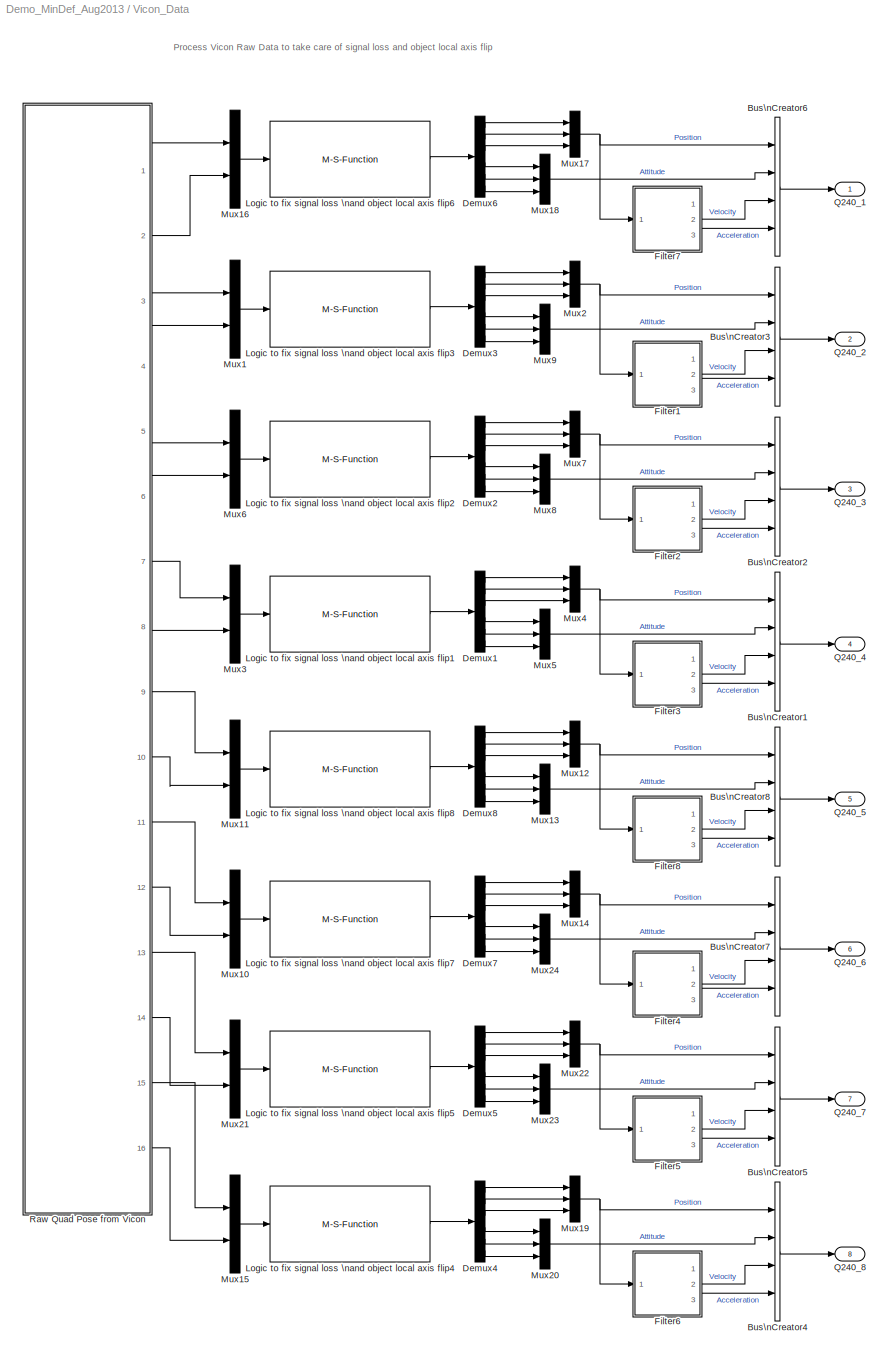
BLOCK [SubSystem] Vicon_Data
  FunctionWithSeparateData = off
  MaskHideContents = off
  MinAlgLoopOccurrences = off
  Opaque = off
  Ports = [0, 8]
  PropExecContextOutsideSubsystem = off
  RTWSystemCode = Auto
  RequestExecContextInheritance = off
  SID = 622
BLOCK [BusCreator] Vicon_Data/Bus\nCreator1
  DisplayOption = bar
  Ports = [4, 1]
  SID = 1756
BLOCK [BusCreator] Vicon_Data/Bus\nCreator2
  DisplayOption = bar
  Ports = [4, 1]
  SID = 948
BLOCK [BusCreator] Vicon_Data/Bus\nCreator3
  DisplayOption = bar
  Ports = [4, 1]
  SID = 975
BLOCK [BusCreator] Vicon_Data/Bus\nCreator4
  DisplayOption = bar
  Ports = [4, 1]
  SID = 2082
BLOCK [BusCreator] Vicon_Data/Bus\nCreator5
  DisplayOption = bar
  Ports = [4, 1]
  SID = 2083
BLOCK [BusCreator] Vicon_Data/Bus\nCreator6
  DisplayOption = bar
  Ports = [4, 1]
  SID = 1056
BLOCK [BusCreator] Vicon_Data/Bus\nCreator7
  DisplayOption = bar
  Ports = [4, 1]
  SID = 2084
BLOCK [BusCreator] Vicon_Data/Bus\nCreator8
  DisplayOption = bar
  Ports = [4, 1]
  SID = 2085
BLOCK [Demux] Vicon_Data/Demux1
  DisplayOption = bar
  Outputs = 6
  Ports = [1, 6]
  SID = 1757
BLOCK [Demux] Vicon_Data/Demux2
  DisplayOption = bar
  Outputs = 6
  Ports = [1, 6]
  SID = 949
BLOCK [Demux] Vicon_Data/Demux3
  DisplayOption = bar
  Outputs = 6
  Ports = [1, 6]
  SID = 976
BLOCK [Demux] Vicon_Data/Demux4
  DisplayOption = bar
  Outputs = 6
  Ports = [1, 6]
  SID = 2086
BLOCK [Demux] Vicon_Data/Demux5
  DisplayOption = bar
  Outputs = 6
  Ports = [1, 6]
  SID = 2087
BLOCK [Demux] Vicon_Data/Demux6
  DisplayOption = bar
  Outputs = 6
  Ports = [1, 6]
  SID = 1057
BLOCK [Demux] Vicon_Data/Demux7
  DisplayOption = bar
  Outputs = 6
  Ports = [1, 6]
  SID = 2088
BLOCK [Demux] Vicon_Data/Demux8
  DisplayOption = bar
  Outputs = 6
  Ports = [1, 6]
  SID = 2089
BLOCK [SubSystem] Vicon_Data/Filter1
  FunctionWithSeparateData = off
  MaskHideContents = off
  MinAlgLoopOccurrences = off
  Opaque = off
  Ports = [1, 3]
  PropExecContextOutsideSubsystem = off
  RTWSystemCode = Auto
  RequestExecContextInheritance = off
  SID = 1666
BLOCK [Outport] Vicon_Data/Filter1/Acc
  IconDisplay = Port number
  Port = 3
  SID = 1687
BLOCK [Gain] Vicon_Data/Filter1/Gain
  Gain = 15
  OutDataTypeStr = Inherit: Inherit via internal rule
  ParamDataTypeStr = Inherit: Inherit via internal rule
  SID = 1668
  SaturateOnIntegerOverflow = off
BLOCK [Inport] Vicon_Data/Filter1/In1
  IconDisplay = Port number
  SID = 1667
BLOCK [Integrator] Vicon_Data/Filter1/Integrator
  Ports = [1, 1]
  SID = 1670
BLOCK [Reference] Vicon_Data/Filter1/Kalman Filter  REF=dspadpt3/Kalman Filter
  A = [1 sample_time_Vicon sample_time_Vicon*sample_time_Vicon/2 zeros(1,6);0 1 sample_time_Vicon zeros(1,6);0 0 1 zeros(1,6);0 0 0 1 sample_time_Vicon sample_time_Vicon*sample_time_Vicon/2 0 0 0;zeros(1,4) 1 sample_time_Vicon zeros(1,3);zeros(1,5) 1 zeros(1,3);zeros(1,6) 1 sample_time_Vicon sample_time_Vicon*sample_time_Vicon/2;zeros(1,7) 1 sample_time_Vicon;zeros(1,8) 1]  <repeated x8 — deduplicated; at blocks: Kalman Filter>
  FunctionWithSeparateData = off
  GeneratePreprocessorConditionals = off
  H = [1 zeros(1,8); zeros(1,3) 1 zeros(1,5);zeros(1,6) 1 0 0]
  P = zeros(9)
  Ports = [1, 2]
  Q = diag([0 0.001 0.001 0 0.001 0.001 0 0.001 0.001])
  R = 0.001*eye(3)
  RTWMemSecDataConstants = Inherit from model
  RTWMemSecDataInternal = Inherit from model
  RTWMemSecDataParameters = Inherit from model
  RTWMemSecFuncExecute = Inherit from model
  RTWMemSecFuncInitTerm = Inherit from model
  SID = 1672
  ShowPortLabels = FromPortIcon
  SourceBlock = dspadpt3/Kalman Filter
  SourceType = Kalman Filter
  SystemSampleTime = -1
  X = zeros([9, 1])
  isOutputEstError = off
  isOutputEstMeasure = on
  isOutputEstState = on
  isOutputPrdError = off
  isOutputPrdMeasure = off
  isOutputPrdState = off
  isReset = on
  num_targets = 1
  sourceEnable = Always
  sourceMeasure = Specify via Dialog
BLOCK [Outport] Vicon_Data/Filter1/Pos
  IconDisplay = Port number
  SID = 1685
BLOCK [Selector] Vicon_Data/Filter1/Selector5
  IndexOptions = Index vector (dialog)
  Indices = [2 5 8]
  InputPortWidth = 9
  OutputSizes = 1
  Ports = [1, 1]
  SID = 1679
BLOCK [Selector] Vicon_Data/Filter1/Selector6
  IndexOptions = Index vector (dialog)
  Indices = [3 6 9]
  InputPortWidth = 9
  OutputSizes = 1
  Ports = [1, 1]
  SID = 1680
BLOCK [Sum] Vicon_Data/Filter1/Sum
  IconShape = round
  InputSameDT = off
  Inputs = |+-
  OutDataTypeStr = Inherit: Inherit via internal rule
  Ports = [2, 1]
  SID = 1681
  SaturateOnIntegerOverflow = off
BLOCK [Outport] Vicon_Data/Filter1/Vel
  IconDisplay = Port number
  Port = 2
  SID = 1686
BLOCK [SubSystem] Vicon_Data/Filter2
  FunctionWithSeparateData = off
  MaskHideContents = off
  MinAlgLoopOccurrences = off
  Opaque = off
  Ports = [1, 3]
  PropExecContextOutsideSubsystem = off
  RTWSystemCode = Auto
  RequestExecContextInheritance = off
  SID = 1688
BLOCK [Outport] Vicon_Data/Filter2/Acc
  IconDisplay = Port number
  Port = 3
  SID = 1709
BLOCK [Gain] Vicon_Data/Filter2/Gain
  Gain = 15
  OutDataTypeStr = Inherit: Inherit via internal rule
  ParamDataTypeStr = Inherit: Inherit via internal rule
  SID = 1690
  SaturateOnIntegerOverflow = off
BLOCK [Inport] Vicon_Data/Filter2/In1
  IconDisplay = Port number
  SID = 1689
BLOCK [Integrator] Vicon_Data/Filter2/Integrator
  Ports = [1, 1]
  SID = 1692
BLOCK [Reference] Vicon_Data/Filter2/Kalman Filter  REF=dspadpt3/Kalman Filter
  FunctionWithSeparateData = off
  GeneratePreprocessorConditionals = off
  H = [1 zeros(1,8); zeros(1,3) 1 zeros(1,5);zeros(1,6) 1 0 0]
  P = zeros(9)
  Ports = [1, 2]
  Q = diag([0 0.001 0.001 0 0.001 0.001 0 0.001 0.001])
  R = 0.001*eye(3)
  RTWMemSecDataConstants = Inherit from model
  RTWMemSecDataInternal = Inherit from model
  RTWMemSecDataParameters = Inherit from model
  RTWMemSecFuncExecute = Inherit from model
  RTWMemSecFuncInitTerm = Inherit from model
  SID = 1694
  ShowPortLabels = FromPortIcon
  SourceBlock = dspadpt3/Kalman Filter
  SourceType = Kalman Filter
  SystemSampleTime = -1
  X = zeros([9, 1])
  isOutputEstError = off
  isOutputEstMeasure = on
  isOutputEstState = on
  isOutputPrdError = off
  isOutputPrdMeasure = off
  isOutputPrdState = off
  isReset = on
  num_targets = 1
  sourceEnable = Always
  sourceMeasure = Specify via Dialog
BLOCK [Outport] Vicon_Data/Filter2/Pos
  IconDisplay = Port number
  SID = 1707
BLOCK [Selector] Vicon_Data/Filter2/Selector5
  IndexOptions = Index vector (dialog)
  Indices = [2 5 8]
  InputPortWidth = 9
  OutputSizes = 1
  Ports = [1, 1]
  SID = 1701
BLOCK [Selector] Vicon_Data/Filter2/Selector6
  IndexOptions = Index vector (dialog)
  Indices = [3 6 9]
  InputPortWidth = 9
  OutputSizes = 1
  Ports = [1, 1]
  SID = 1702
BLOCK [Sum] Vicon_Data/Filter2/Sum
  IconShape = round
  InputSameDT = off
  Inputs = |+-
  OutDataTypeStr = Inherit: Inherit via internal rule
  Ports = [2, 1]
  SID = 1703
  SaturateOnIntegerOverflow = off
BLOCK [Outport] Vicon_Data/Filter2/Vel
  IconDisplay = Port number
  Port = 2
  SID = 1708
BLOCK [SubSystem] Vicon_Data/Filter3
  FunctionWithSeparateData = off
  MaskHideContents = off
  MinAlgLoopOccurrences = off
  Opaque = off
  Ports = [1, 3]
  PropExecContextOutsideSubsystem = off
  RTWSystemCode = Auto
  RequestExecContextInheritance = off
  SID = 1758
BLOCK [Outport] Vicon_Data/Filter3/Acc
  IconDisplay = Port number
  Port = 3
  SID = 1779
BLOCK [Gain] Vicon_Data/Filter3/Gain
  Gain = 15
  OutDataTypeStr = Inherit: Inherit via internal rule
  ParamDataTypeStr = Inherit: Inherit via internal rule
  SID = 1760
  SaturateOnIntegerOverflow = off
BLOCK [Inport] Vicon_Data/Filter3/In1
  IconDisplay = Port number
  SID = 1759
BLOCK [Integrator] Vicon_Data/Filter3/Integrator
  Ports = [1, 1]
  SID = 1762
BLOCK [Reference] Vicon_Data/Filter3/Kalman Filter  REF=dspadpt3/Kalman Filter
  FunctionWithSeparateData = off
  GeneratePreprocessorConditionals = off
  H = [1 zeros(1,8); zeros(1,3) 1 zeros(1,5);zeros(1,6) 1 0 0]
  P = zeros(9)
  Ports = [1, 2]
  Q = diag([0 0.001 0.001 0 0.001 0.001 0 0.001 0.001])
  R = 0.001*eye(3)
  RTWMemSecDataConstants = Inherit from model
  RTWMemSecDataInternal = Inherit from model
  RTWMemSecDataParameters = Inherit from model
  RTWMemSecFuncExecute = Inherit from model
  RTWMemSecFuncInitTerm = Inherit from model
  SID = 1764
  ShowPortLabels = FromPortIcon
  SourceBlock = dspadpt3/Kalman Filter
  SourceType = Kalman Filter
  SystemSampleTime = -1
  X = zeros([9, 1])
  isOutputEstError = off
  isOutputEstMeasure = on
  isOutputEstState = on
  isOutputPrdError = off
  isOutputPrdMeasure = off
  isOutputPrdState = off
  isReset = on
  num_targets = 1
  sourceEnable = Always
  sourceMeasure = Specify via Dialog
BLOCK [Outport] Vicon_Data/Filter3/Pos
  IconDisplay = Port number
  SID = 1777
BLOCK [Selector] Vicon_Data/Filter3/Selector5
  IndexOptions = Index vector (dialog)
  Indices = [2 5 8]
  InputPortWidth = 9
  OutputSizes = 1
  Ports = [1, 1]
  SID = 1771
BLOCK [Selector] Vicon_Data/Filter3/Selector6
  IndexOptions = Index vector (dialog)
  Indices = [3 6 9]
  InputPortWidth = 9
  OutputSizes = 1
  Ports = [1, 1]
  SID = 1772
BLOCK [Sum] Vicon_Data/Filter3/Sum
  IconShape = round
  InputSameDT = off
  Inputs = |+-
  OutDataTypeStr = Inherit: Inherit via internal rule
  Ports = [2, 1]
  SID = 1773
  SaturateOnIntegerOverflow = off
BLOCK [Outport] Vicon_Data/Filter3/Vel
  IconDisplay = Port number
  Port = 2
  SID = 1778
BLOCK [SubSystem] Vicon_Data/Filter4
  FunctionWithSeparateData = off
  MaskHideContents = off
  MinAlgLoopOccurrences = off
  Opaque = off
  Ports = [1, 3]
  PropExecContextOutsideSubsystem = off
  RTWSystemCode = Auto
  RequestExecContextInheritance = off
  SID = 2090
BLOCK [Outport] Vicon_Data/Filter4/Acc
  IconDisplay = Port number
  Port = 3
  SID = 2111
BLOCK [Gain] Vicon_Data/Filter4/Gain
  Gain = 15
  OutDataTypeStr = Inherit: Inherit via internal rule
  ParamDataTypeStr = Inherit: Inherit via internal rule
  SID = 2092
  SaturateOnIntegerOverflow = off
BLOCK [Inport] Vicon_Data/Filter4/In1
  IconDisplay = Port number
  SID = 2091
BLOCK [Integrator] Vicon_Data/Filter4/Integrator
  Ports = [1, 1]
  SID = 2094
BLOCK [Reference] Vicon_Data/Filter4/Kalman Filter  REF=dspadpt3/Kalman Filter
  FunctionWithSeparateData = off
  GeneratePreprocessorConditionals = off
  H = [1 zeros(1,8); zeros(1,3) 1 zeros(1,5);zeros(1,6) 1 0 0]
  P = zeros(9)
  Ports = [1, 2]
  Q = diag([0 0.001 0.001 0 0.001 0.001 0 0.001 0.001])
  R = 0.001*eye(3)
  RTWMemSecDataConstants = Inherit from model
  RTWMemSecDataInternal = Inherit from model
  RTWMemSecDataParameters = Inherit from model
  RTWMemSecFuncExecute = Inherit from model
  RTWMemSecFuncInitTerm = Inherit from model
  SID = 2096
  ShowPortLabels = FromPortIcon
  SourceBlock = dspadpt3/Kalman Filter
  SourceType = Kalman Filter
  SystemSampleTime = -1
  X = zeros([9, 1])
  isOutputEstError = off
  isOutputEstMeasure = on
  isOutputEstState = on
  isOutputPrdError = off
  isOutputPrdMeasure = off
  isOutputPrdState = off
  isReset = on
  num_targets = 1
  sourceEnable = Always
  sourceMeasure = Specify via Dialog
BLOCK [Outport] Vicon_Data/Filter4/Pos
  IconDisplay = Port number
  SID = 2109
BLOCK [Selector] Vicon_Data/Filter4/Selector5
  IndexOptions = Index vector (dialog)
  Indices = [2 5 8]
  InputPortWidth = 9
  OutputSizes = 1
  Ports = [1, 1]
  SID = 2103
BLOCK [Selector] Vicon_Data/Filter4/Selector6
  IndexOptions = Index vector (dialog)
  Indices = [3 6 9]
  InputPortWidth = 9
  OutputSizes = 1
  Ports = [1, 1]
  SID = 2104
BLOCK [Sum] Vicon_Data/Filter4/Sum
  IconShape = round
  InputSameDT = off
  Inputs = |+-
  OutDataTypeStr = Inherit: Inherit via internal rule
  Ports = [2, 1]
  SID = 2105
  SaturateOnIntegerOverflow = off
BLOCK [Outport] Vicon_Data/Filter4/Vel
  IconDisplay = Port number
  Port = 2
  SID = 2110
BLOCK [SubSystem] Vicon_Data/Filter5
  FunctionWithSeparateData = off
  MaskHideContents = off
  MinAlgLoopOccurrences = off
  Opaque = off
  Ports = [1, 3]
  PropExecContextOutsideSubsystem = off
  RTWSystemCode = Auto
  RequestExecContextInheritance = off
  SID = 2112
BLOCK [Outport] Vicon_Data/Filter5/Acc
  IconDisplay = Port number
  Port = 3
  SID = 2133
BLOCK [Gain] Vicon_Data/Filter5/Gain
  Gain = 15
  OutDataTypeStr = Inherit: Inherit via internal rule
  ParamDataTypeStr = Inherit: Inherit via internal rule
  SID = 2114
  SaturateOnIntegerOverflow = off
BLOCK [Inport] Vicon_Data/Filter5/In1
  IconDisplay = Port number
  SID = 2113
BLOCK [Integrator] Vicon_Data/Filter5/Integrator
  Ports = [1, 1]
  SID = 2116
BLOCK [Reference] Vicon_Data/Filter5/Kalman Filter  REF=dspadpt3/Kalman Filter
  FunctionWithSeparateData = off
  GeneratePreprocessorConditionals = off
  H = [1 zeros(1,8); zeros(1,3) 1 zeros(1,5);zeros(1,6) 1 0 0]
  P = zeros(9)
  Ports = [1, 2]
  Q = diag([0 0.001 0.001 0 0.001 0.001 0 0.001 0.001])
  R = 0.001*eye(3)
  RTWMemSecDataConstants = Inherit from model
  RTWMemSecDataInternal = Inherit from model
  RTWMemSecDataParameters = Inherit from model
  RTWMemSecFuncExecute = Inherit from model
  RTWMemSecFuncInitTerm = Inherit from model
  SID = 2118
  ShowPortLabels = FromPortIcon
  SourceBlock = dspadpt3/Kalman Filter
  SourceType = Kalman Filter
  SystemSampleTime = -1
  X = zeros([9, 1])
  isOutputEstError = off
  isOutputEstMeasure = on
  isOutputEstState = on
  isOutputPrdError = off
  isOutputPrdMeasure = off
  isOutputPrdState = off
  isReset = on
  num_targets = 1
  sourceEnable = Always
  sourceMeasure = Specify via Dialog
BLOCK [Outport] Vicon_Data/Filter5/Pos
  IconDisplay = Port number
  SID = 2131
BLOCK [Selector] Vicon_Data/Filter5/Selector5
  IndexOptions = Index vector (dialog)
  Indices = [2 5 8]
  InputPortWidth = 9
  OutputSizes = 1
  Ports = [1, 1]
  SID = 2125
BLOCK [Selector] Vicon_Data/Filter5/Selector6
  IndexOptions = Index vector (dialog)
  Indices = [3 6 9]
  InputPortWidth = 9
  OutputSizes = 1
  Ports = [1, 1]
  SID = 2126
BLOCK [Sum] Vicon_Data/Filter5/Sum
  IconShape = round
  InputSameDT = off
  Inputs = |+-
  OutDataTypeStr = Inherit: Inherit via internal rule
  Ports = [2, 1]
  SID = 2127
  SaturateOnIntegerOverflow = off
BLOCK [Outport] Vicon_Data/Filter5/Vel
  IconDisplay = Port number
  Port = 2
  SID = 2132
BLOCK [SubSystem] Vicon_Data/Filter6
  FunctionWithSeparateData = off
  MaskHideContents = off
  MinAlgLoopOccurrences = off
  Opaque = off
  Ports = [1, 3]
  PropExecContextOutsideSubsystem = off
  RTWSystemCode = Auto
  RequestExecContextInheritance = off
  SID = 2134
BLOCK [Outport] Vicon_Data/Filter6/Acc
  IconDisplay = Port number
  Port = 3
  SID = 2155
BLOCK [Gain] Vicon_Data/Filter6/Gain
  Gain = 15
  OutDataTypeStr = Inherit: Inherit via internal rule
  ParamDataTypeStr = Inherit: Inherit via internal rule
  SID = 2136
  SaturateOnIntegerOverflow = off
BLOCK [Inport] Vicon_Data/Filter6/In1
  IconDisplay = Port number
  SID = 2135
BLOCK [Integrator] Vicon_Data/Filter6/Integrator
  Ports = [1, 1]
  SID = 2138
BLOCK [Reference] Vicon_Data/Filter6/Kalman Filter  REF=dspadpt3/Kalman Filter
  FunctionWithSeparateData = off
  GeneratePreprocessorConditionals = off
  H = [1 zeros(1,8); zeros(1,3) 1 zeros(1,5);zeros(1,6) 1 0 0]
  P = zeros(9)
  Ports = [1, 2]
  Q = diag([0 0.001 0.001 0 0.001 0.001 0 0.001 0.001])
  R = 0.001*eye(3)
  RTWMemSecDataConstants = Inherit from model
  RTWMemSecDataInternal = Inherit from model
  RTWMemSecDataParameters = Inherit from model
  RTWMemSecFuncExecute = Inherit from model
  RTWMemSecFuncInitTerm = Inherit from model
  SID = 2140
  ShowPortLabels = FromPortIcon
  SourceBlock = dspadpt3/Kalman Filter
  SourceType = Kalman Filter
  SystemSampleTime = -1
  X = zeros([9, 1])
  isOutputEstError = off
  isOutputEstMeasure = on
  isOutputEstState = on
  isOutputPrdError = off
  isOutputPrdMeasure = off
  isOutputPrdState = off
  isReset = on
  num_targets = 1
  sourceEnable = Always
  sourceMeasure = Specify via Dialog
BLOCK [Outport] Vicon_Data/Filter6/Pos
  IconDisplay = Port number
  SID = 2153
BLOCK [Selector] Vicon_Data/Filter6/Selector5
  IndexOptions = Index vector (dialog)
  Indices = [2 5 8]
  InputPortWidth = 9
  OutputSizes = 1
  Ports = [1, 1]
  SID = 2147
BLOCK [Selector] Vicon_Data/Filter6/Selector6
  IndexOptions = Index vector (dialog)
  Indices = [3 6 9]
  InputPortWidth = 9
  OutputSizes = 1
  Ports = [1, 1]
  SID = 2148
BLOCK [Sum] Vicon_Data/Filter6/Sum
  IconShape = round
  InputSameDT = off
  Inputs = |+-
  OutDataTypeStr = Inherit: Inherit via internal rule
  Ports = [2, 1]
  SID = 2149
  SaturateOnIntegerOverflow = off
BLOCK [Outport] Vicon_Data/Filter6/Vel
  IconDisplay = Port number
  Port = 2
  SID = 2154
BLOCK [SubSystem] Vicon_Data/Filter7
  FunctionWithSeparateData = off
  MaskHideContents = off
  MinAlgLoopOccurrences = off
  Opaque = off
  Ports = [1, 3]
  PropExecContextOutsideSubsystem = off
  RTWSystemCode = Auto
  RequestExecContextInheritance = off
  SID = 1644
BLOCK [Outport] Vicon_Data/Filter7/Acc
  IconDisplay = Port number
  Port = 3
  SID = 1665
BLOCK [Gain] Vicon_Data/Filter7/Gain
  Gain = 15
  OutDataTypeStr = Inherit: Inherit via internal rule
  ParamDataTypeStr = Inherit: Inherit via internal rule
  SID = 1646
  SaturateOnIntegerOverflow = off
BLOCK [Inport] Vicon_Data/Filter7/In1
  IconDisplay = Port number
  SID = 1645
BLOCK [Integrator] Vicon_Data/Filter7/Integrator
  Ports = [1, 1]
  SID = 1648
BLOCK [Reference] Vicon_Data/Filter7/Kalman Filter  REF=dspadpt3/Kalman Filter
  FunctionWithSeparateData = off
  GeneratePreprocessorConditionals = off
  H = [1 zeros(1,8); zeros(1,3) 1 zeros(1,5);zeros(1,6) 1 0 0]
  P = zeros(9)
  Ports = [1, 2]
  Q = diag([0 0.001 0.001 0 0.001 0.001 0 0.001 0.001])
  R = 0.001*eye(3)
  RTWMemSecDataConstants = Inherit from model
  RTWMemSecDataInternal = Inherit from model
  RTWMemSecDataParameters = Inherit from model
  RTWMemSecFuncExecute = Inherit from model
  RTWMemSecFuncInitTerm = Inherit from model
  SID = 1650
  ShowPortLabels = FromPortIcon
  SourceBlock = dspadpt3/Kalman Filter
  SourceType = Kalman Filter
  SystemSampleTime = -1
  X = zeros([9, 1])
  isOutputEstError = off
  isOutputEstMeasure = on
  isOutputEstState = on
  isOutputPrdError = off
  isOutputPrdMeasure = off
  isOutputPrdState = off
  isReset = on
  num_targets = 1
  sourceEnable = Always
  sourceMeasure = Specify via Dialog
BLOCK [Outport] Vicon_Data/Filter7/Pos
  IconDisplay = Port number
  SID = 1663
BLOCK [Selector] Vicon_Data/Filter7/Selector5
  IndexOptions = Index vector (dialog)
  Indices = [2 5 8]
  InputPortWidth = 9
  OutputSizes = 1
  Ports = [1, 1]
  SID = 1657
BLOCK [Selector] Vicon_Data/Filter7/Selector6
  IndexOptions = Index vector (dialog)
  Indices = [3 6 9]
  InputPortWidth = 9
  OutputSizes = 1
  Ports = [1, 1]
  SID = 1658
BLOCK [Sum] Vicon_Data/Filter7/Sum
  IconShape = round
  InputSameDT = off
  Inputs = |+-
  OutDataTypeStr = Inherit: Inherit via internal rule
  Ports = [2, 1]
  SID = 1659
  SaturateOnIntegerOverflow = off
BLOCK [Outport] Vicon_Data/Filter7/Vel
  IconDisplay = Port number
  Port = 2
  SID = 1664
BLOCK [SubSystem] Vicon_Data/Filter8
  FunctionWithSeparateData = off
  MaskHideContents = off
  MinAlgLoopOccurrences = off
  Opaque = off
  Ports = [1, 3]
  PropExecContextOutsideSubsystem = off
  RTWSystemCode = Auto
  RequestExecContextInheritance = off
  SID = 2156
BLOCK [Outport] Vicon_Data/Filter8/Acc
  IconDisplay = Port number
  Port = 3
  SID = 2177
BLOCK [Gain] Vicon_Data/Filter8/Gain
  Gain = 15
  OutDataTypeStr = Inherit: Inherit via internal rule
  ParamDataTypeStr = Inherit: Inherit via internal rule
  SID = 2158
  SaturateOnIntegerOverflow = off
BLOCK [Inport] Vicon_Data/Filter8/In1
  IconDisplay = Port number
  SID = 2157
BLOCK [Integrator] Vicon_Data/Filter8/Integrator
  Ports = [1, 1]
  SID = 2160
BLOCK [Reference] Vicon_Data/Filter8/Kalman Filter  REF=dspadpt3/Kalman Filter
  FunctionWithSeparateData = off
  GeneratePreprocessorConditionals = off
  H = [1 zeros(1,8); zeros(1,3) 1 zeros(1,5);zeros(1,6) 1 0 0]
  P = zeros(9)
  Ports = [1, 2]
  Q = diag([0 0.001 0.001 0 0.001 0.001 0 0.001 0.001])
  R = 0.001*eye(3)
  RTWMemSecDataConstants = Inherit from model
  RTWMemSecDataInternal = Inherit from model
  RTWMemSecDataParameters = Inherit from model
  RTWMemSecFuncExecute = Inherit from model
  RTWMemSecFuncInitTerm = Inherit from model
  SID = 2162
  ShowPortLabels = FromPortIcon
  SourceBlock = dspadpt3/Kalman Filter
  SourceType = Kalman Filter
  SystemSampleTime = -1
  X = zeros([9, 1])
  isOutputEstError = off
  isOutputEstMeasure = on
  isOutputEstState = on
  isOutputPrdError = off
  isOutputPrdMeasure = off
  isOutputPrdState = off
  isReset = on
  num_targets = 1
  sourceEnable = Always
  sourceMeasure = Specify via Dialog
BLOCK [Outport] Vicon_Data/Filter8/Pos
  IconDisplay = Port number
  SID = 2175
BLOCK [Selector] Vicon_Data/Filter8/Selector5
  IndexOptions = Index vector (dialog)
  Indices = [2 5 8]
  InputPortWidth = 9
  OutputSizes = 1
  Ports = [1, 1]
  SID = 2169
BLOCK [Selector] Vicon_Data/Filter8/Selector6
  IndexOptions = Index vector (dialog)
  Indices = [3 6 9]
  InputPortWidth = 9
  OutputSizes = 1
  Ports = [1, 1]
  SID = 2170
BLOCK [Sum] Vicon_Data/Filter8/Sum
  IconShape = round
  InputSameDT = off
  Inputs = |+-
  OutDataTypeStr = Inherit: Inherit via internal rule
  Ports = [2, 1]
  SID = 2171
  SaturateOnIntegerOverflow = off
BLOCK [Outport] Vicon_Data/Filter8/Vel
  IconDisplay = Port number
  Port = 2
  SID = 2176
BLOCK [M-S-Function] Vicon_Data/Logic to fix signal loss \nand object local axis flip1
  FunctionName = Vicon_Filter
  Ports = [1, 1]
  SID = 1780
BLOCK [M-S-Function] Vicon_Data/Logic to fix signal loss \nand object local axis flip2
  FunctionName = Vicon_Filter
  Ports = [1, 1]
  SID = 970
BLOCK [M-S-Function] Vicon_Data/Logic to fix signal loss \nand object local axis flip3
  FunctionName = Vicon_Filter
  Ports = [1, 1]
  SID = 997
BLOCK [M-S-Function] Vicon_Data/Logic to fix signal loss \nand object local axis flip4
  FunctionName = Vicon_Filter
  Ports = [1, 1]
  SID = 2178
BLOCK [M-S-Function] Vicon_Data/Logic to fix signal loss \nand object local axis flip5
  FunctionName = Vicon_Filter
  Ports = [1, 1]
  SID = 2179
BLOCK [M-S-Function] Vicon_Data/Logic to fix signal loss \nand object local axis flip6
  FunctionName = Vicon_Filter
  Ports = [1, 1]
  SID = 1078
BLOCK [M-S-Function] Vicon_Data/Logic to fix signal loss \nand object local axis flip7
  FunctionName = Vicon_Filter
  Ports = [1, 1]
  SID = 2180
BLOCK [M-S-Function] Vicon_Data/Logic to fix signal loss \nand object local axis flip8
  FunctionName = Vicon_Filter
  Ports = [1, 1]
  SID = 2181
BLOCK [Mux] Vicon_Data/Mux1
  DisplayOption = bar
  Inputs = 2
  Ports = [2, 1]
  SID = 998
BLOCK [Mux] Vicon_Data/Mux10
  DisplayOption = bar
  Inputs = 2
  Ports = [2, 1]
  SID = 2182
BLOCK [Mux] Vicon_Data/Mux11
  DisplayOption = bar
  Inputs = 2
  Ports = [2, 1]
  SID = 2183
BLOCK [Mux] Vicon_Data/Mux12
  DisplayOption = bar
  Inputs = 3
  Ports = [3, 1]
  SID = 2184
BLOCK [Mux] Vicon_Data/Mux13
  DisplayOption = bar
  Inputs = 3
  Ports = [3, 1]
  SID = 2185
BLOCK [Mux] Vicon_Data/Mux14
  DisplayOption = bar
  Inputs = 3
  Ports = [3, 1]
  SID = 2186
BLOCK [Mux] Vicon_Data/Mux15
  DisplayOption = bar
  Inputs = 2
  Ports = [2, 1]
  SID = 2187
BLOCK [Mux] Vicon_Data/Mux16
  DisplayOption = bar
  Inputs = 2
  Ports = [2, 1]
  SID = 1079
BLOCK [Mux] Vicon_Data/Mux17
  DisplayOption = bar
  Inputs = 3
  Ports = [3, 1]
  SID = 1080
BLOCK [Mux] Vicon_Data/Mux18
  DisplayOption = bar
  Inputs = 3
  Ports = [3, 1]
  SID = 1081
BLOCK [Mux] Vicon_Data/Mux19
  DisplayOption = bar
  Inputs = 3
  Ports = [3, 1]
  SID = 2188
BLOCK [Mux] Vicon_Data/Mux2
  DisplayOption = bar
  Inputs = 3
  Ports = [3, 1]
  SID = 999
BLOCK [Mux] Vicon_Data/Mux20
  DisplayOption = bar
  Inputs = 3
  Ports = [3, 1]
  SID = 2189
BLOCK [Mux] Vicon_Data/Mux21
  DisplayOption = bar
  Inputs = 2
  Ports = [2, 1]
  SID = 2190
BLOCK [Mux] Vicon_Data/Mux22
  DisplayOption = bar
  Inputs = 3
  Ports = [3, 1]
  SID = 2191
BLOCK [Mux] Vicon_Data/Mux23
  DisplayOption = bar
  Inputs = 3
  Ports = [3, 1]
  SID = 2192
BLOCK [Mux] Vicon_Data/Mux24
  DisplayOption = bar
  Inputs = 3
  Ports = [3, 1]
  SID = 2193
BLOCK [Mux] Vicon_Data/Mux3
  DisplayOption = bar
  Inputs = 2
  Ports = [2, 1]
  SID = 1781
BLOCK [Mux] Vicon_Data/Mux4
  DisplayOption = bar
  Inputs = 3
  Ports = [3, 1]
  SID = 1782
BLOCK [Mux] Vicon_Data/Mux5
  DisplayOption = bar
  Inputs = 3
  Ports = [3, 1]
  SID = 1783
BLOCK [Mux] Vicon_Data/Mux6
  DisplayOption = bar
  Inputs = 2
  Ports = [2, 1]
  SID = 971
BLOCK [Mux] Vicon_Data/Mux7
  DisplayOption = bar
  Inputs = 3
  Ports = [3, 1]
  SID = 972
BLOCK [Mux] Vicon_Data/Mux8
  DisplayOption = bar
  Inputs = 3
  Ports = [3, 1]
  SID = 973
BLOCK [Mux] Vicon_Data/Mux9
  DisplayOption = bar
  Inputs = 3
  Ports = [3, 1]
  SID = 1000
BLOCK [Outport] Vicon_Data/Q240_1
  IconDisplay = Port number
  SID = 1082
BLOCK [Outport] Vicon_Data/Q240_2
  IconDisplay = Port number
  Port = 2
  SID = 1001
BLOCK [Outport] Vicon_Data/Q240_3
  IconDisplay = Port number
  Port = 3
  SID = 974
BLOCK [Outport] Vicon_Data/Q240_4
  IconDisplay = Port number
  Port = 4
  SID = 1784
BLOCK [Outport] Vicon_Data/Q240_5
  IconDisplay = Port number
  Port = 5
  SID = 2194
BLOCK [Outport] Vicon_Data/Q240_6
  IconDisplay = Port number
  Port = 6
  SID = 2195
BLOCK [Outport] Vicon_Data/Q240_7
  IconDisplay = Port number
  Port = 7
  SID = 2196
BLOCK [Outport] Vicon_Data/Q240_8
  IconDisplay = Port number
  Port = 8
  SID = 2197
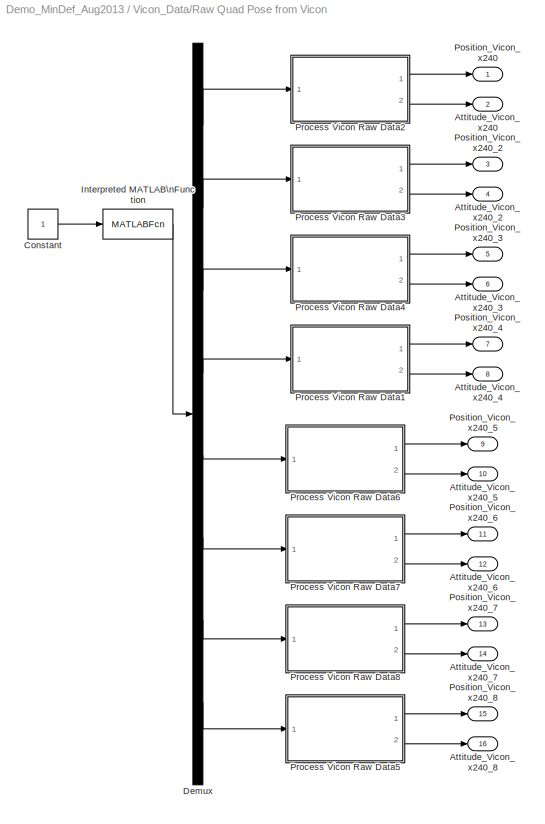
BLOCK [SubSystem] Vicon_Data/Raw Quad Pose from Vicon
  FunctionWithSeparateData = off
  MaskHideContents = off
  MinAlgLoopOccurrences = off
  Opaque = off
  Ports = [0, 16]
  PropExecContextOutsideSubsystem = off
  RTWSystemCode = Auto
  RequestExecContextInheritance = off
  SID = 675
BLOCK [Outport] Vicon_Data/Raw Quad Pose from Vicon/Attitude_Vicon_x240
  IconDisplay = Port number
  Port = 2
  SID = 912
BLOCK [Outport] Vicon_Data/Raw Quad Pose from Vicon/Attitude_Vicon_x240_2
  IconDisplay = Port number
  Port = 4
  SID = 914
BLOCK [Outport] Vicon_Data/Raw Quad Pose from Vicon/Attitude_Vicon_x240_3
  IconDisplay = Port number
  Port = 6
  SID = 916
BLOCK [Outport] Vicon_Data/Raw Quad Pose from Vicon/Attitude_Vicon_x240_4
  IconDisplay = Port number
  Port = 8
  SID = 1755
BLOCK [Outport] Vicon_Data/Raw Quad Pose from Vicon/Attitude_Vicon_x240_5
  IconDisplay = Port number
  Port = 10
  SID = 2075
BLOCK [Outport] Vicon_Data/Raw Quad Pose from Vicon/Attitude_Vicon_x240_6
  IconDisplay = Port number
  Port = 12
  SID = 2077
BLOCK [Outport] Vicon_Data/Raw Quad Pose from Vicon/Attitude_Vicon_x240_7
  IconDisplay = Port number
  Port = 14
  SID = 2079
BLOCK [Outport] Vicon_Data/Raw Quad Pose from Vicon/Attitude_Vicon_x240_8
  IconDisplay = Port number
  Port = 16
  SID = 2081
BLOCK [Constant] Vicon_Data/Raw Quad Pose from Vicon/Constant
  SID = 676
BLOCK [Demux] Vicon_Data/Raw Quad Pose from Vicon/Demux
  DisplayOption = bar
  Outputs = 8
  Ports = [1, 8]
  SID = 677
BLOCK [MATLABFcn] Vicon_Data/Raw Quad Pose from Vicon/Interpreted MATLAB\nFunction
  MATLABFcn = GetViconPose_Formation_8Quad
  Ports = [1, 1]
  SID = 678
BLOCK [Outport] Vicon_Data/Raw Quad Pose from Vicon/Position_Vicon_x240
  IconDisplay = Port number
  SID = 911
BLOCK [Outport] Vicon_Data/Raw Quad Pose from Vicon/Position_Vicon_x240_2
  IconDisplay = Port number
  Port = 3
  SID = 913
BLOCK [Outport] Vicon_Data/Raw Quad Pose from Vicon/Position_Vicon_x240_3
  IconDisplay = Port number
  Port = 5
  SID = 915
BLOCK [Outport] Vicon_Data/Raw Quad Pose from Vicon/Position_Vicon_x240_4
  IconDisplay = Port number
  Port = 7
  SID = 1754
BLOCK [Outport] Vicon_Data/Raw Quad Pose from Vicon/Position_Vicon_x240_5
  IconDisplay = Port number
  Port = 9
  SID = 2074
BLOCK [Outport] Vicon_Data/Raw Quad Pose from Vicon/Position_Vicon_x240_6
  IconDisplay = Port number
  Port = 11
  SID = 2076
BLOCK [Outport] Vicon_Data/Raw Quad Pose from Vicon/Position_Vicon_x240_7
  IconDisplay = Port number
  Port = 13
  SID = 2078
BLOCK [Outport] Vicon_Data/Raw Quad Pose from Vicon/Position_Vicon_x240_8
  IconDisplay = Port number
  Port = 15
  SID = 2080
BLOCK [SubSystem] Vicon_Data/Raw Quad Pose from Vicon/Process Vicon Raw Data1
  FunctionWithSeparateData = off
  MaskHideContents = off
  MinAlgLoopOccurrences = off
  Opaque = off
  Ports = [1, 2]
  PropExecContextOutsideSubsystem = off
  RTWSystemCode = Auto
  RequestExecContextInheritance = off
  SID = 1716
BLOCK [Sum] Vicon_Data/Raw Quad Pose from Vicon/Process Vicon Raw Data1/Add1
  InputSameDT = off
  Inputs = -+
  OutDataTypeStr = Inherit: Inherit via internal rule
  Ports = [2, 1]
  SID = 1718
  SaturateOnIntegerOverflow = off
BLOCK [Outport] Vicon_Data/Raw Quad Pose from Vicon/Process Vicon Raw Data1/Attitude
  IconDisplay = Port number
  Port = 2
  SID = 1753
BLOCK [Constant] Vicon_Data/Raw Quad Pose from Vicon/Process Vicon Raw Data1/Constant1
  OutDataTypeStr = double
  SID = 1719
  Value = pi
BLOCK [Demux] Vicon_Data/Raw Quad Pose from Vicon/Process Vicon Raw Data1/Demux
  DisplayOption = bar
  Outputs = 6
  Ports = [1, 6]
  SID = 1720
BLOCK [SubSystem] Vicon_Data/Raw Quad Pose from Vicon/Process Vicon Raw Data1/Flip_pi1
  FunctionWithSeparateData = off
  MaskDescription = Flips the inputs into the range -pi to pi
  MaskDisplay = disp('Flip_pi')
  MaskHelp = Flips the inputs into the range -pi to pi
  MaskHideContents = off
  MaskIconFrame = on
  MaskIconOpaque = on
  MaskIconRotate = none
  MaskIconUnits = autoscale
  MaskPortRotate = default
  MaskType = Flip -pi to pi
  MinAlgLoopOccurrences = off
  Opaque = off
  Ports = [1, 1]
  PropExecContextOutsideSubsystem = off
  RTWSystemCode = Auto
  RequestExecContextInheritance = off
  SID = 1721
BLOCK [Sum] Vicon_Data/Raw Quad Pose from Vicon/Process Vicon Raw Data1/Flip_pi1/Add
  InputSameDT = off
  Inputs = -+
  OutDataTypeStr = Inherit: Inherit via internal rule
  Ports = [2, 1]
  SID = 1723
  SaturateOnIntegerOverflow = off
BLOCK [Inport] Vicon_Data/Raw Quad Pose from Vicon/Process Vicon Raw Data1/Flip_pi1/Angle
  IconDisplay = Port number
  SID = 1722
BLOCK [Outport] Vicon_Data/Raw Quad Pose from Vicon/Process Vicon Raw Data1/Flip_pi1/Angle_Flip
  IconDisplay = Port number
  SID = 1745
BLOCK [Reference] Vicon_Data/Raw Quad Pose from Vicon/Process Vicon Raw Data1/Flip_pi1/Compare\nTo Constant1  REF=simulink/Logic and Bit\nOperations/Compare\nTo Constant
  FunctionWithSeparateData = off
  GeneratePreprocessorConditionals = off
  LogicOutDataTypeMode = uint8
  Ports = [1, 1]
  RTWMemSecDataConstants = Inherit from model
  RTWMemSecDataInternal = Inherit from model
  RTWMemSecDataParameters = Inherit from model
  RTWMemSecFuncExecute = Inherit from model
  RTWMemSecFuncInitTerm = Inherit from model
  SID = 1724
  ShowPortLabels = FromPortIcon
  SourceBlock = simulink/Logic and Bit\nOperations/Compare\nTo Constant
  SourceType = Compare To Constant
  SystemSampleTime = -1
  ZeroCross = off
  const = pi
  relop = >
BLOCK [Constant] Vicon_Data/Raw Quad Pose from Vicon/Process Vicon Raw Data1/Flip_pi1/Constant
  SID = 1725
  Value = 2*pi
BLOCK [DataTypeDuplicate] Vicon_Data/Raw Quad Pose from Vicon/Process Vicon Raw Data1/Flip_pi1/Data Type\nDuplicate
  Ports = [2]
  SID = 1726
BLOCK [SubSystem] Vicon_Data/Raw Quad Pose from Vicon/Process Vicon Raw Data1/Flip_pi1/Flip_0_to_2pi
  FunctionWithSeparateData = off
  MaskDescription = Flips the inputs into the range zero to +2pi
  MaskDisplay = disp('Flip_0_2pi')
  MaskHelp = Flips the inputs into the range zero to +2pi
  MaskHideContents = off
  MaskIconFrame = on
  MaskIconOpaque = on
  MaskIconRotate = none
  MaskIconUnits = autoscale
  MaskPortRotate = default
  MaskType = Flip zero to 2pi
  MinAlgLoopOccurrences = off
  Opaque = off
  Ports = [1, 1]
  PropExecContextOutsideSubsystem = off
  RTWSystemCode = Auto
  RequestExecContextInheritance = off
  SID = 1727
BLOCK [Sum] Vicon_Data/Raw Quad Pose from Vicon/Process Vicon Raw Data1/Flip_pi1/Flip_0_to_2pi/Add
  InputSameDT = off
  OutDataTypeStr = Inherit: Inherit via internal rule
  Ports = [2, 1]
  SID = 1729
  SaturateOnIntegerOverflow = off
BLOCK [Inport] Vicon_Data/Raw Quad Pose from Vicon/Process Vicon Raw Data1/Flip_pi1/Flip_0_to_2pi/Angle
  IconDisplay = Port number
  SID = 1728
BLOCK [Outport] Vicon_Data/Raw Quad Pose from Vicon/Process Vicon Raw Data1/Flip_pi1/Flip_0_to_2pi/Angle_Flip
  IconDisplay = Port number
  SID = 1743
BLOCK [Reference] Vicon_Data/Raw Quad Pose from Vicon/Process Vicon Raw Data1/Flip_pi1/Flip_0_to_2pi/Compare\nTo Constant1  REF=simulink/Logic and Bit\nOperations/Compare\nTo Constant
  FunctionWithSeparateData = off
  GeneratePreprocessorConditionals = off
  LogicOutDataTypeMode = uint8
  Ports = [1, 1]
  RTWMemSecDataConstants = Inherit from model
  RTWMemSecDataInternal = Inherit from model
  RTWMemSecDataParameters = Inherit from model
  RTWMemSecFuncExecute = Inherit from model
  RTWMemSecFuncInitTerm = Inherit from model
  SID = 1730
  ShowPortLabels = FromPortIcon
  SourceBlock = simulink/Logic and Bit\nOperations/Compare\nTo Constant
  SourceType = Compare To Constant
  SystemSampleTime = -1
  ZeroCross = off
  const = 0
  relop = <
BLOCK [Constant] Vicon_Data/Raw Quad Pose from Vicon/Process Vicon Raw Data1/Flip_pi1/Flip_0_to_2pi/Constant
  SID = 1731
  Value = 2*pi
BLOCK [DataTypeDuplicate] Vicon_Data/Raw Quad Pose from Vicon/Process Vicon Raw Data1/Flip_pi1/Flip_0_to_2pi/Data Type\nDuplicate
  Ports = [2]
  SID = 1732
BLOCK [SubSystem] Vicon_Data/Raw Quad Pose from Vicon/Process Vicon Raw Data1/Flip_pi1/Flip_0_to_2pi/Flip_2pi
  FunctionWithSeparateData = off
  MaskDescription = Flips the inputs into the range -2pi to +2pi
  MaskDisplay = disp('Flip_2pi')
  MaskHelp = Flips the inputs into the range -2pi to +2pi
  MaskHideContents = off
  MaskIconFrame = on
  MaskIconOpaque = on
  MaskIconRotate = none
  MaskIconUnits = autoscale
  MaskPortRotate = default
  MaskType = Flip -2pi to 2pi
  MinAlgLoopOccurrences = off
  Opaque = off
  Ports = [1, 1]
  PropExecContextOutsideSubsystem = off
  RTWSystemCode = Auto
  RequestExecContextInheritance = off
  SID = 1733
BLOCK [Inport] Vicon_Data/Raw Quad Pose from Vicon/Process Vicon Raw Data1/Flip_pi1/Flip_0_to_2pi/Flip_2pi/Angle
  IconDisplay = Port number
  SID = 1734
BLOCK [Outport] Vicon_Data/Raw Quad Pose from Vicon/Process Vicon Raw Data1/Flip_pi1/Flip_0_to_2pi/Flip_2pi/Angle_Flip
  IconDisplay = Port number
  SID = 1741
BLOCK [Bias] Vicon_Data/Raw Quad Pose from Vicon/Process Vicon Raw Data1/Flip_pi1/Flip_0_to_2pi/Flip_2pi/Bias
  Bias = -2*pi
  SID = 1735
  SaturateOnIntegerOverflow = off
BLOCK [Constant] Vicon_Data/Raw Quad Pose from Vicon/Process Vicon Raw Data1/Flip_pi1/Flip_0_to_2pi/Flip_2pi/Constant
  SID = 1736
  Value = 2*pi
BLOCK [DataTypeDuplicate] Vicon_Data/Raw Quad Pose from Vicon/Process Vicon Raw Data1/Flip_pi1/Flip_0_to_2pi/Flip_2pi/Data Type\nDuplicate
  Ports = [2]
  SID = 1737
BLOCK [Math] Vicon_Data/Raw Quad Pose from Vicon/Process Vicon Raw Data1/Flip_pi1/Flip_0_to_2pi/Flip_2pi/Modulo
  Operator = mod
  Ports = [2, 1]
  SID = 1738
BLOCK [Signum] Vicon_Data/Raw Quad Pose from Vicon/Process Vicon Raw Data1/Flip_pi1/Flip_0_to_2pi/Flip_2pi/Sign1
  SID = 1739
BLOCK [Switch] Vicon_Data/Raw Quad Pose from Vicon/Process Vicon Raw Data1/Flip_pi1/Flip_0_to_2pi/Flip_2pi/Switch
  InputSameDT = off
  SID = 1740
  SaturateOnIntegerOverflow = off
BLOCK [Switch] Vicon_Data/Raw Quad Pose from Vicon/Process Vicon Raw Data1/Flip_pi1/Flip_0_to_2pi/Switch
  Criteria = u2 ~= 0
  InputSameDT = off
  SID = 1742
  SaturateOnIntegerOverflow = off
BLOCK [Switch] Vicon_Data/Raw Quad Pose from Vicon/Process Vicon Raw Data1/Flip_pi1/Switch
  Criteria = u2 ~= 0
  InputSameDT = off
  SID = 1744
  SaturateOnIntegerOverflow = off
BLOCK [Gain] Vicon_Data/Raw Quad Pose from Vicon/Process Vicon Raw Data1/Gain1
  Gain = 0.001
  OutDataTypeStr = Inherit: Inherit via internal rule
  ParamDataTypeStr = Inherit: Inherit via internal rule
  SID = 1746
  SaturateOnIntegerOverflow = off
BLOCK [Gain] Vicon_Data/Raw Quad Pose from Vicon/Process Vicon Raw Data1/Gain3
  Gain = -1
  OutDataTypeStr = Inherit: Inherit via internal rule
  ParamDataTypeStr = Inherit: Inherit via internal rule
  SID = 1747
  SaturateOnIntegerOverflow = off
BLOCK [Gain] Vicon_Data/Raw Quad Pose from Vicon/Process Vicon Raw Data1/Gain6
  Gain = -0.001
  OutDataTypeStr = Inherit: Inherit via internal rule
  ParamDataTypeStr = Inherit: Inherit via internal rule
  SID = 1748
  SaturateOnIntegerOverflow = off
BLOCK [Gain] Vicon_Data/Raw Quad Pose from Vicon/Process Vicon Raw Data1/Gain7
  Gain = -0.001
  OutDataTypeStr = Inherit: Inherit via internal rule
  ParamDataTypeStr = Inherit: Inherit via internal rule
  SID = 1749
  SaturateOnIntegerOverflow = off
BLOCK [Concatenate] Vicon_Data/Raw Quad Pose from Vicon/Process Vicon Raw Data1/Matrix\nConcatenate1
  Mode = Multidimensional array
  NumInputs = 3
  Ports = [3, 1]
  SID = 1750
BLOCK [Concatenate] Vicon_Data/Raw Quad Pose from Vicon/Process Vicon Raw Data1/Matrix\nConcatenate13
  Mode = Multidimensional array
  NumInputs = 3
  Ports = [3, 1]
  SID = 1751
BLOCK [Outport] Vicon_Data/Raw Quad Pose from Vicon/Process Vicon Raw Data1/Position
  IconDisplay = Port number
  SID = 1752
BLOCK [Inport] Vicon_Data/Raw Quad Pose from Vicon/Process Vicon Raw Data1/Vicon Raw
  IconDisplay = Port number
  SID = 1717
BLOCK [SubSystem] Vicon_Data/Raw Quad Pose from Vicon/Process Vicon Raw Data2
  FunctionWithSeparateData = off
  MaskHideContents = off
  MinAlgLoopOccurrences = off
  Opaque = off
  Ports = [1, 2]
  PropExecContextOutsideSubsystem = off
  RTWSystemCode = Auto
  RequestExecContextInheritance = off
  SID = 755
BLOCK [Sum] Vicon_Data/Raw Quad Pose from Vicon/Process Vicon Raw Data2/Add1
  InputSameDT = off
  Inputs = -+
  OutDataTypeStr = Inherit: Inherit via internal rule
  Ports = [2, 1]
  SID = 757
  SaturateOnIntegerOverflow = off
BLOCK [Outport] Vicon_Data/Raw Quad Pose from Vicon/Process Vicon Raw Data2/Attitude
  IconDisplay = Port number
  Port = 2
  SID = 792
BLOCK [Constant] Vicon_Data/Raw Quad Pose from Vicon/Process Vicon Raw Data2/Constant1
  OutDataTypeStr = double
  SID = 758
  Value = pi
BLOCK [Demux] Vicon_Data/Raw Quad Pose from Vicon/Process Vicon Raw Data2/Demux
  DisplayOption = bar
  Outputs = 6
  Ports = [1, 6]
  SID = 759
BLOCK [SubSystem] Vicon_Data/Raw Quad Pose from Vicon/Process Vicon Raw Data2/Flip_pi1
  FunctionWithSeparateData = off
  MaskDescription = Flips the inputs into the range -pi to pi
  MaskDisplay = disp('Flip_pi')
  MaskHelp = Flips the inputs into the range -pi to pi
  MaskHideContents = off
  MaskIconFrame = on
  MaskIconOpaque = on
  MaskIconRotate = none
  MaskIconUnits = autoscale
  MaskPortRotate = default
  MaskType = Flip -pi to pi
  MinAlgLoopOccurrences = off
  Opaque = off
  Ports = [1, 1]
  PropExecContextOutsideSubsystem = off
  RTWSystemCode = Auto
  RequestExecContextInheritance = off
  SID = 760
BLOCK [Sum] Vicon_Data/Raw Quad Pose from Vicon/Process Vicon Raw Data2/Flip_pi1/Add
  InputSameDT = off
  Inputs = -+
  OutDataTypeStr = Inherit: Inherit via internal rule
  Ports = [2, 1]
  SID = 762
  SaturateOnIntegerOverflow = off
BLOCK [Inport] Vicon_Data/Raw Quad Pose from Vicon/Process Vicon Raw Data2/Flip_pi1/Angle
  IconDisplay = Port number
  SID = 761
BLOCK [Outport] Vicon_Data/Raw Quad Pose from Vicon/Process Vicon Raw Data2/Flip_pi1/Angle_Flip
  IconDisplay = Port number
  SID = 784
BLOCK [Reference] Vicon_Data/Raw Quad Pose from Vicon/Process Vicon Raw Data2/Flip_pi1/Compare\nTo Constant1  REF=simulink/Logic and Bit\nOperations/Compare\nTo Constant
  FunctionWithSeparateData = off
  GeneratePreprocessorConditionals = off
  LogicOutDataTypeMode = uint8
  Ports = [1, 1]
  RTWMemSecDataConstants = Inherit from model
  RTWMemSecDataInternal = Inherit from model
  RTWMemSecDataParameters = Inherit from model
  RTWMemSecFuncExecute = Inherit from model
  RTWMemSecFuncInitTerm = Inherit from model
  SID = 763
  ShowPortLabels = FromPortIcon
  SourceBlock = simulink/Logic and Bit\nOperations/Compare\nTo Constant
  SourceType = Compare To Constant
  SystemSampleTime = -1
  ZeroCross = off
  const = pi
  relop = >
BLOCK [Constant] Vicon_Data/Raw Quad Pose from Vicon/Process Vicon Raw Data2/Flip_pi1/Constant
  SID = 764
  Value = 2*pi
BLOCK [DataTypeDuplicate] Vicon_Data/Raw Quad Pose from Vicon/Process Vicon Raw Data2/Flip_pi1/Data Type\nDuplicate
  Ports = [2]
  SID = 765
BLOCK [SubSystem] Vicon_Data/Raw Quad Pose from Vicon/Process Vicon Raw Data2/Flip_pi1/Flip_0_to_2pi
  FunctionWithSeparateData = off
  MaskDescription = Flips the inputs into the range zero to +2pi
  MaskDisplay = disp('Flip_0_2pi')
  MaskHelp = Flips the inputs into the range zero to +2pi
  MaskHideContents = off
  MaskIconFrame = on
  MaskIconOpaque = on
  MaskIconRotate = none
  MaskIconUnits = autoscale
  MaskPortRotate = default
  MaskType = Flip zero to 2pi
  MinAlgLoopOccurrences = off
  Opaque = off
  Ports = [1, 1]
  PropExecContextOutsideSubsystem = off
  RTWSystemCode = Auto
  RequestExecContextInheritance = off
  SID = 766
BLOCK [Sum] Vicon_Data/Raw Quad Pose from Vicon/Process Vicon Raw Data2/Flip_pi1/Flip_0_to_2pi/Add
  InputSameDT = off
  OutDataTypeStr = Inherit: Inherit via internal rule
  Ports = [2, 1]
  SID = 768
  SaturateOnIntegerOverflow = off
BLOCK [Inport] Vicon_Data/Raw Quad Pose from Vicon/Process Vicon Raw Data2/Flip_pi1/Flip_0_to_2pi/Angle
  IconDisplay = Port number
  SID = 767
BLOCK [Outport] Vicon_Data/Raw Quad Pose from Vicon/Process Vicon Raw Data2/Flip_pi1/Flip_0_to_2pi/Angle_Flip
  IconDisplay = Port number
  SID = 782
BLOCK [Reference] Vicon_Data/Raw Quad Pose from Vicon/Process Vicon Raw Data2/Flip_pi1/Flip_0_to_2pi/Compare\nTo Constant1  REF=simulink/Logic and Bit\nOperations/Compare\nTo Constant
  FunctionWithSeparateData = off
  GeneratePreprocessorConditionals = off
  LogicOutDataTypeMode = uint8
  Ports = [1, 1]
  RTWMemSecDataConstants = Inherit from model
  RTWMemSecDataInternal = Inherit from model
  RTWMemSecDataParameters = Inherit from model
  RTWMemSecFuncExecute = Inherit from model
  RTWMemSecFuncInitTerm = Inherit from model
  SID = 769
  ShowPortLabels = FromPortIcon
  SourceBlock = simulink/Logic and Bit\nOperations/Compare\nTo Constant
  SourceType = Compare To Constant
  SystemSampleTime = -1
  ZeroCross = off
  const = 0
  relop = <
BLOCK [Constant] Vicon_Data/Raw Quad Pose from Vicon/Process Vicon Raw Data2/Flip_pi1/Flip_0_to_2pi/Constant
  SID = 770
  Value = 2*pi
BLOCK [DataTypeDuplicate] Vicon_Data/Raw Quad Pose from Vicon/Process Vicon Raw Data2/Flip_pi1/Flip_0_to_2pi/Data Type\nDuplicate
  Ports = [2]
  SID = 771
BLOCK [SubSystem] Vicon_Data/Raw Quad Pose from Vicon/Process Vicon Raw Data2/Flip_pi1/Flip_0_to_2pi/Flip_2pi
  FunctionWithSeparateData = off
  MaskDescription = Flips the inputs into the range -2pi to +2pi
  MaskDisplay = disp('Flip_2pi')
  MaskHelp = Flips the inputs into the range -2pi to +2pi
  MaskHideContents = off
  MaskIconFrame = on
  MaskIconOpaque = on
  MaskIconRotate = none
  MaskIconUnits = autoscale
  MaskPortRotate = default
  MaskType = Flip -2pi to 2pi
  MinAlgLoopOccurrences = off
  Opaque = off
  Ports = [1, 1]
  PropExecContextOutsideSubsystem = off
  RTWSystemCode = Auto
  RequestExecContextInheritance = off
  SID = 772
BLOCK [Inport] Vicon_Data/Raw Quad Pose from Vicon/Process Vicon Raw Data2/Flip_pi1/Flip_0_to_2pi/Flip_2pi/Angle
  IconDisplay = Port number
  SID = 773
BLOCK [Outport] Vicon_Data/Raw Quad Pose from Vicon/Process Vicon Raw Data2/Flip_pi1/Flip_0_to_2pi/Flip_2pi/Angle_Flip
  IconDisplay = Port number
  SID = 780
BLOCK [Bias] Vicon_Data/Raw Quad Pose from Vicon/Process Vicon Raw Data2/Flip_pi1/Flip_0_to_2pi/Flip_2pi/Bias
  Bias = -2*pi
  SID = 774
  SaturateOnIntegerOverflow = off
BLOCK [Constant] Vicon_Data/Raw Quad Pose from Vicon/Process Vicon Raw Data2/Flip_pi1/Flip_0_to_2pi/Flip_2pi/Constant
  SID = 775
  Value = 2*pi
BLOCK [DataTypeDuplicate] Vicon_Data/Raw Quad Pose from Vicon/Process Vicon Raw Data2/Flip_pi1/Flip_0_to_2pi/Flip_2pi/Data Type\nDuplicate
  Ports = [2]
  SID = 776
BLOCK [Math] Vicon_Data/Raw Quad Pose from Vicon/Process Vicon Raw Data2/Flip_pi1/Flip_0_to_2pi/Flip_2pi/Modulo
  Operator = mod
  Ports = [2, 1]
  SID = 777
BLOCK [Signum] Vicon_Data/Raw Quad Pose from Vicon/Process Vicon Raw Data2/Flip_pi1/Flip_0_to_2pi/Flip_2pi/Sign1
  SID = 778
BLOCK [Switch] Vicon_Data/Raw Quad Pose from Vicon/Process Vicon Raw Data2/Flip_pi1/Flip_0_to_2pi/Flip_2pi/Switch
  InputSameDT = off
  SID = 779
  SaturateOnIntegerOverflow = off
BLOCK [Switch] Vicon_Data/Raw Quad Pose from Vicon/Process Vicon Raw Data2/Flip_pi1/Flip_0_to_2pi/Switch
  Criteria = u2 ~= 0
  InputSameDT = off
  SID = 781
  SaturateOnIntegerOverflow = off
BLOCK [Switch] Vicon_Data/Raw Quad Pose from Vicon/Process Vicon Raw Data2/Flip_pi1/Switch
  Criteria = u2 ~= 0
  InputSameDT = off
  SID = 783
  SaturateOnIntegerOverflow = off
BLOCK [Gain] Vicon_Data/Raw Quad Pose from Vicon/Process Vicon Raw Data2/Gain1
  Gain = 0.001
  OutDataTypeStr = Inherit: Inherit via internal rule
  ParamDataTypeStr = Inherit: Inherit via internal rule
  SID = 785
  SaturateOnIntegerOverflow = off
BLOCK [Gain] Vicon_Data/Raw Quad Pose from Vicon/Process Vicon Raw Data2/Gain3
  Gain = -1
  OutDataTypeStr = Inherit: Inherit via internal rule
  ParamDataTypeStr = Inherit: Inherit via internal rule
  SID = 786
  SaturateOnIntegerOverflow = off
BLOCK [Gain] Vicon_Data/Raw Quad Pose from Vicon/Process Vicon Raw Data2/Gain6
  Gain = -0.001
  OutDataTypeStr = Inherit: Inherit via internal rule
  ParamDataTypeStr = Inherit: Inherit via internal rule
  SID = 787
  SaturateOnIntegerOverflow = off
BLOCK [Gain] Vicon_Data/Raw Quad Pose from Vicon/Process Vicon Raw Data2/Gain7
  Gain = -0.001
  OutDataTypeStr = Inherit: Inherit via internal rule
  ParamDataTypeStr = Inherit: Inherit via internal rule
  SID = 788
  SaturateOnIntegerOverflow = off
BLOCK [Concatenate] Vicon_Data/Raw Quad Pose from Vicon/Process Vicon Raw Data2/Matrix\nConcatenate1
  Mode = Multidimensional array
  NumInputs = 3
  Ports = [3, 1]
  SID = 789
BLOCK [Concatenate] Vicon_Data/Raw Quad Pose from Vicon/Process Vicon Raw Data2/Matrix\nConcatenate13
  Mode = Multidimensional array
  NumInputs = 3
  Ports = [3, 1]
  SID = 790
BLOCK [Outport] Vicon_Data/Raw Quad Pose from Vicon/Process Vicon Raw Data2/Position
  IconDisplay = Port number
  SID = 791
BLOCK [Inport] Vicon_Data/Raw Quad Pose from Vicon/Process Vicon Raw Data2/Vicon Raw
  IconDisplay = Port number
  SID = 756
BLOCK [SubSystem] Vicon_Data/Raw Quad Pose from Vicon/Process Vicon Raw Data3
  FunctionWithSeparateData = off
  MaskHideContents = off
  MinAlgLoopOccurrences = off
  Opaque = off
  Ports = [1, 2]
  PropExecContextOutsideSubsystem = off
  RTWSystemCode = Auto
  RequestExecContextInheritance = off
  SID = 793
BLOCK [Sum] Vicon_Data/Raw Quad Pose from Vicon/Process Vicon Raw Data3/Add1
  InputSameDT = off
  Inputs = -+
  OutDataTypeStr = Inherit: Inherit via internal rule
  Ports = [2, 1]
  SID = 795
  SaturateOnIntegerOverflow = off
BLOCK [Outport] Vicon_Data/Raw Quad Pose from Vicon/Process Vicon Raw Data3/Attitude
  IconDisplay = Port number
  Port = 2
  SID = 830
BLOCK [Constant] Vicon_Data/Raw Quad Pose from Vicon/Process Vicon Raw Data3/Constant1
  OutDataTypeStr = double
  SID = 796
  Value = pi
BLOCK [Demux] Vicon_Data/Raw Quad Pose from Vicon/Process Vicon Raw Data3/Demux
  DisplayOption = bar
  Outputs = 6
  Ports = [1, 6]
  SID = 797
BLOCK [SubSystem] Vicon_Data/Raw Quad Pose from Vicon/Process Vicon Raw Data3/Flip_pi1
  FunctionWithSeparateData = off
  MaskDescription = Flips the inputs into the range -pi to pi
  MaskDisplay = disp('Flip_pi')
  MaskHelp = Flips the inputs into the range -pi to pi
  MaskHideContents = off
  MaskIconFrame = on
  MaskIconOpaque = on
  MaskIconRotate = none
  MaskIconUnits = autoscale
  MaskPortRotate = default
  MaskType = Flip -pi to pi
  MinAlgLoopOccurrences = off
  Opaque = off
  Ports = [1, 1]
  PropExecContextOutsideSubsystem = off
  RTWSystemCode = Auto
  RequestExecContextInheritance = off
  SID = 798
BLOCK [Sum] Vicon_Data/Raw Quad Pose from Vicon/Process Vicon Raw Data3/Flip_pi1/Add
  InputSameDT = off
  Inputs = -+
  OutDataTypeStr = Inherit: Inherit via internal rule
  Ports = [2, 1]
  SID = 800
  SaturateOnIntegerOverflow = off
BLOCK [Inport] Vicon_Data/Raw Quad Pose from Vicon/Process Vicon Raw Data3/Flip_pi1/Angle
  IconDisplay = Port number
  SID = 799
BLOCK [Outport] Vicon_Data/Raw Quad Pose from Vicon/Process Vicon Raw Data3/Flip_pi1/Angle_Flip
  IconDisplay = Port number
  SID = 822
BLOCK [Reference] Vicon_Data/Raw Quad Pose from Vicon/Process Vicon Raw Data3/Flip_pi1/Compare\nTo Constant1  REF=simulink/Logic and Bit\nOperations/Compare\nTo Constant
  FunctionWithSeparateData = off
  GeneratePreprocessorConditionals = off
  LogicOutDataTypeMode = uint8
  Ports = [1, 1]
  RTWMemSecDataConstants = Inherit from model
  RTWMemSecDataInternal = Inherit from model
  RTWMemSecDataParameters = Inherit from model
  RTWMemSecFuncExecute = Inherit from model
  RTWMemSecFuncInitTerm = Inherit from model
  SID = 801
  ShowPortLabels = FromPortIcon
  SourceBlock = simulink/Logic and Bit\nOperations/Compare\nTo Constant
  SourceType = Compare To Constant
  SystemSampleTime = -1
  ZeroCross = off
  const = pi
  relop = >
BLOCK [Constant] Vicon_Data/Raw Quad Pose from Vicon/Process Vicon Raw Data3/Flip_pi1/Constant
  SID = 802
  Value = 2*pi
BLOCK [DataTypeDuplicate] Vicon_Data/Raw Quad Pose from Vicon/Process Vicon Raw Data3/Flip_pi1/Data Type\nDuplicate
  Ports = [2]
  SID = 803
BLOCK [SubSystem] Vicon_Data/Raw Quad Pose from Vicon/Process Vicon Raw Data3/Flip_pi1/Flip_0_to_2pi
  FunctionWithSeparateData = off
  MaskDescription = Flips the inputs into the range zero to +2pi
  MaskDisplay = disp('Flip_0_2pi')
  MaskHelp = Flips the inputs into the range zero to +2pi
  MaskHideContents = off
  MaskIconFrame = on
  MaskIconOpaque = on
  MaskIconRotate = none
  MaskIconUnits = autoscale
  MaskPortRotate = default
  MaskType = Flip zero to 2pi
  MinAlgLoopOccurrences = off
  Opaque = off
  Ports = [1, 1]
  PropExecContextOutsideSubsystem = off
  RTWSystemCode = Auto
  RequestExecContextInheritance = off
  SID = 804
BLOCK [Sum] Vicon_Data/Raw Quad Pose from Vicon/Process Vicon Raw Data3/Flip_pi1/Flip_0_to_2pi/Add
  InputSameDT = off
  OutDataTypeStr = Inherit: Inherit via internal rule
  Ports = [2, 1]
  SID = 806
  SaturateOnIntegerOverflow = off
BLOCK [Inport] Vicon_Data/Raw Quad Pose from Vicon/Process Vicon Raw Data3/Flip_pi1/Flip_0_to_2pi/Angle
  IconDisplay = Port number
  SID = 805
BLOCK [Outport] Vicon_Data/Raw Quad Pose from Vicon/Process Vicon Raw Data3/Flip_pi1/Flip_0_to_2pi/Angle_Flip
  IconDisplay = Port number
  SID = 820
BLOCK [Reference] Vicon_Data/Raw Quad Pose from Vicon/Process Vicon Raw Data3/Flip_pi1/Flip_0_to_2pi/Compare\nTo Constant1  REF=simulink/Logic and Bit\nOperations/Compare\nTo Constant
  FunctionWithSeparateData = off
  GeneratePreprocessorConditionals = off
  LogicOutDataTypeMode = uint8
  Ports = [1, 1]
  RTWMemSecDataConstants = Inherit from model
  RTWMemSecDataInternal = Inherit from model
  RTWMemSecDataParameters = Inherit from model
  RTWMemSecFuncExecute = Inherit from model
  RTWMemSecFuncInitTerm = Inherit from model
  SID = 807
  ShowPortLabels = FromPortIcon
  SourceBlock = simulink/Logic and Bit\nOperations/Compare\nTo Constant
  SourceType = Compare To Constant
  SystemSampleTime = -1
  ZeroCross = off
  const = 0
  relop = <
BLOCK [Constant] Vicon_Data/Raw Quad Pose from Vicon/Process Vicon Raw Data3/Flip_pi1/Flip_0_to_2pi/Constant
  SID = 808
  Value = 2*pi
BLOCK [DataTypeDuplicate] Vicon_Data/Raw Quad Pose from Vicon/Process Vicon Raw Data3/Flip_pi1/Flip_0_to_2pi/Data Type\nDuplicate
  Ports = [2]
  SID = 809
BLOCK [SubSystem] Vicon_Data/Raw Quad Pose from Vicon/Process Vicon Raw Data3/Flip_pi1/Flip_0_to_2pi/Flip_2pi
  FunctionWithSeparateData = off
  MaskDescription = Flips the inputs into the range -2pi to +2pi
  MaskDisplay = disp('Flip_2pi')
  MaskHelp = Flips the inputs into the range -2pi to +2pi
  MaskHideContents = off
  MaskIconFrame = on
  MaskIconOpaque = on
  MaskIconRotate = none
  MaskIconUnits = autoscale
  MaskPortRotate = default
  MaskType = Flip -2pi to 2pi
  MinAlgLoopOccurrences = off
  Opaque = off
  Ports = [1, 1]
  PropExecContextOutsideSubsystem = off
  RTWSystemCode = Auto
  RequestExecContextInheritance = off
  SID = 810
BLOCK [Inport] Vicon_Data/Raw Quad Pose from Vicon/Process Vicon Raw Data3/Flip_pi1/Flip_0_to_2pi/Flip_2pi/Angle
  IconDisplay = Port number
  SID = 811
BLOCK [Outport] Vicon_Data/Raw Quad Pose from Vicon/Process Vicon Raw Data3/Flip_pi1/Flip_0_to_2pi/Flip_2pi/Angle_Flip
  IconDisplay = Port number
  SID = 818
BLOCK [Bias] Vicon_Data/Raw Quad Pose from Vicon/Process Vicon Raw Data3/Flip_pi1/Flip_0_to_2pi/Flip_2pi/Bias
  Bias = -2*pi
  SID = 812
  SaturateOnIntegerOverflow = off
BLOCK [Constant] Vicon_Data/Raw Quad Pose from Vicon/Process Vicon Raw Data3/Flip_pi1/Flip_0_to_2pi/Flip_2pi/Constant
  SID = 813
  Value = 2*pi
BLOCK [DataTypeDuplicate] Vicon_Data/Raw Quad Pose from Vicon/Process Vicon Raw Data3/Flip_pi1/Flip_0_to_2pi/Flip_2pi/Data Type\nDuplicate
  Ports = [2]
  SID = 814
BLOCK [Math] Vicon_Data/Raw Quad Pose from Vicon/Process Vicon Raw Data3/Flip_pi1/Flip_0_to_2pi/Flip_2pi/Modulo
  Operator = mod
  Ports = [2, 1]
  SID = 815
BLOCK [Signum] Vicon_Data/Raw Quad Pose from Vicon/Process Vicon Raw Data3/Flip_pi1/Flip_0_to_2pi/Flip_2pi/Sign1
  SID = 816
BLOCK [Switch] Vicon_Data/Raw Quad Pose from Vicon/Process Vicon Raw Data3/Flip_pi1/Flip_0_to_2pi/Flip_2pi/Switch
  InputSameDT = off
  SID = 817
  SaturateOnIntegerOverflow = off
BLOCK [Switch] Vicon_Data/Raw Quad Pose from Vicon/Process Vicon Raw Data3/Flip_pi1/Flip_0_to_2pi/Switch
  Criteria = u2 ~= 0
  InputSameDT = off
  SID = 819
  SaturateOnIntegerOverflow = off
BLOCK [Switch] Vicon_Data/Raw Quad Pose from Vicon/Process Vicon Raw Data3/Flip_pi1/Switch
  Criteria = u2 ~= 0
  InputSameDT = off
  SID = 821
  SaturateOnIntegerOverflow = off
BLOCK [Gain] Vicon_Data/Raw Quad Pose from Vicon/Process Vicon Raw Data3/Gain1
  Gain = 0.001
  OutDataTypeStr = Inherit: Inherit via internal rule
  ParamDataTypeStr = Inherit: Inherit via internal rule
  SID = 823
  SaturateOnIntegerOverflow = off
BLOCK [Gain] Vicon_Data/Raw Quad Pose from Vicon/Process Vicon Raw Data3/Gain3
  Gain = -1
  OutDataTypeStr = Inherit: Inherit via internal rule
  ParamDataTypeStr = Inherit: Inherit via internal rule
  SID = 824
  SaturateOnIntegerOverflow = off
BLOCK [Gain] Vicon_Data/Raw Quad Pose from Vicon/Process Vicon Raw Data3/Gain6
  Gain = -0.001
  OutDataTypeStr = Inherit: Inherit via internal rule
  ParamDataTypeStr = Inherit: Inherit via internal rule
  SID = 825
  SaturateOnIntegerOverflow = off
BLOCK [Gain] Vicon_Data/Raw Quad Pose from Vicon/Process Vicon Raw Data3/Gain7
  Gain = -0.001
  OutDataTypeStr = Inherit: Inherit via internal rule
  ParamDataTypeStr = Inherit: Inherit via internal rule
  SID = 826
  SaturateOnIntegerOverflow = off
BLOCK [Concatenate] Vicon_Data/Raw Quad Pose from Vicon/Process Vicon Raw Data3/Matrix\nConcatenate1
  Mode = Multidimensional array
  NumInputs = 3
  Ports = [3, 1]
  SID = 827
BLOCK [Concatenate] Vicon_Data/Raw Quad Pose from Vicon/Process Vicon Raw Data3/Matrix\nConcatenate13
  Mode = Multidimensional array
  NumInputs = 3
  Ports = [3, 1]
  SID = 828
BLOCK [Outport] Vicon_Data/Raw Quad Pose from Vicon/Process Vicon Raw Data3/Position
  IconDisplay = Port number
  SID = 829
BLOCK [Inport] Vicon_Data/Raw Quad Pose from Vicon/Process Vicon Raw Data3/Vicon Raw
  IconDisplay = Port number
  SID = 794
BLOCK [SubSystem] Vicon_Data/Raw Quad Pose from Vicon/Process Vicon Raw Data4
  FunctionWithSeparateData = off
  MaskHideContents = off
  MinAlgLoopOccurrences = off
  Opaque = off
  Ports = [1, 2]
  PropExecContextOutsideSubsystem = off
  RTWSystemCode = Auto
  RequestExecContextInheritance = off
  SID = 831
BLOCK [Sum] Vicon_Data/Raw Quad Pose from Vicon/Process Vicon Raw Data4/Add1
  InputSameDT = off
  Inputs = -+
  OutDataTypeStr = Inherit: Inherit via internal rule
  Ports = [2, 1]
  SID = 833
  SaturateOnIntegerOverflow = off
BLOCK [Outport] Vicon_Data/Raw Quad Pose from Vicon/Process Vicon Raw Data4/Attitude
  IconDisplay = Port number
  Port = 2
  SID = 868
BLOCK [Constant] Vicon_Data/Raw Quad Pose from Vicon/Process Vicon Raw Data4/Constant1
  OutDataTypeStr = double
  SID = 834
  Value = pi
BLOCK [Demux] Vicon_Data/Raw Quad Pose from Vicon/Process Vicon Raw Data4/Demux
  DisplayOption = bar
  Outputs = 6
  Ports = [1, 6]
  SID = 835
BLOCK [SubSystem] Vicon_Data/Raw Quad Pose from Vicon/Process Vicon Raw Data4/Flip_pi1
  FunctionWithSeparateData = off
  MaskDescription = Flips the inputs into the range -pi to pi
  MaskDisplay = disp('Flip_pi')
  MaskHelp = Flips the inputs into the range -pi to pi
  MaskHideContents = off
  MaskIconFrame = on
  MaskIconOpaque = on
  MaskIconRotate = none
  MaskIconUnits = autoscale
  MaskPortRotate = default
  MaskType = Flip -pi to pi
  MinAlgLoopOccurrences = off
  Opaque = off
  Ports = [1, 1]
  PropExecContextOutsideSubsystem = off
  RTWSystemCode = Auto
  RequestExecContextInheritance = off
  SID = 836
BLOCK [Sum] Vicon_Data/Raw Quad Pose from Vicon/Process Vicon Raw Data4/Flip_pi1/Add
  InputSameDT = off
  Inputs = -+
  OutDataTypeStr = Inherit: Inherit via internal rule
  Ports = [2, 1]
  SID = 838
  SaturateOnIntegerOverflow = off
BLOCK [Inport] Vicon_Data/Raw Quad Pose from Vicon/Process Vicon Raw Data4/Flip_pi1/Angle
  IconDisplay = Port number
  SID = 837
BLOCK [Outport] Vicon_Data/Raw Quad Pose from Vicon/Process Vicon Raw Data4/Flip_pi1/Angle_Flip
  IconDisplay = Port number
  SID = 860
BLOCK [Reference] Vicon_Data/Raw Quad Pose from Vicon/Process Vicon Raw Data4/Flip_pi1/Compare\nTo Constant1  REF=simulink/Logic and Bit\nOperations/Compare\nTo Constant
  FunctionWithSeparateData = off
  GeneratePreprocessorConditionals = off
  LogicOutDataTypeMode = uint8
  Ports = [1, 1]
  RTWMemSecDataConstants = Inherit from model
  RTWMemSecDataInternal = Inherit from model
  RTWMemSecDataParameters = Inherit from model
  RTWMemSecFuncExecute = Inherit from model
  RTWMemSecFuncInitTerm = Inherit from model
  SID = 839
  ShowPortLabels = FromPortIcon
  SourceBlock = simulink/Logic and Bit\nOperations/Compare\nTo Constant
  SourceType = Compare To Constant
  SystemSampleTime = -1
  ZeroCross = off
  const = pi
  relop = >
BLOCK [Constant] Vicon_Data/Raw Quad Pose from Vicon/Process Vicon Raw Data4/Flip_pi1/Constant
  SID = 840
  Value = 2*pi
BLOCK [DataTypeDuplicate] Vicon_Data/Raw Quad Pose from Vicon/Process Vicon Raw Data4/Flip_pi1/Data Type\nDuplicate
  Ports = [2]
  SID = 841
BLOCK [SubSystem] Vicon_Data/Raw Quad Pose from Vicon/Process Vicon Raw Data4/Flip_pi1/Flip_0_to_2pi
  FunctionWithSeparateData = off
  MaskDescription = Flips the inputs into the range zero to +2pi
  MaskDisplay = disp('Flip_0_2pi')
  MaskHelp = Flips the inputs into the range zero to +2pi
  MaskHideContents = off
  MaskIconFrame = on
  MaskIconOpaque = on
  MaskIconRotate = none
  MaskIconUnits = autoscale
  MaskPortRotate = default
  MaskType = Flip zero to 2pi
  MinAlgLoopOccurrences = off
  Opaque = off
  Ports = [1, 1]
  PropExecContextOutsideSubsystem = off
  RTWSystemCode = Auto
  RequestExecContextInheritance = off
  SID = 842
BLOCK [Sum] Vicon_Data/Raw Quad Pose from Vicon/Process Vicon Raw Data4/Flip_pi1/Flip_0_to_2pi/Add
  InputSameDT = off
  OutDataTypeStr = Inherit: Inherit via internal rule
  Ports = [2, 1]
  SID = 844
  SaturateOnIntegerOverflow = off
BLOCK [Inport] Vicon_Data/Raw Quad Pose from Vicon/Process Vicon Raw Data4/Flip_pi1/Flip_0_to_2pi/Angle
  IconDisplay = Port number
  SID = 843
BLOCK [Outport] Vicon_Data/Raw Quad Pose from Vicon/Process Vicon Raw Data4/Flip_pi1/Flip_0_to_2pi/Angle_Flip
  IconDisplay = Port number
  SID = 858
BLOCK [Reference] Vicon_Data/Raw Quad Pose from Vicon/Process Vicon Raw Data4/Flip_pi1/Flip_0_to_2pi/Compare\nTo Constant1  REF=simulink/Logic and Bit\nOperations/Compare\nTo Constant
  FunctionWithSeparateData = off
  GeneratePreprocessorConditionals = off
  LogicOutDataTypeMode = uint8
  Ports = [1, 1]
  RTWMemSecDataConstants = Inherit from model
  RTWMemSecDataInternal = Inherit from model
  RTWMemSecDataParameters = Inherit from model
  RTWMemSecFuncExecute = Inherit from model
  RTWMemSecFuncInitTerm = Inherit from model
  SID = 845
  ShowPortLabels = FromPortIcon
  SourceBlock = simulink/Logic and Bit\nOperations/Compare\nTo Constant
  SourceType = Compare To Constant
  SystemSampleTime = -1
  ZeroCross = off
  const = 0
  relop = <
BLOCK [Constant] Vicon_Data/Raw Quad Pose from Vicon/Process Vicon Raw Data4/Flip_pi1/Flip_0_to_2pi/Constant
  SID = 846
  Value = 2*pi
BLOCK [DataTypeDuplicate] Vicon_Data/Raw Quad Pose from Vicon/Process Vicon Raw Data4/Flip_pi1/Flip_0_to_2pi/Data Type\nDuplicate
  Ports = [2]
  SID = 847
BLOCK [SubSystem] Vicon_Data/Raw Quad Pose from Vicon/Process Vicon Raw Data4/Flip_pi1/Flip_0_to_2pi/Flip_2pi
  FunctionWithSeparateData = off
  MaskDescription = Flips the inputs into the range -2pi to +2pi
  MaskDisplay = disp('Flip_2pi')
  MaskHelp = Flips the inputs into the range -2pi to +2pi
  MaskHideContents = off
  MaskIconFrame = on
  MaskIconOpaque = on
  MaskIconRotate = none
  MaskIconUnits = autoscale
  MaskPortRotate = default
  MaskType = Flip -2pi to 2pi
  MinAlgLoopOccurrences = off
  Opaque = off
  Ports = [1, 1]
  PropExecContextOutsideSubsystem = off
  RTWSystemCode = Auto
  RequestExecContextInheritance = off
  SID = 848
BLOCK [Inport] Vicon_Data/Raw Quad Pose from Vicon/Process Vicon Raw Data4/Flip_pi1/Flip_0_to_2pi/Flip_2pi/Angle
  IconDisplay = Port number
  SID = 849
BLOCK [Outport] Vicon_Data/Raw Quad Pose from Vicon/Process Vicon Raw Data4/Flip_pi1/Flip_0_to_2pi/Flip_2pi/Angle_Flip
  IconDisplay = Port number
  SID = 856
BLOCK [Bias] Vicon_Data/Raw Quad Pose from Vicon/Process Vicon Raw Data4/Flip_pi1/Flip_0_to_2pi/Flip_2pi/Bias
  Bias = -2*pi
  SID = 850
  SaturateOnIntegerOverflow = off
BLOCK [Constant] Vicon_Data/Raw Quad Pose from Vicon/Process Vicon Raw Data4/Flip_pi1/Flip_0_to_2pi/Flip_2pi/Constant
  SID = 851
  Value = 2*pi
BLOCK [DataTypeDuplicate] Vicon_Data/Raw Quad Pose from Vicon/Process Vicon Raw Data4/Flip_pi1/Flip_0_to_2pi/Flip_2pi/Data Type\nDuplicate
  Ports = [2]
  SID = 852
BLOCK [Math] Vicon_Data/Raw Quad Pose from Vicon/Process Vicon Raw Data4/Flip_pi1/Flip_0_to_2pi/Flip_2pi/Modulo
  Operator = mod
  Ports = [2, 1]
  SID = 853
BLOCK [Signum] Vicon_Data/Raw Quad Pose from Vicon/Process Vicon Raw Data4/Flip_pi1/Flip_0_to_2pi/Flip_2pi/Sign1
  SID = 854
BLOCK [Switch] Vicon_Data/Raw Quad Pose from Vicon/Process Vicon Raw Data4/Flip_pi1/Flip_0_to_2pi/Flip_2pi/Switch
  InputSameDT = off
  SID = 855
  SaturateOnIntegerOverflow = off
BLOCK [Switch] Vicon_Data/Raw Quad Pose from Vicon/Process Vicon Raw Data4/Flip_pi1/Flip_0_to_2pi/Switch
  Criteria = u2 ~= 0
  InputSameDT = off
  SID = 857
  SaturateOnIntegerOverflow = off
BLOCK [Switch] Vicon_Data/Raw Quad Pose from Vicon/Process Vicon Raw Data4/Flip_pi1/Switch
  Criteria = u2 ~= 0
  InputSameDT = off
  SID = 859
  SaturateOnIntegerOverflow = off
BLOCK [Gain] Vicon_Data/Raw Quad Pose from Vicon/Process Vicon Raw Data4/Gain1
  Gain = 0.001
  OutDataTypeStr = Inherit: Inherit via internal rule
  ParamDataTypeStr = Inherit: Inherit via internal rule
  SID = 861
  SaturateOnIntegerOverflow = off
BLOCK [Gain] Vicon_Data/Raw Quad Pose from Vicon/Process Vicon Raw Data4/Gain3
  Gain = -1
  OutDataTypeStr = Inherit: Inherit via internal rule
  ParamDataTypeStr = Inherit: Inherit via internal rule
  SID = 862
  SaturateOnIntegerOverflow = off
BLOCK [Gain] Vicon_Data/Raw Quad Pose from Vicon/Process Vicon Raw Data4/Gain6
  Gain = -0.001
  OutDataTypeStr = Inherit: Inherit via internal rule
  ParamDataTypeStr = Inherit: Inherit via internal rule
  SID = 863
  SaturateOnIntegerOverflow = off
BLOCK [Gain] Vicon_Data/Raw Quad Pose from Vicon/Process Vicon Raw Data4/Gain7
  Gain = -0.001
  OutDataTypeStr = Inherit: Inherit via internal rule
  ParamDataTypeStr = Inherit: Inherit via internal rule
  SID = 864
  SaturateOnIntegerOverflow = off
BLOCK [Concatenate] Vicon_Data/Raw Quad Pose from Vicon/Process Vicon Raw Data4/Matrix\nConcatenate1
  Mode = Multidimensional array
  NumInputs = 3
  Ports = [3, 1]
  SID = 865
BLOCK [Concatenate] Vicon_Data/Raw Quad Pose from Vicon/Process Vicon Raw Data4/Matrix\nConcatenate13
  Mode = Multidimensional array
  NumInputs = 3
  Ports = [3, 1]
  SID = 866
BLOCK [Outport] Vicon_Data/Raw Quad Pose from Vicon/Process Vicon Raw Data4/Position
  IconDisplay = Port number
  SID = 867
BLOCK [Inport] Vicon_Data/Raw Quad Pose from Vicon/Process Vicon Raw Data4/Vicon Raw
  IconDisplay = Port number
  SID = 832
BLOCK [SubSystem] Vicon_Data/Raw Quad Pose from Vicon/Process Vicon Raw Data5
  FunctionWithSeparateData = off
  MaskHideContents = off
  MinAlgLoopOccurrences = off
  Opaque = off
  Ports = [1, 2]
  PropExecContextOutsideSubsystem = off
  RTWSystemCode = Auto
  RequestExecContextInheritance = off
  SID = 1922
BLOCK [Sum] Vicon_Data/Raw Quad Pose from Vicon/Process Vicon Raw Data5/Add1
  InputSameDT = off
  Inputs = -+
  OutDataTypeStr = Inherit: Inherit via internal rule
  Ports = [2, 1]
  SID = 1924
  SaturateOnIntegerOverflow = off
BLOCK [Outport] Vicon_Data/Raw Quad Pose from Vicon/Process Vicon Raw Data5/Attitude
  IconDisplay = Port number
  Port = 2
  SID = 1959
BLOCK [Constant] Vicon_Data/Raw Quad Pose from Vicon/Process Vicon Raw Data5/Constant1
  OutDataTypeStr = double
  SID = 1925
  Value = pi
BLOCK [Demux] Vicon_Data/Raw Quad Pose from Vicon/Process Vicon Raw Data5/Demux
  DisplayOption = bar
  Outputs = 6
  Ports = [1, 6]
  SID = 1926
BLOCK [SubSystem] Vicon_Data/Raw Quad Pose from Vicon/Process Vicon Raw Data5/Flip_pi1
  FunctionWithSeparateData = off
  MaskDescription = Flips the inputs into the range -pi to pi
  MaskDisplay = disp('Flip_pi')
  MaskHelp = Flips the inputs into the range -pi to pi
  MaskHideContents = off
  MaskIconFrame = on
  MaskIconOpaque = on
  MaskIconRotate = none
  MaskIconUnits = autoscale
  MaskPortRotate = default
  MaskType = Flip -pi to pi
  MinAlgLoopOccurrences = off
  Opaque = off
  Ports = [1, 1]
  PropExecContextOutsideSubsystem = off
  RTWSystemCode = Auto
  RequestExecContextInheritance = off
  SID = 1927
BLOCK [Sum] Vicon_Data/Raw Quad Pose from Vicon/Process Vicon Raw Data5/Flip_pi1/Add
  InputSameDT = off
  Inputs = -+
  OutDataTypeStr = Inherit: Inherit via internal rule
  Ports = [2, 1]
  SID = 1929
  SaturateOnIntegerOverflow = off
BLOCK [Inport] Vicon_Data/Raw Quad Pose from Vicon/Process Vicon Raw Data5/Flip_pi1/Angle
  IconDisplay = Port number
  SID = 1928
BLOCK [Outport] Vicon_Data/Raw Quad Pose from Vicon/Process Vicon Raw Data5/Flip_pi1/Angle_Flip
  IconDisplay = Port number
  SID = 1951
BLOCK [Reference] Vicon_Data/Raw Quad Pose from Vicon/Process Vicon Raw Data5/Flip_pi1/Compare\nTo Constant1  REF=simulink/Logic and Bit\nOperations/Compare\nTo Constant
  FunctionWithSeparateData = off
  GeneratePreprocessorConditionals = off
  LogicOutDataTypeMode = uint8
  Ports = [1, 1]
  RTWMemSecDataConstants = Inherit from model
  RTWMemSecDataInternal = Inherit from model
  RTWMemSecDataParameters = Inherit from model
  RTWMemSecFuncExecute = Inherit from model
  RTWMemSecFuncInitTerm = Inherit from model
  SID = 1930
  ShowPortLabels = FromPortIcon
  SourceBlock = simulink/Logic and Bit\nOperations/Compare\nTo Constant
  SourceType = Compare To Constant
  SystemSampleTime = -1
  ZeroCross = off
  const = pi
  relop = >
BLOCK [Constant] Vicon_Data/Raw Quad Pose from Vicon/Process Vicon Raw Data5/Flip_pi1/Constant
  SID = 1931
  Value = 2*pi
BLOCK [DataTypeDuplicate] Vicon_Data/Raw Quad Pose from Vicon/Process Vicon Raw Data5/Flip_pi1/Data Type\nDuplicate
  Ports = [2]
  SID = 1932
BLOCK [SubSystem] Vicon_Data/Raw Quad Pose from Vicon/Process Vicon Raw Data5/Flip_pi1/Flip_0_to_2pi
  FunctionWithSeparateData = off
  MaskDescription = Flips the inputs into the range zero to +2pi
  MaskDisplay = disp('Flip_0_2pi')
  MaskHelp = Flips the inputs into the range zero to +2pi
  MaskHideContents = off
  MaskIconFrame = on
  MaskIconOpaque = on
  MaskIconRotate = none
  MaskIconUnits = autoscale
  MaskPortRotate = default
  MaskType = Flip zero to 2pi
  MinAlgLoopOccurrences = off
  Opaque = off
  Ports = [1, 1]
  PropExecContextOutsideSubsystem = off
  RTWSystemCode = Auto
  RequestExecContextInheritance = off
  SID = 1933
BLOCK [Sum] Vicon_Data/Raw Quad Pose from Vicon/Process Vicon Raw Data5/Flip_pi1/Flip_0_to_2pi/Add
  InputSameDT = off
  OutDataTypeStr = Inherit: Inherit via internal rule
  Ports = [2, 1]
  SID = 1935
  SaturateOnIntegerOverflow = off
BLOCK [Inport] Vicon_Data/Raw Quad Pose from Vicon/Process Vicon Raw Data5/Flip_pi1/Flip_0_to_2pi/Angle
  IconDisplay = Port number
  SID = 1934
BLOCK [Outport] Vicon_Data/Raw Quad Pose from Vicon/Process Vicon Raw Data5/Flip_pi1/Flip_0_to_2pi/Angle_Flip
  IconDisplay = Port number
  SID = 1949
BLOCK [Reference] Vicon_Data/Raw Quad Pose from Vicon/Process Vicon Raw Data5/Flip_pi1/Flip_0_to_2pi/Compare\nTo Constant1  REF=simulink/Logic and Bit\nOperations/Compare\nTo Constant
  FunctionWithSeparateData = off
  GeneratePreprocessorConditionals = off
  LogicOutDataTypeMode = uint8
  Ports = [1, 1]
  RTWMemSecDataConstants = Inherit from model
  RTWMemSecDataInternal = Inherit from model
  RTWMemSecDataParameters = Inherit from model
  RTWMemSecFuncExecute = Inherit from model
  RTWMemSecFuncInitTerm = Inherit from model
  SID = 1936
  ShowPortLabels = FromPortIcon
  SourceBlock = simulink/Logic and Bit\nOperations/Compare\nTo Constant
  SourceType = Compare To Constant
  SystemSampleTime = -1
  ZeroCross = off
  const = 0
  relop = <
BLOCK [Constant] Vicon_Data/Raw Quad Pose from Vicon/Process Vicon Raw Data5/Flip_pi1/Flip_0_to_2pi/Constant
  SID = 1937
  Value = 2*pi
BLOCK [DataTypeDuplicate] Vicon_Data/Raw Quad Pose from Vicon/Process Vicon Raw Data5/Flip_pi1/Flip_0_to_2pi/Data Type\nDuplicate
  Ports = [2]
  SID = 1938
BLOCK [SubSystem] Vicon_Data/Raw Quad Pose from Vicon/Process Vicon Raw Data5/Flip_pi1/Flip_0_to_2pi/Flip_2pi
  FunctionWithSeparateData = off
  MaskDescription = Flips the inputs into the range -2pi to +2pi
  MaskDisplay = disp('Flip_2pi')
  MaskHelp = Flips the inputs into the range -2pi to +2pi
  MaskHideContents = off
  MaskIconFrame = on
  MaskIconOpaque = on
  MaskIconRotate = none
  MaskIconUnits = autoscale
  MaskPortRotate = default
  MaskType = Flip -2pi to 2pi
  MinAlgLoopOccurrences = off
  Opaque = off
  Ports = [1, 1]
  PropExecContextOutsideSubsystem = off
  RTWSystemCode = Auto
  RequestExecContextInheritance = off
  SID = 1939
BLOCK [Inport] Vicon_Data/Raw Quad Pose from Vicon/Process Vicon Raw Data5/Flip_pi1/Flip_0_to_2pi/Flip_2pi/Angle
  IconDisplay = Port number
  SID = 1940
BLOCK [Outport] Vicon_Data/Raw Quad Pose from Vicon/Process Vicon Raw Data5/Flip_pi1/Flip_0_to_2pi/Flip_2pi/Angle_Flip
  IconDisplay = Port number
  SID = 1947
BLOCK [Bias] Vicon_Data/Raw Quad Pose from Vicon/Process Vicon Raw Data5/Flip_pi1/Flip_0_to_2pi/Flip_2pi/Bias
  Bias = -2*pi
  SID = 1941
  SaturateOnIntegerOverflow = off
BLOCK [Constant] Vicon_Data/Raw Quad Pose from Vicon/Process Vicon Raw Data5/Flip_pi1/Flip_0_to_2pi/Flip_2pi/Constant
  SID = 1942
  Value = 2*pi
BLOCK [DataTypeDuplicate] Vicon_Data/Raw Quad Pose from Vicon/Process Vicon Raw Data5/Flip_pi1/Flip_0_to_2pi/Flip_2pi/Data Type\nDuplicate
  Ports = [2]
  SID = 1943
BLOCK [Math] Vicon_Data/Raw Quad Pose from Vicon/Process Vicon Raw Data5/Flip_pi1/Flip_0_to_2pi/Flip_2pi/Modulo
  Operator = mod
  Ports = [2, 1]
  SID = 1944
BLOCK [Signum] Vicon_Data/Raw Quad Pose from Vicon/Process Vicon Raw Data5/Flip_pi1/Flip_0_to_2pi/Flip_2pi/Sign1
  SID = 1945
BLOCK [Switch] Vicon_Data/Raw Quad Pose from Vicon/Process Vicon Raw Data5/Flip_pi1/Flip_0_to_2pi/Flip_2pi/Switch
  InputSameDT = off
  SID = 1946
  SaturateOnIntegerOverflow = off
BLOCK [Switch] Vicon_Data/Raw Quad Pose from Vicon/Process Vicon Raw Data5/Flip_pi1/Flip_0_to_2pi/Switch
  Criteria = u2 ~= 0
  InputSameDT = off
  SID = 1948
  SaturateOnIntegerOverflow = off
BLOCK [Switch] Vicon_Data/Raw Quad Pose from Vicon/Process Vicon Raw Data5/Flip_pi1/Switch
  Criteria = u2 ~= 0
  InputSameDT = off
  SID = 1950
  SaturateOnIntegerOverflow = off
BLOCK [Gain] Vicon_Data/Raw Quad Pose from Vicon/Process Vicon Raw Data5/Gain1
  Gain = 0.001
  OutDataTypeStr = Inherit: Inherit via internal rule
  ParamDataTypeStr = Inherit: Inherit via internal rule
  SID = 1952
  SaturateOnIntegerOverflow = off
BLOCK [Gain] Vicon_Data/Raw Quad Pose from Vicon/Process Vicon Raw Data5/Gain3
  Gain = -1
  OutDataTypeStr = Inherit: Inherit via internal rule
  ParamDataTypeStr = Inherit: Inherit via internal rule
  SID = 1953
  SaturateOnIntegerOverflow = off
BLOCK [Gain] Vicon_Data/Raw Quad Pose from Vicon/Process Vicon Raw Data5/Gain6
  Gain = -0.001
  OutDataTypeStr = Inherit: Inherit via internal rule
  ParamDataTypeStr = Inherit: Inherit via internal rule
  SID = 1954
  SaturateOnIntegerOverflow = off
BLOCK [Gain] Vicon_Data/Raw Quad Pose from Vicon/Process Vicon Raw Data5/Gain7
  Gain = -0.001
  OutDataTypeStr = Inherit: Inherit via internal rule
  ParamDataTypeStr = Inherit: Inherit via internal rule
  SID = 1955
  SaturateOnIntegerOverflow = off
BLOCK [Concatenate] Vicon_Data/Raw Quad Pose from Vicon/Process Vicon Raw Data5/Matrix\nConcatenate1
  Mode = Multidimensional array
  NumInputs = 3
  Ports = [3, 1]
  SID = 1956
BLOCK [Concatenate] Vicon_Data/Raw Quad Pose from Vicon/Process Vicon Raw Data5/Matrix\nConcatenate13
  Mode = Multidimensional array
  NumInputs = 3
  Ports = [3, 1]
  SID = 1957
BLOCK [Outport] Vicon_Data/Raw Quad Pose from Vicon/Process Vicon Raw Data5/Position
  IconDisplay = Port number
  SID = 1958
BLOCK [Inport] Vicon_Data/Raw Quad Pose from Vicon/Process Vicon Raw Data5/Vicon Raw
  IconDisplay = Port number
  SID = 1923
BLOCK [SubSystem] Vicon_Data/Raw Quad Pose from Vicon/Process Vicon Raw Data6
  FunctionWithSeparateData = off
  MaskHideContents = off
  MinAlgLoopOccurrences = off
  Opaque = off
  Ports = [1, 2]
  PropExecContextOutsideSubsystem = off
  RTWSystemCode = Auto
  RequestExecContextInheritance = off
  SID = 1960
BLOCK [Sum] Vicon_Data/Raw Quad Pose from Vicon/Process Vicon Raw Data6/Add1
  InputSameDT = off
  Inputs = -+
  OutDataTypeStr = Inherit: Inherit via internal rule
  Ports = [2, 1]
  SID = 1962
  SaturateOnIntegerOverflow = off
BLOCK [Outport] Vicon_Data/Raw Quad Pose from Vicon/Process Vicon Raw Data6/Attitude
  IconDisplay = Port number
  Port = 2
  SID = 1997
BLOCK [Constant] Vicon_Data/Raw Quad Pose from Vicon/Process Vicon Raw Data6/Constant1
  OutDataTypeStr = double
  SID = 1963
  Value = pi
BLOCK [Demux] Vicon_Data/Raw Quad Pose from Vicon/Process Vicon Raw Data6/Demux
  DisplayOption = bar
  Outputs = 6
  Ports = [1, 6]
  SID = 1964
BLOCK [SubSystem] Vicon_Data/Raw Quad Pose from Vicon/Process Vicon Raw Data6/Flip_pi1
  FunctionWithSeparateData = off
  MaskDescription = Flips the inputs into the range -pi to pi
  MaskDisplay = disp('Flip_pi')
  MaskHelp = Flips the inputs into the range -pi to pi
  MaskHideContents = off
  MaskIconFrame = on
  MaskIconOpaque = on
  MaskIconRotate = none
  MaskIconUnits = autoscale
  MaskPortRotate = default
  MaskType = Flip -pi to pi
  MinAlgLoopOccurrences = off
  Opaque = off
  Ports = [1, 1]
  PropExecContextOutsideSubsystem = off
  RTWSystemCode = Auto
  RequestExecContextInheritance = off
  SID = 1965
BLOCK [Sum] Vicon_Data/Raw Quad Pose from Vicon/Process Vicon Raw Data6/Flip_pi1/Add
  InputSameDT = off
  Inputs = -+
  OutDataTypeStr = Inherit: Inherit via internal rule
  Ports = [2, 1]
  SID = 1967
  SaturateOnIntegerOverflow = off
BLOCK [Inport] Vicon_Data/Raw Quad Pose from Vicon/Process Vicon Raw Data6/Flip_pi1/Angle
  IconDisplay = Port number
  SID = 1966
BLOCK [Outport] Vicon_Data/Raw Quad Pose from Vicon/Process Vicon Raw Data6/Flip_pi1/Angle_Flip
  IconDisplay = Port number
  SID = 1989
BLOCK [Reference] Vicon_Data/Raw Quad Pose from Vicon/Process Vicon Raw Data6/Flip_pi1/Compare\nTo Constant1  REF=simulink/Logic and Bit\nOperations/Compare\nTo Constant
  FunctionWithSeparateData = off
  GeneratePreprocessorConditionals = off
  LogicOutDataTypeMode = uint8
  Ports = [1, 1]
  RTWMemSecDataConstants = Inherit from model
  RTWMemSecDataInternal = Inherit from model
  RTWMemSecDataParameters = Inherit from model
  RTWMemSecFuncExecute = Inherit from model
  RTWMemSecFuncInitTerm = Inherit from model
  SID = 1968
  ShowPortLabels = FromPortIcon
  SourceBlock = simulink/Logic and Bit\nOperations/Compare\nTo Constant
  SourceType = Compare To Constant
  SystemSampleTime = -1
  ZeroCross = off
  const = pi
  relop = >
BLOCK [Constant] Vicon_Data/Raw Quad Pose from Vicon/Process Vicon Raw Data6/Flip_pi1/Constant
  SID = 1969
  Value = 2*pi
BLOCK [DataTypeDuplicate] Vicon_Data/Raw Quad Pose from Vicon/Process Vicon Raw Data6/Flip_pi1/Data Type\nDuplicate
  Ports = [2]
  SID = 1970
BLOCK [SubSystem] Vicon_Data/Raw Quad Pose from Vicon/Process Vicon Raw Data6/Flip_pi1/Flip_0_to_2pi
  FunctionWithSeparateData = off
  MaskDescription = Flips the inputs into the range zero to +2pi
  MaskDisplay = disp('Flip_0_2pi')
  MaskHelp = Flips the inputs into the range zero to +2pi
  MaskHideContents = off
  MaskIconFrame = on
  MaskIconOpaque = on
  MaskIconRotate = none
  MaskIconUnits = autoscale
  MaskPortRotate = default
  MaskType = Flip zero to 2pi
  MinAlgLoopOccurrences = off
  Opaque = off
  Ports = [1, 1]
  PropExecContextOutsideSubsystem = off
  RTWSystemCode = Auto
  RequestExecContextInheritance = off
  SID = 1971
BLOCK [Sum] Vicon_Data/Raw Quad Pose from Vicon/Process Vicon Raw Data6/Flip_pi1/Flip_0_to_2pi/Add
  InputSameDT = off
  OutDataTypeStr = Inherit: Inherit via internal rule
  Ports = [2, 1]
  SID = 1973
  SaturateOnIntegerOverflow = off
BLOCK [Inport] Vicon_Data/Raw Quad Pose from Vicon/Process Vicon Raw Data6/Flip_pi1/Flip_0_to_2pi/Angle
  IconDisplay = Port number
  SID = 1972
BLOCK [Outport] Vicon_Data/Raw Quad Pose from Vicon/Process Vicon Raw Data6/Flip_pi1/Flip_0_to_2pi/Angle_Flip
  IconDisplay = Port number
  SID = 1987
BLOCK [Reference] Vicon_Data/Raw Quad Pose from Vicon/Process Vicon Raw Data6/Flip_pi1/Flip_0_to_2pi/Compare\nTo Constant1  REF=simulink/Logic and Bit\nOperations/Compare\nTo Constant
  FunctionWithSeparateData = off
  GeneratePreprocessorConditionals = off
  LogicOutDataTypeMode = uint8
  Ports = [1, 1]
  RTWMemSecDataConstants = Inherit from model
  RTWMemSecDataInternal = Inherit from model
  RTWMemSecDataParameters = Inherit from model
  RTWMemSecFuncExecute = Inherit from model
  RTWMemSecFuncInitTerm = Inherit from model
  SID = 1974
  ShowPortLabels = FromPortIcon
  SourceBlock = simulink/Logic and Bit\nOperations/Compare\nTo Constant
  SourceType = Compare To Constant
  SystemSampleTime = -1
  ZeroCross = off
  const = 0
  relop = <
BLOCK [Constant] Vicon_Data/Raw Quad Pose from Vicon/Process Vicon Raw Data6/Flip_pi1/Flip_0_to_2pi/Constant
  SID = 1975
  Value = 2*pi
BLOCK [DataTypeDuplicate] Vicon_Data/Raw Quad Pose from Vicon/Process Vicon Raw Data6/Flip_pi1/Flip_0_to_2pi/Data Type\nDuplicate
  Ports = [2]
  SID = 1976
BLOCK [SubSystem] Vicon_Data/Raw Quad Pose from Vicon/Process Vicon Raw Data6/Flip_pi1/Flip_0_to_2pi/Flip_2pi
  FunctionWithSeparateData = off
  MaskDescription = Flips the inputs into the range -2pi to +2pi
  MaskDisplay = disp('Flip_2pi')
  MaskHelp = Flips the inputs into the range -2pi to +2pi
  MaskHideContents = off
  MaskIconFrame = on
  MaskIconOpaque = on
  MaskIconRotate = none
  MaskIconUnits = autoscale
  MaskPortRotate = default
  MaskType = Flip -2pi to 2pi
  MinAlgLoopOccurrences = off
  Opaque = off
  Ports = [1, 1]
  PropExecContextOutsideSubsystem = off
  RTWSystemCode = Auto
  RequestExecContextInheritance = off
  SID = 1977
BLOCK [Inport] Vicon_Data/Raw Quad Pose from Vicon/Process Vicon Raw Data6/Flip_pi1/Flip_0_to_2pi/Flip_2pi/Angle
  IconDisplay = Port number
  SID = 1978
BLOCK [Outport] Vicon_Data/Raw Quad Pose from Vicon/Process Vicon Raw Data6/Flip_pi1/Flip_0_to_2pi/Flip_2pi/Angle_Flip
  IconDisplay = Port number
  SID = 1985
BLOCK [Bias] Vicon_Data/Raw Quad Pose from Vicon/Process Vicon Raw Data6/Flip_pi1/Flip_0_to_2pi/Flip_2pi/Bias
  Bias = -2*pi
  SID = 1979
  SaturateOnIntegerOverflow = off
BLOCK [Constant] Vicon_Data/Raw Quad Pose from Vicon/Process Vicon Raw Data6/Flip_pi1/Flip_0_to_2pi/Flip_2pi/Constant
  SID = 1980
  Value = 2*pi
BLOCK [DataTypeDuplicate] Vicon_Data/Raw Quad Pose from Vicon/Process Vicon Raw Data6/Flip_pi1/Flip_0_to_2pi/Flip_2pi/Data Type\nDuplicate
  Ports = [2]
  SID = 1981
BLOCK [Math] Vicon_Data/Raw Quad Pose from Vicon/Process Vicon Raw Data6/Flip_pi1/Flip_0_to_2pi/Flip_2pi/Modulo
  Operator = mod
  Ports = [2, 1]
  SID = 1982
BLOCK [Signum] Vicon_Data/Raw Quad Pose from Vicon/Process Vicon Raw Data6/Flip_pi1/Flip_0_to_2pi/Flip_2pi/Sign1
  SID = 1983
BLOCK [Switch] Vicon_Data/Raw Quad Pose from Vicon/Process Vicon Raw Data6/Flip_pi1/Flip_0_to_2pi/Flip_2pi/Switch
  InputSameDT = off
  SID = 1984
  SaturateOnIntegerOverflow = off
BLOCK [Switch] Vicon_Data/Raw Quad Pose from Vicon/Process Vicon Raw Data6/Flip_pi1/Flip_0_to_2pi/Switch
  Criteria = u2 ~= 0
  InputSameDT = off
  SID = 1986
  SaturateOnIntegerOverflow = off
BLOCK [Switch] Vicon_Data/Raw Quad Pose from Vicon/Process Vicon Raw Data6/Flip_pi1/Switch
  Criteria = u2 ~= 0
  InputSameDT = off
  SID = 1988
  SaturateOnIntegerOverflow = off
BLOCK [Gain] Vicon_Data/Raw Quad Pose from Vicon/Process Vicon Raw Data6/Gain1
  Gain = 0.001
  OutDataTypeStr = Inherit: Inherit via internal rule
  ParamDataTypeStr = Inherit: Inherit via internal rule
  SID = 1990
  SaturateOnIntegerOverflow = off
BLOCK [Gain] Vicon_Data/Raw Quad Pose from Vicon/Process Vicon Raw Data6/Gain3
  Gain = -1
  OutDataTypeStr = Inherit: Inherit via internal rule
  ParamDataTypeStr = Inherit: Inherit via internal rule
  SID = 1991
  SaturateOnIntegerOverflow = off
BLOCK [Gain] Vicon_Data/Raw Quad Pose from Vicon/Process Vicon Raw Data6/Gain6
  Gain = -0.001
  OutDataTypeStr = Inherit: Inherit via internal rule
  ParamDataTypeStr = Inherit: Inherit via internal rule
  SID = 1992
  SaturateOnIntegerOverflow = off
BLOCK [Gain] Vicon_Data/Raw Quad Pose from Vicon/Process Vicon Raw Data6/Gain7
  Gain = -0.001
  OutDataTypeStr = Inherit: Inherit via internal rule
  ParamDataTypeStr = Inherit: Inherit via internal rule
  SID = 1993
  SaturateOnIntegerOverflow = off
BLOCK [Concatenate] Vicon_Data/Raw Quad Pose from Vicon/Process Vicon Raw Data6/Matrix\nConcatenate1
  Mode = Multidimensional array
  NumInputs = 3
  Ports = [3, 1]
  SID = 1994
BLOCK [Concatenate] Vicon_Data/Raw Quad Pose from Vicon/Process Vicon Raw Data6/Matrix\nConcatenate13
  Mode = Multidimensional array
  NumInputs = 3
  Ports = [3, 1]
  SID = 1995
BLOCK [Outport] Vicon_Data/Raw Quad Pose from Vicon/Process Vicon Raw Data6/Position
  IconDisplay = Port number
  SID = 1996
BLOCK [Inport] Vicon_Data/Raw Quad Pose from Vicon/Process Vicon Raw Data6/Vicon Raw
  IconDisplay = Port number
  SID = 1961
BLOCK [SubSystem] Vicon_Data/Raw Quad Pose from Vicon/Process Vicon Raw Data7
  FunctionWithSeparateData = off
  MaskHideContents = off
  MinAlgLoopOccurrences = off
  Opaque = off
  Ports = [1, 2]
  PropExecContextOutsideSubsystem = off
  RTWSystemCode = Auto
  RequestExecContextInheritance = off
  SID = 1998
BLOCK [Sum] Vicon_Data/Raw Quad Pose from Vicon/Process Vicon Raw Data7/Add1
  InputSameDT = off
  Inputs = -+
  OutDataTypeStr = Inherit: Inherit via internal rule
  Ports = [2, 1]
  SID = 2000
  SaturateOnIntegerOverflow = off
BLOCK [Outport] Vicon_Data/Raw Quad Pose from Vicon/Process Vicon Raw Data7/Attitude
  IconDisplay = Port number
  Port = 2
  SID = 2035
BLOCK [Constant] Vicon_Data/Raw Quad Pose from Vicon/Process Vicon Raw Data7/Constant1
  OutDataTypeStr = double
  SID = 2001
  Value = pi
BLOCK [Demux] Vicon_Data/Raw Quad Pose from Vicon/Process Vicon Raw Data7/Demux
  DisplayOption = bar
  Outputs = 6
  Ports = [1, 6]
  SID = 2002
BLOCK [SubSystem] Vicon_Data/Raw Quad Pose from Vicon/Process Vicon Raw Data7/Flip_pi1
  FunctionWithSeparateData = off
  MaskDescription = Flips the inputs into the range -pi to pi
  MaskDisplay = disp('Flip_pi')
  MaskHelp = Flips the inputs into the range -pi to pi
  MaskHideContents = off
  MaskIconFrame = on
  MaskIconOpaque = on
  MaskIconRotate = none
  MaskIconUnits = autoscale
  MaskPortRotate = default
  MaskType = Flip -pi to pi
  MinAlgLoopOccurrences = off
  Opaque = off
  Ports = [1, 1]
  PropExecContextOutsideSubsystem = off
  RTWSystemCode = Auto
  RequestExecContextInheritance = off
  SID = 2003
BLOCK [Sum] Vicon_Data/Raw Quad Pose from Vicon/Process Vicon Raw Data7/Flip_pi1/Add
  InputSameDT = off
  Inputs = -+
  OutDataTypeStr = Inherit: Inherit via internal rule
  Ports = [2, 1]
  SID = 2005
  SaturateOnIntegerOverflow = off
BLOCK [Inport] Vicon_Data/Raw Quad Pose from Vicon/Process Vicon Raw Data7/Flip_pi1/Angle
  IconDisplay = Port number
  SID = 2004
BLOCK [Outport] Vicon_Data/Raw Quad Pose from Vicon/Process Vicon Raw Data7/Flip_pi1/Angle_Flip
  IconDisplay = Port number
  SID = 2027
BLOCK [Reference] Vicon_Data/Raw Quad Pose from Vicon/Process Vicon Raw Data7/Flip_pi1/Compare\nTo Constant1  REF=simulink/Logic and Bit\nOperations/Compare\nTo Constant
  FunctionWithSeparateData = off
  GeneratePreprocessorConditionals = off
  LogicOutDataTypeMode = uint8
  Ports = [1, 1]
  RTWMemSecDataConstants = Inherit from model
  RTWMemSecDataInternal = Inherit from model
  RTWMemSecDataParameters = Inherit from model
  RTWMemSecFuncExecute = Inherit from model
  RTWMemSecFuncInitTerm = Inherit from model
  SID = 2006
  ShowPortLabels = FromPortIcon
  SourceBlock = simulink/Logic and Bit\nOperations/Compare\nTo Constant
  SourceType = Compare To Constant
  SystemSampleTime = -1
  ZeroCross = off
  const = pi
  relop = >
BLOCK [Constant] Vicon_Data/Raw Quad Pose from Vicon/Process Vicon Raw Data7/Flip_pi1/Constant
  SID = 2007
  Value = 2*pi
BLOCK [DataTypeDuplicate] Vicon_Data/Raw Quad Pose from Vicon/Process Vicon Raw Data7/Flip_pi1/Data Type\nDuplicate
  Ports = [2]
  SID = 2008
BLOCK [SubSystem] Vicon_Data/Raw Quad Pose from Vicon/Process Vicon Raw Data7/Flip_pi1/Flip_0_to_2pi
  FunctionWithSeparateData = off
  MaskDescription = Flips the inputs into the range zero to +2pi
  MaskDisplay = disp('Flip_0_2pi')
  MaskHelp = Flips the inputs into the range zero to +2pi
  MaskHideContents = off
  MaskIconFrame = on
  MaskIconOpaque = on
  MaskIconRotate = none
  MaskIconUnits = autoscale
  MaskPortRotate = default
  MaskType = Flip zero to 2pi
  MinAlgLoopOccurrences = off
  Opaque = off
  Ports = [1, 1]
  PropExecContextOutsideSubsystem = off
  RTWSystemCode = Auto
  RequestExecContextInheritance = off
  SID = 2009
BLOCK [Sum] Vicon_Data/Raw Quad Pose from Vicon/Process Vicon Raw Data7/Flip_pi1/Flip_0_to_2pi/Add
  InputSameDT = off
  OutDataTypeStr = Inherit: Inherit via internal rule
  Ports = [2, 1]
  SID = 2011
  SaturateOnIntegerOverflow = off
BLOCK [Inport] Vicon_Data/Raw Quad Pose from Vicon/Process Vicon Raw Data7/Flip_pi1/Flip_0_to_2pi/Angle
  IconDisplay = Port number
  SID = 2010
BLOCK [Outport] Vicon_Data/Raw Quad Pose from Vicon/Process Vicon Raw Data7/Flip_pi1/Flip_0_to_2pi/Angle_Flip
  IconDisplay = Port number
  SID = 2025
BLOCK [Reference] Vicon_Data/Raw Quad Pose from Vicon/Process Vicon Raw Data7/Flip_pi1/Flip_0_to_2pi/Compare\nTo Constant1  REF=simulink/Logic and Bit\nOperations/Compare\nTo Constant
  FunctionWithSeparateData = off
  GeneratePreprocessorConditionals = off
  LogicOutDataTypeMode = uint8
  Ports = [1, 1]
  RTWMemSecDataConstants = Inherit from model
  RTWMemSecDataInternal = Inherit from model
  RTWMemSecDataParameters = Inherit from model
  RTWMemSecFuncExecute = Inherit from model
  RTWMemSecFuncInitTerm = Inherit from model
  SID = 2012
  ShowPortLabels = FromPortIcon
  SourceBlock = simulink/Logic and Bit\nOperations/Compare\nTo Constant
  SourceType = Compare To Constant
  SystemSampleTime = -1
  ZeroCross = off
  const = 0
  relop = <
BLOCK [Constant] Vicon_Data/Raw Quad Pose from Vicon/Process Vicon Raw Data7/Flip_pi1/Flip_0_to_2pi/Constant
  SID = 2013
  Value = 2*pi
BLOCK [DataTypeDuplicate] Vicon_Data/Raw Quad Pose from Vicon/Process Vicon Raw Data7/Flip_pi1/Flip_0_to_2pi/Data Type\nDuplicate
  Ports = [2]
  SID = 2014
BLOCK [SubSystem] Vicon_Data/Raw Quad Pose from Vicon/Process Vicon Raw Data7/Flip_pi1/Flip_0_to_2pi/Flip_2pi
  FunctionWithSeparateData = off
  MaskDescription = Flips the inputs into the range -2pi to +2pi
  MaskDisplay = disp('Flip_2pi')
  MaskHelp = Flips the inputs into the range -2pi to +2pi
  MaskHideContents = off
  MaskIconFrame = on
  MaskIconOpaque = on
  MaskIconRotate = none
  MaskIconUnits = autoscale
  MaskPortRotate = default
  MaskType = Flip -2pi to 2pi
  MinAlgLoopOccurrences = off
  Opaque = off
  Ports = [1, 1]
  PropExecContextOutsideSubsystem = off
  RTWSystemCode = Auto
  RequestExecContextInheritance = off
  SID = 2015
BLOCK [Inport] Vicon_Data/Raw Quad Pose from Vicon/Process Vicon Raw Data7/Flip_pi1/Flip_0_to_2pi/Flip_2pi/Angle
  IconDisplay = Port number
  SID = 2016
BLOCK [Outport] Vicon_Data/Raw Quad Pose from Vicon/Process Vicon Raw Data7/Flip_pi1/Flip_0_to_2pi/Flip_2pi/Angle_Flip
  IconDisplay = Port number
  SID = 2023
BLOCK [Bias] Vicon_Data/Raw Quad Pose from Vicon/Process Vicon Raw Data7/Flip_pi1/Flip_0_to_2pi/Flip_2pi/Bias
  Bias = -2*pi
  SID = 2017
  SaturateOnIntegerOverflow = off
BLOCK [Constant] Vicon_Data/Raw Quad Pose from Vicon/Process Vicon Raw Data7/Flip_pi1/Flip_0_to_2pi/Flip_2pi/Constant
  SID = 2018
  Value = 2*pi
BLOCK [DataTypeDuplicate] Vicon_Data/Raw Quad Pose from Vicon/Process Vicon Raw Data7/Flip_pi1/Flip_0_to_2pi/Flip_2pi/Data Type\nDuplicate
  Ports = [2]
  SID = 2019
BLOCK [Math] Vicon_Data/Raw Quad Pose from Vicon/Process Vicon Raw Data7/Flip_pi1/Flip_0_to_2pi/Flip_2pi/Modulo
  Operator = mod
  Ports = [2, 1]
  SID = 2020
BLOCK [Signum] Vicon_Data/Raw Quad Pose from Vicon/Process Vicon Raw Data7/Flip_pi1/Flip_0_to_2pi/Flip_2pi/Sign1
  SID = 2021
BLOCK [Switch] Vicon_Data/Raw Quad Pose from Vicon/Process Vicon Raw Data7/Flip_pi1/Flip_0_to_2pi/Flip_2pi/Switch
  InputSameDT = off
  SID = 2022
  SaturateOnIntegerOverflow = off
BLOCK [Switch] Vicon_Data/Raw Quad Pose from Vicon/Process Vicon Raw Data7/Flip_pi1/Flip_0_to_2pi/Switch
  Criteria = u2 ~= 0
  InputSameDT = off
  SID = 2024
  SaturateOnIntegerOverflow = off
BLOCK [Switch] Vicon_Data/Raw Quad Pose from Vicon/Process Vicon Raw Data7/Flip_pi1/Switch
  Criteria = u2 ~= 0
  InputSameDT = off
  SID = 2026
  SaturateOnIntegerOverflow = off
BLOCK [Gain] Vicon_Data/Raw Quad Pose from Vicon/Process Vicon Raw Data7/Gain1
  Gain = 0.001
  OutDataTypeStr = Inherit: Inherit via internal rule
  ParamDataTypeStr = Inherit: Inherit via internal rule
  SID = 2028
  SaturateOnIntegerOverflow = off
BLOCK [Gain] Vicon_Data/Raw Quad Pose from Vicon/Process Vicon Raw Data7/Gain3
  Gain = -1
  OutDataTypeStr = Inherit: Inherit via internal rule
  ParamDataTypeStr = Inherit: Inherit via internal rule
  SID = 2029
  SaturateOnIntegerOverflow = off
BLOCK [Gain] Vicon_Data/Raw Quad Pose from Vicon/Process Vicon Raw Data7/Gain6
  Gain = -0.001
  OutDataTypeStr = Inherit: Inherit via internal rule
  ParamDataTypeStr = Inherit: Inherit via internal rule
  SID = 2030
  SaturateOnIntegerOverflow = off
BLOCK [Gain] Vicon_Data/Raw Quad Pose from Vicon/Process Vicon Raw Data7/Gain7
  Gain = -0.001
  OutDataTypeStr = Inherit: Inherit via internal rule
  ParamDataTypeStr = Inherit: Inherit via internal rule
  SID = 2031
  SaturateOnIntegerOverflow = off
BLOCK [Concatenate] Vicon_Data/Raw Quad Pose from Vicon/Process Vicon Raw Data7/Matrix\nConcatenate1
  Mode = Multidimensional array
  NumInputs = 3
  Ports = [3, 1]
  SID = 2032
BLOCK [Concatenate] Vicon_Data/Raw Quad Pose from Vicon/Process Vicon Raw Data7/Matrix\nConcatenate13
  Mode = Multidimensional array
  NumInputs = 3
  Ports = [3, 1]
  SID = 2033
BLOCK [Outport] Vicon_Data/Raw Quad Pose from Vicon/Process Vicon Raw Data7/Position
  IconDisplay = Port number
  SID = 2034
BLOCK [Inport] Vicon_Data/Raw Quad Pose from Vicon/Process Vicon Raw Data7/Vicon Raw
  IconDisplay = Port number
  SID = 1999
BLOCK [SubSystem] Vicon_Data/Raw Quad Pose from Vicon/Process Vicon Raw Data8
  FunctionWithSeparateData = off
  MaskHideContents = off
  MinAlgLoopOccurrences = off
  Opaque = off
  Ports = [1, 2]
  PropExecContextOutsideSubsystem = off
  RTWSystemCode = Auto
  RequestExecContextInheritance = off
  SID = 2036
BLOCK [Sum] Vicon_Data/Raw Quad Pose from Vicon/Process Vicon Raw Data8/Add1
  InputSameDT = off
  Inputs = -+
  OutDataTypeStr = Inherit: Inherit via internal rule
  Ports = [2, 1]
  SID = 2038
  SaturateOnIntegerOverflow = off
BLOCK [Outport] Vicon_Data/Raw Quad Pose from Vicon/Process Vicon Raw Data8/Attitude
  IconDisplay = Port number
  Port = 2
  SID = 2073
BLOCK [Constant] Vicon_Data/Raw Quad Pose from Vicon/Process Vicon Raw Data8/Constant1
  OutDataTypeStr = double
  SID = 2039
  Value = pi
BLOCK [Demux] Vicon_Data/Raw Quad Pose from Vicon/Process Vicon Raw Data8/Demux
  DisplayOption = bar
  Outputs = 6
  Ports = [1, 6]
  SID = 2040
BLOCK [SubSystem] Vicon_Data/Raw Quad Pose from Vicon/Process Vicon Raw Data8/Flip_pi1
  FunctionWithSeparateData = off
  MaskDescription = Flips the inputs into the range -pi to pi
  MaskDisplay = disp('Flip_pi')
  MaskHelp = Flips the inputs into the range -pi to pi
  MaskHideContents = off
  MaskIconFrame = on
  MaskIconOpaque = on
  MaskIconRotate = none
  MaskIconUnits = autoscale
  MaskPortRotate = default
  MaskType = Flip -pi to pi
  MinAlgLoopOccurrences = off
  Opaque = off
  Ports = [1, 1]
  PropExecContextOutsideSubsystem = off
  RTWSystemCode = Auto
  RequestExecContextInheritance = off
  SID = 2041
BLOCK [Sum] Vicon_Data/Raw Quad Pose from Vicon/Process Vicon Raw Data8/Flip_pi1/Add
  InputSameDT = off
  Inputs = -+
  OutDataTypeStr = Inherit: Inherit via internal rule
  Ports = [2, 1]
  SID = 2043
  SaturateOnIntegerOverflow = off
BLOCK [Inport] Vicon_Data/Raw Quad Pose from Vicon/Process Vicon Raw Data8/Flip_pi1/Angle
  IconDisplay = Port number
  SID = 2042
BLOCK [Outport] Vicon_Data/Raw Quad Pose from Vicon/Process Vicon Raw Data8/Flip_pi1/Angle_Flip
  IconDisplay = Port number
  SID = 2065
BLOCK [Reference] Vicon_Data/Raw Quad Pose from Vicon/Process Vicon Raw Data8/Flip_pi1/Compare\nTo Constant1  REF=simulink/Logic and Bit\nOperations/Compare\nTo Constant
  FunctionWithSeparateData = off
  GeneratePreprocessorConditionals = off
  LogicOutDataTypeMode = uint8
  Ports = [1, 1]
  RTWMemSecDataConstants = Inherit from model
  RTWMemSecDataInternal = Inherit from model
  RTWMemSecDataParameters = Inherit from model
  RTWMemSecFuncExecute = Inherit from model
  RTWMemSecFuncInitTerm = Inherit from model
  SID = 2044
  ShowPortLabels = FromPortIcon
  SourceBlock = simulink/Logic and Bit\nOperations/Compare\nTo Constant
  SourceType = Compare To Constant
  SystemSampleTime = -1
  ZeroCross = off
  const = pi
  relop = >
BLOCK [Constant] Vicon_Data/Raw Quad Pose from Vicon/Process Vicon Raw Data8/Flip_pi1/Constant
  SID = 2045
  Value = 2*pi
BLOCK [DataTypeDuplicate] Vicon_Data/Raw Quad Pose from Vicon/Process Vicon Raw Data8/Flip_pi1/Data Type\nDuplicate
  Ports = [2]
  SID = 2046
BLOCK [SubSystem] Vicon_Data/Raw Quad Pose from Vicon/Process Vicon Raw Data8/Flip_pi1/Flip_0_to_2pi
  FunctionWithSeparateData = off
  MaskDescription = Flips the inputs into the range zero to +2pi
  MaskDisplay = disp('Flip_0_2pi')
  MaskHelp = Flips the inputs into the range zero to +2pi
  MaskHideContents = off
  MaskIconFrame = on
  MaskIconOpaque = on
  MaskIconRotate = none
  MaskIconUnits = autoscale
  MaskPortRotate = default
  MaskType = Flip zero to 2pi
  MinAlgLoopOccurrences = off
  Opaque = off
  Ports = [1, 1]
  PropExecContextOutsideSubsystem = off
  RTWSystemCode = Auto
  RequestExecContextInheritance = off
  SID = 2047
BLOCK [Sum] Vicon_Data/Raw Quad Pose from Vicon/Process Vicon Raw Data8/Flip_pi1/Flip_0_to_2pi/Add
  InputSameDT = off
  OutDataTypeStr = Inherit: Inherit via internal rule
  Ports = [2, 1]
  SID = 2049
  SaturateOnIntegerOverflow = off
BLOCK [Inport] Vicon_Data/Raw Quad Pose from Vicon/Process Vicon Raw Data8/Flip_pi1/Flip_0_to_2pi/Angle
  IconDisplay = Port number
  SID = 2048
BLOCK [Outport] Vicon_Data/Raw Quad Pose from Vicon/Process Vicon Raw Data8/Flip_pi1/Flip_0_to_2pi/Angle_Flip
  IconDisplay = Port number
  SID = 2063
BLOCK [Reference] Vicon_Data/Raw Quad Pose from Vicon/Process Vicon Raw Data8/Flip_pi1/Flip_0_to_2pi/Compare\nTo Constant1  REF=simulink/Logic and Bit\nOperations/Compare\nTo Constant
  FunctionWithSeparateData = off
  GeneratePreprocessorConditionals = off
  LogicOutDataTypeMode = uint8
  Ports = [1, 1]
  RTWMemSecDataConstants = Inherit from model
  RTWMemSecDataInternal = Inherit from model
  RTWMemSecDataParameters = Inherit from model
  RTWMemSecFuncExecute = Inherit from model
  RTWMemSecFuncInitTerm = Inherit from model
  SID = 2050
  ShowPortLabels = FromPortIcon
  SourceBlock = simulink/Logic and Bit\nOperations/Compare\nTo Constant
  SourceType = Compare To Constant
  SystemSampleTime = -1
  ZeroCross = off
  const = 0
  relop = <
BLOCK [Constant] Vicon_Data/Raw Quad Pose from Vicon/Process Vicon Raw Data8/Flip_pi1/Flip_0_to_2pi/Constant
  SID = 2051
  Value = 2*pi
BLOCK [DataTypeDuplicate] Vicon_Data/Raw Quad Pose from Vicon/Process Vicon Raw Data8/Flip_pi1/Flip_0_to_2pi/Data Type\nDuplicate
  Ports = [2]
  SID = 2052
BLOCK [SubSystem] Vicon_Data/Raw Quad Pose from Vicon/Process Vicon Raw Data8/Flip_pi1/Flip_0_to_2pi/Flip_2pi
  FunctionWithSeparateData = off
  MaskDescription = Flips the inputs into the range -2pi to +2pi
  MaskDisplay = disp('Flip_2pi')
  MaskHelp = Flips the inputs into the range -2pi to +2pi
  MaskHideContents = off
  MaskIconFrame = on
  MaskIconOpaque = on
  MaskIconRotate = none
  MaskIconUnits = autoscale
  MaskPortRotate = default
  MaskType = Flip -2pi to 2pi
  MinAlgLoopOccurrences = off
  Opaque = off
  Ports = [1, 1]
  PropExecContextOutsideSubsystem = off
  RTWSystemCode = Auto
  RequestExecContextInheritance = off
  SID = 2053
BLOCK [Inport] Vicon_Data/Raw Quad Pose from Vicon/Process Vicon Raw Data8/Flip_pi1/Flip_0_to_2pi/Flip_2pi/Angle
  IconDisplay = Port number
  SID = 2054
BLOCK [Outport] Vicon_Data/Raw Quad Pose from Vicon/Process Vicon Raw Data8/Flip_pi1/Flip_0_to_2pi/Flip_2pi/Angle_Flip
  IconDisplay = Port number
  SID = 2061
BLOCK [Bias] Vicon_Data/Raw Quad Pose from Vicon/Process Vicon Raw Data8/Flip_pi1/Flip_0_to_2pi/Flip_2pi/Bias
  Bias = -2*pi
  SID = 2055
  SaturateOnIntegerOverflow = off
BLOCK [Constant] Vicon_Data/Raw Quad Pose from Vicon/Process Vicon Raw Data8/Flip_pi1/Flip_0_to_2pi/Flip_2pi/Constant
  SID = 2056
  Value = 2*pi
BLOCK [DataTypeDuplicate] Vicon_Data/Raw Quad Pose from Vicon/Process Vicon Raw Data8/Flip_pi1/Flip_0_to_2pi/Flip_2pi/Data Type\nDuplicate
  Ports = [2]
  SID = 2057
BLOCK [Math] Vicon_Data/Raw Quad Pose from Vicon/Process Vicon Raw Data8/Flip_pi1/Flip_0_to_2pi/Flip_2pi/Modulo
  Operator = mod
  Ports = [2, 1]
  SID = 2058
BLOCK [Signum] Vicon_Data/Raw Quad Pose from Vicon/Process Vicon Raw Data8/Flip_pi1/Flip_0_to_2pi/Flip_2pi/Sign1
  SID = 2059
BLOCK [Switch] Vicon_Data/Raw Quad Pose from Vicon/Process Vicon Raw Data8/Flip_pi1/Flip_0_to_2pi/Flip_2pi/Switch
  InputSameDT = off
  SID = 2060
  SaturateOnIntegerOverflow = off
BLOCK [Switch] Vicon_Data/Raw Quad Pose from Vicon/Process Vicon Raw Data8/Flip_pi1/Flip_0_to_2pi/Switch
  Criteria = u2 ~= 0
  InputSameDT = off
  SID = 2062
  SaturateOnIntegerOverflow = off
BLOCK [Switch] Vicon_Data/Raw Quad Pose from Vicon/Process Vicon Raw Data8/Flip_pi1/Switch
  Criteria = u2 ~= 0
  InputSameDT = off
  SID = 2064
  SaturateOnIntegerOverflow = off
BLOCK [Gain] Vicon_Data/Raw Quad Pose from Vicon/Process Vicon Raw Data8/Gain1
  Gain = 0.001
  OutDataTypeStr = Inherit: Inherit via internal rule
  ParamDataTypeStr = Inherit: Inherit via internal rule
  SID = 2066
  SaturateOnIntegerOverflow = off
BLOCK [Gain] Vicon_Data/Raw Quad Pose from Vicon/Process Vicon Raw Data8/Gain3
  Gain = -1
  OutDataTypeStr = Inherit: Inherit via internal rule
  ParamDataTypeStr = Inherit: Inherit via internal rule
  SID = 2067
  SaturateOnIntegerOverflow = off
BLOCK [Gain] Vicon_Data/Raw Quad Pose from Vicon/Process Vicon Raw Data8/Gain6
  Gain = -0.001
  OutDataTypeStr = Inherit: Inherit via internal rule
  ParamDataTypeStr = Inherit: Inherit via internal rule
  SID = 2068
  SaturateOnIntegerOverflow = off
BLOCK [Gain] Vicon_Data/Raw Quad Pose from Vicon/Process Vicon Raw Data8/Gain7
  Gain = -0.001
  OutDataTypeStr = Inherit: Inherit via internal rule
  ParamDataTypeStr = Inherit: Inherit via internal rule
  SID = 2069
  SaturateOnIntegerOverflow = off
BLOCK [Concatenate] Vicon_Data/Raw Quad Pose from Vicon/Process Vicon Raw Data8/Matrix\nConcatenate1
  Mode = Multidimensional array
  NumInputs = 3
  Ports = [3, 1]
  SID = 2070
BLOCK [Concatenate] Vicon_Data/Raw Quad Pose from Vicon/Process Vicon Raw Data8/Matrix\nConcatenate13
  Mode = Multidimensional array
  NumInputs = 3
  Ports = [3, 1]
  SID = 2071
BLOCK [Outport] Vicon_Data/Raw Quad Pose from Vicon/Process Vicon Raw Data8/Position
  IconDisplay = Port number
  SID = 2072
BLOCK [Inport] Vicon_Data/Raw Quad Pose from Vicon/Process Vicon Raw Data8/Vicon Raw
  IconDisplay = Port number
  SID = 2037
BLOCK [Scope] debug1
  DataFormat = StructureWithTime
  Floating = off
  LimitDataPoints = off
  NumInputPorts = 1
  Ports = [1]
  SID = 2629
  SampleTime = 0
  SaveName = ScopeData2
  TimeRange = 10
  YMax = 1
  YMin = -1
BLOCK [Scope] rc
  DataFormat = StructureWithTime
  Floating = off
  LimitDataPoints = off
  NumInputPorts = 1
  Ports = [1]
  SID = 1363
  SampleTime = 0
  SaveName = ScopeData1
  TimeRange = 10
  YMax = 0.05
  YMin = -1
BLOCK [Scope] rc1
  DataFormat = StructureWithTime
  Floating = off
  LimitDataPoints = off
  NumInputPorts = 1
  Ports = [1]
  SID = 3246
  SampleTime = 0
  SaveName = ScopeData4
  TimeRange = 10
  YMax = 0.75
  YMin = -1
ANNOTATION (root): Initialization\n(Connect to Vicon)
ANNOTATION Debug vector: 6x1 vector (usec, XYZRPY)
ANNOTATION Quad 1 Planning/Horizontal Pos controller/Horizontal Position Controller/Horizontal Pos Controller: 0.15\n0.08\n0.1
ANNOTATION Quad 1 Planning/Horizontal Pos controller/Horizontal Position Controller/Horizontal Pos Controller: 0.25\n0.1\n0.2
ANNOTATION Quad 1 Planning/Horizontal Pos controller/Horizontal Position Controller/Horizontal Pos Controller: 0.2\n0.1\n0.2
ANNOTATION Quad 1 Planning/Horizontal Pos controller/Horizontal Position Controller/Horizontal Pos Controller: For X240
ANNOTATION Quad 1 Planning/Horizontal Pos controller/Horizontal Position Controller/Horizontal Pos Controller: For X330
ANNOTATION Quad 1 Planning/Horizontal Pos controller/Horizontal Position Controller/Horizontal Pos Controller: Set 1:\nwith KF
ANNOTATION Quad 1 Planning/Horizontal Pos controller/Horizontal Position Controller/Horizontal Pos Controller: Set 1:\nwithout KF
ANNOTATION Quad 1 Planning/Mixer: 7x1 vector (usec, XYZRPY)
ANNOTATION Quad 1 Planning/Vertical Controller: Manual Thrust
ANNOTATION Quad 1 Planning/Vertical Controller/Verticall Pos Controller: 0.15\n0.08\n0.15
ANNOTATION Quad 1 Planning/Vertical Controller/Verticall Pos Controller: 0.25\n0.1\n0.15
ANNOTATION Quad 1 Planning/Vertical Controller/Verticall Pos Controller: Set 1:\nwith KF
ANNOTATION Quad 1 Planning/Vertical Controller/Verticall Pos Controller: Set 1:\nwithout KF
ANNOTATION Quad 2 Planning/Horizontal Pos controller/Horizontal Position Controller/Horizontal Pos Controller: 0.15\n0.08\n0.1
ANNOTATION Quad 2 Planning/Horizontal Pos controller/Horizontal Position Controller/Horizontal Pos Controller: 0.25\n0.1\n0.2
ANNOTATION Quad 2 Planning/Horizontal Pos controller/Horizontal Position Controller/Horizontal Pos Controller: 0.2\n0.1\n0.2
ANNOTATION Quad 2 Planning/Horizontal Pos controller/Horizontal Position Controller/Horizontal Pos Controller: For X240
ANNOTATION Quad 2 Planning/Horizontal Pos controller/Horizontal Position Controller/Horizontal Pos Controller: For X330
ANNOTATION Quad 2 Planning/Horizontal Pos controller/Horizontal Position Controller/Horizontal Pos Controller: Set 1:\nwith KF
ANNOTATION Quad 2 Planning/Horizontal Pos controller/Horizontal Position Controller/Horizontal Pos Controller: Set 1:\nwithout KF
ANNOTATION Quad 2 Planning/Mixer: 7x1 vector (usec, XYZRPY)
ANNOTATION Quad 2 Planning/Vertical Controller: Manual Thrust
ANNOTATION Quad 2 Planning/Vertical Controller/Verticall Pos Controller: 0.15\n0.08\n0.15
ANNOTATION Quad 2 Planning/Vertical Controller/Verticall Pos Controller: 0.25\n0.1\n0.15
ANNOTATION Quad 2 Planning/Vertical Controller/Verticall Pos Controller: Set 1:\nwith KF
ANNOTATION Quad 2 Planning/Vertical Controller/Verticall Pos Controller: Set 1:\nwithout KF
ANNOTATION Quad 3 Planning/Horizontal Pos controller/Horizontal Position Controller/Horizontal Pos Controller: 0.15\n0.08\n0.1
ANNOTATION Quad 3 Planning/Horizontal Pos controller/Horizontal Position Controller/Horizontal Pos Controller: 0.25\n0.1\n0.2
ANNOTATION Quad 3 Planning/Horizontal Pos controller/Horizontal Position Controller/Horizontal Pos Controller: 0.2\n0.1\n0.2
ANNOTATION Quad 3 Planning/Horizontal Pos controller/Horizontal Position Controller/Horizontal Pos Controller: For X240
ANNOTATION Quad 3 Planning/Horizontal Pos controller/Horizontal Position Controller/Horizontal Pos Controller: For X330
ANNOTATION Quad 3 Planning/Horizontal Pos controller/Horizontal Position Controller/Horizontal Pos Controller: Set 1:\nwith KF
ANNOTATION Quad 3 Planning/Horizontal Pos controller/Horizontal Position Controller/Horizontal Pos Controller: Set 1:\nwithout KF
ANNOTATION Quad 3 Planning/Mixer: 7x1 vector (usec, XYZRPY)
ANNOTATION Quad 3 Planning/Vertical Controller: Manual Thrust
ANNOTATION Quad 3 Planning/Vertical Controller/Verticall Pos Controller: 0.15\n0.08\n0.15
ANNOTATION Quad 3 Planning/Vertical Controller/Verticall Pos Controller: 0.25\n0.1\n0.15
ANNOTATION Quad 3 Planning/Vertical Controller/Verticall Pos Controller: Set 1:\nwith KF
ANNOTATION Quad 3 Planning/Vertical Controller/Verticall Pos Controller: Set 1:\nwithout KF
ANNOTATION Quad 4 Planning/Horizontal Pos controller/Horizontal Position Controller/Horizontal Pos Controller: 0.15\n0.08\n0.1
ANNOTATION Quad 4 Planning/Horizontal Pos controller/Horizontal Position Controller/Horizontal Pos Controller: 0.25\n0.1\n0.2
ANNOTATION Quad 4 Planning/Horizontal Pos controller/Horizontal Position Controller/Horizontal Pos Controller: 0.2\n0.1\n0.2
ANNOTATION Quad 4 Planning/Horizontal Pos controller/Horizontal Position Controller/Horizontal Pos Controller: For X240
ANNOTATION Quad 4 Planning/Horizontal Pos controller/Horizontal Position Controller/Horizontal Pos Controller: For X330
ANNOTATION Quad 4 Planning/Horizontal Pos controller/Horizontal Position Controller/Horizontal Pos Controller: Set 1:\nwith KF
ANNOTATION Quad 4 Planning/Horizontal Pos controller/Horizontal Position Controller/Horizontal Pos Controller: Set 1:\nwithout KF
ANNOTATION Quad 4 Planning/Mixer: 7x1 vector (usec, XYZRPY)
ANNOTATION Quad 4 Planning/Vertical Controller: Manual Thrust
ANNOTATION Quad 4 Planning/Vertical Controller/Verticall Pos Controller: 0.15\n0.08\n0.15
ANNOTATION Quad 4 Planning/Vertical Controller/Verticall Pos Controller: 0.25\n0.1\n0.15
ANNOTATION Quad 4 Planning/Vertical Controller/Verticall Pos Controller: Set 1:\nwith KF
ANNOTATION Quad 4 Planning/Vertical Controller/Verticall Pos Controller: Set 1:\nwithout KF
ANNOTATION Quad 5 Planning/Horizontal Pos controller/Horizontal Position Controller/Horizontal Pos Controller: 0.15\n0.08\n0.1
ANNOTATION Quad 5 Planning/Horizontal Pos controller/Horizontal Position Controller/Horizontal Pos Controller: 0.25\n0.1\n0.2
ANNOTATION Quad 5 Planning/Horizontal Pos controller/Horizontal Position Controller/Horizontal Pos Controller: 0.2\n0.1\n0.15
ANNOTATION Quad 5 Planning/Horizontal Pos controller/Horizontal Position Controller/Horizontal Pos Controller: For X240
ANNOTATION Quad 5 Planning/Horizontal Pos controller/Horizontal Position Controller/Horizontal Pos Controller: For X330
ANNOTATION Quad 5 Planning/Horizontal Pos controller/Horizontal Position Controller/Horizontal Pos Controller: Set 1:\nwith KF
ANNOTATION Quad 5 Planning/Horizontal Pos controller/Horizontal Position Controller/Horizontal Pos Controller: Set 1:\nwithout KF
ANNOTATION Quad 5 Planning/Mixer: 7x1 vector (usec, XYZRPY)
ANNOTATION Quad 5 Planning/Vertical Controller: Manual Thrust
ANNOTATION Quad 5 Planning/Vertical Controller/Verticall Pos Controller: 0.15\n0.08\n0.15
ANNOTATION Quad 5 Planning/Vertical Controller/Verticall Pos Controller: 0.25\n0.1\n0.15
ANNOTATION Quad 5 Planning/Vertical Controller/Verticall Pos Controller: Set 1:\nwith KF
ANNOTATION Quad 5 Planning/Vertical Controller/Verticall Pos Controller: Set 1:\nwithout KF
ANNOTATION Quad 6 Planning /Horizontal Pos controller/Horizontal Position Controller/Horizontal Pos Controller: 0.15\n0.08\n0.1
ANNOTATION Quad 6 Planning /Horizontal Pos controller/Horizontal Position Controller/Horizontal Pos Controller: 0.25\n0.1\n0.2
ANNOTATION Quad 6 Planning /Horizontal Pos controller/Horizontal Position Controller/Horizontal Pos Controller: 0.2\n0.1\n0.2
ANNOTATION Quad 6 Planning /Horizontal Pos controller/Horizontal Position Controller/Horizontal Pos Controller: For X240
ANNOTATION Quad 6 Planning /Horizontal Pos controller/Horizontal Position Controller/Horizontal Pos Controller: For X330
ANNOTATION Quad 6 Planning /Horizontal Pos controller/Horizontal Position Controller/Horizontal Pos Controller: Set 1:\nwith KF
ANNOTATION Quad 6 Planning /Horizontal Pos controller/Horizontal Position Controller/Horizontal Pos Controller: Set 1:\nwithout KF
ANNOTATION Quad 6 Planning /Mixer: 7x1 vector (usec, XYZRPY)
ANNOTATION Quad 6 Planning /Vertical Controller: Manual Thrust
ANNOTATION Quad 6 Planning /Vertical Controller/Verticall Pos Controller: 0.15\n0.08\n0.15
ANNOTATION Quad 6 Planning /Vertical Controller/Verticall Pos Controller: 0.25\n0.1\n0.15
ANNOTATION Quad 6 Planning /Vertical Controller/Verticall Pos Controller: Set 1:\nwith KF
ANNOTATION Quad 6 Planning /Vertical Controller/Verticall Pos Controller: Set 1:\nwithout KF
ANNOTATION Vicon_Data: Process Vicon Raw Data to take care of signal loss and object local axis flip
ANNOTATION Vicon_Data/Raw Quad Pose from Vicon/Process Vicon Raw Data1: X
ANNOTATION Vicon_Data/Raw Quad Pose from Vicon/Process Vicon Raw Data1: Y
ANNOTATION Vicon_Data/Raw Quad Pose from Vicon/Process Vicon Raw Data1: Z
ANNOTATION Vicon_Data/Raw Quad Pose from Vicon/Process Vicon Raw Data2: X
ANNOTATION Vicon_Data/Raw Quad Pose from Vicon/Process Vicon Raw Data2: Y
ANNOTATION Vicon_Data/Raw Quad Pose from Vicon/Process Vicon Raw Data2: Z
ANNOTATION Vicon_Data/Raw Quad Pose from Vicon/Process Vicon Raw Data3: X
ANNOTATION Vicon_Data/Raw Quad Pose from Vicon/Process Vicon Raw Data3: Y
ANNOTATION Vicon_Data/Raw Quad Pose from Vicon/Process Vicon Raw Data3: Z
ANNOTATION Vicon_Data/Raw Quad Pose from Vicon/Process Vicon Raw Data4: X
ANNOTATION Vicon_Data/Raw Quad Pose from Vicon/Process Vicon Raw Data4: Y
ANNOTATION Vicon_Data/Raw Quad Pose from Vicon/Process Vicon Raw Data4: Z
ANNOTATION Vicon_Data/Raw Quad Pose from Vicon/Process Vicon Raw Data5: X
ANNOTATION Vicon_Data/Raw Quad Pose from Vicon/Process Vicon Raw Data5: Y
ANNOTATION Vicon_Data/Raw Quad Pose from Vicon/Process Vicon Raw Data5: Z
ANNOTATION Vicon_Data/Raw Quad Pose from Vicon/Process Vicon Raw Data6: X
ANNOTATION Vicon_Data/Raw Quad Pose from Vicon/Process Vicon Raw Data6: Y
ANNOTATION Vicon_Data/Raw Quad Pose from Vicon/Process Vicon Raw Data6: Z
ANNOTATION Vicon_Data/Raw Quad Pose from Vicon/Process Vicon Raw Data7: X
ANNOTATION Vicon_Data/Raw Quad Pose from Vicon/Process Vicon Raw Data7: Y
ANNOTATION Vicon_Data/Raw Quad Pose from Vicon/Process Vicon Raw Data7: Z
ANNOTATION Vicon_Data/Raw Quad Pose from Vicon/Process Vicon Raw Data8: X
ANNOTATION Vicon_Data/Raw Quad Pose from Vicon/Process Vicon Raw Data8: Y
ANNOTATION Vicon_Data/Raw Quad Pose from Vicon/Process Vicon Raw Data8: Z
LINE Debug vector/ID:1 -> Debug vector/Mux1:6
LINE Debug vector/Mux1:1 -> Debug vector/TRPY PWM ID:1
LINE Debug vector/PWM:1 -> Debug vector/Mux1:5
LINE Debug vector/Pitch:1 -> Debug vector/Mux1:3
LINE Debug vector/Roll:1 -> Debug vector/Mux1:2
LINE Debug vector/Sine Wave:1 -> Debug vector/Mux1:1
LINE Debug vector/Yaw:1 -> Debug vector/Mux1:4
NET Debug vector:1 -> Goto1:1, Selector1:1
NET From:1 -> Quad 1 Planning:3, Quad 2 Planning:3, Quad 3 Planning:3, Quad 4 Planning:3, Quad 5 Planning:3, Quad 6 Planning :3
LINE ID:1 -> Debug vector:1
NET MAVLink Serial:1 -> Goto:1, RC Cmd\n[Channel 8 represents Thrust]:1, Selector2:1, rc:1
LINE Mux:1 -> debug1:1
NET Quad 1 Planning/Bus\nCreator:1 -> Quad 1 Planning/Horizontal Pos controller:1, Quad 1 Planning/Trajectory Logic:1, Quad 1 Planning/Vertical Controller:1, Quad 1 Planning/Yaw Controller:1
LINE Quad 1 Planning/Bus\nSelector:1 -> Quad 1 Planning/Bus\nCreator:1
LINE Quad 1 Planning/Bus\nSelector:2 -> Quad 1 Planning/Bus\nCreator:2
LINE Quad 1 Planning/Bus\nSelector:3 -> Quad 1 Planning/Rate Transition:1
LINE Quad 1 Planning/Bus\nSelector:4 -> Quad 1 Planning/Bus\nCreator:8
LINE Quad 1 Planning/Horizontal Pos controller/Horizontal Position Controller/Bus\nSelector3:1 -> Quad 1 Planning/Horizontal Pos controller/Horizontal Position Controller/Selector7:1
LINE Quad 1 Planning/Horizontal Pos controller/Horizontal Position Controller/Bus\nSelector:1 -> Quad 1 Planning/Horizontal Pos controller/Horizontal Position Controller/Selector1:1
LINE Quad 1 Planning/Horizontal Pos controller/Horizontal Position Controller/Bus\nSelector:2 -> Quad 1 Planning/Horizontal Pos controller/Horizontal Position Controller/Selector2:1
LINE Quad 1 Planning/Horizontal Pos controller/Horizontal Position Controller/Bus\nSelector:3 -> Quad 1 Planning/Horizontal Pos controller/Horizontal Position Controller/Bus\nSelector3:1
LINE Quad 1 Planning/Horizontal Pos controller/Horizontal Position Controller/Bus\nSelector:4 -> Quad 1 Planning/Horizontal Pos controller/Horizontal Position Controller/Selector6:1
LINE Quad 1 Planning/Horizontal Pos controller/Horizontal Position Controller/Bus\nSelector:5 -> Quad 1 Planning/Horizontal Pos controller/Horizontal Position Controller/Selector8:1
LINE Quad 1 Planning/Horizontal Pos controller/Horizontal Position Controller/Bus\nSelector:6 -> Quad 1 Planning/Horizontal Pos controller/Horizontal Position Controller/Selector5:1
LINE Quad 1 Planning/Horizontal Pos controller/Horizontal Position Controller/Bus\nSelector:8 -> Quad 1 Planning/Horizontal Pos controller/Horizontal Position Controller/Selector10:1
LINE Quad 1 Planning/Horizontal Pos controller/Horizontal Position Controller/Fcn1:1 -> Quad 1 Planning/Horizontal Pos controller/Horizontal Position Controller/Mux1:1
LINE Quad 1 Planning/Horizontal Pos controller/Horizontal Position Controller/Fcn:1 -> Quad 1 Planning/Horizontal Pos controller/Horizontal Position Controller/Mux1:2
LINE Quad 1 Planning/Horizontal Pos controller/Horizontal Position Controller/Horizontal Pos Controller/Acc des:1 -> Quad 1 Planning/Horizontal Pos controller/Horizontal Position Controller/Horizontal Pos Controller/Integral Gain1:1
LINE Quad 1 Planning/Horizontal Pos controller/Horizontal Position Controller/Horizontal Pos Controller/D Gain:1 -> Quad 1 Planning/Horizontal Pos controller/Horizontal Position Controller/Horizontal Pos Controller/Sum1:3
LINE Quad 1 Planning/Horizontal Pos controller/Horizontal Position Controller/Horizontal Pos Controller/Integral Gain1:1 -> Quad 1 Planning/Horizontal Pos controller/Horizontal Position Controller/Horizontal Pos Controller/Sum1:4
LINE Quad 1 Planning/Horizontal Pos controller/Horizontal Position Controller/Horizontal Pos Controller/Integral Gain:1 -> Quad 1 Planning/Horizontal Pos controller/Horizontal Position Controller/Horizontal Pos Controller/Integrator:1
LINE Quad 1 Planning/Horizontal Pos controller/Horizontal Position Controller/Horizontal Pos Controller/Integrator:1 -> Quad 1 Planning/Horizontal Pos controller/Horizontal Position Controller/Horizontal Pos Controller/Sum1:2
NET Quad 1 Planning/Horizontal Pos controller/Horizontal Position Controller/Horizontal Pos Controller/Pos Error:1 -> Quad 1 Planning/Horizontal Pos controller/Horizontal Position Controller/Horizontal Pos Controller/Integral Gain:1, Quad 1 Planning/Horizontal Pos controller/Horizontal Position Controller/Horizontal Pos Controller/Proportional Gain:1
LINE Quad 1 Planning/Horizontal Pos controller/Horizontal Position Controller/Horizontal Pos Controller/Proportional Gain:1 -> Quad 1 Planning/Horizontal Pos controller/Horizontal Position Controller/Horizontal Pos Controller/Sum1:1
LINE Quad 1 Planning/Horizontal Pos controller/Horizontal Position Controller/Horizontal Pos Controller/Reset:1 -> Quad 1 Planning/Horizontal Pos controller/Horizontal Position Controller/Horizontal Pos Controller/Integrator:2
LINE Quad 1 Planning/Horizontal Pos controller/Horizontal Position Controller/Horizontal Pos Controller/Sum1:1 -> Quad 1 Planning/Horizontal Pos controller/Horizontal Position Controller/Horizontal Pos Controller/Global Commands:1
LINE Quad 1 Planning/Horizontal Pos controller/Horizontal Position Controller/Horizontal Pos Controller/Vel Error:1 -> Quad 1 Planning/Horizontal Pos controller/Horizontal Position Controller/Horizontal Pos Controller/D Gain:1
NET Quad 1 Planning/Horizontal Pos controller/Horizontal Position Controller/Horizontal Pos Controller:1 -> Quad 1 Planning/Horizontal Pos controller/Horizontal Position Controller/Selector3:1, Quad 1 Planning/Horizontal Pos controller/Horizontal Position Controller/Selector4:1
LINE Quad 1 Planning/Horizontal Pos controller/Horizontal Position Controller/Linearization:1 -> Quad 1 Planning/Horizontal Pos controller/Horizontal Position Controller/Saturation:1
LINE Quad 1 Planning/Horizontal Pos controller/Horizontal Position Controller/Mux1:1 -> Quad 1 Planning/Horizontal Pos controller/Horizontal Position Controller/Linearization:1
NET Quad 1 Planning/Horizontal Pos controller/Horizontal Position Controller/Mux:1 -> Quad 1 Planning/Horizontal Pos controller/Horizontal Position Controller/Fcn1:1, Quad 1 Planning/Horizontal Pos controller/Horizontal Position Controller/Fcn:1
LINE Quad 1 Planning/Horizontal Pos controller/Horizontal Position Controller/Saturation:1 -> Quad 1 Planning/Horizontal Pos controller/Horizontal Position Controller/RP Cmd:1
LINE Quad 1 Planning/Horizontal Pos controller/Horizontal Position Controller/Selector10:1 -> Quad 1 Planning/Horizontal Pos controller/Horizontal Position Controller/Horizontal Pos Controller:4
LINE Quad 1 Planning/Horizontal Pos controller/Horizontal Position Controller/Selector1:1 -> Quad 1 Planning/Horizontal Pos controller/Horizontal Position Controller/Sum:1
LINE Quad 1 Planning/Horizontal Pos controller/Horizontal Position Controller/Selector2:1 -> Quad 1 Planning/Horizontal Pos controller/Horizontal Position Controller/Sum:2
LINE Quad 1 Planning/Horizontal Pos controller/Horizontal Position Controller/Selector3:1 -> Quad 1 Planning/Horizontal Pos controller/Horizontal Position Controller/Mux:1
LINE Quad 1 Planning/Horizontal Pos controller/Horizontal Position Controller/Selector4:1 -> Quad 1 Planning/Horizontal Pos controller/Horizontal Position Controller/Mux:2
LINE Quad 1 Planning/Horizontal Pos controller/Horizontal Position Controller/Selector5:1 -> Quad 1 Planning/Horizontal Pos controller/Horizontal Position Controller/Mux:3
LINE Quad 1 Planning/Horizontal Pos controller/Horizontal Position Controller/Selector6:1 -> Quad 1 Planning/Horizontal Pos controller/Horizontal Position Controller/Sum1:1
LINE Quad 1 Planning/Horizontal Pos controller/Horizontal Position Controller/Selector7:1 -> Quad 1 Planning/Horizontal Pos controller/Horizontal Position Controller/Horizontal Pos Controller:2
LINE Quad 1 Planning/Horizontal Pos controller/Horizontal Position Controller/Selector8:1 -> Quad 1 Planning/Horizontal Pos controller/Horizontal Position Controller/Sum1:2
LINE Quad 1 Planning/Horizontal Pos controller/Horizontal Position Controller/Sum1:1 -> Quad 1 Planning/Horizontal Pos controller/Horizontal Position Controller/Horizontal Pos Controller:3
LINE Quad 1 Planning/Horizontal Pos controller/Horizontal Position Controller/Sum:1 -> Quad 1 Planning/Horizontal Pos controller/Horizontal Position Controller/Horizontal Pos Controller:1
LINE Quad 1 Planning/Horizontal Pos controller/Horizontal Position Controller/UAV Bus:1 -> Quad 1 Planning/Horizontal Pos controller/Horizontal Position Controller/Bus\nSelector:1
LINE Quad 1 Planning/Horizontal Pos controller/Horizontal Position Controller:1 -> Quad 1 Planning/Horizontal Pos controller/RP Cmd:1
LINE Quad 1 Planning/Horizontal Pos controller/UAV Bus:1 -> Quad 1 Planning/Horizontal Pos controller/Horizontal Position Controller:1
NET Quad 1 Planning/Horizontal Pos controller:1 -> Quad 1 Planning/Mixer:1, Quad 1 Planning/Vertical Controller:3
LINE Quad 1 Planning/Mixer/Gain:1 -> Quad 1 Planning/Mixer/Mux1:2
LINE Quad 1 Planning/Mixer/Mux1:1 -> Quad 1 Planning/Mixer/XYZ\nRPY:1
LINE Quad 1 Planning/Mixer/PWM:1 -> Quad 1 Planning/Mixer/Mux1:4
LINE Quad 1 Planning/Mixer/RP:1 -> Quad 1 Planning/Mixer/Gain:1
LINE Quad 1 Planning/Mixer/T:1 -> Quad 1 Planning/Mixer/[-1, 1]:1
LINE Quad 1 Planning/Mixer/Yaw rate:1 -> Quad 1 Planning/Mixer/Mux1:3
LINE Quad 1 Planning/Mixer/[-1, 1]:1 -> Quad 1 Planning/Mixer/Mux1:1
LINE Quad 1 Planning/Mixer/id:1 -> Quad 1 Planning/Mixer/Mux1:5
LINE Quad 1 Planning/Mixer:1 -> Quad 1 Planning/TRPY Cmd:1
LINE Quad 1 Planning/Perch Pos:1 -> Quad 1 Planning/Trajectory Logic:2
LINE Quad 1 Planning/RC:1 -> Quad 1 Planning/Rate Transition1:1
LINE Quad 1 Planning/Rate Transition1:1 -> Quad 1 Planning/Bus\nCreator:7
LINE Quad 1 Planning/Rate Transition:1 -> Quad 1 Planning/Bus\nCreator:3
LINE Quad 1 Planning/Trajectory Logic/Bus\nSelector:1 -> Quad 1 Planning/Trajectory Logic/UAV SF1:1
LINE Quad 1 Planning/Trajectory Logic/Bus\nSelector:2 -> Quad 1 Planning/Trajectory Logic/Mux:1
LINE Quad 1 Planning/Trajectory Logic/Bus\nSelector:3 -> Quad 1 Planning/Trajectory Logic/Selector1:1
LINE Quad 1 Planning/Trajectory Logic/CommandRefSystem/2*zeta*omega:1 -> Quad 1 Planning/Trajectory Logic/CommandRefSystem/Sum1:2
NET Quad 1 Planning/Trajectory Logic/CommandRefSystem/Discrete-Time\nIntegrator1:1 -> Quad 1 Planning/Trajectory Logic/CommandRefSystem/Selector1:1, Quad 1 Planning/Trajectory Logic/CommandRefSystem/Selector2:1, Quad 1 Planning/Trajectory Logic/CommandRefSystem/Sum:2
LINE Quad 1 Planning/Trajectory Logic/CommandRefSystem/Discrete-Time\nIntegrator:1 -> Quad 1 Planning/Trajectory Logic/CommandRefSystem/Vel lim:1
LINE Quad 1 Planning/Trajectory Logic/CommandRefSystem/Mux:1 -> Quad 1 Planning/Trajectory Logic/CommandRefSystem/attitude des:1
LINE Quad 1 Planning/Trajectory Logic/CommandRefSystem/Pitch:1 -> Quad 1 Planning/Trajectory Logic/CommandRefSystem/Mux:2
LINE Quad 1 Planning/Trajectory Logic/CommandRefSystem/PosCom:1 -> Quad 1 Planning/Trajectory Logic/CommandRefSystem/Sum:1
LINE Quad 1 Planning/Trajectory Logic/CommandRefSystem/Roll:1 -> Quad 1 Planning/Trajectory Logic/CommandRefSystem/Mux:1
LINE Quad 1 Planning/Trajectory Logic/CommandRefSystem/Selector1:1 -> Quad 1 Planning/Trajectory Logic/CommandRefSystem/Mux:3
LINE Quad 1 Planning/Trajectory Logic/CommandRefSystem/Selector2:1 -> Quad 1 Planning/Trajectory Logic/CommandRefSystem/position des:1
LINE Quad 1 Planning/Trajectory Logic/CommandRefSystem/Selector3:1 -> Quad 1 Planning/Trajectory Logic/CommandRefSystem/velocity des:1
LINE Quad 1 Planning/Trajectory Logic/CommandRefSystem/Square(omega):1 -> Quad 1 Planning/Trajectory Logic/CommandRefSystem/Sum1:1
LINE Quad 1 Planning/Trajectory Logic/CommandRefSystem/Sum1:1 -> Quad 1 Planning/Trajectory Logic/CommandRefSystem/acc lim:1
LINE Quad 1 Planning/Trajectory Logic/CommandRefSystem/Sum:1 -> Quad 1 Planning/Trajectory Logic/CommandRefSystem/Square(omega):1
NET Quad 1 Planning/Trajectory Logic/CommandRefSystem/Vel lim:1 -> Quad 1 Planning/Trajectory Logic/CommandRefSystem/2*zeta*omega:1, Quad 1 Planning/Trajectory Logic/CommandRefSystem/Discrete-Time\nIntegrator1:1, Quad 1 Planning/Trajectory Logic/CommandRefSystem/Selector3:1
NET Quad 1 Planning/Trajectory Logic/CommandRefSystem/acc lim:1 -> Quad 1 Planning/Trajectory Logic/CommandRefSystem/Discrete-Time\nIntegrator:1, Quad 1 Planning/Trajectory Logic/CommandRefSystem/acc des:1
LINE Quad 1 Planning/Trajectory Logic/CommandRefSystem:1 -> Quad 1 Planning/Trajectory Logic/PosRef:1
LINE Quad 1 Planning/Trajectory Logic/CommandRefSystem:2 -> Quad 1 Planning/Trajectory Logic/attitude des:1
LINE Quad 1 Planning/Trajectory Logic/CommandRefSystem:3 -> Quad 1 Planning/Trajectory Logic/VelRef:1
LINE Quad 1 Planning/Trajectory Logic/CommandRefSystem:4 -> Quad 1 Planning/Trajectory Logic/AccRef:1
LINE Quad 1 Planning/Trajectory Logic/Mux:1 -> Quad 1 Planning/Trajectory Logic/UAV SF1:2
LINE Quad 1 Planning/Trajectory Logic/PerchPos:1 -> Quad 1 Planning/Trajectory Logic/UAV SF1:3
LINE Quad 1 Planning/Trajectory Logic/Selector1:1 -> Quad 1 Planning/Trajectory Logic/Mux:2
LINE Quad 1 Planning/Trajectory Logic/UAV Bus:1 -> Quad 1 Planning/Trajectory Logic/Bus\nSelector:1
LINE Quad 1 Planning/Trajectory Logic/UAV SF1/ Demux :1 -> Quad 1 Planning/Trajectory Logic/UAV SF1/ Terminator :1
LINE Quad 1 Planning/Trajectory Logic/UAV SF1/ SFunction :1 -> Quad 1 Planning/Trajectory Logic/UAV SF1/ Demux :1
LINE Quad 1 Planning/Trajectory Logic/UAV SF1/ SFunction :2 -> Quad 1 Planning/Trajectory Logic/UAV SF1/PosDesired:1
LINE Quad 1 Planning/Trajectory Logic/UAV SF1/ SFunction :3 -> Quad 1 Planning/Trajectory Logic/UAV SF1/HoverThrottle:1
LINE Quad 1 Planning/Trajectory Logic/UAV SF1/ SFunction :4 -> Quad 1 Planning/Trajectory Logic/UAV SF1/Mode:1
LINE Quad 1 Planning/Trajectory Logic/UAV SF1/PerchPos:1 -> Quad 1 Planning/Trajectory Logic/UAV SF1/ SFunction :3
LINE Quad 1 Planning/Trajectory Logic/UAV SF1/Pos:1 -> Quad 1 Planning/Trajectory Logic/UAV SF1/ SFunction :2
LINE Quad 1 Planning/Trajectory Logic/UAV SF1/RC:1 -> Quad 1 Planning/Trajectory Logic/UAV SF1/ SFunction :1
LINE Quad 1 Planning/Trajectory Logic/UAV SF1:1 -> Quad 1 Planning/Trajectory Logic/CommandRefSystem:1
LINE Quad 1 Planning/Trajectory Logic/UAV SF1:2 -> Quad 1 Planning/Trajectory Logic/HoverThrottle:1
LINE Quad 1 Planning/Trajectory Logic/UAV SF1:3 -> Quad 1 Planning/Trajectory Logic/Mode:1
LINE Quad 1 Planning/Trajectory Logic:1 -> Quad 1 Planning/Bus\nCreator:4
LINE Quad 1 Planning/Trajectory Logic:2 -> Quad 1 Planning/Bus\nCreator:5
LINE Quad 1 Planning/Trajectory Logic:3 -> Quad 1 Planning/Bus\nCreator:6
LINE Quad 1 Planning/Trajectory Logic:4 -> Quad 1 Planning/Bus\nCreator:9
LINE Quad 1 Planning/Trajectory Logic:5 -> Quad 1 Planning/Vertical Controller:2
LINE Quad 1 Planning/Trajectory Logic:6 -> Quad 1 Planning/Mode:1
LINE Quad 1 Planning/Vertical Controller/Bus\nSelector3:1 -> Quad 1 Planning/Vertical Controller/Selector7:1
LINE Quad 1 Planning/Vertical Controller/Bus\nSelector:1 -> Quad 1 Planning/Vertical Controller/Selector4:1
LINE Quad 1 Planning/Vertical Controller/Bus\nSelector:2 -> Quad 1 Planning/Vertical Controller/Selector1:1
NET Quad 1 Planning/Vertical Controller/Bus\nSelector:3 -> Quad 1 Planning/Vertical Controller/Bus\nSelector3:1, Quad 1 Planning/Vertical Controller/Selector2:1
LINE Quad 1 Planning/Vertical Controller/Bus\nSelector:4 -> Quad 1 Planning/Vertical Controller/Selector3:1
LINE Quad 1 Planning/Vertical Controller/Bus\nSelector:5 -> Quad 1 Planning/Vertical Controller/Selector5:1
LINE Quad 1 Planning/Vertical Controller/Compensation for T from RP cmd:1 -> Quad 1 Planning/Vertical Controller/T:1
LINE Quad 1 Planning/Vertical Controller/Hover Throttle:1 -> Quad 1 Planning/Vertical Controller/Verticall Pos Controller:4
LINE Quad 1 Planning/Vertical Controller/Mux1:1 -> Quad 1 Planning/Vertical Controller/Compensation for T from RP cmd:1
LINE Quad 1 Planning/Vertical Controller/RP Cmd:1 -> Quad 1 Planning/Vertical Controller/Mux1:2
LINE Quad 1 Planning/Vertical Controller/Selector1:1 -> Quad 1 Planning/Vertical Controller/Sum:2
LINE Quad 1 Planning/Vertical Controller/Selector3:1 -> Quad 1 Planning/Vertical Controller/Sum1:1
LINE Quad 1 Planning/Vertical Controller/Selector4:1 -> Quad 1 Planning/Vertical Controller/Sum:1
LINE Quad 1 Planning/Vertical Controller/Selector5:1 -> Quad 1 Planning/Vertical Controller/Sum1:2
LINE Quad 1 Planning/Vertical Controller/Selector7:1 -> Quad 1 Planning/Vertical Controller/Verticall Pos Controller:2
LINE Quad 1 Planning/Vertical Controller/Sum1:1 -> Quad 1 Planning/Vertical Controller/Verticall Pos Controller:3
LINE Quad 1 Planning/Vertical Controller/Sum:1 -> Quad 1 Planning/Vertical Controller/Verticall Pos Controller:1
LINE Quad 1 Planning/Vertical Controller/UAV bus:1 -> Quad 1 Planning/Vertical Controller/Bus\nSelector:1
LINE Quad 1 Planning/Vertical Controller/Verticall Pos Controller/D Gain:1 -> Quad 1 Planning/Vertical Controller/Verticall Pos Controller/Sum1:3
LINE Quad 1 Planning/Vertical Controller/Verticall Pos Controller/Hover Throttle:1 -> Quad 1 Planning/Vertical Controller/Verticall Pos Controller/Sum2:2
LINE Quad 1 Planning/Vertical Controller/Verticall Pos Controller/Integral Gain:1 -> Quad 1 Planning/Vertical Controller/Verticall Pos Controller/Integrator:1
LINE Quad 1 Planning/Vertical Controller/Verticall Pos Controller/Integrator:1 -> Quad 1 Planning/Vertical Controller/Verticall Pos Controller/Sum1:2
NET Quad 1 Planning/Vertical Controller/Verticall Pos Controller/Pos Error:1 -> Quad 1 Planning/Vertical Controller/Verticall Pos Controller/Integral Gain:1, Quad 1 Planning/Vertical Controller/Verticall Pos Controller/Proportional Gain:1
LINE Quad 1 Planning/Vertical Controller/Verticall Pos Controller/Proportional Gain:1 -> Quad 1 Planning/Vertical Controller/Verticall Pos Controller/Sum1:1
LINE Quad 1 Planning/Vertical Controller/Verticall Pos Controller/Reset:1 -> Quad 1 Planning/Vertical Controller/Verticall Pos Controller/Integrator:2
LINE Quad 1 Planning/Vertical Controller/Verticall Pos Controller/Sum1:1 -> Quad 1 Planning/Vertical Controller/Verticall Pos Controller/Sum2:1
LINE Quad 1 Planning/Vertical Controller/Verticall Pos Controller/Sum2:1 -> Quad 1 Planning/Vertical Controller/Verticall Pos Controller/T  Commands [0, 1]:1
LINE Quad 1 Planning/Vertical Controller/Verticall Pos Controller/Vel Error:1 -> Quad 1 Planning/Vertical Controller/Verticall Pos Controller/D Gain:1
LINE Quad 1 Planning/Vertical Controller/Verticall Pos Controller:1 -> Quad 1 Planning/Vertical Controller/Mux1:1
LINE Quad 1 Planning/Vertical Controller:1 -> Quad 1 Planning/Mixer:2
LINE Quad 1 Planning/Vicon:1 -> Quad 1 Planning/Bus\nSelector:1
LINE Quad 1 Planning/Yaw Controller/Bus\nSelector1:1 -> Quad 1 Planning/Yaw Controller/Selector5:1
LINE Quad 1 Planning/Yaw Controller/Bus\nSelector1:2 -> Quad 1 Planning/Yaw Controller/Selector6:1
LINE Quad 1 Planning/Yaw Controller/Bus\nSelector1:3 -> Quad 1 Planning/Yaw Controller/Selector7:1
LINE Quad 1 Planning/Yaw Controller/Gain:1 -> Quad 1 Planning/Yaw Controller/Yaw rate des:1
LINE Quad 1 Planning/Yaw Controller/Heading:1 -> Quad 1 Planning/Yaw Controller/Gain:1
LINE Quad 1 Planning/Yaw Controller/MATLAB Function/ Demux :1 -> Quad 1 Planning/Yaw Controller/MATLAB Function/ Terminator :1
LINE Quad 1 Planning/Yaw Controller/MATLAB Function/ SFunction :1 -> Quad 1 Planning/Yaw Controller/MATLAB Function/ Demux :1
LINE Quad 1 Planning/Yaw Controller/MATLAB Function/ SFunction :2 -> Quad 1 Planning/Yaw Controller/MATLAB Function/y:1
LINE Quad 1 Planning/Yaw Controller/MATLAB Function/u:1 -> Quad 1 Planning/Yaw Controller/MATLAB Function/ SFunction :1
LINE Quad 1 Planning/Yaw Controller/MATLAB Function:1 -> Quad 1 Planning/Yaw Controller/Heading:1
LINE Quad 1 Planning/Yaw Controller/Selector5:1 -> Quad 1 Planning/Yaw Controller/Sum1:1
LINE Quad 1 Planning/Yaw Controller/Selector6:1 -> Quad 1 Planning/Yaw Controller/Sum1:2
LINE Quad 1 Planning/Yaw Controller/Selector7:1 -> Quad 1 Planning/Yaw Controller/Heading:2
LINE Quad 1 Planning/Yaw Controller/Sum1:1 -> Quad 1 Planning/Yaw Controller/MATLAB Function:1
LINE Quad 1 Planning/Yaw Controller/UAV Bus:1 -> Quad 1 Planning/Yaw Controller/Bus\nSelector1:1
LINE Quad 1 Planning/Yaw Controller:1 -> Quad 1 Planning/Mixer:3
LINE Quad 1 Planning:1 -> MAVLink Serial:1
NET Quad 2 Planning/Bus\nCreator:1 -> Quad 2 Planning/Horizontal Pos controller:1, Quad 2 Planning/Trajectory Logic:1, Quad 2 Planning/Vertical Controller:1, Quad 2 Planning/Yaw Controller:1
LINE Quad 2 Planning/Bus\nSelector:1 -> Quad 2 Planning/Bus\nCreator:1
LINE Quad 2 Planning/Bus\nSelector:2 -> Quad 2 Planning/Bus\nCreator:2
LINE Quad 2 Planning/Bus\nSelector:3 -> Quad 2 Planning/Rate Transition:1
LINE Quad 2 Planning/Bus\nSelector:4 -> Quad 2 Planning/Bus\nCreator:8
LINE Quad 2 Planning/Horizontal Pos controller/Bus\nSelector:1 -> Quad 2 Planning/Horizontal Pos controller/Mux:1
LINE Quad 2 Planning/Horizontal Pos controller/Bus\nSelector:2 -> Quad 2 Planning/Horizontal Pos controller/Mux:2
LINE Quad 2 Planning/Horizontal Pos controller/Horizontal Position Controller/Bus\nSelector3:1 -> Quad 2 Planning/Horizontal Pos controller/Horizontal Position Controller/Selector7:1
LINE Quad 2 Planning/Horizontal Pos controller/Horizontal Position Controller/Bus\nSelector:1 -> Quad 2 Planning/Horizontal Pos controller/Horizontal Position Controller/Selector1:1
LINE Quad 2 Planning/Horizontal Pos controller/Horizontal Position Controller/Bus\nSelector:2 -> Quad 2 Planning/Horizontal Pos controller/Horizontal Position Controller/Selector2:1
LINE Quad 2 Planning/Horizontal Pos controller/Horizontal Position Controller/Bus\nSelector:3 -> Quad 2 Planning/Horizontal Pos controller/Horizontal Position Controller/Bus\nSelector3:1
LINE Quad 2 Planning/Horizontal Pos controller/Horizontal Position Controller/Bus\nSelector:4 -> Quad 2 Planning/Horizontal Pos controller/Horizontal Position Controller/Selector6:1
LINE Quad 2 Planning/Horizontal Pos controller/Horizontal Position Controller/Bus\nSelector:5 -> Quad 2 Planning/Horizontal Pos controller/Horizontal Position Controller/Selector8:1
LINE Quad 2 Planning/Horizontal Pos controller/Horizontal Position Controller/Bus\nSelector:6 -> Quad 2 Planning/Horizontal Pos controller/Horizontal Position Controller/Selector5:1
LINE Quad 2 Planning/Horizontal Pos controller/Horizontal Position Controller/Bus\nSelector:8 -> Quad 2 Planning/Horizontal Pos controller/Horizontal Position Controller/Selector10:1
LINE Quad 2 Planning/Horizontal Pos controller/Horizontal Position Controller/Fcn1:1 -> Quad 2 Planning/Horizontal Pos controller/Horizontal Position Controller/Mux1:1
LINE Quad 2 Planning/Horizontal Pos controller/Horizontal Position Controller/Fcn:1 -> Quad 2 Planning/Horizontal Pos controller/Horizontal Position Controller/Mux1:2
LINE Quad 2 Planning/Horizontal Pos controller/Horizontal Position Controller/Horizontal Pos Controller/Acc des:1 -> Quad 2 Planning/Horizontal Pos controller/Horizontal Position Controller/Horizontal Pos Controller/Integral Gain1:1
LINE Quad 2 Planning/Horizontal Pos controller/Horizontal Position Controller/Horizontal Pos Controller/D Gain:1 -> Quad 2 Planning/Horizontal Pos controller/Horizontal Position Controller/Horizontal Pos Controller/Sum1:3
LINE Quad 2 Planning/Horizontal Pos controller/Horizontal Position Controller/Horizontal Pos Controller/Integral Gain1:1 -> Quad 2 Planning/Horizontal Pos controller/Horizontal Position Controller/Horizontal Pos Controller/Sum1:4
LINE Quad 2 Planning/Horizontal Pos controller/Horizontal Position Controller/Horizontal Pos Controller/Integral Gain:1 -> Quad 2 Planning/Horizontal Pos controller/Horizontal Position Controller/Horizontal Pos Controller/Integrator:1
LINE Quad 2 Planning/Horizontal Pos controller/Horizontal Position Controller/Horizontal Pos Controller/Integrator:1 -> Quad 2 Planning/Horizontal Pos controller/Horizontal Position Controller/Horizontal Pos Controller/Sum1:2
NET Quad 2 Planning/Horizontal Pos controller/Horizontal Position Controller/Horizontal Pos Controller/Pos Error:1 -> Quad 2 Planning/Horizontal Pos controller/Horizontal Position Controller/Horizontal Pos Controller/Integral Gain:1, Quad 2 Planning/Horizontal Pos controller/Horizontal Position Controller/Horizontal Pos Controller/Proportional Gain:1
LINE Quad 2 Planning/Horizontal Pos controller/Horizontal Position Controller/Horizontal Pos Controller/Proportional Gain:1 -> Quad 2 Planning/Horizontal Pos controller/Horizontal Position Controller/Horizontal Pos Controller/Sum1:1
LINE Quad 2 Planning/Horizontal Pos controller/Horizontal Position Controller/Horizontal Pos Controller/Reset:1 -> Quad 2 Planning/Horizontal Pos controller/Horizontal Position Controller/Horizontal Pos Controller/Integrator:2
LINE Quad 2 Planning/Horizontal Pos controller/Horizontal Position Controller/Horizontal Pos Controller/Sum1:1 -> Quad 2 Planning/Horizontal Pos controller/Horizontal Position Controller/Horizontal Pos Controller/Global Commands:1
LINE Quad 2 Planning/Horizontal Pos controller/Horizontal Position Controller/Horizontal Pos Controller/Vel Error:1 -> Quad 2 Planning/Horizontal Pos controller/Horizontal Position Controller/Horizontal Pos Controller/D Gain:1
NET Quad 2 Planning/Horizontal Pos controller/Horizontal Position Controller/Horizontal Pos Controller:1 -> Quad 2 Planning/Horizontal Pos controller/Horizontal Position Controller/Selector3:1, Quad 2 Planning/Horizontal Pos controller/Horizontal Position Controller/Selector4:1
LINE Quad 2 Planning/Horizontal Pos controller/Horizontal Position Controller/Linearization:1 -> Quad 2 Planning/Horizontal Pos controller/Horizontal Position Controller/Saturation:1
LINE Quad 2 Planning/Horizontal Pos controller/Horizontal Position Controller/Mux1:1 -> Quad 2 Planning/Horizontal Pos controller/Horizontal Position Controller/Linearization:1
NET Quad 2 Planning/Horizontal Pos controller/Horizontal Position Controller/Mux:1 -> Quad 2 Planning/Horizontal Pos controller/Horizontal Position Controller/Fcn1:1, Quad 2 Planning/Horizontal Pos controller/Horizontal Position Controller/Fcn:1
LINE Quad 2 Planning/Horizontal Pos controller/Horizontal Position Controller/Saturation:1 -> Quad 2 Planning/Horizontal Pos controller/Horizontal Position Controller/RP Cmd:1
LINE Quad 2 Planning/Horizontal Pos controller/Horizontal Position Controller/Selector10:1 -> Quad 2 Planning/Horizontal Pos controller/Horizontal Position Controller/Horizontal Pos Controller:4
LINE Quad 2 Planning/Horizontal Pos controller/Horizontal Position Controller/Selector1:1 -> Quad 2 Planning/Horizontal Pos controller/Horizontal Position Controller/Sum:1
LINE Quad 2 Planning/Horizontal Pos controller/Horizontal Position Controller/Selector2:1 -> Quad 2 Planning/Horizontal Pos controller/Horizontal Position Controller/Sum:2
LINE Quad 2 Planning/Horizontal Pos controller/Horizontal Position Controller/Selector3:1 -> Quad 2 Planning/Horizontal Pos controller/Horizontal Position Controller/Mux:1
LINE Quad 2 Planning/Horizontal Pos controller/Horizontal Position Controller/Selector4:1 -> Quad 2 Planning/Horizontal Pos controller/Horizontal Position Controller/Mux:2
LINE Quad 2 Planning/Horizontal Pos controller/Horizontal Position Controller/Selector5:1 -> Quad 2 Planning/Horizontal Pos controller/Horizontal Position Controller/Mux:3
LINE Quad 2 Planning/Horizontal Pos controller/Horizontal Position Controller/Selector6:1 -> Quad 2 Planning/Horizontal Pos controller/Horizontal Position Controller/Sum1:1
LINE Quad 2 Planning/Horizontal Pos controller/Horizontal Position Controller/Selector7:1 -> Quad 2 Planning/Horizontal Pos controller/Horizontal Position Controller/Horizontal Pos Controller:2
LINE Quad 2 Planning/Horizontal Pos controller/Horizontal Position Controller/Selector8:1 -> Quad 2 Planning/Horizontal Pos controller/Horizontal Position Controller/Sum1:2
LINE Quad 2 Planning/Horizontal Pos controller/Horizontal Position Controller/Sum1:1 -> Quad 2 Planning/Horizontal Pos controller/Horizontal Position Controller/Horizontal Pos Controller:3
LINE Quad 2 Planning/Horizontal Pos controller/Horizontal Position Controller/Sum:1 -> Quad 2 Planning/Horizontal Pos controller/Horizontal Position Controller/Horizontal Pos Controller:1
LINE Quad 2 Planning/Horizontal Pos controller/Horizontal Position Controller/UAV Bus:1 -> Quad 2 Planning/Horizontal Pos controller/Horizontal Position Controller/Bus\nSelector:1
LINE Quad 2 Planning/Horizontal Pos controller/Horizontal Position Controller:1 -> Quad 2 Planning/Horizontal Pos controller/RP Cmd:1
LINE Quad 2 Planning/Horizontal Pos controller/Mux:1 -> Quad 2 Planning/Horizontal Pos controller/Scope:1
NET Quad 2 Planning/Horizontal Pos controller/UAV Bus:1 -> Quad 2 Planning/Horizontal Pos controller/Bus\nSelector:1, Quad 2 Planning/Horizontal Pos controller/Horizontal Position Controller:1
NET Quad 2 Planning/Horizontal Pos controller:1 -> Quad 2 Planning/Mixer:1, Quad 2 Planning/Vertical Controller:3
LINE Quad 2 Planning/Mixer/Gain:1 -> Quad 2 Planning/Mixer/Mux1:2
LINE Quad 2 Planning/Mixer/Mux1:1 -> Quad 2 Planning/Mixer/XYZ\nRPY:1
LINE Quad 2 Planning/Mixer/PWM:1 -> Quad 2 Planning/Mixer/Mux1:4
LINE Quad 2 Planning/Mixer/RP:1 -> Quad 2 Planning/Mixer/Gain:1
LINE Quad 2 Planning/Mixer/T:1 -> Quad 2 Planning/Mixer/[-1, 1]:1
LINE Quad 2 Planning/Mixer/Yaw rate:1 -> Quad 2 Planning/Mixer/Mux1:3
LINE Quad 2 Planning/Mixer/[-1, 1]:1 -> Quad 2 Planning/Mixer/Mux1:1
LINE Quad 2 Planning/Mixer/id:1 -> Quad 2 Planning/Mixer/Mux1:5
LINE Quad 2 Planning/Mixer:1 -> Quad 2 Planning/TRPY Cmd:1
LINE Quad 2 Planning/Perch Pos:1 -> Quad 2 Planning/Trajectory Logic:2
LINE Quad 2 Planning/RC:1 -> Quad 2 Planning/Rate Transition1:1
LINE Quad 2 Planning/Rate Transition1:1 -> Quad 2 Planning/Bus\nCreator:7
LINE Quad 2 Planning/Rate Transition:1 -> Quad 2 Planning/Bus\nCreator:3
LINE Quad 2 Planning/Trajectory Logic/Bus\nSelector:1 -> Quad 2 Planning/Trajectory Logic/UAV SF1:1
LINE Quad 2 Planning/Trajectory Logic/Bus\nSelector:2 -> Quad 2 Planning/Trajectory Logic/Mux:1
LINE Quad 2 Planning/Trajectory Logic/Bus\nSelector:3 -> Quad 2 Planning/Trajectory Logic/Selector1:1
LINE Quad 2 Planning/Trajectory Logic/CommandRefSystem/2*zeta*omega:1 -> Quad 2 Planning/Trajectory Logic/CommandRefSystem/Sum1:2
NET Quad 2 Planning/Trajectory Logic/CommandRefSystem/Discrete-Time\nIntegrator1:1 -> Quad 2 Planning/Trajectory Logic/CommandRefSystem/Selector1:1, Quad 2 Planning/Trajectory Logic/CommandRefSystem/Selector2:1, Quad 2 Planning/Trajectory Logic/CommandRefSystem/Sum:2
LINE Quad 2 Planning/Trajectory Logic/CommandRefSystem/Discrete-Time\nIntegrator:1 -> Quad 2 Planning/Trajectory Logic/CommandRefSystem/Vel lim:1
LINE Quad 2 Planning/Trajectory Logic/CommandRefSystem/Mux:1 -> Quad 2 Planning/Trajectory Logic/CommandRefSystem/attitude des:1
LINE Quad 2 Planning/Trajectory Logic/CommandRefSystem/Pitch:1 -> Quad 2 Planning/Trajectory Logic/CommandRefSystem/Mux:2
LINE Quad 2 Planning/Trajectory Logic/CommandRefSystem/PosCom:1 -> Quad 2 Planning/Trajectory Logic/CommandRefSystem/Sum:1
LINE Quad 2 Planning/Trajectory Logic/CommandRefSystem/Roll:1 -> Quad 2 Planning/Trajectory Logic/CommandRefSystem/Mux:1
LINE Quad 2 Planning/Trajectory Logic/CommandRefSystem/Selector1:1 -> Quad 2 Planning/Trajectory Logic/CommandRefSystem/Mux:3
LINE Quad 2 Planning/Trajectory Logic/CommandRefSystem/Selector2:1 -> Quad 2 Planning/Trajectory Logic/CommandRefSystem/position des:1
LINE Quad 2 Planning/Trajectory Logic/CommandRefSystem/Selector3:1 -> Quad 2 Planning/Trajectory Logic/CommandRefSystem/velocity des:1
LINE Quad 2 Planning/Trajectory Logic/CommandRefSystem/Square(omega):1 -> Quad 2 Planning/Trajectory Logic/CommandRefSystem/Sum1:1
LINE Quad 2 Planning/Trajectory Logic/CommandRefSystem/Sum1:1 -> Quad 2 Planning/Trajectory Logic/CommandRefSystem/acc lim:1
LINE Quad 2 Planning/Trajectory Logic/CommandRefSystem/Sum:1 -> Quad 2 Planning/Trajectory Logic/CommandRefSystem/Square(omega):1
NET Quad 2 Planning/Trajectory Logic/CommandRefSystem/Vel lim:1 -> Quad 2 Planning/Trajectory Logic/CommandRefSystem/2*zeta*omega:1, Quad 2 Planning/Trajectory Logic/CommandRefSystem/Discrete-Time\nIntegrator1:1, Quad 2 Planning/Trajectory Logic/CommandRefSystem/Selector3:1
NET Quad 2 Planning/Trajectory Logic/CommandRefSystem/acc lim:1 -> Quad 2 Planning/Trajectory Logic/CommandRefSystem/Discrete-Time\nIntegrator:1, Quad 2 Planning/Trajectory Logic/CommandRefSystem/acc des:1
LINE Quad 2 Planning/Trajectory Logic/CommandRefSystem:1 -> Quad 2 Planning/Trajectory Logic/PosRef:1
LINE Quad 2 Planning/Trajectory Logic/CommandRefSystem:2 -> Quad 2 Planning/Trajectory Logic/attitude des:1
LINE Quad 2 Planning/Trajectory Logic/CommandRefSystem:3 -> Quad 2 Planning/Trajectory Logic/VelRef:1
LINE Quad 2 Planning/Trajectory Logic/CommandRefSystem:4 -> Quad 2 Planning/Trajectory Logic/AccRef:1
LINE Quad 2 Planning/Trajectory Logic/Mux:1 -> Quad 2 Planning/Trajectory Logic/UAV SF1:2
LINE Quad 2 Planning/Trajectory Logic/PerchPos:1 -> Quad 2 Planning/Trajectory Logic/UAV SF1:3
LINE Quad 2 Planning/Trajectory Logic/Selector1:1 -> Quad 2 Planning/Trajectory Logic/Mux:2
LINE Quad 2 Planning/Trajectory Logic/UAV Bus:1 -> Quad 2 Planning/Trajectory Logic/Bus\nSelector:1
LINE Quad 2 Planning/Trajectory Logic/UAV SF1/ Demux :1 -> Quad 2 Planning/Trajectory Logic/UAV SF1/ Terminator :1
LINE Quad 2 Planning/Trajectory Logic/UAV SF1/ SFunction :1 -> Quad 2 Planning/Trajectory Logic/UAV SF1/ Demux :1
LINE Quad 2 Planning/Trajectory Logic/UAV SF1/ SFunction :2 -> Quad 2 Planning/Trajectory Logic/UAV SF1/PosDesired:1
LINE Quad 2 Planning/Trajectory Logic/UAV SF1/ SFunction :3 -> Quad 2 Planning/Trajectory Logic/UAV SF1/HoverThrottle:1
LINE Quad 2 Planning/Trajectory Logic/UAV SF1/ SFunction :4 -> Quad 2 Planning/Trajectory Logic/UAV SF1/Mode:1
LINE Quad 2 Planning/Trajectory Logic/UAV SF1/PerchPos:1 -> Quad 2 Planning/Trajectory Logic/UAV SF1/ SFunction :3
LINE Quad 2 Planning/Trajectory Logic/UAV SF1/Pos:1 -> Quad 2 Planning/Trajectory Logic/UAV SF1/ SFunction :2
LINE Quad 2 Planning/Trajectory Logic/UAV SF1/RC:1 -> Quad 2 Planning/Trajectory Logic/UAV SF1/ SFunction :1
LINE Quad 2 Planning/Trajectory Logic/UAV SF1:1 -> Quad 2 Planning/Trajectory Logic/CommandRefSystem:1
LINE Quad 2 Planning/Trajectory Logic/UAV SF1:2 -> Quad 2 Planning/Trajectory Logic/HoverThrottle:1
LINE Quad 2 Planning/Trajectory Logic/UAV SF1:3 -> Quad 2 Planning/Trajectory Logic/Mode:1
LINE Quad 2 Planning/Trajectory Logic:1 -> Quad 2 Planning/Bus\nCreator:4
LINE Quad 2 Planning/Trajectory Logic:2 -> Quad 2 Planning/Bus\nCreator:5
LINE Quad 2 Planning/Trajectory Logic:3 -> Quad 2 Planning/Bus\nCreator:6
LINE Quad 2 Planning/Trajectory Logic:4 -> Quad 2 Planning/Bus\nCreator:9
LINE Quad 2 Planning/Trajectory Logic:5 -> Quad 2 Planning/Vertical Controller:2
LINE Quad 2 Planning/Trajectory Logic:6 -> Quad 2 Planning/Mode:1
LINE Quad 2 Planning/Vertical Controller/Bus\nSelector3:1 -> Quad 2 Planning/Vertical Controller/Selector7:1
LINE Quad 2 Planning/Vertical Controller/Bus\nSelector:1 -> Quad 2 Planning/Vertical Controller/Selector4:1
LINE Quad 2 Planning/Vertical Controller/Bus\nSelector:2 -> Quad 2 Planning/Vertical Controller/Selector1:1
NET Quad 2 Planning/Vertical Controller/Bus\nSelector:3 -> Quad 2 Planning/Vertical Controller/Bus\nSelector3:1, Quad 2 Planning/Vertical Controller/Selector2:1
LINE Quad 2 Planning/Vertical Controller/Bus\nSelector:4 -> Quad 2 Planning/Vertical Controller/Selector3:1
LINE Quad 2 Planning/Vertical Controller/Bus\nSelector:5 -> Quad 2 Planning/Vertical Controller/Selector5:1
LINE Quad 2 Planning/Vertical Controller/Compensation for T from RP cmd:1 -> Quad 2 Planning/Vertical Controller/T:1
LINE Quad 2 Planning/Vertical Controller/Hover Throttle:1 -> Quad 2 Planning/Vertical Controller/Verticall Pos Controller:4
LINE Quad 2 Planning/Vertical Controller/Mux1:1 -> Quad 2 Planning/Vertical Controller/Compensation for T from RP cmd:1
LINE Quad 2 Planning/Vertical Controller/RP Cmd:1 -> Quad 2 Planning/Vertical Controller/Mux1:2
LINE Quad 2 Planning/Vertical Controller/Selector1:1 -> Quad 2 Planning/Vertical Controller/Sum:2
LINE Quad 2 Planning/Vertical Controller/Selector3:1 -> Quad 2 Planning/Vertical Controller/Sum1:1
LINE Quad 2 Planning/Vertical Controller/Selector4:1 -> Quad 2 Planning/Vertical Controller/Sum:1
LINE Quad 2 Planning/Vertical Controller/Selector5:1 -> Quad 2 Planning/Vertical Controller/Sum1:2
LINE Quad 2 Planning/Vertical Controller/Selector7:1 -> Quad 2 Planning/Vertical Controller/Verticall Pos Controller:2
LINE Quad 2 Planning/Vertical Controller/Sum1:1 -> Quad 2 Planning/Vertical Controller/Verticall Pos Controller:3
LINE Quad 2 Planning/Vertical Controller/Sum:1 -> Quad 2 Planning/Vertical Controller/Verticall Pos Controller:1
LINE Quad 2 Planning/Vertical Controller/UAV bus:1 -> Quad 2 Planning/Vertical Controller/Bus\nSelector:1
LINE Quad 2 Planning/Vertical Controller/Verticall Pos Controller/D Gain:1 -> Quad 2 Planning/Vertical Controller/Verticall Pos Controller/Sum1:3
LINE Quad 2 Planning/Vertical Controller/Verticall Pos Controller/Hover Throttle:1 -> Quad 2 Planning/Vertical Controller/Verticall Pos Controller/Sum2:2
LINE Quad 2 Planning/Vertical Controller/Verticall Pos Controller/Integral Gain:1 -> Quad 2 Planning/Vertical Controller/Verticall Pos Controller/Integrator:1
LINE Quad 2 Planning/Vertical Controller/Verticall Pos Controller/Integrator:1 -> Quad 2 Planning/Vertical Controller/Verticall Pos Controller/Sum1:2
NET Quad 2 Planning/Vertical Controller/Verticall Pos Controller/Pos Error:1 -> Quad 2 Planning/Vertical Controller/Verticall Pos Controller/Integral Gain:1, Quad 2 Planning/Vertical Controller/Verticall Pos Controller/Proportional Gain:1
LINE Quad 2 Planning/Vertical Controller/Verticall Pos Controller/Proportional Gain:1 -> Quad 2 Planning/Vertical Controller/Verticall Pos Controller/Sum1:1
LINE Quad 2 Planning/Vertical Controller/Verticall Pos Controller/Reset:1 -> Quad 2 Planning/Vertical Controller/Verticall Pos Controller/Integrator:2
LINE Quad 2 Planning/Vertical Controller/Verticall Pos Controller/Sum1:1 -> Quad 2 Planning/Vertical Controller/Verticall Pos Controller/Sum2:1
LINE Quad 2 Planning/Vertical Controller/Verticall Pos Controller/Sum2:1 -> Quad 2 Planning/Vertical Controller/Verticall Pos Controller/T  Commands [0, 1]:1
LINE Quad 2 Planning/Vertical Controller/Verticall Pos Controller/Vel Error:1 -> Quad 2 Planning/Vertical Controller/Verticall Pos Controller/D Gain:1
LINE Quad 2 Planning/Vertical Controller/Verticall Pos Controller:1 -> Quad 2 Planning/Vertical Controller/Mux1:1
LINE Quad 2 Planning/Vertical Controller:1 -> Quad 2 Planning/Mixer:2
LINE Quad 2 Planning/Vicon:1 -> Quad 2 Planning/Bus\nSelector:1
LINE Quad 2 Planning/Yaw Controller/Bus\nSelector1:1 -> Quad 2 Planning/Yaw Controller/Selector5:1
LINE Quad 2 Planning/Yaw Controller/Bus\nSelector1:2 -> Quad 2 Planning/Yaw Controller/Selector6:1
LINE Quad 2 Planning/Yaw Controller/Bus\nSelector1:3 -> Quad 2 Planning/Yaw Controller/Selector7:1
LINE Quad 2 Planning/Yaw Controller/Gain:1 -> Quad 2 Planning/Yaw Controller/Yaw rate des:1
LINE Quad 2 Planning/Yaw Controller/Heading:1 -> Quad 2 Planning/Yaw Controller/Gain:1
LINE Quad 2 Planning/Yaw Controller/MATLAB Function/ Demux :1 -> Quad 2 Planning/Yaw Controller/MATLAB Function/ Terminator :1
LINE Quad 2 Planning/Yaw Controller/MATLAB Function/ SFunction :1 -> Quad 2 Planning/Yaw Controller/MATLAB Function/ Demux :1
LINE Quad 2 Planning/Yaw Controller/MATLAB Function/ SFunction :2 -> Quad 2 Planning/Yaw Controller/MATLAB Function/y:1
LINE Quad 2 Planning/Yaw Controller/MATLAB Function/u:1 -> Quad 2 Planning/Yaw Controller/MATLAB Function/ SFunction :1
LINE Quad 2 Planning/Yaw Controller/MATLAB Function:1 -> Quad 2 Planning/Yaw Controller/Heading:1
LINE Quad 2 Planning/Yaw Controller/Selector5:1 -> Quad 2 Planning/Yaw Controller/Sum1:1
LINE Quad 2 Planning/Yaw Controller/Selector6:1 -> Quad 2 Planning/Yaw Controller/Sum1:2
LINE Quad 2 Planning/Yaw Controller/Selector7:1 -> Quad 2 Planning/Yaw Controller/Heading:2
LINE Quad 2 Planning/Yaw Controller/Sum1:1 -> Quad 2 Planning/Yaw Controller/MATLAB Function:1
LINE Quad 2 Planning/Yaw Controller/UAV Bus:1 -> Quad 2 Planning/Yaw Controller/Bus\nSelector1:1
LINE Quad 2 Planning/Yaw Controller:1 -> Quad 2 Planning/Mixer:3
LINE Quad 2 Planning:1 -> MAVLink Serial:2
NET Quad 3 Planning/Bus\nCreator:1 -> Quad 3 Planning/Horizontal Pos controller:1, Quad 3 Planning/Trajectory Logic:1, Quad 3 Planning/Vertical Controller:1, Quad 3 Planning/Yaw Controller:1
LINE Quad 3 Planning/Bus\nSelector:1 -> Quad 3 Planning/Bus\nCreator:1
LINE Quad 3 Planning/Bus\nSelector:2 -> Quad 3 Planning/Bus\nCreator:2
LINE Quad 3 Planning/Bus\nSelector:3 -> Quad 3 Planning/Rate Transition:1
LINE Quad 3 Planning/Bus\nSelector:4 -> Quad 3 Planning/Bus\nCreator:8
LINE Quad 3 Planning/Horizontal Pos controller/Horizontal Position Controller/Bus\nSelector3:1 -> Quad 3 Planning/Horizontal Pos controller/Horizontal Position Controller/Selector7:1
LINE Quad 3 Planning/Horizontal Pos controller/Horizontal Position Controller/Bus\nSelector:1 -> Quad 3 Planning/Horizontal Pos controller/Horizontal Position Controller/Selector1:1
LINE Quad 3 Planning/Horizontal Pos controller/Horizontal Position Controller/Bus\nSelector:2 -> Quad 3 Planning/Horizontal Pos controller/Horizontal Position Controller/Selector2:1
LINE Quad 3 Planning/Horizontal Pos controller/Horizontal Position Controller/Bus\nSelector:3 -> Quad 3 Planning/Horizontal Pos controller/Horizontal Position Controller/Bus\nSelector3:1
LINE Quad 3 Planning/Horizontal Pos controller/Horizontal Position Controller/Bus\nSelector:4 -> Quad 3 Planning/Horizontal Pos controller/Horizontal Position Controller/Selector6:1
LINE Quad 3 Planning/Horizontal Pos controller/Horizontal Position Controller/Bus\nSelector:5 -> Quad 3 Planning/Horizontal Pos controller/Horizontal Position Controller/Selector8:1
LINE Quad 3 Planning/Horizontal Pos controller/Horizontal Position Controller/Bus\nSelector:6 -> Quad 3 Planning/Horizontal Pos controller/Horizontal Position Controller/Selector5:1
LINE Quad 3 Planning/Horizontal Pos controller/Horizontal Position Controller/Bus\nSelector:8 -> Quad 3 Planning/Horizontal Pos controller/Horizontal Position Controller/Selector10:1
LINE Quad 3 Planning/Horizontal Pos controller/Horizontal Position Controller/Fcn1:1 -> Quad 3 Planning/Horizontal Pos controller/Horizontal Position Controller/Mux1:1
LINE Quad 3 Planning/Horizontal Pos controller/Horizontal Position Controller/Fcn:1 -> Quad 3 Planning/Horizontal Pos controller/Horizontal Position Controller/Mux1:2
LINE Quad 3 Planning/Horizontal Pos controller/Horizontal Position Controller/Horizontal Pos Controller/Acc des:1 -> Quad 3 Planning/Horizontal Pos controller/Horizontal Position Controller/Horizontal Pos Controller/Integral Gain1:1
LINE Quad 3 Planning/Horizontal Pos controller/Horizontal Position Controller/Horizontal Pos Controller/D Gain:1 -> Quad 3 Planning/Horizontal Pos controller/Horizontal Position Controller/Horizontal Pos Controller/Sum1:3
LINE Quad 3 Planning/Horizontal Pos controller/Horizontal Position Controller/Horizontal Pos Controller/Integral Gain1:1 -> Quad 3 Planning/Horizontal Pos controller/Horizontal Position Controller/Horizontal Pos Controller/Sum1:4
LINE Quad 3 Planning/Horizontal Pos controller/Horizontal Position Controller/Horizontal Pos Controller/Integral Gain:1 -> Quad 3 Planning/Horizontal Pos controller/Horizontal Position Controller/Horizontal Pos Controller/Integrator:1
LINE Quad 3 Planning/Horizontal Pos controller/Horizontal Position Controller/Horizontal Pos Controller/Integrator:1 -> Quad 3 Planning/Horizontal Pos controller/Horizontal Position Controller/Horizontal Pos Controller/Sum1:2
NET Quad 3 Planning/Horizontal Pos controller/Horizontal Position Controller/Horizontal Pos Controller/Pos Error:1 -> Quad 3 Planning/Horizontal Pos controller/Horizontal Position Controller/Horizontal Pos Controller/Integral Gain:1, Quad 3 Planning/Horizontal Pos controller/Horizontal Position Controller/Horizontal Pos Controller/Proportional Gain:1
LINE Quad 3 Planning/Horizontal Pos controller/Horizontal Position Controller/Horizontal Pos Controller/Proportional Gain:1 -> Quad 3 Planning/Horizontal Pos controller/Horizontal Position Controller/Horizontal Pos Controller/Sum1:1
LINE Quad 3 Planning/Horizontal Pos controller/Horizontal Position Controller/Horizontal Pos Controller/Reset:1 -> Quad 3 Planning/Horizontal Pos controller/Horizontal Position Controller/Horizontal Pos Controller/Integrator:2
LINE Quad 3 Planning/Horizontal Pos controller/Horizontal Position Controller/Horizontal Pos Controller/Sum1:1 -> Quad 3 Planning/Horizontal Pos controller/Horizontal Position Controller/Horizontal Pos Controller/Global Commands:1
LINE Quad 3 Planning/Horizontal Pos controller/Horizontal Position Controller/Horizontal Pos Controller/Vel Error:1 -> Quad 3 Planning/Horizontal Pos controller/Horizontal Position Controller/Horizontal Pos Controller/D Gain:1
NET Quad 3 Planning/Horizontal Pos controller/Horizontal Position Controller/Horizontal Pos Controller:1 -> Quad 3 Planning/Horizontal Pos controller/Horizontal Position Controller/Selector3:1, Quad 3 Planning/Horizontal Pos controller/Horizontal Position Controller/Selector4:1
LINE Quad 3 Planning/Horizontal Pos controller/Horizontal Position Controller/Linearization:1 -> Quad 3 Planning/Horizontal Pos controller/Horizontal Position Controller/Saturation:1
LINE Quad 3 Planning/Horizontal Pos controller/Horizontal Position Controller/Mux1:1 -> Quad 3 Planning/Horizontal Pos controller/Horizontal Position Controller/Linearization:1
NET Quad 3 Planning/Horizontal Pos controller/Horizontal Position Controller/Mux:1 -> Quad 3 Planning/Horizontal Pos controller/Horizontal Position Controller/Fcn1:1, Quad 3 Planning/Horizontal Pos controller/Horizontal Position Controller/Fcn:1
LINE Quad 3 Planning/Horizontal Pos controller/Horizontal Position Controller/Saturation:1 -> Quad 3 Planning/Horizontal Pos controller/Horizontal Position Controller/RP Cmd:1
LINE Quad 3 Planning/Horizontal Pos controller/Horizontal Position Controller/Selector10:1 -> Quad 3 Planning/Horizontal Pos controller/Horizontal Position Controller/Horizontal Pos Controller:4
LINE Quad 3 Planning/Horizontal Pos controller/Horizontal Position Controller/Selector1:1 -> Quad 3 Planning/Horizontal Pos controller/Horizontal Position Controller/Sum:1
LINE Quad 3 Planning/Horizontal Pos controller/Horizontal Position Controller/Selector2:1 -> Quad 3 Planning/Horizontal Pos controller/Horizontal Position Controller/Sum:2
LINE Quad 3 Planning/Horizontal Pos controller/Horizontal Position Controller/Selector3:1 -> Quad 3 Planning/Horizontal Pos controller/Horizontal Position Controller/Mux:1
LINE Quad 3 Planning/Horizontal Pos controller/Horizontal Position Controller/Selector4:1 -> Quad 3 Planning/Horizontal Pos controller/Horizontal Position Controller/Mux:2
LINE Quad 3 Planning/Horizontal Pos controller/Horizontal Position Controller/Selector5:1 -> Quad 3 Planning/Horizontal Pos controller/Horizontal Position Controller/Mux:3
LINE Quad 3 Planning/Horizontal Pos controller/Horizontal Position Controller/Selector6:1 -> Quad 3 Planning/Horizontal Pos controller/Horizontal Position Controller/Sum1:1
LINE Quad 3 Planning/Horizontal Pos controller/Horizontal Position Controller/Selector7:1 -> Quad 3 Planning/Horizontal Pos controller/Horizontal Position Controller/Horizontal Pos Controller:2
LINE Quad 3 Planning/Horizontal Pos controller/Horizontal Position Controller/Selector8:1 -> Quad 3 Planning/Horizontal Pos controller/Horizontal Position Controller/Sum1:2
LINE Quad 3 Planning/Horizontal Pos controller/Horizontal Position Controller/Sum1:1 -> Quad 3 Planning/Horizontal Pos controller/Horizontal Position Controller/Horizontal Pos Controller:3
LINE Quad 3 Planning/Horizontal Pos controller/Horizontal Position Controller/Sum:1 -> Quad 3 Planning/Horizontal Pos controller/Horizontal Position Controller/Horizontal Pos Controller:1
LINE Quad 3 Planning/Horizontal Pos controller/Horizontal Position Controller/UAV Bus:1 -> Quad 3 Planning/Horizontal Pos controller/Horizontal Position Controller/Bus\nSelector:1
LINE Quad 3 Planning/Horizontal Pos controller/Horizontal Position Controller:1 -> Quad 3 Planning/Horizontal Pos controller/RP Cmd:1
NET Quad 3 Planning/Horizontal Pos controller/UAV Bus:1 -> Quad 3 Planning/Horizontal Pos controller/Bus\nSelector:1, Quad 3 Planning/Horizontal Pos controller/Horizontal Position Controller:1
NET Quad 3 Planning/Horizontal Pos controller:1 -> Quad 3 Planning/Mixer:1, Quad 3 Planning/Vertical Controller:3
LINE Quad 3 Planning/Mixer/Gain:1 -> Quad 3 Planning/Mixer/Mux1:2
LINE Quad 3 Planning/Mixer/Mux1:1 -> Quad 3 Planning/Mixer/XYZ\nRPY:1
LINE Quad 3 Planning/Mixer/PWM:1 -> Quad 3 Planning/Mixer/Mux1:4
LINE Quad 3 Planning/Mixer/RP:1 -> Quad 3 Planning/Mixer/Gain:1
LINE Quad 3 Planning/Mixer/T:1 -> Quad 3 Planning/Mixer/[-1, 1]:1
LINE Quad 3 Planning/Mixer/Yaw rate:1 -> Quad 3 Planning/Mixer/Mux1:3
LINE Quad 3 Planning/Mixer/[-1, 1]:1 -> Quad 3 Planning/Mixer/Mux1:1
LINE Quad 3 Planning/Mixer/id:1 -> Quad 3 Planning/Mixer/Mux1:5
LINE Quad 3 Planning/Mixer:1 -> Quad 3 Planning/TRPY Cmd:1
LINE Quad 3 Planning/Perch Pos:1 -> Quad 3 Planning/Trajectory Logic:2
LINE Quad 3 Planning/RC:1 -> Quad 3 Planning/Rate Transition1:1
LINE Quad 3 Planning/Rate Transition1:1 -> Quad 3 Planning/Bus\nCreator:7
LINE Quad 3 Planning/Rate Transition:1 -> Quad 3 Planning/Bus\nCreator:3
LINE Quad 3 Planning/Trajectory Logic/Bus\nSelector:1 -> Quad 3 Planning/Trajectory Logic/UAV SF1:1
LINE Quad 3 Planning/Trajectory Logic/Bus\nSelector:2 -> Quad 3 Planning/Trajectory Logic/Mux:1
LINE Quad 3 Planning/Trajectory Logic/Bus\nSelector:3 -> Quad 3 Planning/Trajectory Logic/Selector1:1
LINE Quad 3 Planning/Trajectory Logic/CommandRefSystem/2*zeta*omega:1 -> Quad 3 Planning/Trajectory Logic/CommandRefSystem/Sum1:2
NET Quad 3 Planning/Trajectory Logic/CommandRefSystem/Discrete-Time\nIntegrator1:1 -> Quad 3 Planning/Trajectory Logic/CommandRefSystem/Selector1:1, Quad 3 Planning/Trajectory Logic/CommandRefSystem/Selector2:1, Quad 3 Planning/Trajectory Logic/CommandRefSystem/Sum:2
LINE Quad 3 Planning/Trajectory Logic/CommandRefSystem/Discrete-Time\nIntegrator:1 -> Quad 3 Planning/Trajectory Logic/CommandRefSystem/Vel lim:1
LINE Quad 3 Planning/Trajectory Logic/CommandRefSystem/Mux:1 -> Quad 3 Planning/Trajectory Logic/CommandRefSystem/attitude des:1
LINE Quad 3 Planning/Trajectory Logic/CommandRefSystem/Pitch:1 -> Quad 3 Planning/Trajectory Logic/CommandRefSystem/Mux:2
LINE Quad 3 Planning/Trajectory Logic/CommandRefSystem/PosCom:1 -> Quad 3 Planning/Trajectory Logic/CommandRefSystem/Sum:1
LINE Quad 3 Planning/Trajectory Logic/CommandRefSystem/Roll:1 -> Quad 3 Planning/Trajectory Logic/CommandRefSystem/Mux:1
LINE Quad 3 Planning/Trajectory Logic/CommandRefSystem/Selector1:1 -> Quad 3 Planning/Trajectory Logic/CommandRefSystem/Mux:3
LINE Quad 3 Planning/Trajectory Logic/CommandRefSystem/Selector2:1 -> Quad 3 Planning/Trajectory Logic/CommandRefSystem/position des:1
LINE Quad 3 Planning/Trajectory Logic/CommandRefSystem/Selector3:1 -> Quad 3 Planning/Trajectory Logic/CommandRefSystem/velocity des:1
LINE Quad 3 Planning/Trajectory Logic/CommandRefSystem/Square(omega):1 -> Quad 3 Planning/Trajectory Logic/CommandRefSystem/Sum1:1
LINE Quad 3 Planning/Trajectory Logic/CommandRefSystem/Sum1:1 -> Quad 3 Planning/Trajectory Logic/CommandRefSystem/acc lim:1
LINE Quad 3 Planning/Trajectory Logic/CommandRefSystem/Sum:1 -> Quad 3 Planning/Trajectory Logic/CommandRefSystem/Square(omega):1
NET Quad 3 Planning/Trajectory Logic/CommandRefSystem/Vel lim:1 -> Quad 3 Planning/Trajectory Logic/CommandRefSystem/2*zeta*omega:1, Quad 3 Planning/Trajectory Logic/CommandRefSystem/Discrete-Time\nIntegrator1:1, Quad 3 Planning/Trajectory Logic/CommandRefSystem/Selector3:1
NET Quad 3 Planning/Trajectory Logic/CommandRefSystem/acc lim:1 -> Quad 3 Planning/Trajectory Logic/CommandRefSystem/Discrete-Time\nIntegrator:1, Quad 3 Planning/Trajectory Logic/CommandRefSystem/acc des:1
LINE Quad 3 Planning/Trajectory Logic/CommandRefSystem:1 -> Quad 3 Planning/Trajectory Logic/PosRef:1
LINE Quad 3 Planning/Trajectory Logic/CommandRefSystem:2 -> Quad 3 Planning/Trajectory Logic/attitude des:1
LINE Quad 3 Planning/Trajectory Logic/CommandRefSystem:3 -> Quad 3 Planning/Trajectory Logic/VelRef:1
LINE Quad 3 Planning/Trajectory Logic/CommandRefSystem:4 -> Quad 3 Planning/Trajectory Logic/AccRef:1
LINE Quad 3 Planning/Trajectory Logic/Mux:1 -> Quad 3 Planning/Trajectory Logic/UAV SF1:2
LINE Quad 3 Planning/Trajectory Logic/PerchPos:1 -> Quad 3 Planning/Trajectory Logic/UAV SF1:3
LINE Quad 3 Planning/Trajectory Logic/Selector1:1 -> Quad 3 Planning/Trajectory Logic/Mux:2
LINE Quad 3 Planning/Trajectory Logic/UAV Bus:1 -> Quad 3 Planning/Trajectory Logic/Bus\nSelector:1
LINE Quad 3 Planning/Trajectory Logic/UAV SF1/ Demux :1 -> Quad 3 Planning/Trajectory Logic/UAV SF1/ Terminator :1
LINE Quad 3 Planning/Trajectory Logic/UAV SF1/ SFunction :1 -> Quad 3 Planning/Trajectory Logic/UAV SF1/ Demux :1
LINE Quad 3 Planning/Trajectory Logic/UAV SF1/ SFunction :2 -> Quad 3 Planning/Trajectory Logic/UAV SF1/PosDesired:1
LINE Quad 3 Planning/Trajectory Logic/UAV SF1/ SFunction :3 -> Quad 3 Planning/Trajectory Logic/UAV SF1/HoverThrottle:1
LINE Quad 3 Planning/Trajectory Logic/UAV SF1/ SFunction :4 -> Quad 3 Planning/Trajectory Logic/UAV SF1/Mode:1
LINE Quad 3 Planning/Trajectory Logic/UAV SF1/PerchPos:1 -> Quad 3 Planning/Trajectory Logic/UAV SF1/ SFunction :3
LINE Quad 3 Planning/Trajectory Logic/UAV SF1/Pos:1 -> Quad 3 Planning/Trajectory Logic/UAV SF1/ SFunction :2
LINE Quad 3 Planning/Trajectory Logic/UAV SF1/RC:1 -> Quad 3 Planning/Trajectory Logic/UAV SF1/ SFunction :1
LINE Quad 3 Planning/Trajectory Logic/UAV SF1:1 -> Quad 3 Planning/Trajectory Logic/CommandRefSystem:1
LINE Quad 3 Planning/Trajectory Logic/UAV SF1:2 -> Quad 3 Planning/Trajectory Logic/HoverThrottle:1
LINE Quad 3 Planning/Trajectory Logic/UAV SF1:3 -> Quad 3 Planning/Trajectory Logic/Mode:1
LINE Quad 3 Planning/Trajectory Logic:1 -> Quad 3 Planning/Bus\nCreator:4
LINE Quad 3 Planning/Trajectory Logic:2 -> Quad 3 Planning/Bus\nCreator:5
LINE Quad 3 Planning/Trajectory Logic:3 -> Quad 3 Planning/Bus\nCreator:6
LINE Quad 3 Planning/Trajectory Logic:4 -> Quad 3 Planning/Bus\nCreator:9
LINE Quad 3 Planning/Trajectory Logic:5 -> Quad 3 Planning/Vertical Controller:2
LINE Quad 3 Planning/Trajectory Logic:6 -> Quad 3 Planning/Mode:1
LINE Quad 3 Planning/Vertical Controller/Bus\nSelector3:1 -> Quad 3 Planning/Vertical Controller/Selector7:1
LINE Quad 3 Planning/Vertical Controller/Bus\nSelector:1 -> Quad 3 Planning/Vertical Controller/Selector4:1
LINE Quad 3 Planning/Vertical Controller/Bus\nSelector:2 -> Quad 3 Planning/Vertical Controller/Selector1:1
NET Quad 3 Planning/Vertical Controller/Bus\nSelector:3 -> Quad 3 Planning/Vertical Controller/Bus\nSelector3:1, Quad 3 Planning/Vertical Controller/Selector2:1
LINE Quad 3 Planning/Vertical Controller/Bus\nSelector:4 -> Quad 3 Planning/Vertical Controller/Selector3:1
LINE Quad 3 Planning/Vertical Controller/Bus\nSelector:5 -> Quad 3 Planning/Vertical Controller/Selector5:1
LINE Quad 3 Planning/Vertical Controller/Compensation for T from RP cmd:1 -> Quad 3 Planning/Vertical Controller/T:1
LINE Quad 3 Planning/Vertical Controller/Hover Throttle:1 -> Quad 3 Planning/Vertical Controller/Verticall Pos Controller:4
LINE Quad 3 Planning/Vertical Controller/Mux1:1 -> Quad 3 Planning/Vertical Controller/Compensation for T from RP cmd:1
LINE Quad 3 Planning/Vertical Controller/RP Cmd:1 -> Quad 3 Planning/Vertical Controller/Mux1:2
LINE Quad 3 Planning/Vertical Controller/Selector1:1 -> Quad 3 Planning/Vertical Controller/Sum:2
LINE Quad 3 Planning/Vertical Controller/Selector3:1 -> Quad 3 Planning/Vertical Controller/Sum1:1
LINE Quad 3 Planning/Vertical Controller/Selector4:1 -> Quad 3 Planning/Vertical Controller/Sum:1
LINE Quad 3 Planning/Vertical Controller/Selector5:1 -> Quad 3 Planning/Vertical Controller/Sum1:2
LINE Quad 3 Planning/Vertical Controller/Selector7:1 -> Quad 3 Planning/Vertical Controller/Verticall Pos Controller:2
LINE Quad 3 Planning/Vertical Controller/Sum1:1 -> Quad 3 Planning/Vertical Controller/Verticall Pos Controller:3
LINE Quad 3 Planning/Vertical Controller/Sum:1 -> Quad 3 Planning/Vertical Controller/Verticall Pos Controller:1
LINE Quad 3 Planning/Vertical Controller/UAV bus:1 -> Quad 3 Planning/Vertical Controller/Bus\nSelector:1
LINE Quad 3 Planning/Vertical Controller/Verticall Pos Controller/D Gain:1 -> Quad 3 Planning/Vertical Controller/Verticall Pos Controller/Sum1:3
LINE Quad 3 Planning/Vertical Controller/Verticall Pos Controller/Hover Throttle:1 -> Quad 3 Planning/Vertical Controller/Verticall Pos Controller/Sum2:2
LINE Quad 3 Planning/Vertical Controller/Verticall Pos Controller/Integral Gain:1 -> Quad 3 Planning/Vertical Controller/Verticall Pos Controller/Integrator:1
LINE Quad 3 Planning/Vertical Controller/Verticall Pos Controller/Integrator:1 -> Quad 3 Planning/Vertical Controller/Verticall Pos Controller/Sum1:2
NET Quad 3 Planning/Vertical Controller/Verticall Pos Controller/Pos Error:1 -> Quad 3 Planning/Vertical Controller/Verticall Pos Controller/Integral Gain:1, Quad 3 Planning/Vertical Controller/Verticall Pos Controller/Proportional Gain:1
LINE Quad 3 Planning/Vertical Controller/Verticall Pos Controller/Proportional Gain:1 -> Quad 3 Planning/Vertical Controller/Verticall Pos Controller/Sum1:1
LINE Quad 3 Planning/Vertical Controller/Verticall Pos Controller/Reset:1 -> Quad 3 Planning/Vertical Controller/Verticall Pos Controller/Integrator:2
LINE Quad 3 Planning/Vertical Controller/Verticall Pos Controller/Sum1:1 -> Quad 3 Planning/Vertical Controller/Verticall Pos Controller/Sum2:1
LINE Quad 3 Planning/Vertical Controller/Verticall Pos Controller/Sum2:1 -> Quad 3 Planning/Vertical Controller/Verticall Pos Controller/T  Commands [0, 1]:1
LINE Quad 3 Planning/Vertical Controller/Verticall Pos Controller/Vel Error:1 -> Quad 3 Planning/Vertical Controller/Verticall Pos Controller/D Gain:1
LINE Quad 3 Planning/Vertical Controller/Verticall Pos Controller:1 -> Quad 3 Planning/Vertical Controller/Mux1:1
LINE Quad 3 Planning/Vertical Controller:1 -> Quad 3 Planning/Mixer:2
LINE Quad 3 Planning/Vicon:1 -> Quad 3 Planning/Bus\nSelector:1
LINE Quad 3 Planning/Yaw Controller/Bus\nSelector1:1 -> Quad 3 Planning/Yaw Controller/Selector5:1
LINE Quad 3 Planning/Yaw Controller/Bus\nSelector1:2 -> Quad 3 Planning/Yaw Controller/Selector6:1
LINE Quad 3 Planning/Yaw Controller/Bus\nSelector1:3 -> Quad 3 Planning/Yaw Controller/Selector7:1
LINE Quad 3 Planning/Yaw Controller/Gain:1 -> Quad 3 Planning/Yaw Controller/Yaw rate des:1
LINE Quad 3 Planning/Yaw Controller/Heading:1 -> Quad 3 Planning/Yaw Controller/Gain:1
LINE Quad 3 Planning/Yaw Controller/MATLAB Function/ Demux :1 -> Quad 3 Planning/Yaw Controller/MATLAB Function/ Terminator :1
LINE Quad 3 Planning/Yaw Controller/MATLAB Function/ SFunction :1 -> Quad 3 Planning/Yaw Controller/MATLAB Function/ Demux :1
LINE Quad 3 Planning/Yaw Controller/MATLAB Function/ SFunction :2 -> Quad 3 Planning/Yaw Controller/MATLAB Function/y:1
LINE Quad 3 Planning/Yaw Controller/MATLAB Function/u:1 -> Quad 3 Planning/Yaw Controller/MATLAB Function/ SFunction :1
LINE Quad 3 Planning/Yaw Controller/MATLAB Function:1 -> Quad 3 Planning/Yaw Controller/Heading:1
LINE Quad 3 Planning/Yaw Controller/Selector5:1 -> Quad 3 Planning/Yaw Controller/Sum1:1
LINE Quad 3 Planning/Yaw Controller/Selector6:1 -> Quad 3 Planning/Yaw Controller/Sum1:2
LINE Quad 3 Planning/Yaw Controller/Selector7:1 -> Quad 3 Planning/Yaw Controller/Heading:2
LINE Quad 3 Planning/Yaw Controller/Sum1:1 -> Quad 3 Planning/Yaw Controller/MATLAB Function:1
LINE Quad 3 Planning/Yaw Controller/UAV Bus:1 -> Quad 3 Planning/Yaw Controller/Bus\nSelector1:1
LINE Quad 3 Planning/Yaw Controller:1 -> Quad 3 Planning/Mixer:3
LINE Quad 3 Planning:1 -> MAVLink Serial:3
NET Quad 4 Planning/Bus\nCreator:1 -> Quad 4 Planning/Horizontal Pos controller:1, Quad 4 Planning/Trajectory Logic:1, Quad 4 Planning/Vertical Controller:1, Quad 4 Planning/Yaw Controller:1
LINE Quad 4 Planning/Bus\nSelector:1 -> Quad 4 Planning/Bus\nCreator:1
LINE Quad 4 Planning/Bus\nSelector:2 -> Quad 4 Planning/Bus\nCreator:2
LINE Quad 4 Planning/Bus\nSelector:3 -> Quad 4 Planning/Rate Transition:1
LINE Quad 4 Planning/Bus\nSelector:4 -> Quad 4 Planning/Bus\nCreator:8
LINE Quad 4 Planning/Horizontal Pos controller/Horizontal Position Controller/Bus\nSelector3:1 -> Quad 4 Planning/Horizontal Pos controller/Horizontal Position Controller/Selector7:1
LINE Quad 4 Planning/Horizontal Pos controller/Horizontal Position Controller/Bus\nSelector:1 -> Quad 4 Planning/Horizontal Pos controller/Horizontal Position Controller/Selector1:1
LINE Quad 4 Planning/Horizontal Pos controller/Horizontal Position Controller/Bus\nSelector:2 -> Quad 4 Planning/Horizontal Pos controller/Horizontal Position Controller/Selector2:1
LINE Quad 4 Planning/Horizontal Pos controller/Horizontal Position Controller/Bus\nSelector:3 -> Quad 4 Planning/Horizontal Pos controller/Horizontal Position Controller/Bus\nSelector3:1
LINE Quad 4 Planning/Horizontal Pos controller/Horizontal Position Controller/Bus\nSelector:4 -> Quad 4 Planning/Horizontal Pos controller/Horizontal Position Controller/Selector6:1
LINE Quad 4 Planning/Horizontal Pos controller/Horizontal Position Controller/Bus\nSelector:5 -> Quad 4 Planning/Horizontal Pos controller/Horizontal Position Controller/Selector8:1
LINE Quad 4 Planning/Horizontal Pos controller/Horizontal Position Controller/Bus\nSelector:6 -> Quad 4 Planning/Horizontal Pos controller/Horizontal Position Controller/Selector5:1
LINE Quad 4 Planning/Horizontal Pos controller/Horizontal Position Controller/Bus\nSelector:8 -> Quad 4 Planning/Horizontal Pos controller/Horizontal Position Controller/Selector10:1
LINE Quad 4 Planning/Horizontal Pos controller/Horizontal Position Controller/Fcn1:1 -> Quad 4 Planning/Horizontal Pos controller/Horizontal Position Controller/Mux1:1
LINE Quad 4 Planning/Horizontal Pos controller/Horizontal Position Controller/Fcn:1 -> Quad 4 Planning/Horizontal Pos controller/Horizontal Position Controller/Mux1:2
LINE Quad 4 Planning/Horizontal Pos controller/Horizontal Position Controller/Horizontal Pos Controller/Acc des:1 -> Quad 4 Planning/Horizontal Pos controller/Horizontal Position Controller/Horizontal Pos Controller/Integral Gain1:1
LINE Quad 4 Planning/Horizontal Pos controller/Horizontal Position Controller/Horizontal Pos Controller/D Gain:1 -> Quad 4 Planning/Horizontal Pos controller/Horizontal Position Controller/Horizontal Pos Controller/Sum1:3
LINE Quad 4 Planning/Horizontal Pos controller/Horizontal Position Controller/Horizontal Pos Controller/Integral Gain1:1 -> Quad 4 Planning/Horizontal Pos controller/Horizontal Position Controller/Horizontal Pos Controller/Sum1:4
LINE Quad 4 Planning/Horizontal Pos controller/Horizontal Position Controller/Horizontal Pos Controller/Integral Gain:1 -> Quad 4 Planning/Horizontal Pos controller/Horizontal Position Controller/Horizontal Pos Controller/Integrator:1
LINE Quad 4 Planning/Horizontal Pos controller/Horizontal Position Controller/Horizontal Pos Controller/Integrator:1 -> Quad 4 Planning/Horizontal Pos controller/Horizontal Position Controller/Horizontal Pos Controller/Sum1:2
NET Quad 4 Planning/Horizontal Pos controller/Horizontal Position Controller/Horizontal Pos Controller/Pos Error:1 -> Quad 4 Planning/Horizontal Pos controller/Horizontal Position Controller/Horizontal Pos Controller/Integral Gain:1, Quad 4 Planning/Horizontal Pos controller/Horizontal Position Controller/Horizontal Pos Controller/Proportional Gain:1
LINE Quad 4 Planning/Horizontal Pos controller/Horizontal Position Controller/Horizontal Pos Controller/Proportional Gain:1 -> Quad 4 Planning/Horizontal Pos controller/Horizontal Position Controller/Horizontal Pos Controller/Sum1:1
LINE Quad 4 Planning/Horizontal Pos controller/Horizontal Position Controller/Horizontal Pos Controller/Reset:1 -> Quad 4 Planning/Horizontal Pos controller/Horizontal Position Controller/Horizontal Pos Controller/Integrator:2
LINE Quad 4 Planning/Horizontal Pos controller/Horizontal Position Controller/Horizontal Pos Controller/Sum1:1 -> Quad 4 Planning/Horizontal Pos controller/Horizontal Position Controller/Horizontal Pos Controller/Global Commands:1
LINE Quad 4 Planning/Horizontal Pos controller/Horizontal Position Controller/Horizontal Pos Controller/Vel Error:1 -> Quad 4 Planning/Horizontal Pos controller/Horizontal Position Controller/Horizontal Pos Controller/D Gain:1
NET Quad 4 Planning/Horizontal Pos controller/Horizontal Position Controller/Horizontal Pos Controller:1 -> Quad 4 Planning/Horizontal Pos controller/Horizontal Position Controller/Selector3:1, Quad 4 Planning/Horizontal Pos controller/Horizontal Position Controller/Selector4:1
LINE Quad 4 Planning/Horizontal Pos controller/Horizontal Position Controller/Linearization:1 -> Quad 4 Planning/Horizontal Pos controller/Horizontal Position Controller/Saturation:1
LINE Quad 4 Planning/Horizontal Pos controller/Horizontal Position Controller/Mux1:1 -> Quad 4 Planning/Horizontal Pos controller/Horizontal Position Controller/Linearization:1
NET Quad 4 Planning/Horizontal Pos controller/Horizontal Position Controller/Mux:1 -> Quad 4 Planning/Horizontal Pos controller/Horizontal Position Controller/Fcn1:1, Quad 4 Planning/Horizontal Pos controller/Horizontal Position Controller/Fcn:1
LINE Quad 4 Planning/Horizontal Pos controller/Horizontal Position Controller/Saturation:1 -> Quad 4 Planning/Horizontal Pos controller/Horizontal Position Controller/RP Cmd:1
LINE Quad 4 Planning/Horizontal Pos controller/Horizontal Position Controller/Selector10:1 -> Quad 4 Planning/Horizontal Pos controller/Horizontal Position Controller/Horizontal Pos Controller:4
LINE Quad 4 Planning/Horizontal Pos controller/Horizontal Position Controller/Selector1:1 -> Quad 4 Planning/Horizontal Pos controller/Horizontal Position Controller/Sum:1
LINE Quad 4 Planning/Horizontal Pos controller/Horizontal Position Controller/Selector2:1 -> Quad 4 Planning/Horizontal Pos controller/Horizontal Position Controller/Sum:2
LINE Quad 4 Planning/Horizontal Pos controller/Horizontal Position Controller/Selector3:1 -> Quad 4 Planning/Horizontal Pos controller/Horizontal Position Controller/Mux:1
LINE Quad 4 Planning/Horizontal Pos controller/Horizontal Position Controller/Selector4:1 -> Quad 4 Planning/Horizontal Pos controller/Horizontal Position Controller/Mux:2
LINE Quad 4 Planning/Horizontal Pos controller/Horizontal Position Controller/Selector5:1 -> Quad 4 Planning/Horizontal Pos controller/Horizontal Position Controller/Mux:3
LINE Quad 4 Planning/Horizontal Pos controller/Horizontal Position Controller/Selector6:1 -> Quad 4 Planning/Horizontal Pos controller/Horizontal Position Controller/Sum1:1
LINE Quad 4 Planning/Horizontal Pos controller/Horizontal Position Controller/Selector7:1 -> Quad 4 Planning/Horizontal Pos controller/Horizontal Position Controller/Horizontal Pos Controller:2
LINE Quad 4 Planning/Horizontal Pos controller/Horizontal Position Controller/Selector8:1 -> Quad 4 Planning/Horizontal Pos controller/Horizontal Position Controller/Sum1:2
LINE Quad 4 Planning/Horizontal Pos controller/Horizontal Position Controller/Sum1:1 -> Quad 4 Planning/Horizontal Pos controller/Horizontal Position Controller/Horizontal Pos Controller:3
LINE Quad 4 Planning/Horizontal Pos controller/Horizontal Position Controller/Sum:1 -> Quad 4 Planning/Horizontal Pos controller/Horizontal Position Controller/Horizontal Pos Controller:1
LINE Quad 4 Planning/Horizontal Pos controller/Horizontal Position Controller/UAV Bus:1 -> Quad 4 Planning/Horizontal Pos controller/Horizontal Position Controller/Bus\nSelector:1
LINE Quad 4 Planning/Horizontal Pos controller/Horizontal Position Controller:1 -> Quad 4 Planning/Horizontal Pos controller/RP Cmd:1
NET Quad 4 Planning/Horizontal Pos controller/UAV Bus:1 -> Quad 4 Planning/Horizontal Pos controller/Bus\nSelector:1, Quad 4 Planning/Horizontal Pos controller/Horizontal Position Controller:1
NET Quad 4 Planning/Horizontal Pos controller:1 -> Quad 4 Planning/Mixer:1, Quad 4 Planning/Vertical Controller:3
LINE Quad 4 Planning/Mixer/Gain:1 -> Quad 4 Planning/Mixer/Mux1:2
LINE Quad 4 Planning/Mixer/Mux1:1 -> Quad 4 Planning/Mixer/XYZ\nRPY:1
LINE Quad 4 Planning/Mixer/PWM:1 -> Quad 4 Planning/Mixer/Mux1:4
LINE Quad 4 Planning/Mixer/RP:1 -> Quad 4 Planning/Mixer/Gain:1
LINE Quad 4 Planning/Mixer/T:1 -> Quad 4 Planning/Mixer/[-1, 1]:1
LINE Quad 4 Planning/Mixer/Yaw rate:1 -> Quad 4 Planning/Mixer/Mux1:3
LINE Quad 4 Planning/Mixer/[-1, 1]:1 -> Quad 4 Planning/Mixer/Mux1:1
LINE Quad 4 Planning/Mixer/id:1 -> Quad 4 Planning/Mixer/Mux1:5
LINE Quad 4 Planning/Mixer:1 -> Quad 4 Planning/TRPY Cmd:1
LINE Quad 4 Planning/Perch Pos:1 -> Quad 4 Planning/Trajectory Logic:2
LINE Quad 4 Planning/RC:1 -> Quad 4 Planning/Rate Transition1:1
LINE Quad 4 Planning/Rate Transition1:1 -> Quad 4 Planning/Bus\nCreator:7
LINE Quad 4 Planning/Rate Transition:1 -> Quad 4 Planning/Bus\nCreator:3
LINE Quad 4 Planning/Trajectory Logic/Bus\nSelector:1 -> Quad 4 Planning/Trajectory Logic/UAV SF1:1
LINE Quad 4 Planning/Trajectory Logic/Bus\nSelector:2 -> Quad 4 Planning/Trajectory Logic/Mux:1
LINE Quad 4 Planning/Trajectory Logic/Bus\nSelector:3 -> Quad 4 Planning/Trajectory Logic/Selector1:1
LINE Quad 4 Planning/Trajectory Logic/CommandRefSystem/2*zeta*omega:1 -> Quad 4 Planning/Trajectory Logic/CommandRefSystem/Sum1:2
NET Quad 4 Planning/Trajectory Logic/CommandRefSystem/Discrete-Time\nIntegrator1:1 -> Quad 4 Planning/Trajectory Logic/CommandRefSystem/Selector1:1, Quad 4 Planning/Trajectory Logic/CommandRefSystem/Selector2:1, Quad 4 Planning/Trajectory Logic/CommandRefSystem/Sum:2
LINE Quad 4 Planning/Trajectory Logic/CommandRefSystem/Discrete-Time\nIntegrator:1 -> Quad 4 Planning/Trajectory Logic/CommandRefSystem/Vel lim:1
LINE Quad 4 Planning/Trajectory Logic/CommandRefSystem/Mux:1 -> Quad 4 Planning/Trajectory Logic/CommandRefSystem/attitude des:1
LINE Quad 4 Planning/Trajectory Logic/CommandRefSystem/Pitch:1 -> Quad 4 Planning/Trajectory Logic/CommandRefSystem/Mux:2
LINE Quad 4 Planning/Trajectory Logic/CommandRefSystem/PosCom:1 -> Quad 4 Planning/Trajectory Logic/CommandRefSystem/Sum:1
LINE Quad 4 Planning/Trajectory Logic/CommandRefSystem/Roll:1 -> Quad 4 Planning/Trajectory Logic/CommandRefSystem/Mux:1
LINE Quad 4 Planning/Trajectory Logic/CommandRefSystem/Selector1:1 -> Quad 4 Planning/Trajectory Logic/CommandRefSystem/Mux:3
LINE Quad 4 Planning/Trajectory Logic/CommandRefSystem/Selector2:1 -> Quad 4 Planning/Trajectory Logic/CommandRefSystem/position des:1
LINE Quad 4 Planning/Trajectory Logic/CommandRefSystem/Selector3:1 -> Quad 4 Planning/Trajectory Logic/CommandRefSystem/velocity des:1
LINE Quad 4 Planning/Trajectory Logic/CommandRefSystem/Square(omega):1 -> Quad 4 Planning/Trajectory Logic/CommandRefSystem/Sum1:1
LINE Quad 4 Planning/Trajectory Logic/CommandRefSystem/Sum1:1 -> Quad 4 Planning/Trajectory Logic/CommandRefSystem/acc lim:1
LINE Quad 4 Planning/Trajectory Logic/CommandRefSystem/Sum:1 -> Quad 4 Planning/Trajectory Logic/CommandRefSystem/Square(omega):1
NET Quad 4 Planning/Trajectory Logic/CommandRefSystem/Vel lim:1 -> Quad 4 Planning/Trajectory Logic/CommandRefSystem/2*zeta*omega:1, Quad 4 Planning/Trajectory Logic/CommandRefSystem/Discrete-Time\nIntegrator1:1, Quad 4 Planning/Trajectory Logic/CommandRefSystem/Selector3:1
NET Quad 4 Planning/Trajectory Logic/CommandRefSystem/acc lim:1 -> Quad 4 Planning/Trajectory Logic/CommandRefSystem/Discrete-Time\nIntegrator:1, Quad 4 Planning/Trajectory Logic/CommandRefSystem/acc des:1
LINE Quad 4 Planning/Trajectory Logic/CommandRefSystem:1 -> Quad 4 Planning/Trajectory Logic/PosRef:1
LINE Quad 4 Planning/Trajectory Logic/CommandRefSystem:2 -> Quad 4 Planning/Trajectory Logic/attitude des:1
LINE Quad 4 Planning/Trajectory Logic/CommandRefSystem:3 -> Quad 4 Planning/Trajectory Logic/VelRef:1
LINE Quad 4 Planning/Trajectory Logic/CommandRefSystem:4 -> Quad 4 Planning/Trajectory Logic/AccRef:1
LINE Quad 4 Planning/Trajectory Logic/Mux:1 -> Quad 4 Planning/Trajectory Logic/UAV SF1:2
LINE Quad 4 Planning/Trajectory Logic/PerchPos:1 -> Quad 4 Planning/Trajectory Logic/UAV SF1:3
LINE Quad 4 Planning/Trajectory Logic/Selector1:1 -> Quad 4 Planning/Trajectory Logic/Mux:2
LINE Quad 4 Planning/Trajectory Logic/UAV Bus:1 -> Quad 4 Planning/Trajectory Logic/Bus\nSelector:1
LINE Quad 4 Planning/Trajectory Logic/UAV SF1/ Demux :1 -> Quad 4 Planning/Trajectory Logic/UAV SF1/ Terminator :1
LINE Quad 4 Planning/Trajectory Logic/UAV SF1/ SFunction :1 -> Quad 4 Planning/Trajectory Logic/UAV SF1/ Demux :1
LINE Quad 4 Planning/Trajectory Logic/UAV SF1/ SFunction :2 -> Quad 4 Planning/Trajectory Logic/UAV SF1/PosDesired:1
LINE Quad 4 Planning/Trajectory Logic/UAV SF1/ SFunction :3 -> Quad 4 Planning/Trajectory Logic/UAV SF1/HoverThrottle:1
LINE Quad 4 Planning/Trajectory Logic/UAV SF1/ SFunction :4 -> Quad 4 Planning/Trajectory Logic/UAV SF1/Mode:1
LINE Quad 4 Planning/Trajectory Logic/UAV SF1/PerchPos:1 -> Quad 4 Planning/Trajectory Logic/UAV SF1/ SFunction :3
LINE Quad 4 Planning/Trajectory Logic/UAV SF1/Pos:1 -> Quad 4 Planning/Trajectory Logic/UAV SF1/ SFunction :2
LINE Quad 4 Planning/Trajectory Logic/UAV SF1/RC:1 -> Quad 4 Planning/Trajectory Logic/UAV SF1/ SFunction :1
LINE Quad 4 Planning/Trajectory Logic/UAV SF1:1 -> Quad 4 Planning/Trajectory Logic/CommandRefSystem:1
LINE Quad 4 Planning/Trajectory Logic/UAV SF1:2 -> Quad 4 Planning/Trajectory Logic/HoverThrottle:1
LINE Quad 4 Planning/Trajectory Logic/UAV SF1:3 -> Quad 4 Planning/Trajectory Logic/Mode:1
LINE Quad 4 Planning/Trajectory Logic:1 -> Quad 4 Planning/Bus\nCreator:4
LINE Quad 4 Planning/Trajectory Logic:2 -> Quad 4 Planning/Bus\nCreator:5
LINE Quad 4 Planning/Trajectory Logic:3 -> Quad 4 Planning/Bus\nCreator:6
LINE Quad 4 Planning/Trajectory Logic:4 -> Quad 4 Planning/Bus\nCreator:9
LINE Quad 4 Planning/Trajectory Logic:5 -> Quad 4 Planning/Vertical Controller:2
LINE Quad 4 Planning/Trajectory Logic:6 -> Quad 4 Planning/Mode:1
LINE Quad 4 Planning/Vertical Controller/Bus\nSelector3:1 -> Quad 4 Planning/Vertical Controller/Selector7:1
LINE Quad 4 Planning/Vertical Controller/Bus\nSelector:1 -> Quad 4 Planning/Vertical Controller/Selector4:1
LINE Quad 4 Planning/Vertical Controller/Bus\nSelector:2 -> Quad 4 Planning/Vertical Controller/Selector1:1
NET Quad 4 Planning/Vertical Controller/Bus\nSelector:3 -> Quad 4 Planning/Vertical Controller/Bus\nSelector3:1, Quad 4 Planning/Vertical Controller/Selector2:1
LINE Quad 4 Planning/Vertical Controller/Bus\nSelector:4 -> Quad 4 Planning/Vertical Controller/Selector3:1
LINE Quad 4 Planning/Vertical Controller/Bus\nSelector:5 -> Quad 4 Planning/Vertical Controller/Selector5:1
LINE Quad 4 Planning/Vertical Controller/Compensation for T from RP cmd:1 -> Quad 4 Planning/Vertical Controller/T:1
LINE Quad 4 Planning/Vertical Controller/Hover Throttle:1 -> Quad 4 Planning/Vertical Controller/Verticall Pos Controller:4
LINE Quad 4 Planning/Vertical Controller/Mux1:1 -> Quad 4 Planning/Vertical Controller/Compensation for T from RP cmd:1
LINE Quad 4 Planning/Vertical Controller/RP Cmd:1 -> Quad 4 Planning/Vertical Controller/Mux1:2
LINE Quad 4 Planning/Vertical Controller/Selector1:1 -> Quad 4 Planning/Vertical Controller/Sum:2
LINE Quad 4 Planning/Vertical Controller/Selector3:1 -> Quad 4 Planning/Vertical Controller/Sum1:1
LINE Quad 4 Planning/Vertical Controller/Selector4:1 -> Quad 4 Planning/Vertical Controller/Sum:1
LINE Quad 4 Planning/Vertical Controller/Selector5:1 -> Quad 4 Planning/Vertical Controller/Sum1:2
LINE Quad 4 Planning/Vertical Controller/Selector7:1 -> Quad 4 Planning/Vertical Controller/Verticall Pos Controller:2
LINE Quad 4 Planning/Vertical Controller/Sum1:1 -> Quad 4 Planning/Vertical Controller/Verticall Pos Controller:3
LINE Quad 4 Planning/Vertical Controller/Sum:1 -> Quad 4 Planning/Vertical Controller/Verticall Pos Controller:1
LINE Quad 4 Planning/Vertical Controller/UAV bus:1 -> Quad 4 Planning/Vertical Controller/Bus\nSelector:1
LINE Quad 4 Planning/Vertical Controller/Verticall Pos Controller/D Gain:1 -> Quad 4 Planning/Vertical Controller/Verticall Pos Controller/Sum1:3
LINE Quad 4 Planning/Vertical Controller/Verticall Pos Controller/Hover Throttle:1 -> Quad 4 Planning/Vertical Controller/Verticall Pos Controller/Sum2:2
LINE Quad 4 Planning/Vertical Controller/Verticall Pos Controller/Integral Gain:1 -> Quad 4 Planning/Vertical Controller/Verticall Pos Controller/Integrator:1
LINE Quad 4 Planning/Vertical Controller/Verticall Pos Controller/Integrator:1 -> Quad 4 Planning/Vertical Controller/Verticall Pos Controller/Sum1:2
NET Quad 4 Planning/Vertical Controller/Verticall Pos Controller/Pos Error:1 -> Quad 4 Planning/Vertical Controller/Verticall Pos Controller/Integral Gain:1, Quad 4 Planning/Vertical Controller/Verticall Pos Controller/Proportional Gain:1
LINE Quad 4 Planning/Vertical Controller/Verticall Pos Controller/Proportional Gain:1 -> Quad 4 Planning/Vertical Controller/Verticall Pos Controller/Sum1:1
LINE Quad 4 Planning/Vertical Controller/Verticall Pos Controller/Reset:1 -> Quad 4 Planning/Vertical Controller/Verticall Pos Controller/Integrator:2
LINE Quad 4 Planning/Vertical Controller/Verticall Pos Controller/Sum1:1 -> Quad 4 Planning/Vertical Controller/Verticall Pos Controller/Sum2:1
LINE Quad 4 Planning/Vertical Controller/Verticall Pos Controller/Sum2:1 -> Quad 4 Planning/Vertical Controller/Verticall Pos Controller/T  Commands [0, 1]:1
LINE Quad 4 Planning/Vertical Controller/Verticall Pos Controller/Vel Error:1 -> Quad 4 Planning/Vertical Controller/Verticall Pos Controller/D Gain:1
LINE Quad 4 Planning/Vertical Controller/Verticall Pos Controller:1 -> Quad 4 Planning/Vertical Controller/Mux1:1
LINE Quad 4 Planning/Vertical Controller:1 -> Quad 4 Planning/Mixer:2
LINE Quad 4 Planning/Vicon:1 -> Quad 4 Planning/Bus\nSelector:1
LINE Quad 4 Planning/Yaw Controller/Bus\nSelector1:1 -> Quad 4 Planning/Yaw Controller/Selector5:1
LINE Quad 4 Planning/Yaw Controller/Bus\nSelector1:2 -> Quad 4 Planning/Yaw Controller/Selector6:1
LINE Quad 4 Planning/Yaw Controller/Bus\nSelector1:3 -> Quad 4 Planning/Yaw Controller/Selector7:1
LINE Quad 4 Planning/Yaw Controller/Gain:1 -> Quad 4 Planning/Yaw Controller/Yaw rate des:1
LINE Quad 4 Planning/Yaw Controller/Heading:1 -> Quad 4 Planning/Yaw Controller/Gain:1
LINE Quad 4 Planning/Yaw Controller/MATLAB Function/ Demux :1 -> Quad 4 Planning/Yaw Controller/MATLAB Function/ Terminator :1
LINE Quad 4 Planning/Yaw Controller/MATLAB Function/ SFunction :1 -> Quad 4 Planning/Yaw Controller/MATLAB Function/ Demux :1
LINE Quad 4 Planning/Yaw Controller/MATLAB Function/ SFunction :2 -> Quad 4 Planning/Yaw Controller/MATLAB Function/y:1
LINE Quad 4 Planning/Yaw Controller/MATLAB Function/u:1 -> Quad 4 Planning/Yaw Controller/MATLAB Function/ SFunction :1
LINE Quad 4 Planning/Yaw Controller/MATLAB Function:1 -> Quad 4 Planning/Yaw Controller/Heading:1
LINE Quad 4 Planning/Yaw Controller/Selector5:1 -> Quad 4 Planning/Yaw Controller/Sum1:1
LINE Quad 4 Planning/Yaw Controller/Selector6:1 -> Quad 4 Planning/Yaw Controller/Sum1:2
LINE Quad 4 Planning/Yaw Controller/Selector7:1 -> Quad 4 Planning/Yaw Controller/Heading:2
LINE Quad 4 Planning/Yaw Controller/Sum1:1 -> Quad 4 Planning/Yaw Controller/MATLAB Function:1
LINE Quad 4 Planning/Yaw Controller/UAV Bus:1 -> Quad 4 Planning/Yaw Controller/Bus\nSelector1:1
LINE Quad 4 Planning/Yaw Controller:1 -> Quad 4 Planning/Mixer:3
LINE Quad 4 Planning:1 -> MAVLink Serial:4
NET Quad 5 Planning/Bus\nCreator:1 -> Quad 5 Planning/Horizontal Pos controller:1, Quad 5 Planning/Trajectory Logic:1, Quad 5 Planning/Vertical Controller:1, Quad 5 Planning/Yaw Controller:1
LINE Quad 5 Planning/Bus\nSelector:1 -> Quad 5 Planning/Bus\nCreator:1
LINE Quad 5 Planning/Bus\nSelector:2 -> Quad 5 Planning/Bus\nCreator:2
LINE Quad 5 Planning/Bus\nSelector:3 -> Quad 5 Planning/Rate Transition:1
LINE Quad 5 Planning/Bus\nSelector:4 -> Quad 5 Planning/Bus\nCreator:8
LINE Quad 5 Planning/Horizontal Pos controller/Bus\nSelector:1 -> Quad 5 Planning/Horizontal Pos controller/Mux:1
LINE Quad 5 Planning/Horizontal Pos controller/Bus\nSelector:2 -> Quad 5 Planning/Horizontal Pos controller/Mux:2
LINE Quad 5 Planning/Horizontal Pos controller/Horizontal Position Controller/Bus\nSelector3:1 -> Quad 5 Planning/Horizontal Pos controller/Horizontal Position Controller/Selector7:1
LINE Quad 5 Planning/Horizontal Pos controller/Horizontal Position Controller/Bus\nSelector:1 -> Quad 5 Planning/Horizontal Pos controller/Horizontal Position Controller/Selector1:1
LINE Quad 5 Planning/Horizontal Pos controller/Horizontal Position Controller/Bus\nSelector:2 -> Quad 5 Planning/Horizontal Pos controller/Horizontal Position Controller/Selector2:1
LINE Quad 5 Planning/Horizontal Pos controller/Horizontal Position Controller/Bus\nSelector:3 -> Quad 5 Planning/Horizontal Pos controller/Horizontal Position Controller/Bus\nSelector3:1
LINE Quad 5 Planning/Horizontal Pos controller/Horizontal Position Controller/Bus\nSelector:4 -> Quad 5 Planning/Horizontal Pos controller/Horizontal Position Controller/Selector6:1
LINE Quad 5 Planning/Horizontal Pos controller/Horizontal Position Controller/Bus\nSelector:5 -> Quad 5 Planning/Horizontal Pos controller/Horizontal Position Controller/Selector8:1
LINE Quad 5 Planning/Horizontal Pos controller/Horizontal Position Controller/Bus\nSelector:6 -> Quad 5 Planning/Horizontal Pos controller/Horizontal Position Controller/Selector5:1
LINE Quad 5 Planning/Horizontal Pos controller/Horizontal Position Controller/Bus\nSelector:8 -> Quad 5 Planning/Horizontal Pos controller/Horizontal Position Controller/Selector10:1
LINE Quad 5 Planning/Horizontal Pos controller/Horizontal Position Controller/Fcn1:1 -> Quad 5 Planning/Horizontal Pos controller/Horizontal Position Controller/Mux1:1
LINE Quad 5 Planning/Horizontal Pos controller/Horizontal Position Controller/Fcn:1 -> Quad 5 Planning/Horizontal Pos controller/Horizontal Position Controller/Mux1:2
LINE Quad 5 Planning/Horizontal Pos controller/Horizontal Position Controller/Gain:1 -> Quad 5 Planning/Horizontal Pos controller/Horizontal Position Controller/Saturation:1
LINE Quad 5 Planning/Horizontal Pos controller/Horizontal Position Controller/Horizontal Pos Controller/Acc des:1 -> Quad 5 Planning/Horizontal Pos controller/Horizontal Position Controller/Horizontal Pos Controller/D Gain2:1
LINE Quad 5 Planning/Horizontal Pos controller/Horizontal Position Controller/Horizontal Pos Controller/D Gain2:1 -> Quad 5 Planning/Horizontal Pos controller/Horizontal Position Controller/Horizontal Pos Controller/Sum1:4
LINE Quad 5 Planning/Horizontal Pos controller/Horizontal Position Controller/Horizontal Pos Controller/D Gain:1 -> Quad 5 Planning/Horizontal Pos controller/Horizontal Position Controller/Horizontal Pos Controller/Sum1:3
LINE Quad 5 Planning/Horizontal Pos controller/Horizontal Position Controller/Horizontal Pos Controller/Integral Gain:1 -> Quad 5 Planning/Horizontal Pos controller/Horizontal Position Controller/Horizontal Pos Controller/Integrator:1
LINE Quad 5 Planning/Horizontal Pos controller/Horizontal Position Controller/Horizontal Pos Controller/Integrator:1 -> Quad 5 Planning/Horizontal Pos controller/Horizontal Position Controller/Horizontal Pos Controller/Sum1:2
NET Quad 5 Planning/Horizontal Pos controller/Horizontal Position Controller/Horizontal Pos Controller/Pos Error:1 -> Quad 5 Planning/Horizontal Pos controller/Horizontal Position Controller/Horizontal Pos Controller/Integral Gain:1, Quad 5 Planning/Horizontal Pos controller/Horizontal Position Controller/Horizontal Pos Controller/Proportional Gain:1
LINE Quad 5 Planning/Horizontal Pos controller/Horizontal Position Controller/Horizontal Pos Controller/Proportional Gain:1 -> Quad 5 Planning/Horizontal Pos controller/Horizontal Position Controller/Horizontal Pos Controller/Sum1:1
LINE Quad 5 Planning/Horizontal Pos controller/Horizontal Position Controller/Horizontal Pos Controller/Reset:1 -> Quad 5 Planning/Horizontal Pos controller/Horizontal Position Controller/Horizontal Pos Controller/Integrator:2
LINE Quad 5 Planning/Horizontal Pos controller/Horizontal Position Controller/Horizontal Pos Controller/Sum1:1 -> Quad 5 Planning/Horizontal Pos controller/Horizontal Position Controller/Horizontal Pos Controller/Global Commands:1
LINE Quad 5 Planning/Horizontal Pos controller/Horizontal Position Controller/Horizontal Pos Controller/Vel Error:1 -> Quad 5 Planning/Horizontal Pos controller/Horizontal Position Controller/Horizontal Pos Controller/D Gain:1
NET Quad 5 Planning/Horizontal Pos controller/Horizontal Position Controller/Horizontal Pos Controller:1 -> Quad 5 Planning/Horizontal Pos controller/Horizontal Position Controller/Selector3:1, Quad 5 Planning/Horizontal Pos controller/Horizontal Position Controller/Selector4:1
LINE Quad 5 Planning/Horizontal Pos controller/Horizontal Position Controller/Mux1:1 -> Quad 5 Planning/Horizontal Pos controller/Horizontal Position Controller/Gain:1
NET Quad 5 Planning/Horizontal Pos controller/Horizontal Position Controller/Mux:1 -> Quad 5 Planning/Horizontal Pos controller/Horizontal Position Controller/Fcn1:1, Quad 5 Planning/Horizontal Pos controller/Horizontal Position Controller/Fcn:1
LINE Quad 5 Planning/Horizontal Pos controller/Horizontal Position Controller/Saturation:1 -> Quad 5 Planning/Horizontal Pos controller/Horizontal Position Controller/RPY:1
LINE Quad 5 Planning/Horizontal Pos controller/Horizontal Position Controller/Selector10:1 -> Quad 5 Planning/Horizontal Pos controller/Horizontal Position Controller/Horizontal Pos Controller:4
LINE Quad 5 Planning/Horizontal Pos controller/Horizontal Position Controller/Selector1:1 -> Quad 5 Planning/Horizontal Pos controller/Horizontal Position Controller/Sum:1
LINE Quad 5 Planning/Horizontal Pos controller/Horizontal Position Controller/Selector2:1 -> Quad 5 Planning/Horizontal Pos controller/Horizontal Position Controller/Sum:2
LINE Quad 5 Planning/Horizontal Pos controller/Horizontal Position Controller/Selector3:1 -> Quad 5 Planning/Horizontal Pos controller/Horizontal Position Controller/Mux:1
LINE Quad 5 Planning/Horizontal Pos controller/Horizontal Position Controller/Selector4:1 -> Quad 5 Planning/Horizontal Pos controller/Horizontal Position Controller/Mux:2
LINE Quad 5 Planning/Horizontal Pos controller/Horizontal Position Controller/Selector5:1 -> Quad 5 Planning/Horizontal Pos controller/Horizontal Position Controller/Mux:3
LINE Quad 5 Planning/Horizontal Pos controller/Horizontal Position Controller/Selector6:1 -> Quad 5 Planning/Horizontal Pos controller/Horizontal Position Controller/Sum1:1
LINE Quad 5 Planning/Horizontal Pos controller/Horizontal Position Controller/Selector7:1 -> Quad 5 Planning/Horizontal Pos controller/Horizontal Position Controller/Horizontal Pos Controller:2
LINE Quad 5 Planning/Horizontal Pos controller/Horizontal Position Controller/Selector8:1 -> Quad 5 Planning/Horizontal Pos controller/Horizontal Position Controller/Sum1:2
LINE Quad 5 Planning/Horizontal Pos controller/Horizontal Position Controller/Sum1:1 -> Quad 5 Planning/Horizontal Pos controller/Horizontal Position Controller/Horizontal Pos Controller:3
LINE Quad 5 Planning/Horizontal Pos controller/Horizontal Position Controller/Sum:1 -> Quad 5 Planning/Horizontal Pos controller/Horizontal Position Controller/Horizontal Pos Controller:1
LINE Quad 5 Planning/Horizontal Pos controller/Horizontal Position Controller/UAV Bus:1 -> Quad 5 Planning/Horizontal Pos controller/Horizontal Position Controller/Bus\nSelector:1
LINE Quad 5 Planning/Horizontal Pos controller/Horizontal Position Controller:1 -> Quad 5 Planning/Horizontal Pos controller/RPY:1
LINE Quad 5 Planning/Horizontal Pos controller/Mux:1 -> Quad 5 Planning/Horizontal Pos controller/p vs pdes:1
NET Quad 5 Planning/Horizontal Pos controller/UAV Bus:1 -> Quad 5 Planning/Horizontal Pos controller/Bus\nSelector:1, Quad 5 Planning/Horizontal Pos controller/Horizontal Position Controller:1
NET Quad 5 Planning/Horizontal Pos controller:1 -> Quad 5 Planning/Mixer:1, Quad 5 Planning/Vertical Controller:3
LINE Quad 5 Planning/Mixer/Gain:1 -> Quad 5 Planning/Mixer/Mux1:2
LINE Quad 5 Planning/Mixer/Mux1:1 -> Quad 5 Planning/Mixer/XYZ\nRPY:1
LINE Quad 5 Planning/Mixer/PWM:1 -> Quad 5 Planning/Mixer/Mux1:4
LINE Quad 5 Planning/Mixer/RP:1 -> Quad 5 Planning/Mixer/Gain:1
LINE Quad 5 Planning/Mixer/T:1 -> Quad 5 Planning/Mixer/[-1, 1]:1
LINE Quad 5 Planning/Mixer/Yaw rate:1 -> Quad 5 Planning/Mixer/Mux1:3
LINE Quad 5 Planning/Mixer/[-1, 1]:1 -> Quad 5 Planning/Mixer/Mux1:1
LINE Quad 5 Planning/Mixer/id:1 -> Quad 5 Planning/Mixer/Mux1:5
LINE Quad 5 Planning/Mixer:1 -> Quad 5 Planning/TRPY Cmd:1
LINE Quad 5 Planning/Perch Pos:1 -> Quad 5 Planning/Trajectory Logic:2
LINE Quad 5 Planning/RC:1 -> Quad 5 Planning/Rate Transition1:1
LINE Quad 5 Planning/Rate Transition1:1 -> Quad 5 Planning/Bus\nCreator:7
LINE Quad 5 Planning/Rate Transition:1 -> Quad 5 Planning/Bus\nCreator:3
LINE Quad 5 Planning/Trajectory Logic/Bus\nSelector:1 -> Quad 5 Planning/Trajectory Logic/UAV SF1:1
LINE Quad 5 Planning/Trajectory Logic/Bus\nSelector:2 -> Quad 5 Planning/Trajectory Logic/Mux:1
LINE Quad 5 Planning/Trajectory Logic/Bus\nSelector:3 -> Quad 5 Planning/Trajectory Logic/Selector1:1
LINE Quad 5 Planning/Trajectory Logic/CommandRefSystem/2*zeta*omega:1 -> Quad 5 Planning/Trajectory Logic/CommandRefSystem/Sum1:2
NET Quad 5 Planning/Trajectory Logic/CommandRefSystem/Discrete-Time\nIntegrator1:1 -> Quad 5 Planning/Trajectory Logic/CommandRefSystem/Selector1:1, Quad 5 Planning/Trajectory Logic/CommandRefSystem/Selector2:1, Quad 5 Planning/Trajectory Logic/CommandRefSystem/Sum:2
LINE Quad 5 Planning/Trajectory Logic/CommandRefSystem/Discrete-Time\nIntegrator:1 -> Quad 5 Planning/Trajectory Logic/CommandRefSystem/Vel lim:1
LINE Quad 5 Planning/Trajectory Logic/CommandRefSystem/Mux:1 -> Quad 5 Planning/Trajectory Logic/CommandRefSystem/attitude des:1
LINE Quad 5 Planning/Trajectory Logic/CommandRefSystem/Pitch:1 -> Quad 5 Planning/Trajectory Logic/CommandRefSystem/Mux:2
LINE Quad 5 Planning/Trajectory Logic/CommandRefSystem/PosCom:1 -> Quad 5 Planning/Trajectory Logic/CommandRefSystem/Sum:1
LINE Quad 5 Planning/Trajectory Logic/CommandRefSystem/Roll:1 -> Quad 5 Planning/Trajectory Logic/CommandRefSystem/Mux:1
LINE Quad 5 Planning/Trajectory Logic/CommandRefSystem/Selector1:1 -> Quad 5 Planning/Trajectory Logic/CommandRefSystem/Mux:3
LINE Quad 5 Planning/Trajectory Logic/CommandRefSystem/Selector2:1 -> Quad 5 Planning/Trajectory Logic/CommandRefSystem/position des:1
LINE Quad 5 Planning/Trajectory Logic/CommandRefSystem/Selector3:1 -> Quad 5 Planning/Trajectory Logic/CommandRefSystem/velocity des:1
LINE Quad 5 Planning/Trajectory Logic/CommandRefSystem/Square(omega):1 -> Quad 5 Planning/Trajectory Logic/CommandRefSystem/Sum1:1
LINE Quad 5 Planning/Trajectory Logic/CommandRefSystem/Sum1:1 -> Quad 5 Planning/Trajectory Logic/CommandRefSystem/acc lim:1
LINE Quad 5 Planning/Trajectory Logic/CommandRefSystem/Sum:1 -> Quad 5 Planning/Trajectory Logic/CommandRefSystem/Square(omega):1
NET Quad 5 Planning/Trajectory Logic/CommandRefSystem/Vel lim:1 -> Quad 5 Planning/Trajectory Logic/CommandRefSystem/2*zeta*omega:1, Quad 5 Planning/Trajectory Logic/CommandRefSystem/Discrete-Time\nIntegrator1:1, Quad 5 Planning/Trajectory Logic/CommandRefSystem/Selector3:1
NET Quad 5 Planning/Trajectory Logic/CommandRefSystem/acc lim:1 -> Quad 5 Planning/Trajectory Logic/CommandRefSystem/Discrete-Time\nIntegrator:1, Quad 5 Planning/Trajectory Logic/CommandRefSystem/acc des:1
LINE Quad 5 Planning/Trajectory Logic/CommandRefSystem:1 -> Quad 5 Planning/Trajectory Logic/PosRef:1
LINE Quad 5 Planning/Trajectory Logic/CommandRefSystem:2 -> Quad 5 Planning/Trajectory Logic/attitude des:1
LINE Quad 5 Planning/Trajectory Logic/CommandRefSystem:3 -> Quad 5 Planning/Trajectory Logic/VelRef:1
LINE Quad 5 Planning/Trajectory Logic/CommandRefSystem:4 -> Quad 5 Planning/Trajectory Logic/AccRef:1
LINE Quad 5 Planning/Trajectory Logic/Mux:1 -> Quad 5 Planning/Trajectory Logic/UAV SF1:2
LINE Quad 5 Planning/Trajectory Logic/PerchPos:1 -> Quad 5 Planning/Trajectory Logic/UAV SF1:3
LINE Quad 5 Planning/Trajectory Logic/Selector1:1 -> Quad 5 Planning/Trajectory Logic/Mux:2
LINE Quad 5 Planning/Trajectory Logic/UAV Bus:1 -> Quad 5 Planning/Trajectory Logic/Bus\nSelector:1
LINE Quad 5 Planning/Trajectory Logic/UAV SF1/ Demux :1 -> Quad 5 Planning/Trajectory Logic/UAV SF1/ Terminator :1
LINE Quad 5 Planning/Trajectory Logic/UAV SF1/ SFunction :1 -> Quad 5 Planning/Trajectory Logic/UAV SF1/ Demux :1
LINE Quad 5 Planning/Trajectory Logic/UAV SF1/ SFunction :2 -> Quad 5 Planning/Trajectory Logic/UAV SF1/PosDesired:1
LINE Quad 5 Planning/Trajectory Logic/UAV SF1/ SFunction :3 -> Quad 5 Planning/Trajectory Logic/UAV SF1/HoverThrottle:1
LINE Quad 5 Planning/Trajectory Logic/UAV SF1/ SFunction :4 -> Quad 5 Planning/Trajectory Logic/UAV SF1/Mode:1
LINE Quad 5 Planning/Trajectory Logic/UAV SF1/PerchPos:1 -> Quad 5 Planning/Trajectory Logic/UAV SF1/ SFunction :3
LINE Quad 5 Planning/Trajectory Logic/UAV SF1/Pos:1 -> Quad 5 Planning/Trajectory Logic/UAV SF1/ SFunction :2
LINE Quad 5 Planning/Trajectory Logic/UAV SF1/RC:1 -> Quad 5 Planning/Trajectory Logic/UAV SF1/ SFunction :1
LINE Quad 5 Planning/Trajectory Logic/UAV SF1:1 -> Quad 5 Planning/Trajectory Logic/CommandRefSystem:1
LINE Quad 5 Planning/Trajectory Logic/UAV SF1:2 -> Quad 5 Planning/Trajectory Logic/HoverThrottle:1
LINE Quad 5 Planning/Trajectory Logic/UAV SF1:3 -> Quad 5 Planning/Trajectory Logic/Mode:1
LINE Quad 5 Planning/Trajectory Logic:1 -> Quad 5 Planning/Bus\nCreator:4
LINE Quad 5 Planning/Trajectory Logic:2 -> Quad 5 Planning/Bus\nCreator:5
LINE Quad 5 Planning/Trajectory Logic:3 -> Quad 5 Planning/Bus\nCreator:6
LINE Quad 5 Planning/Trajectory Logic:4 -> Quad 5 Planning/Bus\nCreator:9
LINE Quad 5 Planning/Trajectory Logic:5 -> Quad 5 Planning/Vertical Controller:2
LINE Quad 5 Planning/Trajectory Logic:6 -> Quad 5 Planning/Mode:1
LINE Quad 5 Planning/Vertical Controller/Bus\nSelector3:1 -> Quad 5 Planning/Vertical Controller/Selector7:1
LINE Quad 5 Planning/Vertical Controller/Bus\nSelector:1 -> Quad 5 Planning/Vertical Controller/Selector4:1
LINE Quad 5 Planning/Vertical Controller/Bus\nSelector:2 -> Quad 5 Planning/Vertical Controller/Selector1:1
NET Quad 5 Planning/Vertical Controller/Bus\nSelector:3 -> Quad 5 Planning/Vertical Controller/Bus\nSelector3:1, Quad 5 Planning/Vertical Controller/Selector2:1
LINE Quad 5 Planning/Vertical Controller/Bus\nSelector:4 -> Quad 5 Planning/Vertical Controller/Selector3:1
LINE Quad 5 Planning/Vertical Controller/Bus\nSelector:5 -> Quad 5 Planning/Vertical Controller/Selector5:1
LINE Quad 5 Planning/Vertical Controller/Compensation for T from RP cmd:1 -> Quad 5 Planning/Vertical Controller/T:1
LINE Quad 5 Planning/Vertical Controller/Hover Throttle:1 -> Quad 5 Planning/Vertical Controller/Verticall Pos Controller:4
LINE Quad 5 Planning/Vertical Controller/Mux1:1 -> Quad 5 Planning/Vertical Controller/Compensation for T from RP cmd:1
LINE Quad 5 Planning/Vertical Controller/RP Cmd:1 -> Quad 5 Planning/Vertical Controller/Mux1:2
LINE Quad 5 Planning/Vertical Controller/Selector1:1 -> Quad 5 Planning/Vertical Controller/Sum:2
LINE Quad 5 Planning/Vertical Controller/Selector3:1 -> Quad 5 Planning/Vertical Controller/Sum1:1
LINE Quad 5 Planning/Vertical Controller/Selector4:1 -> Quad 5 Planning/Vertical Controller/Sum:1
LINE Quad 5 Planning/Vertical Controller/Selector5:1 -> Quad 5 Planning/Vertical Controller/Sum1:2
LINE Quad 5 Planning/Vertical Controller/Selector7:1 -> Quad 5 Planning/Vertical Controller/Verticall Pos Controller:2
LINE Quad 5 Planning/Vertical Controller/Sum1:1 -> Quad 5 Planning/Vertical Controller/Verticall Pos Controller:3
LINE Quad 5 Planning/Vertical Controller/Sum:1 -> Quad 5 Planning/Vertical Controller/Verticall Pos Controller:1
LINE Quad 5 Planning/Vertical Controller/UAV bus:1 -> Quad 5 Planning/Vertical Controller/Bus\nSelector:1
LINE Quad 5 Planning/Vertical Controller/Verticall Pos Controller/D Gain:1 -> Quad 5 Planning/Vertical Controller/Verticall Pos Controller/Sum1:3
LINE Quad 5 Planning/Vertical Controller/Verticall Pos Controller/Hover Throttle:1 -> Quad 5 Planning/Vertical Controller/Verticall Pos Controller/Sum2:2
LINE Quad 5 Planning/Vertical Controller/Verticall Pos Controller/Integral Gain:1 -> Quad 5 Planning/Vertical Controller/Verticall Pos Controller/Integrator:1
LINE Quad 5 Planning/Vertical Controller/Verticall Pos Controller/Integrator:1 -> Quad 5 Planning/Vertical Controller/Verticall Pos Controller/Sum1:2
NET Quad 5 Planning/Vertical Controller/Verticall Pos Controller/Pos Error:1 -> Quad 5 Planning/Vertical Controller/Verticall Pos Controller/Integral Gain:1, Quad 5 Planning/Vertical Controller/Verticall Pos Controller/Proportional Gain:1
LINE Quad 5 Planning/Vertical Controller/Verticall Pos Controller/Proportional Gain:1 -> Quad 5 Planning/Vertical Controller/Verticall Pos Controller/Sum1:1
LINE Quad 5 Planning/Vertical Controller/Verticall Pos Controller/Reset:1 -> Quad 5 Planning/Vertical Controller/Verticall Pos Controller/Integrator:2
LINE Quad 5 Planning/Vertical Controller/Verticall Pos Controller/Sum1:1 -> Quad 5 Planning/Vertical Controller/Verticall Pos Controller/Sum2:1
LINE Quad 5 Planning/Vertical Controller/Verticall Pos Controller/Sum2:1 -> Quad 5 Planning/Vertical Controller/Verticall Pos Controller/T  Commands [0, 1]:1
LINE Quad 5 Planning/Vertical Controller/Verticall Pos Controller/Vel Error:1 -> Quad 5 Planning/Vertical Controller/Verticall Pos Controller/D Gain:1
LINE Quad 5 Planning/Vertical Controller/Verticall Pos Controller:1 -> Quad 5 Planning/Vertical Controller/Mux1:1
LINE Quad 5 Planning/Vertical Controller:1 -> Quad 5 Planning/Mixer:2
LINE Quad 5 Planning/Vicon:1 -> Quad 5 Planning/Bus\nSelector:1
LINE Quad 5 Planning/Yaw Controller/Bus\nSelector1:1 -> Quad 5 Planning/Yaw Controller/Selector5:1
LINE Quad 5 Planning/Yaw Controller/Bus\nSelector1:2 -> Quad 5 Planning/Yaw Controller/Selector6:1
LINE Quad 5 Planning/Yaw Controller/Bus\nSelector1:3 -> Quad 5 Planning/Yaw Controller/Selector7:1
LINE Quad 5 Planning/Yaw Controller/Gain:1 -> Quad 5 Planning/Yaw Controller/Yaw rate des:1
LINE Quad 5 Planning/Yaw Controller/Heading:1 -> Quad 5 Planning/Yaw Controller/Gain:1
LINE Quad 5 Planning/Yaw Controller/MATLAB Function/ Demux :1 -> Quad 5 Planning/Yaw Controller/MATLAB Function/ Terminator :1
LINE Quad 5 Planning/Yaw Controller/MATLAB Function/ SFunction :1 -> Quad 5 Planning/Yaw Controller/MATLAB Function/ Demux :1
LINE Quad 5 Planning/Yaw Controller/MATLAB Function/ SFunction :2 -> Quad 5 Planning/Yaw Controller/MATLAB Function/y:1
LINE Quad 5 Planning/Yaw Controller/MATLAB Function/u:1 -> Quad 5 Planning/Yaw Controller/MATLAB Function/ SFunction :1
LINE Quad 5 Planning/Yaw Controller/MATLAB Function:1 -> Quad 5 Planning/Yaw Controller/Heading:1
LINE Quad 5 Planning/Yaw Controller/Selector5:1 -> Quad 5 Planning/Yaw Controller/Sum1:1
LINE Quad 5 Planning/Yaw Controller/Selector6:1 -> Quad 5 Planning/Yaw Controller/Sum1:2
LINE Quad 5 Planning/Yaw Controller/Selector7:1 -> Quad 5 Planning/Yaw Controller/Heading:2
LINE Quad 5 Planning/Yaw Controller/Sum1:1 -> Quad 5 Planning/Yaw Controller/MATLAB Function:1
LINE Quad 5 Planning/Yaw Controller/UAV Bus:1 -> Quad 5 Planning/Yaw Controller/Bus\nSelector1:1
LINE Quad 5 Planning/Yaw Controller:1 -> Quad 5 Planning/Mixer:3
LINE Quad 5 Planning:1 -> MAVLink Serial:5
NET Quad 6 Planning /Bus\nCreator:1 -> Quad 6 Planning /Horizontal Pos controller:1, Quad 6 Planning /Trajectory Logic:1, Quad 6 Planning /Vertical Controller:1, Quad 6 Planning /Yaw Controller:1
LINE Quad 6 Planning /Bus\nSelector:1 -> Quad 6 Planning /Bus\nCreator:1
LINE Quad 6 Planning /Bus\nSelector:2 -> Quad 6 Planning /Bus\nCreator:2
LINE Quad 6 Planning /Bus\nSelector:3 -> Quad 6 Planning /Rate Transition:1
LINE Quad 6 Planning /Bus\nSelector:4 -> Quad 6 Planning /Bus\nCreator:8
LINE Quad 6 Planning /Horizontal Pos controller/Horizontal Position Controller/Bus\nSelector3:1 -> Quad 6 Planning /Horizontal Pos controller/Horizontal Position Controller/Selector7:1
LINE Quad 6 Planning /Horizontal Pos controller/Horizontal Position Controller/Bus\nSelector:1 -> Quad 6 Planning /Horizontal Pos controller/Horizontal Position Controller/Selector1:1
LINE Quad 6 Planning /Horizontal Pos controller/Horizontal Position Controller/Bus\nSelector:2 -> Quad 6 Planning /Horizontal Pos controller/Horizontal Position Controller/Selector2:1
LINE Quad 6 Planning /Horizontal Pos controller/Horizontal Position Controller/Bus\nSelector:3 -> Quad 6 Planning /Horizontal Pos controller/Horizontal Position Controller/Bus\nSelector3:1
LINE Quad 6 Planning /Horizontal Pos controller/Horizontal Position Controller/Bus\nSelector:4 -> Quad 6 Planning /Horizontal Pos controller/Horizontal Position Controller/Selector6:1
LINE Quad 6 Planning /Horizontal Pos controller/Horizontal Position Controller/Bus\nSelector:5 -> Quad 6 Planning /Horizontal Pos controller/Horizontal Position Controller/Selector8:1
LINE Quad 6 Planning /Horizontal Pos controller/Horizontal Position Controller/Bus\nSelector:6 -> Quad 6 Planning /Horizontal Pos controller/Horizontal Position Controller/Selector5:1
LINE Quad 6 Planning /Horizontal Pos controller/Horizontal Position Controller/Bus\nSelector:8 -> Quad 6 Planning /Horizontal Pos controller/Horizontal Position Controller/Selector10:1
LINE Quad 6 Planning /Horizontal Pos controller/Horizontal Position Controller/Fcn1:1 -> Quad 6 Planning /Horizontal Pos controller/Horizontal Position Controller/Mux1:1
LINE Quad 6 Planning /Horizontal Pos controller/Horizontal Position Controller/Fcn:1 -> Quad 6 Planning /Horizontal Pos controller/Horizontal Position Controller/Mux1:2
LINE Quad 6 Planning /Horizontal Pos controller/Horizontal Position Controller/Horizontal Pos Controller/Acc des:1 -> Quad 6 Planning /Horizontal Pos controller/Horizontal Position Controller/Horizontal Pos Controller/Integral Gain1:1
LINE Quad 6 Planning /Horizontal Pos controller/Horizontal Position Controller/Horizontal Pos Controller/D Gain:1 -> Quad 6 Planning /Horizontal Pos controller/Horizontal Position Controller/Horizontal Pos Controller/Sum1:3
LINE Quad 6 Planning /Horizontal Pos controller/Horizontal Position Controller/Horizontal Pos Controller/Integral Gain1:1 -> Quad 6 Planning /Horizontal Pos controller/Horizontal Position Controller/Horizontal Pos Controller/Sum1:4
LINE Quad 6 Planning /Horizontal Pos controller/Horizontal Position Controller/Horizontal Pos Controller/Integral Gain:1 -> Quad 6 Planning /Horizontal Pos controller/Horizontal Position Controller/Horizontal Pos Controller/Integrator:1
LINE Quad 6 Planning /Horizontal Pos controller/Horizontal Position Controller/Horizontal Pos Controller/Integrator:1 -> Quad 6 Planning /Horizontal Pos controller/Horizontal Position Controller/Horizontal Pos Controller/Sum1:2
NET Quad 6 Planning /Horizontal Pos controller/Horizontal Position Controller/Horizontal Pos Controller/Pos Error:1 -> Quad 6 Planning /Horizontal Pos controller/Horizontal Position Controller/Horizontal Pos Controller/Integral Gain:1, Quad 6 Planning /Horizontal Pos controller/Horizontal Position Controller/Horizontal Pos Controller/Proportional Gain:1
LINE Quad 6 Planning /Horizontal Pos controller/Horizontal Position Controller/Horizontal Pos Controller/Proportional Gain:1 -> Quad 6 Planning /Horizontal Pos controller/Horizontal Position Controller/Horizontal Pos Controller/Sum1:1
LINE Quad 6 Planning /Horizontal Pos controller/Horizontal Position Controller/Horizontal Pos Controller/Reset:1 -> Quad 6 Planning /Horizontal Pos controller/Horizontal Position Controller/Horizontal Pos Controller/Integrator:2
LINE Quad 6 Planning /Horizontal Pos controller/Horizontal Position Controller/Horizontal Pos Controller/Sum1:1 -> Quad 6 Planning /Horizontal Pos controller/Horizontal Position Controller/Horizontal Pos Controller/Global Commands:1
LINE Quad 6 Planning /Horizontal Pos controller/Horizontal Position Controller/Horizontal Pos Controller/Vel Error:1 -> Quad 6 Planning /Horizontal Pos controller/Horizontal Position Controller/Horizontal Pos Controller/D Gain:1
NET Quad 6 Planning /Horizontal Pos controller/Horizontal Position Controller/Horizontal Pos Controller:1 -> Quad 6 Planning /Horizontal Pos controller/Horizontal Position Controller/Selector3:1, Quad 6 Planning /Horizontal Pos controller/Horizontal Position Controller/Selector4:1
LINE Quad 6 Planning /Horizontal Pos controller/Horizontal Position Controller/Linearization:1 -> Quad 6 Planning /Horizontal Pos controller/Horizontal Position Controller/Saturation:1
LINE Quad 6 Planning /Horizontal Pos controller/Horizontal Position Controller/Mux1:1 -> Quad 6 Planning /Horizontal Pos controller/Horizontal Position Controller/Linearization:1
NET Quad 6 Planning /Horizontal Pos controller/Horizontal Position Controller/Mux:1 -> Quad 6 Planning /Horizontal Pos controller/Horizontal Position Controller/Fcn1:1, Quad 6 Planning /Horizontal Pos controller/Horizontal Position Controller/Fcn:1
LINE Quad 6 Planning /Horizontal Pos controller/Horizontal Position Controller/Saturation:1 -> Quad 6 Planning /Horizontal Pos controller/Horizontal Position Controller/RP Cmd:1
LINE Quad 6 Planning /Horizontal Pos controller/Horizontal Position Controller/Selector10:1 -> Quad 6 Planning /Horizontal Pos controller/Horizontal Position Controller/Horizontal Pos Controller:4
LINE Quad 6 Planning /Horizontal Pos controller/Horizontal Position Controller/Selector1:1 -> Quad 6 Planning /Horizontal Pos controller/Horizontal Position Controller/Sum:1
LINE Quad 6 Planning /Horizontal Pos controller/Horizontal Position Controller/Selector2:1 -> Quad 6 Planning /Horizontal Pos controller/Horizontal Position Controller/Sum:2
LINE Quad 6 Planning /Horizontal Pos controller/Horizontal Position Controller/Selector3:1 -> Quad 6 Planning /Horizontal Pos controller/Horizontal Position Controller/Mux:1
LINE Quad 6 Planning /Horizontal Pos controller/Horizontal Position Controller/Selector4:1 -> Quad 6 Planning /Horizontal Pos controller/Horizontal Position Controller/Mux:2
LINE Quad 6 Planning /Horizontal Pos controller/Horizontal Position Controller/Selector5:1 -> Quad 6 Planning /Horizontal Pos controller/Horizontal Position Controller/Mux:3
LINE Quad 6 Planning /Horizontal Pos controller/Horizontal Position Controller/Selector6:1 -> Quad 6 Planning /Horizontal Pos controller/Horizontal Position Controller/Sum1:1
LINE Quad 6 Planning /Horizontal Pos controller/Horizontal Position Controller/Selector7:1 -> Quad 6 Planning /Horizontal Pos controller/Horizontal Position Controller/Horizontal Pos Controller:2
LINE Quad 6 Planning /Horizontal Pos controller/Horizontal Position Controller/Selector8:1 -> Quad 6 Planning /Horizontal Pos controller/Horizontal Position Controller/Sum1:2
LINE Quad 6 Planning /Horizontal Pos controller/Horizontal Position Controller/Sum1:1 -> Quad 6 Planning /Horizontal Pos controller/Horizontal Position Controller/Horizontal Pos Controller:3
LINE Quad 6 Planning /Horizontal Pos controller/Horizontal Position Controller/Sum:1 -> Quad 6 Planning /Horizontal Pos controller/Horizontal Position Controller/Horizontal Pos Controller:1
LINE Quad 6 Planning /Horizontal Pos controller/Horizontal Position Controller/UAV Bus:1 -> Quad 6 Planning /Horizontal Pos controller/Horizontal Position Controller/Bus\nSelector:1
LINE Quad 6 Planning /Horizontal Pos controller/Horizontal Position Controller:1 -> Quad 6 Planning /Horizontal Pos controller/RP Cmd:1
NET Quad 6 Planning /Horizontal Pos controller/UAV Bus:1 -> Quad 6 Planning /Horizontal Pos controller/Bus\nSelector:1, Quad 6 Planning /Horizontal Pos controller/Horizontal Position Controller:1
NET Quad 6 Planning /Horizontal Pos controller:1 -> Quad 6 Planning /Mixer:1, Quad 6 Planning /Vertical Controller:3
LINE Quad 6 Planning /Mixer/Gain:1 -> Quad 6 Planning /Mixer/Mux1:2
LINE Quad 6 Planning /Mixer/Mux1:1 -> Quad 6 Planning /Mixer/XYZ\nRPY:1
LINE Quad 6 Planning /Mixer/PWM:1 -> Quad 6 Planning /Mixer/Mux1:4
LINE Quad 6 Planning /Mixer/RP:1 -> Quad 6 Planning /Mixer/Gain:1
LINE Quad 6 Planning /Mixer/T:1 -> Quad 6 Planning /Mixer/[-1, 1]:1
LINE Quad 6 Planning /Mixer/Yaw rate:1 -> Quad 6 Planning /Mixer/Mux1:3
LINE Quad 6 Planning /Mixer/[-1, 1]:1 -> Quad 6 Planning /Mixer/Mux1:1
LINE Quad 6 Planning /Mixer/id:1 -> Quad 6 Planning /Mixer/Mux1:5
LINE Quad 6 Planning /Mixer:1 -> Quad 6 Planning /TRPY Cmd:1
LINE Quad 6 Planning /Perch Pos:1 -> Quad 6 Planning /Trajectory Logic:2
LINE Quad 6 Planning /RC:1 -> Quad 6 Planning /Rate Transition1:1
LINE Quad 6 Planning /Rate Transition1:1 -> Quad 6 Planning /Bus\nCreator:7
LINE Quad 6 Planning /Rate Transition:1 -> Quad 6 Planning /Bus\nCreator:3
LINE Quad 6 Planning /Trajectory Logic/Bus\nSelector:1 -> Quad 6 Planning /Trajectory Logic/UAV SF:1
LINE Quad 6 Planning /Trajectory Logic/Bus\nSelector:2 -> Quad 6 Planning /Trajectory Logic/Mux:1
LINE Quad 6 Planning /Trajectory Logic/Bus\nSelector:3 -> Quad 6 Planning /Trajectory Logic/Selector1:1
LINE Quad 6 Planning /Trajectory Logic/CommandRefSystem/2*zeta*omega:1 -> Quad 6 Planning /Trajectory Logic/CommandRefSystem/Sum1:2
NET Quad 6 Planning /Trajectory Logic/CommandRefSystem/Discrete-Time\nIntegrator1:1 -> Quad 6 Planning /Trajectory Logic/CommandRefSystem/Selector1:1, Quad 6 Planning /Trajectory Logic/CommandRefSystem/Selector2:1, Quad 6 Planning /Trajectory Logic/CommandRefSystem/Sum:2
LINE Quad 6 Planning /Trajectory Logic/CommandRefSystem/Discrete-Time\nIntegrator:1 -> Quad 6 Planning /Trajectory Logic/CommandRefSystem/Vel lim:1
LINE Quad 6 Planning /Trajectory Logic/CommandRefSystem/Mux:1 -> Quad 6 Planning /Trajectory Logic/CommandRefSystem/attitude des:1
LINE Quad 6 Planning /Trajectory Logic/CommandRefSystem/Pitch:1 -> Quad 6 Planning /Trajectory Logic/CommandRefSystem/Mux:2
LINE Quad 6 Planning /Trajectory Logic/CommandRefSystem/PosCom:1 -> Quad 6 Planning /Trajectory Logic/CommandRefSystem/Sum:1
LINE Quad 6 Planning /Trajectory Logic/CommandRefSystem/Roll:1 -> Quad 6 Planning /Trajectory Logic/CommandRefSystem/Mux:1
LINE Quad 6 Planning /Trajectory Logic/CommandRefSystem/Selector1:1 -> Quad 6 Planning /Trajectory Logic/CommandRefSystem/Mux:3
LINE Quad 6 Planning /Trajectory Logic/CommandRefSystem/Selector2:1 -> Quad 6 Planning /Trajectory Logic/CommandRefSystem/position des:1
LINE Quad 6 Planning /Trajectory Logic/CommandRefSystem/Selector3:1 -> Quad 6 Planning /Trajectory Logic/CommandRefSystem/velocity des:1
LINE Quad 6 Planning /Trajectory Logic/CommandRefSystem/Square(omega):1 -> Quad 6 Planning /Trajectory Logic/CommandRefSystem/Sum1:1
LINE Quad 6 Planning /Trajectory Logic/CommandRefSystem/Sum1:1 -> Quad 6 Planning /Trajectory Logic/CommandRefSystem/acc lim:1
LINE Quad 6 Planning /Trajectory Logic/CommandRefSystem/Sum:1 -> Quad 6 Planning /Trajectory Logic/CommandRefSystem/Square(omega):1
NET Quad 6 Planning /Trajectory Logic/CommandRefSystem/Vel lim:1 -> Quad 6 Planning /Trajectory Logic/CommandRefSystem/2*zeta*omega:1, Quad 6 Planning /Trajectory Logic/CommandRefSystem/Discrete-Time\nIntegrator1:1, Quad 6 Planning /Trajectory Logic/CommandRefSystem/Selector3:1
NET Quad 6 Planning /Trajectory Logic/CommandRefSystem/acc lim:1 -> Quad 6 Planning /Trajectory Logic/CommandRefSystem/Discrete-Time\nIntegrator:1, Quad 6 Planning /Trajectory Logic/CommandRefSystem/acc des:1
LINE Quad 6 Planning /Trajectory Logic/CommandRefSystem:1 -> Quad 6 Planning /Trajectory Logic/PosRef:1
LINE Quad 6 Planning /Trajectory Logic/CommandRefSystem:2 -> Quad 6 Planning /Trajectory Logic/attitude des:1
LINE Quad 6 Planning /Trajectory Logic/CommandRefSystem:3 -> Quad 6 Planning /Trajectory Logic/VelRef:1
LINE Quad 6 Planning /Trajectory Logic/CommandRefSystem:4 -> Quad 6 Planning /Trajectory Logic/AccRef:1
LINE Quad 6 Planning /Trajectory Logic/Mux:1 -> Quad 6 Planning /Trajectory Logic/UAV SF:2
LINE Quad 6 Planning /Trajectory Logic/PerchPos:1 -> Quad 6 Planning /Trajectory Logic/UAV SF:3
LINE Quad 6 Planning /Trajectory Logic/Selector1:1 -> Quad 6 Planning /Trajectory Logic/Mux:2
LINE Quad 6 Planning /Trajectory Logic/UAV Bus:1 -> Quad 6 Planning /Trajectory Logic/Bus\nSelector:1
LINE Quad 6 Planning /Trajectory Logic/UAV SF/ Demux :1 -> Quad 6 Planning /Trajectory Logic/UAV SF/ Terminator :1
LINE Quad 6 Planning /Trajectory Logic/UAV SF/ SFunction :1 -> Quad 6 Planning /Trajectory Logic/UAV SF/ Demux :1
LINE Quad 6 Planning /Trajectory Logic/UAV SF/ SFunction :2 -> Quad 6 Planning /Trajectory Logic/UAV SF/PosDesired:1
LINE Quad 6 Planning /Trajectory Logic/UAV SF/ SFunction :3 -> Quad 6 Planning /Trajectory Logic/UAV SF/HoverThrottle:1
LINE Quad 6 Planning /Trajectory Logic/UAV SF/ SFunction :4 -> Quad 6 Planning /Trajectory Logic/UAV SF/Mode:1
LINE Quad 6 Planning /Trajectory Logic/UAV SF/PerchPos:1 -> Quad 6 Planning /Trajectory Logic/UAV SF/ SFunction :3
LINE Quad 6 Planning /Trajectory Logic/UAV SF/Pos:1 -> Quad 6 Planning /Trajectory Logic/UAV SF/ SFunction :2
LINE Quad 6 Planning /Trajectory Logic/UAV SF/RC:1 -> Quad 6 Planning /Trajectory Logic/UAV SF/ SFunction :1
LINE Quad 6 Planning /Trajectory Logic/UAV SF:1 -> Quad 6 Planning /Trajectory Logic/CommandRefSystem:1
LINE Quad 6 Planning /Trajectory Logic/UAV SF:2 -> Quad 6 Planning /Trajectory Logic/HoverThrottle:1
LINE Quad 6 Planning /Trajectory Logic/UAV SF:3 -> Quad 6 Planning /Trajectory Logic/Mode:1
LINE Quad 6 Planning /Trajectory Logic:1 -> Quad 6 Planning /Bus\nCreator:4
LINE Quad 6 Planning /Trajectory Logic:2 -> Quad 6 Planning /Bus\nCreator:5
LINE Quad 6 Planning /Trajectory Logic:3 -> Quad 6 Planning /Bus\nCreator:6
LINE Quad 6 Planning /Trajectory Logic:4 -> Quad 6 Planning /Bus\nCreator:9
LINE Quad 6 Planning /Trajectory Logic:5 -> Quad 6 Planning /Vertical Controller:2
LINE Quad 6 Planning /Trajectory Logic:6 -> Quad 6 Planning /Mode:1
LINE Quad 6 Planning /Vertical Controller/Bus\nSelector3:1 -> Quad 6 Planning /Vertical Controller/Selector7:1
LINE Quad 6 Planning /Vertical Controller/Bus\nSelector:1 -> Quad 6 Planning /Vertical Controller/Selector4:1
LINE Quad 6 Planning /Vertical Controller/Bus\nSelector:2 -> Quad 6 Planning /Vertical Controller/Selector1:1
NET Quad 6 Planning /Vertical Controller/Bus\nSelector:3 -> Quad 6 Planning /Vertical Controller/Bus\nSelector3:1, Quad 6 Planning /Vertical Controller/Selector2:1
LINE Quad 6 Planning /Vertical Controller/Bus\nSelector:4 -> Quad 6 Planning /Vertical Controller/Selector3:1
LINE Quad 6 Planning /Vertical Controller/Bus\nSelector:5 -> Quad 6 Planning /Vertical Controller/Selector5:1
LINE Quad 6 Planning /Vertical Controller/Compensation for T from RP cmd:1 -> Quad 6 Planning /Vertical Controller/T:1
LINE Quad 6 Planning /Vertical Controller/Hover Throttle:1 -> Quad 6 Planning /Vertical Controller/Verticall Pos Controller:4
LINE Quad 6 Planning /Vertical Controller/Mux1:1 -> Quad 6 Planning /Vertical Controller/Compensation for T from RP cmd:1
LINE Quad 6 Planning /Vertical Controller/RP Cmd:1 -> Quad 6 Planning /Vertical Controller/Mux1:2
LINE Quad 6 Planning /Vertical Controller/Selector1:1 -> Quad 6 Planning /Vertical Controller/Sum:2
LINE Quad 6 Planning /Vertical Controller/Selector3:1 -> Quad 6 Planning /Vertical Controller/Sum1:1
LINE Quad 6 Planning /Vertical Controller/Selector4:1 -> Quad 6 Planning /Vertical Controller/Sum:1
LINE Quad 6 Planning /Vertical Controller/Selector5:1 -> Quad 6 Planning /Vertical Controller/Sum1:2
LINE Quad 6 Planning /Vertical Controller/Selector7:1 -> Quad 6 Planning /Vertical Controller/Verticall Pos Controller:2
LINE Quad 6 Planning /Vertical Controller/Sum1:1 -> Quad 6 Planning /Vertical Controller/Verticall Pos Controller:3
LINE Quad 6 Planning /Vertical Controller/Sum:1 -> Quad 6 Planning /Vertical Controller/Verticall Pos Controller:1
LINE Quad 6 Planning /Vertical Controller/UAV bus:1 -> Quad 6 Planning /Vertical Controller/Bus\nSelector:1
LINE Quad 6 Planning /Vertical Controller/Verticall Pos Controller/D Gain:1 -> Quad 6 Planning /Vertical Controller/Verticall Pos Controller/Sum1:3
LINE Quad 6 Planning /Vertical Controller/Verticall Pos Controller/Hover Throttle:1 -> Quad 6 Planning /Vertical Controller/Verticall Pos Controller/Sum2:2
LINE Quad 6 Planning /Vertical Controller/Verticall Pos Controller/Integral Gain:1 -> Quad 6 Planning /Vertical Controller/Verticall Pos Controller/Integrator:1
LINE Quad 6 Planning /Vertical Controller/Verticall Pos Controller/Integrator:1 -> Quad 6 Planning /Vertical Controller/Verticall Pos Controller/Sum1:2
NET Quad 6 Planning /Vertical Controller/Verticall Pos Controller/Pos Error:1 -> Quad 6 Planning /Vertical Controller/Verticall Pos Controller/Integral Gain:1, Quad 6 Planning /Vertical Controller/Verticall Pos Controller/Proportional Gain:1
LINE Quad 6 Planning /Vertical Controller/Verticall Pos Controller/Proportional Gain:1 -> Quad 6 Planning /Vertical Controller/Verticall Pos Controller/Sum1:1
LINE Quad 6 Planning /Vertical Controller/Verticall Pos Controller/Reset:1 -> Quad 6 Planning /Vertical Controller/Verticall Pos Controller/Integrator:2
LINE Quad 6 Planning /Vertical Controller/Verticall Pos Controller/Sum1:1 -> Quad 6 Planning /Vertical Controller/Verticall Pos Controller/Sum2:1
LINE Quad 6 Planning /Vertical Controller/Verticall Pos Controller/Sum2:1 -> Quad 6 Planning /Vertical Controller/Verticall Pos Controller/T  Commands [0, 1]:1
LINE Quad 6 Planning /Vertical Controller/Verticall Pos Controller/Vel Error:1 -> Quad 6 Planning /Vertical Controller/Verticall Pos Controller/D Gain:1
LINE Quad 6 Planning /Vertical Controller/Verticall Pos Controller:1 -> Quad 6 Planning /Vertical Controller/Mux1:1
LINE Quad 6 Planning /Vertical Controller:1 -> Quad 6 Planning /Mixer:2
LINE Quad 6 Planning /Vicon:1 -> Quad 6 Planning /Bus\nSelector:1
LINE Quad 6 Planning /Yaw Controller/Bus\nSelector1:1 -> Quad 6 Planning /Yaw Controller/Selector5:1
LINE Quad 6 Planning /Yaw Controller/Bus\nSelector1:2 -> Quad 6 Planning /Yaw Controller/Selector6:1
LINE Quad 6 Planning /Yaw Controller/Bus\nSelector1:3 -> Quad 6 Planning /Yaw Controller/Selector7:1
LINE Quad 6 Planning /Yaw Controller/Gain:1 -> Quad 6 Planning /Yaw Controller/Yaw rate des:1
LINE Quad 6 Planning /Yaw Controller/Heading:1 -> Quad 6 Planning /Yaw Controller/Gain:1
LINE Quad 6 Planning /Yaw Controller/MATLAB Function/ Demux :1 -> Quad 6 Planning /Yaw Controller/MATLAB Function/ Terminator :1
LINE Quad 6 Planning /Yaw Controller/MATLAB Function/ SFunction :1 -> Quad 6 Planning /Yaw Controller/MATLAB Function/ Demux :1
LINE Quad 6 Planning /Yaw Controller/MATLAB Function/ SFunction :2 -> Quad 6 Planning /Yaw Controller/MATLAB Function/y:1
LINE Quad 6 Planning /Yaw Controller/MATLAB Function/u:1 -> Quad 6 Planning /Yaw Controller/MATLAB Function/ SFunction :1
LINE Quad 6 Planning /Yaw Controller/MATLAB Function:1 -> Quad 6 Planning /Yaw Controller/Heading:1
LINE Quad 6 Planning /Yaw Controller/Selector5:1 -> Quad 6 Planning /Yaw Controller/Sum1:1
LINE Quad 6 Planning /Yaw Controller/Selector6:1 -> Quad 6 Planning /Yaw Controller/Sum1:2
LINE Quad 6 Planning /Yaw Controller/Selector7:1 -> Quad 6 Planning /Yaw Controller/Heading:2
LINE Quad 6 Planning /Yaw Controller/Sum1:1 -> Quad 6 Planning /Yaw Controller/MATLAB Function:1
LINE Quad 6 Planning /Yaw Controller/UAV Bus:1 -> Quad 6 Planning /Yaw Controller/Bus\nSelector1:1
LINE Quad 6 Planning /Yaw Controller:1 -> Quad 6 Planning /Mixer:3
LINE Quad 6 Planning :1 -> MAVLink Serial:6
LINE Rate Transition1:1 -> Quad 2 Planning:1
LINE Rate Transition2:1 -> Quad 4 Planning:1
LINE Rate Transition3:1 -> Quad 3 Planning:1
LINE Rate Transition4:1 -> Quad 5 Planning:1
LINE Rate Transition5:1 -> Quad 6 Planning :1
LINE Rate Transition:1 -> Quad 1 Planning:1
LINE Selector1:1 -> Mux:2
LINE Selector2:1 -> rc1:1
LINE Selector:1 -> Mux:1
LINE Vicon_Data/Bus\nCreator1:1 -> Vicon_Data/Q240_4:1
LINE Vicon_Data/Bus\nCreator2:1 -> Vicon_Data/Q240_3:1
LINE Vicon_Data/Bus\nCreator3:1 -> Vicon_Data/Q240_2:1
LINE Vicon_Data/Bus\nCreator4:1 -> Vicon_Data/Q240_8:1
LINE Vicon_Data/Bus\nCreator5:1 -> Vicon_Data/Q240_7:1
LINE Vicon_Data/Bus\nCreator6:1 -> Vicon_Data/Q240_1:1
LINE Vicon_Data/Bus\nCreator7:1 -> Vicon_Data/Q240_6:1
LINE Vicon_Data/Bus\nCreator8:1 -> Vicon_Data/Q240_5:1
LINE Vicon_Data/Demux1:1 -> Vicon_Data/Mux4:1
LINE Vicon_Data/Demux1:2 -> Vicon_Data/Mux4:2
LINE Vicon_Data/Demux1:3 -> Vicon_Data/Mux4:3
LINE Vicon_Data/Demux1:4 -> Vicon_Data/Mux5:1
LINE Vicon_Data/Demux1:5 -> Vicon_Data/Mux5:2
LINE Vicon_Data/Demux1:6 -> Vicon_Data/Mux5:3
LINE Vicon_Data/Demux2:1 -> Vicon_Data/Mux7:1
LINE Vicon_Data/Demux2:2 -> Vicon_Data/Mux7:2
LINE Vicon_Data/Demux2:3 -> Vicon_Data/Mux7:3
LINE Vicon_Data/Demux2:4 -> Vicon_Data/Mux8:1
LINE Vicon_Data/Demux2:5 -> Vicon_Data/Mux8:2
LINE Vicon_Data/Demux2:6 -> Vicon_Data/Mux8:3
LINE Vicon_Data/Demux3:1 -> Vicon_Data/Mux2:1
LINE Vicon_Data/Demux3:2 -> Vicon_Data/Mux2:2
LINE Vicon_Data/Demux3:3 -> Vicon_Data/Mux2:3
LINE Vicon_Data/Demux3:4 -> Vicon_Data/Mux9:1
LINE Vicon_Data/Demux3:5 -> Vicon_Data/Mux9:2
LINE Vicon_Data/Demux3:6 -> Vicon_Data/Mux9:3
LINE Vicon_Data/Demux4:1 -> Vicon_Data/Mux19:1
LINE Vicon_Data/Demux4:2 -> Vicon_Data/Mux19:2
LINE Vicon_Data/Demux4:3 -> Vicon_Data/Mux19:3
LINE Vicon_Data/Demux4:4 -> Vicon_Data/Mux20:1
LINE Vicon_Data/Demux4:5 -> Vicon_Data/Mux20:2
LINE Vicon_Data/Demux4:6 -> Vicon_Data/Mux20:3
LINE Vicon_Data/Demux5:1 -> Vicon_Data/Mux22:1
LINE Vicon_Data/Demux5:2 -> Vicon_Data/Mux22:2
LINE Vicon_Data/Demux5:3 -> Vicon_Data/Mux22:3
LINE Vicon_Data/Demux5:4 -> Vicon_Data/Mux23:1
LINE Vicon_Data/Demux5:5 -> Vicon_Data/Mux23:2
LINE Vicon_Data/Demux5:6 -> Vicon_Data/Mux23:3
LINE Vicon_Data/Demux6:1 -> Vicon_Data/Mux17:1
LINE Vicon_Data/Demux6:2 -> Vicon_Data/Mux17:2
LINE Vicon_Data/Demux6:3 -> Vicon_Data/Mux17:3
LINE Vicon_Data/Demux6:4 -> Vicon_Data/Mux18:1
LINE Vicon_Data/Demux6:5 -> Vicon_Data/Mux18:2
LINE Vicon_Data/Demux6:6 -> Vicon_Data/Mux18:3
LINE Vicon_Data/Demux7:1 -> Vicon_Data/Mux14:1
LINE Vicon_Data/Demux7:2 -> Vicon_Data/Mux14:2
LINE Vicon_Data/Demux7:3 -> Vicon_Data/Mux14:3
LINE Vicon_Data/Demux7:4 -> Vicon_Data/Mux24:1
LINE Vicon_Data/Demux7:5 -> Vicon_Data/Mux24:2
LINE Vicon_Data/Demux7:6 -> Vicon_Data/Mux24:3
LINE Vicon_Data/Demux8:1 -> Vicon_Data/Mux12:1
LINE Vicon_Data/Demux8:2 -> Vicon_Data/Mux12:2
LINE Vicon_Data/Demux8:3 -> Vicon_Data/Mux12:3
LINE Vicon_Data/Demux8:4 -> Vicon_Data/Mux13:1
LINE Vicon_Data/Demux8:5 -> Vicon_Data/Mux13:2
LINE Vicon_Data/Demux8:6 -> Vicon_Data/Mux13:3
LINE Vicon_Data/Filter1/Gain:1 -> Vicon_Data/Filter1/Integrator:1
NET Vicon_Data/Filter1/In1:1 -> Vicon_Data/Filter1/Kalman Filter:1, Vicon_Data/Filter1/Sum:1
NET Vicon_Data/Filter1/Integrator:1 -> Vicon_Data/Filter1/Pos:1, Vicon_Data/Filter1/Sum:2
NET Vicon_Data/Filter1/Kalman Filter:2 -> Vicon_Data/Filter1/Selector5:1, Vicon_Data/Filter1/Selector6:1
LINE Vicon_Data/Filter1/Selector5:1 -> Vicon_Data/Filter1/Vel:1
LINE Vicon_Data/Filter1/Selector6:1 -> Vicon_Data/Filter1/Acc:1
LINE Vicon_Data/Filter1/Sum:1 -> Vicon_Data/Filter1/Gain:1
LINE Vicon_Data/Filter1:2 -> Vicon_Data/Bus\nCreator3:3
LINE Vicon_Data/Filter1:3 -> Vicon_Data/Bus\nCreator3:4
LINE Vicon_Data/Filter2/Gain:1 -> Vicon_Data/Filter2/Integrator:1
NET Vicon_Data/Filter2/In1:1 -> Vicon_Data/Filter2/Kalman Filter:1, Vicon_Data/Filter2/Sum:1
NET Vicon_Data/Filter2/Integrator:1 -> Vicon_Data/Filter2/Pos:1, Vicon_Data/Filter2/Sum:2
NET Vicon_Data/Filter2/Kalman Filter:2 -> Vicon_Data/Filter2/Selector5:1, Vicon_Data/Filter2/Selector6:1
LINE Vicon_Data/Filter2/Selector5:1 -> Vicon_Data/Filter2/Vel:1
LINE Vicon_Data/Filter2/Selector6:1 -> Vicon_Data/Filter2/Acc:1
LINE Vicon_Data/Filter2/Sum:1 -> Vicon_Data/Filter2/Gain:1
LINE Vicon_Data/Filter2:2 -> Vicon_Data/Bus\nCreator2:3
LINE Vicon_Data/Filter2:3 -> Vicon_Data/Bus\nCreator2:4
LINE Vicon_Data/Filter3/Gain:1 -> Vicon_Data/Filter3/Integrator:1
NET Vicon_Data/Filter3/In1:1 -> Vicon_Data/Filter3/Kalman Filter:1, Vicon_Data/Filter3/Sum:1
NET Vicon_Data/Filter3/Integrator:1 -> Vicon_Data/Filter3/Pos:1, Vicon_Data/Filter3/Sum:2
NET Vicon_Data/Filter3/Kalman Filter:2 -> Vicon_Data/Filter3/Selector5:1, Vicon_Data/Filter3/Selector6:1
LINE Vicon_Data/Filter3/Selector5:1 -> Vicon_Data/Filter3/Vel:1
LINE Vicon_Data/Filter3/Selector6:1 -> Vicon_Data/Filter3/Acc:1
LINE Vicon_Data/Filter3/Sum:1 -> Vicon_Data/Filter3/Gain:1
LINE Vicon_Data/Filter3:2 -> Vicon_Data/Bus\nCreator1:3
LINE Vicon_Data/Filter3:3 -> Vicon_Data/Bus\nCreator1:4
LINE Vicon_Data/Filter4/Gain:1 -> Vicon_Data/Filter4/Integrator:1
NET Vicon_Data/Filter4/In1:1 -> Vicon_Data/Filter4/Kalman Filter:1, Vicon_Data/Filter4/Sum:1
NET Vicon_Data/Filter4/Integrator:1 -> Vicon_Data/Filter4/Pos:1, Vicon_Data/Filter4/Sum:2
NET Vicon_Data/Filter4/Kalman Filter:2 -> Vicon_Data/Filter4/Selector5:1, Vicon_Data/Filter4/Selector6:1
LINE Vicon_Data/Filter4/Selector5:1 -> Vicon_Data/Filter4/Vel:1
LINE Vicon_Data/Filter4/Selector6:1 -> Vicon_Data/Filter4/Acc:1
LINE Vicon_Data/Filter4/Sum:1 -> Vicon_Data/Filter4/Gain:1
LINE Vicon_Data/Filter4:2 -> Vicon_Data/Bus\nCreator7:3
LINE Vicon_Data/Filter4:3 -> Vicon_Data/Bus\nCreator7:4
LINE Vicon_Data/Filter5/Gain:1 -> Vicon_Data/Filter5/Integrator:1
NET Vicon_Data/Filter5/In1:1 -> Vicon_Data/Filter5/Kalman Filter:1, Vicon_Data/Filter5/Sum:1
NET Vicon_Data/Filter5/Integrator:1 -> Vicon_Data/Filter5/Pos:1, Vicon_Data/Filter5/Sum:2
NET Vicon_Data/Filter5/Kalman Filter:2 -> Vicon_Data/Filter5/Selector5:1, Vicon_Data/Filter5/Selector6:1
LINE Vicon_Data/Filter5/Selector5:1 -> Vicon_Data/Filter5/Vel:1
LINE Vicon_Data/Filter5/Selector6:1 -> Vicon_Data/Filter5/Acc:1
LINE Vicon_Data/Filter5/Sum:1 -> Vicon_Data/Filter5/Gain:1
LINE Vicon_Data/Filter5:2 -> Vicon_Data/Bus\nCreator5:3
LINE Vicon_Data/Filter5:3 -> Vicon_Data/Bus\nCreator5:4
LINE Vicon_Data/Filter6/Gain:1 -> Vicon_Data/Filter6/Integrator:1
NET Vicon_Data/Filter6/In1:1 -> Vicon_Data/Filter6/Kalman Filter:1, Vicon_Data/Filter6/Sum:1
NET Vicon_Data/Filter6/Integrator:1 -> Vicon_Data/Filter6/Pos:1, Vicon_Data/Filter6/Sum:2
NET Vicon_Data/Filter6/Kalman Filter:2 -> Vicon_Data/Filter6/Selector5:1, Vicon_Data/Filter6/Selector6:1
LINE Vicon_Data/Filter6/Selector5:1 -> Vicon_Data/Filter6/Vel:1
LINE Vicon_Data/Filter6/Selector6:1 -> Vicon_Data/Filter6/Acc:1
LINE Vicon_Data/Filter6/Sum:1 -> Vicon_Data/Filter6/Gain:1
LINE Vicon_Data/Filter6:2 -> Vicon_Data/Bus\nCreator4:3
LINE Vicon_Data/Filter6:3 -> Vicon_Data/Bus\nCreator4:4
LINE Vicon_Data/Filter7/Gain:1 -> Vicon_Data/Filter7/Integrator:1
NET Vicon_Data/Filter7/In1:1 -> Vicon_Data/Filter7/Kalman Filter:1, Vicon_Data/Filter7/Sum:1
NET Vicon_Data/Filter7/Integrator:1 -> Vicon_Data/Filter7/Pos:1, Vicon_Data/Filter7/Sum:2
NET Vicon_Data/Filter7/Kalman Filter:2 -> Vicon_Data/Filter7/Selector5:1, Vicon_Data/Filter7/Selector6:1
LINE Vicon_Data/Filter7/Selector5:1 -> Vicon_Data/Filter7/Vel:1
LINE Vicon_Data/Filter7/Selector6:1 -> Vicon_Data/Filter7/Acc:1
LINE Vicon_Data/Filter7/Sum:1 -> Vicon_Data/Filter7/Gain:1
LINE Vicon_Data/Filter7:2 -> Vicon_Data/Bus\nCreator6:3
LINE Vicon_Data/Filter7:3 -> Vicon_Data/Bus\nCreator6:4
LINE Vicon_Data/Filter8/Gain:1 -> Vicon_Data/Filter8/Integrator:1
NET Vicon_Data/Filter8/In1:1 -> Vicon_Data/Filter8/Kalman Filter:1, Vicon_Data/Filter8/Sum:1
NET Vicon_Data/Filter8/Integrator:1 -> Vicon_Data/Filter8/Pos:1, Vicon_Data/Filter8/Sum:2
NET Vicon_Data/Filter8/Kalman Filter:2 -> Vicon_Data/Filter8/Selector5:1, Vicon_Data/Filter8/Selector6:1
LINE Vicon_Data/Filter8/Selector5:1 -> Vicon_Data/Filter8/Vel:1
LINE Vicon_Data/Filter8/Selector6:1 -> Vicon_Data/Filter8/Acc:1
LINE Vicon_Data/Filter8/Sum:1 -> Vicon_Data/Filter8/Gain:1
LINE Vicon_Data/Filter8:2 -> Vicon_Data/Bus\nCreator8:3
LINE Vicon_Data/Filter8:3 -> Vicon_Data/Bus\nCreator8:4
LINE Vicon_Data/Logic to fix signal loss \nand object local axis flip1:1 -> Vicon_Data/Demux1:1
LINE Vicon_Data/Logic to fix signal loss \nand object local axis flip2:1 -> Vicon_Data/Demux2:1
LINE Vicon_Data/Logic to fix signal loss \nand object local axis flip3:1 -> Vicon_Data/Demux3:1
LINE Vicon_Data/Logic to fix signal loss \nand object local axis flip4:1 -> Vicon_Data/Demux4:1
LINE Vicon_Data/Logic to fix signal loss \nand object local axis flip5:1 -> Vicon_Data/Demux5:1
LINE Vicon_Data/Logic to fix signal loss \nand object local axis flip6:1 -> Vicon_Data/Demux6:1
LINE Vicon_Data/Logic to fix signal loss \nand object local axis flip7:1 -> Vicon_Data/Demux7:1
LINE Vicon_Data/Logic to fix signal loss \nand object local axis flip8:1 -> Vicon_Data/Demux8:1
LINE Vicon_Data/Mux10:1 -> Vicon_Data/Logic to fix signal loss \nand object local axis flip7:1
LINE Vicon_Data/Mux11:1 -> Vicon_Data/Logic to fix signal loss \nand object local axis flip8:1
NET Vicon_Data/Mux12:1 -> Vicon_Data/Bus\nCreator8:1, Vicon_Data/Filter8:1
LINE Vicon_Data/Mux13:1 -> Vicon_Data/Bus\nCreator8:2
NET Vicon_Data/Mux14:1 -> Vicon_Data/Bus\nCreator7:1, Vicon_Data/Filter4:1
LINE Vicon_Data/Mux15:1 -> Vicon_Data/Logic to fix signal loss \nand object local axis flip4:1
LINE Vicon_Data/Mux16:1 -> Vicon_Data/Logic to fix signal loss \nand object local axis flip6:1
NET Vicon_Data/Mux17:1 -> Vicon_Data/Bus\nCreator6:1, Vicon_Data/Filter7:1
LINE Vicon_Data/Mux18:1 -> Vicon_Data/Bus\nCreator6:2
NET Vicon_Data/Mux19:1 -> Vicon_Data/Bus\nCreator4:1, Vicon_Data/Filter6:1
LINE Vicon_Data/Mux1:1 -> Vicon_Data/Logic to fix signal loss \nand object local axis flip3:1
LINE Vicon_Data/Mux20:1 -> Vicon_Data/Bus\nCreator4:2
LINE Vicon_Data/Mux21:1 -> Vicon_Data/Logic to fix signal loss \nand object local axis flip5:1
NET Vicon_Data/Mux22:1 -> Vicon_Data/Bus\nCreator5:1, Vicon_Data/Filter5:1
LINE Vicon_Data/Mux23:1 -> Vicon_Data/Bus\nCreator5:2
LINE Vicon_Data/Mux24:1 -> Vicon_Data/Bus\nCreator7:2
NET Vicon_Data/Mux2:1 -> Vicon_Data/Bus\nCreator3:1, Vicon_Data/Filter1:1
LINE Vicon_Data/Mux3:1 -> Vicon_Data/Logic to fix signal loss \nand object local axis flip1:1
NET Vicon_Data/Mux4:1 -> Vicon_Data/Bus\nCreator1:1, Vicon_Data/Filter3:1
LINE Vicon_Data/Mux5:1 -> Vicon_Data/Bus\nCreator1:2
LINE Vicon_Data/Mux6:1 -> Vicon_Data/Logic to fix signal loss \nand object local axis flip2:1
NET Vicon_Data/Mux7:1 -> Vicon_Data/Bus\nCreator2:1, Vicon_Data/Filter2:1
LINE Vicon_Data/Mux8:1 -> Vicon_Data/Bus\nCreator2:2
LINE Vicon_Data/Mux9:1 -> Vicon_Data/Bus\nCreator3:2
LINE Vicon_Data/Raw Quad Pose from Vicon/Constant:1 -> Vicon_Data/Raw Quad Pose from Vicon/Interpreted MATLAB\nFunction:1
LINE Vicon_Data/Raw Quad Pose from Vicon/Demux:1 -> Vicon_Data/Raw Quad Pose from Vicon/Process Vicon Raw Data2:1
LINE Vicon_Data/Raw Quad Pose from Vicon/Demux:2 -> Vicon_Data/Raw Quad Pose from Vicon/Process Vicon Raw Data3:1
LINE Vicon_Data/Raw Quad Pose from Vicon/Demux:3 -> Vicon_Data/Raw Quad Pose from Vicon/Process Vicon Raw Data4:1
LINE Vicon_Data/Raw Quad Pose from Vicon/Demux:4 -> Vicon_Data/Raw Quad Pose from Vicon/Process Vicon Raw Data1:1
LINE Vicon_Data/Raw Quad Pose from Vicon/Demux:5 -> Vicon_Data/Raw Quad Pose from Vicon/Process Vicon Raw Data6:1
LINE Vicon_Data/Raw Quad Pose from Vicon/Demux:6 -> Vicon_Data/Raw Quad Pose from Vicon/Process Vicon Raw Data7:1
LINE Vicon_Data/Raw Quad Pose from Vicon/Demux:7 -> Vicon_Data/Raw Quad Pose from Vicon/Process Vicon Raw Data8:1
LINE Vicon_Data/Raw Quad Pose from Vicon/Demux:8 -> Vicon_Data/Raw Quad Pose from Vicon/Process Vicon Raw Data5:1
LINE Vicon_Data/Raw Quad Pose from Vicon/Interpreted MATLAB\nFunction:1 -> Vicon_Data/Raw Quad Pose from Vicon/Demux:1
LINE Vicon_Data/Raw Quad Pose from Vicon/Process Vicon Raw Data1/Add1:1 -> Vicon_Data/Raw Quad Pose from Vicon/Process Vicon Raw Data1/Gain3:1
LINE Vicon_Data/Raw Quad Pose from Vicon/Process Vicon Raw Data1/Constant1:1 -> Vicon_Data/Raw Quad Pose from Vicon/Process Vicon Raw Data1/Add1:2
LINE Vicon_Data/Raw Quad Pose from Vicon/Process Vicon Raw Data1/Demux:1 -> Vicon_Data/Raw Quad Pose from Vicon/Process Vicon Raw Data1/Gain1:1
LINE Vicon_Data/Raw Quad Pose from Vicon/Process Vicon Raw Data1/Demux:2 -> Vicon_Data/Raw Quad Pose from Vicon/Process Vicon Raw Data1/Gain6:1
LINE Vicon_Data/Raw Quad Pose from Vicon/Process Vicon Raw Data1/Demux:3 -> Vicon_Data/Raw Quad Pose from Vicon/Process Vicon Raw Data1/Gain7:1
LINE Vicon_Data/Raw Quad Pose from Vicon/Process Vicon Raw Data1/Demux:4 -> Vicon_Data/Raw Quad Pose from Vicon/Process Vicon Raw Data1/Add1:1
LINE Vicon_Data/Raw Quad Pose from Vicon/Process Vicon Raw Data1/Demux:5 -> Vicon_Data/Raw Quad Pose from Vicon/Process Vicon Raw Data1/Matrix\nConcatenate1:2
LINE Vicon_Data/Raw Quad Pose from Vicon/Process Vicon Raw Data1/Demux:6 -> Vicon_Data/Raw Quad Pose from Vicon/Process Vicon Raw Data1/Matrix\nConcatenate1:3
LINE Vicon_Data/Raw Quad Pose from Vicon/Process Vicon Raw Data1/Flip_pi1/Add:1 -> Vicon_Data/Raw Quad Pose from Vicon/Process Vicon Raw Data1/Flip_pi1/Switch:1
NET Vicon_Data/Raw Quad Pose from Vicon/Process Vicon Raw Data1/Flip_pi1/Angle:1 -> Vicon_Data/Raw Quad Pose from Vicon/Process Vicon Raw Data1/Flip_pi1/Data Type\nDuplicate:2, Vicon_Data/Raw Quad Pose from Vicon/Process Vicon Raw Data1/Flip_pi1/Flip_0_to_2pi:1
LINE Vicon_Data/Raw Quad Pose from Vicon/Process Vicon Raw Data1/Flip_pi1/Compare\nTo Constant1:1 -> Vicon_Data/Raw Quad Pose from Vicon/Process Vicon Raw Data1/Flip_pi1/Switch:2
LINE Vicon_Data/Raw Quad Pose from Vicon/Process Vicon Raw Data1/Flip_pi1/Constant:1 -> Vicon_Data/Raw Quad Pose from Vicon/Process Vicon Raw Data1/Flip_pi1/Add:1
LINE Vicon_Data/Raw Quad Pose from Vicon/Process Vicon Raw Data1/Flip_pi1/Flip_0_to_2pi/Add:1 -> Vicon_Data/Raw Quad Pose from Vicon/Process Vicon Raw Data1/Flip_pi1/Flip_0_to_2pi/Switch:1
NET Vicon_Data/Raw Quad Pose from Vicon/Process Vicon Raw Data1/Flip_pi1/Flip_0_to_2pi/Angle:1 -> Vicon_Data/Raw Quad Pose from Vicon/Process Vicon Raw Data1/Flip_pi1/Flip_0_to_2pi/Data Type\nDuplicate:2, Vicon_Data/Raw Quad Pose from Vicon/Process Vicon Raw Data1/Flip_pi1/Flip_0_to_2pi/Flip_2pi:1
LINE Vicon_Data/Raw Quad Pose from Vicon/Process Vicon Raw Data1/Flip_pi1/Flip_0_to_2pi/Compare\nTo Constant1:1 -> Vicon_Data/Raw Quad Pose from Vicon/Process Vicon Raw Data1/Flip_pi1/Flip_0_to_2pi/Switch:2
LINE Vicon_Data/Raw Quad Pose from Vicon/Process Vicon Raw Data1/Flip_pi1/Flip_0_to_2pi/Constant:1 -> Vicon_Data/Raw Quad Pose from Vicon/Process Vicon Raw Data1/Flip_pi1/Flip_0_to_2pi/Add:1
NET Vicon_Data/Raw Quad Pose from Vicon/Process Vicon Raw Data1/Flip_pi1/Flip_0_to_2pi/Flip_2pi/Angle:1 -> Vicon_Data/Raw Quad Pose from Vicon/Process Vicon Raw Data1/Flip_pi1/Flip_0_to_2pi/Flip_2pi/Data Type\nDuplicate:1, Vicon_Data/Raw Quad Pose from Vicon/Process Vicon Raw Data1/Flip_pi1/Flip_0_to_2pi/Flip_2pi/Modulo:1, Vicon_Data/Raw Quad Pose from Vicon/Process Vicon Raw Data1/Flip_pi1/Flip_0_to_2pi/Flip_2pi/Sign1:1
LINE Vicon_Data/Raw Quad Pose from Vicon/Process Vicon Raw Data1/Flip_pi1/Flip_0_to_2pi/Flip_2pi/Bias:1 -> Vicon_Data/Raw Quad Pose from Vicon/Process Vicon Raw Data1/Flip_pi1/Flip_0_to_2pi/Flip_2pi/Switch:3
LINE Vicon_Data/Raw Quad Pose from Vicon/Process Vicon Raw Data1/Flip_pi1/Flip_0_to_2pi/Flip_2pi/Constant:1 -> Vicon_Data/Raw Quad Pose from Vicon/Process Vicon Raw Data1/Flip_pi1/Flip_0_to_2pi/Flip_2pi/Modulo:2
NET Vicon_Data/Raw Quad Pose from Vicon/Process Vicon Raw Data1/Flip_pi1/Flip_0_to_2pi/Flip_2pi/Modulo:1 -> Vicon_Data/Raw Quad Pose from Vicon/Process Vicon Raw Data1/Flip_pi1/Flip_0_to_2pi/Flip_2pi/Bias:1, Vicon_Data/Raw Quad Pose from Vicon/Process Vicon Raw Data1/Flip_pi1/Flip_0_to_2pi/Flip_2pi/Switch:1
LINE Vicon_Data/Raw Quad Pose from Vicon/Process Vicon Raw Data1/Flip_pi1/Flip_0_to_2pi/Flip_2pi/Sign1:1 -> Vicon_Data/Raw Quad Pose from Vicon/Process Vicon Raw Data1/Flip_pi1/Flip_0_to_2pi/Flip_2pi/Switch:2
NET Vicon_Data/Raw Quad Pose from Vicon/Process Vicon Raw Data1/Flip_pi1/Flip_0_to_2pi/Flip_2pi/Switch:1 -> Vicon_Data/Raw Quad Pose from Vicon/Process Vicon Raw Data1/Flip_pi1/Flip_0_to_2pi/Flip_2pi/Angle_Flip:1, Vicon_Data/Raw Quad Pose from Vicon/Process Vicon Raw Data1/Flip_pi1/Flip_0_to_2pi/Flip_2pi/Data Type\nDuplicate:2
NET Vicon_Data/Raw Quad Pose from Vicon/Process Vicon Raw Data1/Flip_pi1/Flip_0_to_2pi/Flip_2pi:1 -> Vicon_Data/Raw Quad Pose from Vicon/Process Vicon Raw Data1/Flip_pi1/Flip_0_to_2pi/Add:2, Vicon_Data/Raw Quad Pose from Vicon/Process Vicon Raw Data1/Flip_pi1/Flip_0_to_2pi/Compare\nTo Constant1:1, Vicon_Data/Raw Quad Pose from Vicon/Process Vicon Raw Data1/Flip_pi1/Flip_0_to_2pi/Switch:3
NET Vicon_Data/Raw Quad Pose from Vicon/Process Vicon Raw Data1/Flip_pi1/Flip_0_to_2pi/Switch:1 -> Vicon_Data/Raw Quad Pose from Vicon/Process Vicon Raw Data1/Flip_pi1/Flip_0_to_2pi/Angle_Flip:1, Vicon_Data/Raw Quad Pose from Vicon/Process Vicon Raw Data1/Flip_pi1/Flip_0_to_2pi/Data Type\nDuplicate:1
NET Vicon_Data/Raw Quad Pose from Vicon/Process Vicon Raw Data1/Flip_pi1/Flip_0_to_2pi:1 -> Vicon_Data/Raw Quad Pose from Vicon/Process Vicon Raw Data1/Flip_pi1/Add:2, Vicon_Data/Raw Quad Pose from Vicon/Process Vicon Raw Data1/Flip_pi1/Compare\nTo Constant1:1, Vicon_Data/Raw Quad Pose from Vicon/Process Vicon Raw Data1/Flip_pi1/Switch:3
NET Vicon_Data/Raw Quad Pose from Vicon/Process Vicon Raw Data1/Flip_pi1/Switch:1 -> Vicon_Data/Raw Quad Pose from Vicon/Process Vicon Raw Data1/Flip_pi1/Angle_Flip:1, Vicon_Data/Raw Quad Pose from Vicon/Process Vicon Raw Data1/Flip_pi1/Data Type\nDuplicate:1
LINE Vicon_Data/Raw Quad Pose from Vicon/Process Vicon Raw Data1/Flip_pi1:1 -> Vicon_Data/Raw Quad Pose from Vicon/Process Vicon Raw Data1/Matrix\nConcatenate1:1
LINE Vicon_Data/Raw Quad Pose from Vicon/Process Vicon Raw Data1/Gain1:1 -> Vicon_Data/Raw Quad Pose from Vicon/Process Vicon Raw Data1/Matrix\nConcatenate13:1
LINE Vicon_Data/Raw Quad Pose from Vicon/Process Vicon Raw Data1/Gain3:1 -> Vicon_Data/Raw Quad Pose from Vicon/Process Vicon Raw Data1/Flip_pi1:1
LINE Vicon_Data/Raw Quad Pose from Vicon/Process Vicon Raw Data1/Gain6:1 -> Vicon_Data/Raw Quad Pose from Vicon/Process Vicon Raw Data1/Matrix\nConcatenate13:2
LINE Vicon_Data/Raw Quad Pose from Vicon/Process Vicon Raw Data1/Gain7:1 -> Vicon_Data/Raw Quad Pose from Vicon/Process Vicon Raw Data1/Matrix\nConcatenate13:3
LINE Vicon_Data/Raw Quad Pose from Vicon/Process Vicon Raw Data1/Matrix\nConcatenate13:1 -> Vicon_Data/Raw Quad Pose from Vicon/Process Vicon Raw Data1/Position:1
LINE Vicon_Data/Raw Quad Pose from Vicon/Process Vicon Raw Data1/Matrix\nConcatenate1:1 -> Vicon_Data/Raw Quad Pose from Vicon/Process Vicon Raw Data1/Attitude:1
LINE Vicon_Data/Raw Quad Pose from Vicon/Process Vicon Raw Data1/Vicon Raw:1 -> Vicon_Data/Raw Quad Pose from Vicon/Process Vicon Raw Data1/Demux:1
LINE Vicon_Data/Raw Quad Pose from Vicon/Process Vicon Raw Data1:1 -> Vicon_Data/Raw Quad Pose from Vicon/Position_Vicon_x240_4:1
LINE Vicon_Data/Raw Quad Pose from Vicon/Process Vicon Raw Data1:2 -> Vicon_Data/Raw Quad Pose from Vicon/Attitude_Vicon_x240_4:1
LINE Vicon_Data/Raw Quad Pose from Vicon/Process Vicon Raw Data2/Add1:1 -> Vicon_Data/Raw Quad Pose from Vicon/Process Vicon Raw Data2/Gain3:1
LINE Vicon_Data/Raw Quad Pose from Vicon/Process Vicon Raw Data2/Constant1:1 -> Vicon_Data/Raw Quad Pose from Vicon/Process Vicon Raw Data2/Add1:2
LINE Vicon_Data/Raw Quad Pose from Vicon/Process Vicon Raw Data2/Demux:1 -> Vicon_Data/Raw Quad Pose from Vicon/Process Vicon Raw Data2/Gain1:1
LINE Vicon_Data/Raw Quad Pose from Vicon/Process Vicon Raw Data2/Demux:2 -> Vicon_Data/Raw Quad Pose from Vicon/Process Vicon Raw Data2/Gain6:1
LINE Vicon_Data/Raw Quad Pose from Vicon/Process Vicon Raw Data2/Demux:3 -> Vicon_Data/Raw Quad Pose from Vicon/Process Vicon Raw Data2/Gain7:1
LINE Vicon_Data/Raw Quad Pose from Vicon/Process Vicon Raw Data2/Demux:4 -> Vicon_Data/Raw Quad Pose from Vicon/Process Vicon Raw Data2/Add1:1
LINE Vicon_Data/Raw Quad Pose from Vicon/Process Vicon Raw Data2/Demux:5 -> Vicon_Data/Raw Quad Pose from Vicon/Process Vicon Raw Data2/Matrix\nConcatenate1:2
LINE Vicon_Data/Raw Quad Pose from Vicon/Process Vicon Raw Data2/Demux:6 -> Vicon_Data/Raw Quad Pose from Vicon/Process Vicon Raw Data2/Matrix\nConcatenate1:3
LINE Vicon_Data/Raw Quad Pose from Vicon/Process Vicon Raw Data2/Flip_pi1/Add:1 -> Vicon_Data/Raw Quad Pose from Vicon/Process Vicon Raw Data2/Flip_pi1/Switch:1
NET Vicon_Data/Raw Quad Pose from Vicon/Process Vicon Raw Data2/Flip_pi1/Angle:1 -> Vicon_Data/Raw Quad Pose from Vicon/Process Vicon Raw Data2/Flip_pi1/Data Type\nDuplicate:2, Vicon_Data/Raw Quad Pose from Vicon/Process Vicon Raw Data2/Flip_pi1/Flip_0_to_2pi:1
LINE Vicon_Data/Raw Quad Pose from Vicon/Process Vicon Raw Data2/Flip_pi1/Compare\nTo Constant1:1 -> Vicon_Data/Raw Quad Pose from Vicon/Process Vicon Raw Data2/Flip_pi1/Switch:2
LINE Vicon_Data/Raw Quad Pose from Vicon/Process Vicon Raw Data2/Flip_pi1/Constant:1 -> Vicon_Data/Raw Quad Pose from Vicon/Process Vicon Raw Data2/Flip_pi1/Add:1
LINE Vicon_Data/Raw Quad Pose from Vicon/Process Vicon Raw Data2/Flip_pi1/Flip_0_to_2pi/Add:1 -> Vicon_Data/Raw Quad Pose from Vicon/Process Vicon Raw Data2/Flip_pi1/Flip_0_to_2pi/Switch:1
NET Vicon_Data/Raw Quad Pose from Vicon/Process Vicon Raw Data2/Flip_pi1/Flip_0_to_2pi/Angle:1 -> Vicon_Data/Raw Quad Pose from Vicon/Process Vicon Raw Data2/Flip_pi1/Flip_0_to_2pi/Data Type\nDuplicate:2, Vicon_Data/Raw Quad Pose from Vicon/Process Vicon Raw Data2/Flip_pi1/Flip_0_to_2pi/Flip_2pi:1
LINE Vicon_Data/Raw Quad Pose from Vicon/Process Vicon Raw Data2/Flip_pi1/Flip_0_to_2pi/Compare\nTo Constant1:1 -> Vicon_Data/Raw Quad Pose from Vicon/Process Vicon Raw Data2/Flip_pi1/Flip_0_to_2pi/Switch:2
LINE Vicon_Data/Raw Quad Pose from Vicon/Process Vicon Raw Data2/Flip_pi1/Flip_0_to_2pi/Constant:1 -> Vicon_Data/Raw Quad Pose from Vicon/Process Vicon Raw Data2/Flip_pi1/Flip_0_to_2pi/Add:1
NET Vicon_Data/Raw Quad Pose from Vicon/Process Vicon Raw Data2/Flip_pi1/Flip_0_to_2pi/Flip_2pi/Angle:1 -> Vicon_Data/Raw Quad Pose from Vicon/Process Vicon Raw Data2/Flip_pi1/Flip_0_to_2pi/Flip_2pi/Data Type\nDuplicate:1, Vicon_Data/Raw Quad Pose from Vicon/Process Vicon Raw Data2/Flip_pi1/Flip_0_to_2pi/Flip_2pi/Modulo:1, Vicon_Data/Raw Quad Pose from Vicon/Process Vicon Raw Data2/Flip_pi1/Flip_0_to_2pi/Flip_2pi/Sign1:1
LINE Vicon_Data/Raw Quad Pose from Vicon/Process Vicon Raw Data2/Flip_pi1/Flip_0_to_2pi/Flip_2pi/Bias:1 -> Vicon_Data/Raw Quad Pose from Vicon/Process Vicon Raw Data2/Flip_pi1/Flip_0_to_2pi/Flip_2pi/Switch:3
LINE Vicon_Data/Raw Quad Pose from Vicon/Process Vicon Raw Data2/Flip_pi1/Flip_0_to_2pi/Flip_2pi/Constant:1 -> Vicon_Data/Raw Quad Pose from Vicon/Process Vicon Raw Data2/Flip_pi1/Flip_0_to_2pi/Flip_2pi/Modulo:2
NET Vicon_Data/Raw Quad Pose from Vicon/Process Vicon Raw Data2/Flip_pi1/Flip_0_to_2pi/Flip_2pi/Modulo:1 -> Vicon_Data/Raw Quad Pose from Vicon/Process Vicon Raw Data2/Flip_pi1/Flip_0_to_2pi/Flip_2pi/Bias:1, Vicon_Data/Raw Quad Pose from Vicon/Process Vicon Raw Data2/Flip_pi1/Flip_0_to_2pi/Flip_2pi/Switch:1
LINE Vicon_Data/Raw Quad Pose from Vicon/Process Vicon Raw Data2/Flip_pi1/Flip_0_to_2pi/Flip_2pi/Sign1:1 -> Vicon_Data/Raw Quad Pose from Vicon/Process Vicon Raw Data2/Flip_pi1/Flip_0_to_2pi/Flip_2pi/Switch:2
NET Vicon_Data/Raw Quad Pose from Vicon/Process Vicon Raw Data2/Flip_pi1/Flip_0_to_2pi/Flip_2pi/Switch:1 -> Vicon_Data/Raw Quad Pose from Vicon/Process Vicon Raw Data2/Flip_pi1/Flip_0_to_2pi/Flip_2pi/Angle_Flip:1, Vicon_Data/Raw Quad Pose from Vicon/Process Vicon Raw Data2/Flip_pi1/Flip_0_to_2pi/Flip_2pi/Data Type\nDuplicate:2
NET Vicon_Data/Raw Quad Pose from Vicon/Process Vicon Raw Data2/Flip_pi1/Flip_0_to_2pi/Flip_2pi:1 -> Vicon_Data/Raw Quad Pose from Vicon/Process Vicon Raw Data2/Flip_pi1/Flip_0_to_2pi/Add:2, Vicon_Data/Raw Quad Pose from Vicon/Process Vicon Raw Data2/Flip_pi1/Flip_0_to_2pi/Compare\nTo Constant1:1, Vicon_Data/Raw Quad Pose from Vicon/Process Vicon Raw Data2/Flip_pi1/Flip_0_to_2pi/Switch:3
NET Vicon_Data/Raw Quad Pose from Vicon/Process Vicon Raw Data2/Flip_pi1/Flip_0_to_2pi/Switch:1 -> Vicon_Data/Raw Quad Pose from Vicon/Process Vicon Raw Data2/Flip_pi1/Flip_0_to_2pi/Angle_Flip:1, Vicon_Data/Raw Quad Pose from Vicon/Process Vicon Raw Data2/Flip_pi1/Flip_0_to_2pi/Data Type\nDuplicate:1
NET Vicon_Data/Raw Quad Pose from Vicon/Process Vicon Raw Data2/Flip_pi1/Flip_0_to_2pi:1 -> Vicon_Data/Raw Quad Pose from Vicon/Process Vicon Raw Data2/Flip_pi1/Add:2, Vicon_Data/Raw Quad Pose from Vicon/Process Vicon Raw Data2/Flip_pi1/Compare\nTo Constant1:1, Vicon_Data/Raw Quad Pose from Vicon/Process Vicon Raw Data2/Flip_pi1/Switch:3
NET Vicon_Data/Raw Quad Pose from Vicon/Process Vicon Raw Data2/Flip_pi1/Switch:1 -> Vicon_Data/Raw Quad Pose from Vicon/Process Vicon Raw Data2/Flip_pi1/Angle_Flip:1, Vicon_Data/Raw Quad Pose from Vicon/Process Vicon Raw Data2/Flip_pi1/Data Type\nDuplicate:1
LINE Vicon_Data/Raw Quad Pose from Vicon/Process Vicon Raw Data2/Flip_pi1:1 -> Vicon_Data/Raw Quad Pose from Vicon/Process Vicon Raw Data2/Matrix\nConcatenate1:1
LINE Vicon_Data/Raw Quad Pose from Vicon/Process Vicon Raw Data2/Gain1:1 -> Vicon_Data/Raw Quad Pose from Vicon/Process Vicon Raw Data2/Matrix\nConcatenate13:1
LINE Vicon_Data/Raw Quad Pose from Vicon/Process Vicon Raw Data2/Gain3:1 -> Vicon_Data/Raw Quad Pose from Vicon/Process Vicon Raw Data2/Flip_pi1:1
LINE Vicon_Data/Raw Quad Pose from Vicon/Process Vicon Raw Data2/Gain6:1 -> Vicon_Data/Raw Quad Pose from Vicon/Process Vicon Raw Data2/Matrix\nConcatenate13:2
LINE Vicon_Data/Raw Quad Pose from Vicon/Process Vicon Raw Data2/Gain7:1 -> Vicon_Data/Raw Quad Pose from Vicon/Process Vicon Raw Data2/Matrix\nConcatenate13:3
LINE Vicon_Data/Raw Quad Pose from Vicon/Process Vicon Raw Data2/Matrix\nConcatenate13:1 -> Vicon_Data/Raw Quad Pose from Vicon/Process Vicon Raw Data2/Position:1
LINE Vicon_Data/Raw Quad Pose from Vicon/Process Vicon Raw Data2/Matrix\nConcatenate1:1 -> Vicon_Data/Raw Quad Pose from Vicon/Process Vicon Raw Data2/Attitude:1
LINE Vicon_Data/Raw Quad Pose from Vicon/Process Vicon Raw Data2/Vicon Raw:1 -> Vicon_Data/Raw Quad Pose from Vicon/Process Vicon Raw Data2/Demux:1
LINE Vicon_Data/Raw Quad Pose from Vicon/Process Vicon Raw Data2:1 -> Vicon_Data/Raw Quad Pose from Vicon/Position_Vicon_x240:1
LINE Vicon_Data/Raw Quad Pose from Vicon/Process Vicon Raw Data2:2 -> Vicon_Data/Raw Quad Pose from Vicon/Attitude_Vicon_x240:1
LINE Vicon_Data/Raw Quad Pose from Vicon/Process Vicon Raw Data3/Add1:1 -> Vicon_Data/Raw Quad Pose from Vicon/Process Vicon Raw Data3/Gain3:1
LINE Vicon_Data/Raw Quad Pose from Vicon/Process Vicon Raw Data3/Constant1:1 -> Vicon_Data/Raw Quad Pose from Vicon/Process Vicon Raw Data3/Add1:2
LINE Vicon_Data/Raw Quad Pose from Vicon/Process Vicon Raw Data3/Demux:1 -> Vicon_Data/Raw Quad Pose from Vicon/Process Vicon Raw Data3/Gain1:1
LINE Vicon_Data/Raw Quad Pose from Vicon/Process Vicon Raw Data3/Demux:2 -> Vicon_Data/Raw Quad Pose from Vicon/Process Vicon Raw Data3/Gain6:1
LINE Vicon_Data/Raw Quad Pose from Vicon/Process Vicon Raw Data3/Demux:3 -> Vicon_Data/Raw Quad Pose from Vicon/Process Vicon Raw Data3/Gain7:1
LINE Vicon_Data/Raw Quad Pose from Vicon/Process Vicon Raw Data3/Demux:4 -> Vicon_Data/Raw Quad Pose from Vicon/Process Vicon Raw Data3/Add1:1
LINE Vicon_Data/Raw Quad Pose from Vicon/Process Vicon Raw Data3/Demux:5 -> Vicon_Data/Raw Quad Pose from Vicon/Process Vicon Raw Data3/Matrix\nConcatenate1:2
LINE Vicon_Data/Raw Quad Pose from Vicon/Process Vicon Raw Data3/Demux:6 -> Vicon_Data/Raw Quad Pose from Vicon/Process Vicon Raw Data3/Matrix\nConcatenate1:3
LINE Vicon_Data/Raw Quad Pose from Vicon/Process Vicon Raw Data3/Flip_pi1/Add:1 -> Vicon_Data/Raw Quad Pose from Vicon/Process Vicon Raw Data3/Flip_pi1/Switch:1
NET Vicon_Data/Raw Quad Pose from Vicon/Process Vicon Raw Data3/Flip_pi1/Angle:1 -> Vicon_Data/Raw Quad Pose from Vicon/Process Vicon Raw Data3/Flip_pi1/Data Type\nDuplicate:2, Vicon_Data/Raw Quad Pose from Vicon/Process Vicon Raw Data3/Flip_pi1/Flip_0_to_2pi:1
LINE Vicon_Data/Raw Quad Pose from Vicon/Process Vicon Raw Data3/Flip_pi1/Compare\nTo Constant1:1 -> Vicon_Data/Raw Quad Pose from Vicon/Process Vicon Raw Data3/Flip_pi1/Switch:2
LINE Vicon_Data/Raw Quad Pose from Vicon/Process Vicon Raw Data3/Flip_pi1/Constant:1 -> Vicon_Data/Raw Quad Pose from Vicon/Process Vicon Raw Data3/Flip_pi1/Add:1
LINE Vicon_Data/Raw Quad Pose from Vicon/Process Vicon Raw Data3/Flip_pi1/Flip_0_to_2pi/Add:1 -> Vicon_Data/Raw Quad Pose from Vicon/Process Vicon Raw Data3/Flip_pi1/Flip_0_to_2pi/Switch:1
NET Vicon_Data/Raw Quad Pose from Vicon/Process Vicon Raw Data3/Flip_pi1/Flip_0_to_2pi/Angle:1 -> Vicon_Data/Raw Quad Pose from Vicon/Process Vicon Raw Data3/Flip_pi1/Flip_0_to_2pi/Data Type\nDuplicate:2, Vicon_Data/Raw Quad Pose from Vicon/Process Vicon Raw Data3/Flip_pi1/Flip_0_to_2pi/Flip_2pi:1
LINE Vicon_Data/Raw Quad Pose from Vicon/Process Vicon Raw Data3/Flip_pi1/Flip_0_to_2pi/Compare\nTo Constant1:1 -> Vicon_Data/Raw Quad Pose from Vicon/Process Vicon Raw Data3/Flip_pi1/Flip_0_to_2pi/Switch:2
LINE Vicon_Data/Raw Quad Pose from Vicon/Process Vicon Raw Data3/Flip_pi1/Flip_0_to_2pi/Constant:1 -> Vicon_Data/Raw Quad Pose from Vicon/Process Vicon Raw Data3/Flip_pi1/Flip_0_to_2pi/Add:1
NET Vicon_Data/Raw Quad Pose from Vicon/Process Vicon Raw Data3/Flip_pi1/Flip_0_to_2pi/Flip_2pi/Angle:1 -> Vicon_Data/Raw Quad Pose from Vicon/Process Vicon Raw Data3/Flip_pi1/Flip_0_to_2pi/Flip_2pi/Data Type\nDuplicate:1, Vicon_Data/Raw Quad Pose from Vicon/Process Vicon Raw Data3/Flip_pi1/Flip_0_to_2pi/Flip_2pi/Modulo:1, Vicon_Data/Raw Quad Pose from Vicon/Process Vicon Raw Data3/Flip_pi1/Flip_0_to_2pi/Flip_2pi/Sign1:1
LINE Vicon_Data/Raw Quad Pose from Vicon/Process Vicon Raw Data3/Flip_pi1/Flip_0_to_2pi/Flip_2pi/Bias:1 -> Vicon_Data/Raw Quad Pose from Vicon/Process Vicon Raw Data3/Flip_pi1/Flip_0_to_2pi/Flip_2pi/Switch:3
LINE Vicon_Data/Raw Quad Pose from Vicon/Process Vicon Raw Data3/Flip_pi1/Flip_0_to_2pi/Flip_2pi/Constant:1 -> Vicon_Data/Raw Quad Pose from Vicon/Process Vicon Raw Data3/Flip_pi1/Flip_0_to_2pi/Flip_2pi/Modulo:2
NET Vicon_Data/Raw Quad Pose from Vicon/Process Vicon Raw Data3/Flip_pi1/Flip_0_to_2pi/Flip_2pi/Modulo:1 -> Vicon_Data/Raw Quad Pose from Vicon/Process Vicon Raw Data3/Flip_pi1/Flip_0_to_2pi/Flip_2pi/Bias:1, Vicon_Data/Raw Quad Pose from Vicon/Process Vicon Raw Data3/Flip_pi1/Flip_0_to_2pi/Flip_2pi/Switch:1
LINE Vicon_Data/Raw Quad Pose from Vicon/Process Vicon Raw Data3/Flip_pi1/Flip_0_to_2pi/Flip_2pi/Sign1:1 -> Vicon_Data/Raw Quad Pose from Vicon/Process Vicon Raw Data3/Flip_pi1/Flip_0_to_2pi/Flip_2pi/Switch:2
NET Vicon_Data/Raw Quad Pose from Vicon/Process Vicon Raw Data3/Flip_pi1/Flip_0_to_2pi/Flip_2pi/Switch:1 -> Vicon_Data/Raw Quad Pose from Vicon/Process Vicon Raw Data3/Flip_pi1/Flip_0_to_2pi/Flip_2pi/Angle_Flip:1, Vicon_Data/Raw Quad Pose from Vicon/Process Vicon Raw Data3/Flip_pi1/Flip_0_to_2pi/Flip_2pi/Data Type\nDuplicate:2
NET Vicon_Data/Raw Quad Pose from Vicon/Process Vicon Raw Data3/Flip_pi1/Flip_0_to_2pi/Flip_2pi:1 -> Vicon_Data/Raw Quad Pose from Vicon/Process Vicon Raw Data3/Flip_pi1/Flip_0_to_2pi/Add:2, Vicon_Data/Raw Quad Pose from Vicon/Process Vicon Raw Data3/Flip_pi1/Flip_0_to_2pi/Compare\nTo Constant1:1, Vicon_Data/Raw Quad Pose from Vicon/Process Vicon Raw Data3/Flip_pi1/Flip_0_to_2pi/Switch:3
NET Vicon_Data/Raw Quad Pose from Vicon/Process Vicon Raw Data3/Flip_pi1/Flip_0_to_2pi/Switch:1 -> Vicon_Data/Raw Quad Pose from Vicon/Process Vicon Raw Data3/Flip_pi1/Flip_0_to_2pi/Angle_Flip:1, Vicon_Data/Raw Quad Pose from Vicon/Process Vicon Raw Data3/Flip_pi1/Flip_0_to_2pi/Data Type\nDuplicate:1
NET Vicon_Data/Raw Quad Pose from Vicon/Process Vicon Raw Data3/Flip_pi1/Flip_0_to_2pi:1 -> Vicon_Data/Raw Quad Pose from Vicon/Process Vicon Raw Data3/Flip_pi1/Add:2, Vicon_Data/Raw Quad Pose from Vicon/Process Vicon Raw Data3/Flip_pi1/Compare\nTo Constant1:1, Vicon_Data/Raw Quad Pose from Vicon/Process Vicon Raw Data3/Flip_pi1/Switch:3
NET Vicon_Data/Raw Quad Pose from Vicon/Process Vicon Raw Data3/Flip_pi1/Switch:1 -> Vicon_Data/Raw Quad Pose from Vicon/Process Vicon Raw Data3/Flip_pi1/Angle_Flip:1, Vicon_Data/Raw Quad Pose from Vicon/Process Vicon Raw Data3/Flip_pi1/Data Type\nDuplicate:1
LINE Vicon_Data/Raw Quad Pose from Vicon/Process Vicon Raw Data3/Flip_pi1:1 -> Vicon_Data/Raw Quad Pose from Vicon/Process Vicon Raw Data3/Matrix\nConcatenate1:1
LINE Vicon_Data/Raw Quad Pose from Vicon/Process Vicon Raw Data3/Gain1:1 -> Vicon_Data/Raw Quad Pose from Vicon/Process Vicon Raw Data3/Matrix\nConcatenate13:1
LINE Vicon_Data/Raw Quad Pose from Vicon/Process Vicon Raw Data3/Gain3:1 -> Vicon_Data/Raw Quad Pose from Vicon/Process Vicon Raw Data3/Flip_pi1:1
LINE Vicon_Data/Raw Quad Pose from Vicon/Process Vicon Raw Data3/Gain6:1 -> Vicon_Data/Raw Quad Pose from Vicon/Process Vicon Raw Data3/Matrix\nConcatenate13:2
LINE Vicon_Data/Raw Quad Pose from Vicon/Process Vicon Raw Data3/Gain7:1 -> Vicon_Data/Raw Quad Pose from Vicon/Process Vicon Raw Data3/Matrix\nConcatenate13:3
LINE Vicon_Data/Raw Quad Pose from Vicon/Process Vicon Raw Data3/Matrix\nConcatenate13:1 -> Vicon_Data/Raw Quad Pose from Vicon/Process Vicon Raw Data3/Position:1
LINE Vicon_Data/Raw Quad Pose from Vicon/Process Vicon Raw Data3/Matrix\nConcatenate1:1 -> Vicon_Data/Raw Quad Pose from Vicon/Process Vicon Raw Data3/Attitude:1
LINE Vicon_Data/Raw Quad Pose from Vicon/Process Vicon Raw Data3/Vicon Raw:1 -> Vicon_Data/Raw Quad Pose from Vicon/Process Vicon Raw Data3/Demux:1
LINE Vicon_Data/Raw Quad Pose from Vicon/Process Vicon Raw Data3:1 -> Vicon_Data/Raw Quad Pose from Vicon/Position_Vicon_x240_2:1
LINE Vicon_Data/Raw Quad Pose from Vicon/Process Vicon Raw Data3:2 -> Vicon_Data/Raw Quad Pose from Vicon/Attitude_Vicon_x240_2:1
LINE Vicon_Data/Raw Quad Pose from Vicon/Process Vicon Raw Data4/Add1:1 -> Vicon_Data/Raw Quad Pose from Vicon/Process Vicon Raw Data4/Gain3:1
LINE Vicon_Data/Raw Quad Pose from Vicon/Process Vicon Raw Data4/Constant1:1 -> Vicon_Data/Raw Quad Pose from Vicon/Process Vicon Raw Data4/Add1:2
LINE Vicon_Data/Raw Quad Pose from Vicon/Process Vicon Raw Data4/Demux:1 -> Vicon_Data/Raw Quad Pose from Vicon/Process Vicon Raw Data4/Gain1:1
LINE Vicon_Data/Raw Quad Pose from Vicon/Process Vicon Raw Data4/Demux:2 -> Vicon_Data/Raw Quad Pose from Vicon/Process Vicon Raw Data4/Gain6:1
LINE Vicon_Data/Raw Quad Pose from Vicon/Process Vicon Raw Data4/Demux:3 -> Vicon_Data/Raw Quad Pose from Vicon/Process Vicon Raw Data4/Gain7:1
LINE Vicon_Data/Raw Quad Pose from Vicon/Process Vicon Raw Data4/Demux:4 -> Vicon_Data/Raw Quad Pose from Vicon/Process Vicon Raw Data4/Add1:1
LINE Vicon_Data/Raw Quad Pose from Vicon/Process Vicon Raw Data4/Demux:5 -> Vicon_Data/Raw Quad Pose from Vicon/Process Vicon Raw Data4/Matrix\nConcatenate1:2
LINE Vicon_Data/Raw Quad Pose from Vicon/Process Vicon Raw Data4/Demux:6 -> Vicon_Data/Raw Quad Pose from Vicon/Process Vicon Raw Data4/Matrix\nConcatenate1:3
LINE Vicon_Data/Raw Quad Pose from Vicon/Process Vicon Raw Data4/Flip_pi1/Add:1 -> Vicon_Data/Raw Quad Pose from Vicon/Process Vicon Raw Data4/Flip_pi1/Switch:1
NET Vicon_Data/Raw Quad Pose from Vicon/Process Vicon Raw Data4/Flip_pi1/Angle:1 -> Vicon_Data/Raw Quad Pose from Vicon/Process Vicon Raw Data4/Flip_pi1/Data Type\nDuplicate:2, Vicon_Data/Raw Quad Pose from Vicon/Process Vicon Raw Data4/Flip_pi1/Flip_0_to_2pi:1
LINE Vicon_Data/Raw Quad Pose from Vicon/Process Vicon Raw Data4/Flip_pi1/Compare\nTo Constant1:1 -> Vicon_Data/Raw Quad Pose from Vicon/Process Vicon Raw Data4/Flip_pi1/Switch:2
LINE Vicon_Data/Raw Quad Pose from Vicon/Process Vicon Raw Data4/Flip_pi1/Constant:1 -> Vicon_Data/Raw Quad Pose from Vicon/Process Vicon Raw Data4/Flip_pi1/Add:1
LINE Vicon_Data/Raw Quad Pose from Vicon/Process Vicon Raw Data4/Flip_pi1/Flip_0_to_2pi/Add:1 -> Vicon_Data/Raw Quad Pose from Vicon/Process Vicon Raw Data4/Flip_pi1/Flip_0_to_2pi/Switch:1
NET Vicon_Data/Raw Quad Pose from Vicon/Process Vicon Raw Data4/Flip_pi1/Flip_0_to_2pi/Angle:1 -> Vicon_Data/Raw Quad Pose from Vicon/Process Vicon Raw Data4/Flip_pi1/Flip_0_to_2pi/Data Type\nDuplicate:2, Vicon_Data/Raw Quad Pose from Vicon/Process Vicon Raw Data4/Flip_pi1/Flip_0_to_2pi/Flip_2pi:1
LINE Vicon_Data/Raw Quad Pose from Vicon/Process Vicon Raw Data4/Flip_pi1/Flip_0_to_2pi/Compare\nTo Constant1:1 -> Vicon_Data/Raw Quad Pose from Vicon/Process Vicon Raw Data4/Flip_pi1/Flip_0_to_2pi/Switch:2
LINE Vicon_Data/Raw Quad Pose from Vicon/Process Vicon Raw Data4/Flip_pi1/Flip_0_to_2pi/Constant:1 -> Vicon_Data/Raw Quad Pose from Vicon/Process Vicon Raw Data4/Flip_pi1/Flip_0_to_2pi/Add:1
NET Vicon_Data/Raw Quad Pose from Vicon/Process Vicon Raw Data4/Flip_pi1/Flip_0_to_2pi/Flip_2pi/Angle:1 -> Vicon_Data/Raw Quad Pose from Vicon/Process Vicon Raw Data4/Flip_pi1/Flip_0_to_2pi/Flip_2pi/Data Type\nDuplicate:1, Vicon_Data/Raw Quad Pose from Vicon/Process Vicon Raw Data4/Flip_pi1/Flip_0_to_2pi/Flip_2pi/Modulo:1, Vicon_Data/Raw Quad Pose from Vicon/Process Vicon Raw Data4/Flip_pi1/Flip_0_to_2pi/Flip_2pi/Sign1:1
LINE Vicon_Data/Raw Quad Pose from Vicon/Process Vicon Raw Data4/Flip_pi1/Flip_0_to_2pi/Flip_2pi/Bias:1 -> Vicon_Data/Raw Quad Pose from Vicon/Process Vicon Raw Data4/Flip_pi1/Flip_0_to_2pi/Flip_2pi/Switch:3
LINE Vicon_Data/Raw Quad Pose from Vicon/Process Vicon Raw Data4/Flip_pi1/Flip_0_to_2pi/Flip_2pi/Constant:1 -> Vicon_Data/Raw Quad Pose from Vicon/Process Vicon Raw Data4/Flip_pi1/Flip_0_to_2pi/Flip_2pi/Modulo:2
NET Vicon_Data/Raw Quad Pose from Vicon/Process Vicon Raw Data4/Flip_pi1/Flip_0_to_2pi/Flip_2pi/Modulo:1 -> Vicon_Data/Raw Quad Pose from Vicon/Process Vicon Raw Data4/Flip_pi1/Flip_0_to_2pi/Flip_2pi/Bias:1, Vicon_Data/Raw Quad Pose from Vicon/Process Vicon Raw Data4/Flip_pi1/Flip_0_to_2pi/Flip_2pi/Switch:1
LINE Vicon_Data/Raw Quad Pose from Vicon/Process Vicon Raw Data4/Flip_pi1/Flip_0_to_2pi/Flip_2pi/Sign1:1 -> Vicon_Data/Raw Quad Pose from Vicon/Process Vicon Raw Data4/Flip_pi1/Flip_0_to_2pi/Flip_2pi/Switch:2
NET Vicon_Data/Raw Quad Pose from Vicon/Process Vicon Raw Data4/Flip_pi1/Flip_0_to_2pi/Flip_2pi/Switch:1 -> Vicon_Data/Raw Quad Pose from Vicon/Process Vicon Raw Data4/Flip_pi1/Flip_0_to_2pi/Flip_2pi/Angle_Flip:1, Vicon_Data/Raw Quad Pose from Vicon/Process Vicon Raw Data4/Flip_pi1/Flip_0_to_2pi/Flip_2pi/Data Type\nDuplicate:2
NET Vicon_Data/Raw Quad Pose from Vicon/Process Vicon Raw Data4/Flip_pi1/Flip_0_to_2pi/Flip_2pi:1 -> Vicon_Data/Raw Quad Pose from Vicon/Process Vicon Raw Data4/Flip_pi1/Flip_0_to_2pi/Add:2, Vicon_Data/Raw Quad Pose from Vicon/Process Vicon Raw Data4/Flip_pi1/Flip_0_to_2pi/Compare\nTo Constant1:1, Vicon_Data/Raw Quad Pose from Vicon/Process Vicon Raw Data4/Flip_pi1/Flip_0_to_2pi/Switch:3
NET Vicon_Data/Raw Quad Pose from Vicon/Process Vicon Raw Data4/Flip_pi1/Flip_0_to_2pi/Switch:1 -> Vicon_Data/Raw Quad Pose from Vicon/Process Vicon Raw Data4/Flip_pi1/Flip_0_to_2pi/Angle_Flip:1, Vicon_Data/Raw Quad Pose from Vicon/Process Vicon Raw Data4/Flip_pi1/Flip_0_to_2pi/Data Type\nDuplicate:1
NET Vicon_Data/Raw Quad Pose from Vicon/Process Vicon Raw Data4/Flip_pi1/Flip_0_to_2pi:1 -> Vicon_Data/Raw Quad Pose from Vicon/Process Vicon Raw Data4/Flip_pi1/Add:2, Vicon_Data/Raw Quad Pose from Vicon/Process Vicon Raw Data4/Flip_pi1/Compare\nTo Constant1:1, Vicon_Data/Raw Quad Pose from Vicon/Process Vicon Raw Data4/Flip_pi1/Switch:3
NET Vicon_Data/Raw Quad Pose from Vicon/Process Vicon Raw Data4/Flip_pi1/Switch:1 -> Vicon_Data/Raw Quad Pose from Vicon/Process Vicon Raw Data4/Flip_pi1/Angle_Flip:1, Vicon_Data/Raw Quad Pose from Vicon/Process Vicon Raw Data4/Flip_pi1/Data Type\nDuplicate:1
LINE Vicon_Data/Raw Quad Pose from Vicon/Process Vicon Raw Data4/Flip_pi1:1 -> Vicon_Data/Raw Quad Pose from Vicon/Process Vicon Raw Data4/Matrix\nConcatenate1:1
LINE Vicon_Data/Raw Quad Pose from Vicon/Process Vicon Raw Data4/Gain1:1 -> Vicon_Data/Raw Quad Pose from Vicon/Process Vicon Raw Data4/Matrix\nConcatenate13:1
LINE Vicon_Data/Raw Quad Pose from Vicon/Process Vicon Raw Data4/Gain3:1 -> Vicon_Data/Raw Quad Pose from Vicon/Process Vicon Raw Data4/Flip_pi1:1
LINE Vicon_Data/Raw Quad Pose from Vicon/Process Vicon Raw Data4/Gain6:1 -> Vicon_Data/Raw Quad Pose from Vicon/Process Vicon Raw Data4/Matrix\nConcatenate13:2
LINE Vicon_Data/Raw Quad Pose from Vicon/Process Vicon Raw Data4/Gain7:1 -> Vicon_Data/Raw Quad Pose from Vicon/Process Vicon Raw Data4/Matrix\nConcatenate13:3
LINE Vicon_Data/Raw Quad Pose from Vicon/Process Vicon Raw Data4/Matrix\nConcatenate13:1 -> Vicon_Data/Raw Quad Pose from Vicon/Process Vicon Raw Data4/Position:1
LINE Vicon_Data/Raw Quad Pose from Vicon/Process Vicon Raw Data4/Matrix\nConcatenate1:1 -> Vicon_Data/Raw Quad Pose from Vicon/Process Vicon Raw Data4/Attitude:1
LINE Vicon_Data/Raw Quad Pose from Vicon/Process Vicon Raw Data4/Vicon Raw:1 -> Vicon_Data/Raw Quad Pose from Vicon/Process Vicon Raw Data4/Demux:1
LINE Vicon_Data/Raw Quad Pose from Vicon/Process Vicon Raw Data4:1 -> Vicon_Data/Raw Quad Pose from Vicon/Position_Vicon_x240_3:1
LINE Vicon_Data/Raw Quad Pose from Vicon/Process Vicon Raw Data4:2 -> Vicon_Data/Raw Quad Pose from Vicon/Attitude_Vicon_x240_3:1
LINE Vicon_Data/Raw Quad Pose from Vicon/Process Vicon Raw Data5/Add1:1 -> Vicon_Data/Raw Quad Pose from Vicon/Process Vicon Raw Data5/Gain3:1
LINE Vicon_Data/Raw Quad Pose from Vicon/Process Vicon Raw Data5/Constant1:1 -> Vicon_Data/Raw Quad Pose from Vicon/Process Vicon Raw Data5/Add1:2
LINE Vicon_Data/Raw Quad Pose from Vicon/Process Vicon Raw Data5/Demux:1 -> Vicon_Data/Raw Quad Pose from Vicon/Process Vicon Raw Data5/Gain1:1
LINE Vicon_Data/Raw Quad Pose from Vicon/Process Vicon Raw Data5/Demux:2 -> Vicon_Data/Raw Quad Pose from Vicon/Process Vicon Raw Data5/Gain6:1
LINE Vicon_Data/Raw Quad Pose from Vicon/Process Vicon Raw Data5/Demux:3 -> Vicon_Data/Raw Quad Pose from Vicon/Process Vicon Raw Data5/Gain7:1
LINE Vicon_Data/Raw Quad Pose from Vicon/Process Vicon Raw Data5/Demux:4 -> Vicon_Data/Raw Quad Pose from Vicon/Process Vicon Raw Data5/Add1:1
LINE Vicon_Data/Raw Quad Pose from Vicon/Process Vicon Raw Data5/Demux:5 -> Vicon_Data/Raw Quad Pose from Vicon/Process Vicon Raw Data5/Matrix\nConcatenate1:2
LINE Vicon_Data/Raw Quad Pose from Vicon/Process Vicon Raw Data5/Demux:6 -> Vicon_Data/Raw Quad Pose from Vicon/Process Vicon Raw Data5/Matrix\nConcatenate1:3
LINE Vicon_Data/Raw Quad Pose from Vicon/Process Vicon Raw Data5/Flip_pi1/Add:1 -> Vicon_Data/Raw Quad Pose from Vicon/Process Vicon Raw Data5/Flip_pi1/Switch:1
NET Vicon_Data/Raw Quad Pose from Vicon/Process Vicon Raw Data5/Flip_pi1/Angle:1 -> Vicon_Data/Raw Quad Pose from Vicon/Process Vicon Raw Data5/Flip_pi1/Data Type\nDuplicate:2, Vicon_Data/Raw Quad Pose from Vicon/Process Vicon Raw Data5/Flip_pi1/Flip_0_to_2pi:1
LINE Vicon_Data/Raw Quad Pose from Vicon/Process Vicon Raw Data5/Flip_pi1/Compare\nTo Constant1:1 -> Vicon_Data/Raw Quad Pose from Vicon/Process Vicon Raw Data5/Flip_pi1/Switch:2
LINE Vicon_Data/Raw Quad Pose from Vicon/Process Vicon Raw Data5/Flip_pi1/Constant:1 -> Vicon_Data/Raw Quad Pose from Vicon/Process Vicon Raw Data5/Flip_pi1/Add:1
LINE Vicon_Data/Raw Quad Pose from Vicon/Process Vicon Raw Data5/Flip_pi1/Flip_0_to_2pi/Add:1 -> Vicon_Data/Raw Quad Pose from Vicon/Process Vicon Raw Data5/Flip_pi1/Flip_0_to_2pi/Switch:1
NET Vicon_Data/Raw Quad Pose from Vicon/Process Vicon Raw Data5/Flip_pi1/Flip_0_to_2pi/Angle:1 -> Vicon_Data/Raw Quad Pose from Vicon/Process Vicon Raw Data5/Flip_pi1/Flip_0_to_2pi/Data Type\nDuplicate:2, Vicon_Data/Raw Quad Pose from Vicon/Process Vicon Raw Data5/Flip_pi1/Flip_0_to_2pi/Flip_2pi:1
LINE Vicon_Data/Raw Quad Pose from Vicon/Process Vicon Raw Data5/Flip_pi1/Flip_0_to_2pi/Compare\nTo Constant1:1 -> Vicon_Data/Raw Quad Pose from Vicon/Process Vicon Raw Data5/Flip_pi1/Flip_0_to_2pi/Switch:2
LINE Vicon_Data/Raw Quad Pose from Vicon/Process Vicon Raw Data5/Flip_pi1/Flip_0_to_2pi/Constant:1 -> Vicon_Data/Raw Quad Pose from Vicon/Process Vicon Raw Data5/Flip_pi1/Flip_0_to_2pi/Add:1
NET Vicon_Data/Raw Quad Pose from Vicon/Process Vicon Raw Data5/Flip_pi1/Flip_0_to_2pi/Flip_2pi/Angle:1 -> Vicon_Data/Raw Quad Pose from Vicon/Process Vicon Raw Data5/Flip_pi1/Flip_0_to_2pi/Flip_2pi/Data Type\nDuplicate:1, Vicon_Data/Raw Quad Pose from Vicon/Process Vicon Raw Data5/Flip_pi1/Flip_0_to_2pi/Flip_2pi/Modulo:1, Vicon_Data/Raw Quad Pose from Vicon/Process Vicon Raw Data5/Flip_pi1/Flip_0_to_2pi/Flip_2pi/Sign1:1
LINE Vicon_Data/Raw Quad Pose from Vicon/Process Vicon Raw Data5/Flip_pi1/Flip_0_to_2pi/Flip_2pi/Bias:1 -> Vicon_Data/Raw Quad Pose from Vicon/Process Vicon Raw Data5/Flip_pi1/Flip_0_to_2pi/Flip_2pi/Switch:3
LINE Vicon_Data/Raw Quad Pose from Vicon/Process Vicon Raw Data5/Flip_pi1/Flip_0_to_2pi/Flip_2pi/Constant:1 -> Vicon_Data/Raw Quad Pose from Vicon/Process Vicon Raw Data5/Flip_pi1/Flip_0_to_2pi/Flip_2pi/Modulo:2
NET Vicon_Data/Raw Quad Pose from Vicon/Process Vicon Raw Data5/Flip_pi1/Flip_0_to_2pi/Flip_2pi/Modulo:1 -> Vicon_Data/Raw Quad Pose from Vicon/Process Vicon Raw Data5/Flip_pi1/Flip_0_to_2pi/Flip_2pi/Bias:1, Vicon_Data/Raw Quad Pose from Vicon/Process Vicon Raw Data5/Flip_pi1/Flip_0_to_2pi/Flip_2pi/Switch:1
LINE Vicon_Data/Raw Quad Pose from Vicon/Process Vicon Raw Data5/Flip_pi1/Flip_0_to_2pi/Flip_2pi/Sign1:1 -> Vicon_Data/Raw Quad Pose from Vicon/Process Vicon Raw Data5/Flip_pi1/Flip_0_to_2pi/Flip_2pi/Switch:2
NET Vicon_Data/Raw Quad Pose from Vicon/Process Vicon Raw Data5/Flip_pi1/Flip_0_to_2pi/Flip_2pi/Switch:1 -> Vicon_Data/Raw Quad Pose from Vicon/Process Vicon Raw Data5/Flip_pi1/Flip_0_to_2pi/Flip_2pi/Angle_Flip:1, Vicon_Data/Raw Quad Pose from Vicon/Process Vicon Raw Data5/Flip_pi1/Flip_0_to_2pi/Flip_2pi/Data Type\nDuplicate:2
NET Vicon_Data/Raw Quad Pose from Vicon/Process Vicon Raw Data5/Flip_pi1/Flip_0_to_2pi/Flip_2pi:1 -> Vicon_Data/Raw Quad Pose from Vicon/Process Vicon Raw Data5/Flip_pi1/Flip_0_to_2pi/Add:2, Vicon_Data/Raw Quad Pose from Vicon/Process Vicon Raw Data5/Flip_pi1/Flip_0_to_2pi/Compare\nTo Constant1:1, Vicon_Data/Raw Quad Pose from Vicon/Process Vicon Raw Data5/Flip_pi1/Flip_0_to_2pi/Switch:3
NET Vicon_Data/Raw Quad Pose from Vicon/Process Vicon Raw Data5/Flip_pi1/Flip_0_to_2pi/Switch:1 -> Vicon_Data/Raw Quad Pose from Vicon/Process Vicon Raw Data5/Flip_pi1/Flip_0_to_2pi/Angle_Flip:1, Vicon_Data/Raw Quad Pose from Vicon/Process Vicon Raw Data5/Flip_pi1/Flip_0_to_2pi/Data Type\nDuplicate:1
NET Vicon_Data/Raw Quad Pose from Vicon/Process Vicon Raw Data5/Flip_pi1/Flip_0_to_2pi:1 -> Vicon_Data/Raw Quad Pose from Vicon/Process Vicon Raw Data5/Flip_pi1/Add:2, Vicon_Data/Raw Quad Pose from Vicon/Process Vicon Raw Data5/Flip_pi1/Compare\nTo Constant1:1, Vicon_Data/Raw Quad Pose from Vicon/Process Vicon Raw Data5/Flip_pi1/Switch:3
NET Vicon_Data/Raw Quad Pose from Vicon/Process Vicon Raw Data5/Flip_pi1/Switch:1 -> Vicon_Data/Raw Quad Pose from Vicon/Process Vicon Raw Data5/Flip_pi1/Angle_Flip:1, Vicon_Data/Raw Quad Pose from Vicon/Process Vicon Raw Data5/Flip_pi1/Data Type\nDuplicate:1
LINE Vicon_Data/Raw Quad Pose from Vicon/Process Vicon Raw Data5/Flip_pi1:1 -> Vicon_Data/Raw Quad Pose from Vicon/Process Vicon Raw Data5/Matrix\nConcatenate1:1
LINE Vicon_Data/Raw Quad Pose from Vicon/Process Vicon Raw Data5/Gain1:1 -> Vicon_Data/Raw Quad Pose from Vicon/Process Vicon Raw Data5/Matrix\nConcatenate13:1
LINE Vicon_Data/Raw Quad Pose from Vicon/Process Vicon Raw Data5/Gain3:1 -> Vicon_Data/Raw Quad Pose from Vicon/Process Vicon Raw Data5/Flip_pi1:1
LINE Vicon_Data/Raw Quad Pose from Vicon/Process Vicon Raw Data5/Gain6:1 -> Vicon_Data/Raw Quad Pose from Vicon/Process Vicon Raw Data5/Matrix\nConcatenate13:2
LINE Vicon_Data/Raw Quad Pose from Vicon/Process Vicon Raw Data5/Gain7:1 -> Vicon_Data/Raw Quad Pose from Vicon/Process Vicon Raw Data5/Matrix\nConcatenate13:3
LINE Vicon_Data/Raw Quad Pose from Vicon/Process Vicon Raw Data5/Matrix\nConcatenate13:1 -> Vicon_Data/Raw Quad Pose from Vicon/Process Vicon Raw Data5/Position:1
LINE Vicon_Data/Raw Quad Pose from Vicon/Process Vicon Raw Data5/Matrix\nConcatenate1:1 -> Vicon_Data/Raw Quad Pose from Vicon/Process Vicon Raw Data5/Attitude:1
LINE Vicon_Data/Raw Quad Pose from Vicon/Process Vicon Raw Data5/Vicon Raw:1 -> Vicon_Data/Raw Quad Pose from Vicon/Process Vicon Raw Data5/Demux:1
LINE Vicon_Data/Raw Quad Pose from Vicon/Process Vicon Raw Data5:1 -> Vicon_Data/Raw Quad Pose from Vicon/Position_Vicon_x240_8:1
LINE Vicon_Data/Raw Quad Pose from Vicon/Process Vicon Raw Data5:2 -> Vicon_Data/Raw Quad Pose from Vicon/Attitude_Vicon_x240_8:1
LINE Vicon_Data/Raw Quad Pose from Vicon/Process Vicon Raw Data6/Add1:1 -> Vicon_Data/Raw Quad Pose from Vicon/Process Vicon Raw Data6/Gain3:1
LINE Vicon_Data/Raw Quad Pose from Vicon/Process Vicon Raw Data6/Constant1:1 -> Vicon_Data/Raw Quad Pose from Vicon/Process Vicon Raw Data6/Add1:2
LINE Vicon_Data/Raw Quad Pose from Vicon/Process Vicon Raw Data6/Demux:1 -> Vicon_Data/Raw Quad Pose from Vicon/Process Vicon Raw Data6/Gain1:1
LINE Vicon_Data/Raw Quad Pose from Vicon/Process Vicon Raw Data6/Demux:2 -> Vicon_Data/Raw Quad Pose from Vicon/Process Vicon Raw Data6/Gain6:1
LINE Vicon_Data/Raw Quad Pose from Vicon/Process Vicon Raw Data6/Demux:3 -> Vicon_Data/Raw Quad Pose from Vicon/Process Vicon Raw Data6/Gain7:1
LINE Vicon_Data/Raw Quad Pose from Vicon/Process Vicon Raw Data6/Demux:4 -> Vicon_Data/Raw Quad Pose from Vicon/Process Vicon Raw Data6/Add1:1
LINE Vicon_Data/Raw Quad Pose from Vicon/Process Vicon Raw Data6/Demux:5 -> Vicon_Data/Raw Quad Pose from Vicon/Process Vicon Raw Data6/Matrix\nConcatenate1:2
LINE Vicon_Data/Raw Quad Pose from Vicon/Process Vicon Raw Data6/Demux:6 -> Vicon_Data/Raw Quad Pose from Vicon/Process Vicon Raw Data6/Matrix\nConcatenate1:3
LINE Vicon_Data/Raw Quad Pose from Vicon/Process Vicon Raw Data6/Flip_pi1/Add:1 -> Vicon_Data/Raw Quad Pose from Vicon/Process Vicon Raw Data6/Flip_pi1/Switch:1
NET Vicon_Data/Raw Quad Pose from Vicon/Process Vicon Raw Data6/Flip_pi1/Angle:1 -> Vicon_Data/Raw Quad Pose from Vicon/Process Vicon Raw Data6/Flip_pi1/Data Type\nDuplicate:2, Vicon_Data/Raw Quad Pose from Vicon/Process Vicon Raw Data6/Flip_pi1/Flip_0_to_2pi:1
LINE Vicon_Data/Raw Quad Pose from Vicon/Process Vicon Raw Data6/Flip_pi1/Compare\nTo Constant1:1 -> Vicon_Data/Raw Quad Pose from Vicon/Process Vicon Raw Data6/Flip_pi1/Switch:2
LINE Vicon_Data/Raw Quad Pose from Vicon/Process Vicon Raw Data6/Flip_pi1/Constant:1 -> Vicon_Data/Raw Quad Pose from Vicon/Process Vicon Raw Data6/Flip_pi1/Add:1
LINE Vicon_Data/Raw Quad Pose from Vicon/Process Vicon Raw Data6/Flip_pi1/Flip_0_to_2pi/Add:1 -> Vicon_Data/Raw Quad Pose from Vicon/Process Vicon Raw Data6/Flip_pi1/Flip_0_to_2pi/Switch:1
NET Vicon_Data/Raw Quad Pose from Vicon/Process Vicon Raw Data6/Flip_pi1/Flip_0_to_2pi/Angle:1 -> Vicon_Data/Raw Quad Pose from Vicon/Process Vicon Raw Data6/Flip_pi1/Flip_0_to_2pi/Data Type\nDuplicate:2, Vicon_Data/Raw Quad Pose from Vicon/Process Vicon Raw Data6/Flip_pi1/Flip_0_to_2pi/Flip_2pi:1
LINE Vicon_Data/Raw Quad Pose from Vicon/Process Vicon Raw Data6/Flip_pi1/Flip_0_to_2pi/Compare\nTo Constant1:1 -> Vicon_Data/Raw Quad Pose from Vicon/Process Vicon Raw Data6/Flip_pi1/Flip_0_to_2pi/Switch:2
LINE Vicon_Data/Raw Quad Pose from Vicon/Process Vicon Raw Data6/Flip_pi1/Flip_0_to_2pi/Constant:1 -> Vicon_Data/Raw Quad Pose from Vicon/Process Vicon Raw Data6/Flip_pi1/Flip_0_to_2pi/Add:1
NET Vicon_Data/Raw Quad Pose from Vicon/Process Vicon Raw Data6/Flip_pi1/Flip_0_to_2pi/Flip_2pi/Angle:1 -> Vicon_Data/Raw Quad Pose from Vicon/Process Vicon Raw Data6/Flip_pi1/Flip_0_to_2pi/Flip_2pi/Data Type\nDuplicate:1, Vicon_Data/Raw Quad Pose from Vicon/Process Vicon Raw Data6/Flip_pi1/Flip_0_to_2pi/Flip_2pi/Modulo:1, Vicon_Data/Raw Quad Pose from Vicon/Process Vicon Raw Data6/Flip_pi1/Flip_0_to_2pi/Flip_2pi/Sign1:1
LINE Vicon_Data/Raw Quad Pose from Vicon/Process Vicon Raw Data6/Flip_pi1/Flip_0_to_2pi/Flip_2pi/Bias:1 -> Vicon_Data/Raw Quad Pose from Vicon/Process Vicon Raw Data6/Flip_pi1/Flip_0_to_2pi/Flip_2pi/Switch:3
LINE Vicon_Data/Raw Quad Pose from Vicon/Process Vicon Raw Data6/Flip_pi1/Flip_0_to_2pi/Flip_2pi/Constant:1 -> Vicon_Data/Raw Quad Pose from Vicon/Process Vicon Raw Data6/Flip_pi1/Flip_0_to_2pi/Flip_2pi/Modulo:2
NET Vicon_Data/Raw Quad Pose from Vicon/Process Vicon Raw Data6/Flip_pi1/Flip_0_to_2pi/Flip_2pi/Modulo:1 -> Vicon_Data/Raw Quad Pose from Vicon/Process Vicon Raw Data6/Flip_pi1/Flip_0_to_2pi/Flip_2pi/Bias:1, Vicon_Data/Raw Quad Pose from Vicon/Process Vicon Raw Data6/Flip_pi1/Flip_0_to_2pi/Flip_2pi/Switch:1
LINE Vicon_Data/Raw Quad Pose from Vicon/Process Vicon Raw Data6/Flip_pi1/Flip_0_to_2pi/Flip_2pi/Sign1:1 -> Vicon_Data/Raw Quad Pose from Vicon/Process Vicon Raw Data6/Flip_pi1/Flip_0_to_2pi/Flip_2pi/Switch:2
NET Vicon_Data/Raw Quad Pose from Vicon/Process Vicon Raw Data6/Flip_pi1/Flip_0_to_2pi/Flip_2pi/Switch:1 -> Vicon_Data/Raw Quad Pose from Vicon/Process Vicon Raw Data6/Flip_pi1/Flip_0_to_2pi/Flip_2pi/Angle_Flip:1, Vicon_Data/Raw Quad Pose from Vicon/Process Vicon Raw Data6/Flip_pi1/Flip_0_to_2pi/Flip_2pi/Data Type\nDuplicate:2
NET Vicon_Data/Raw Quad Pose from Vicon/Process Vicon Raw Data6/Flip_pi1/Flip_0_to_2pi/Flip_2pi:1 -> Vicon_Data/Raw Quad Pose from Vicon/Process Vicon Raw Data6/Flip_pi1/Flip_0_to_2pi/Add:2, Vicon_Data/Raw Quad Pose from Vicon/Process Vicon Raw Data6/Flip_pi1/Flip_0_to_2pi/Compare\nTo Constant1:1, Vicon_Data/Raw Quad Pose from Vicon/Process Vicon Raw Data6/Flip_pi1/Flip_0_to_2pi/Switch:3
NET Vicon_Data/Raw Quad Pose from Vicon/Process Vicon Raw Data6/Flip_pi1/Flip_0_to_2pi/Switch:1 -> Vicon_Data/Raw Quad Pose from Vicon/Process Vicon Raw Data6/Flip_pi1/Flip_0_to_2pi/Angle_Flip:1, Vicon_Data/Raw Quad Pose from Vicon/Process Vicon Raw Data6/Flip_pi1/Flip_0_to_2pi/Data Type\nDuplicate:1
NET Vicon_Data/Raw Quad Pose from Vicon/Process Vicon Raw Data6/Flip_pi1/Flip_0_to_2pi:1 -> Vicon_Data/Raw Quad Pose from Vicon/Process Vicon Raw Data6/Flip_pi1/Add:2, Vicon_Data/Raw Quad Pose from Vicon/Process Vicon Raw Data6/Flip_pi1/Compare\nTo Constant1:1, Vicon_Data/Raw Quad Pose from Vicon/Process Vicon Raw Data6/Flip_pi1/Switch:3
NET Vicon_Data/Raw Quad Pose from Vicon/Process Vicon Raw Data6/Flip_pi1/Switch:1 -> Vicon_Data/Raw Quad Pose from Vicon/Process Vicon Raw Data6/Flip_pi1/Angle_Flip:1, Vicon_Data/Raw Quad Pose from Vicon/Process Vicon Raw Data6/Flip_pi1/Data Type\nDuplicate:1
LINE Vicon_Data/Raw Quad Pose from Vicon/Process Vicon Raw Data6/Flip_pi1:1 -> Vicon_Data/Raw Quad Pose from Vicon/Process Vicon Raw Data6/Matrix\nConcatenate1:1
LINE Vicon_Data/Raw Quad Pose from Vicon/Process Vicon Raw Data6/Gain1:1 -> Vicon_Data/Raw Quad Pose from Vicon/Process Vicon Raw Data6/Matrix\nConcatenate13:1
LINE Vicon_Data/Raw Quad Pose from Vicon/Process Vicon Raw Data6/Gain3:1 -> Vicon_Data/Raw Quad Pose from Vicon/Process Vicon Raw Data6/Flip_pi1:1
LINE Vicon_Data/Raw Quad Pose from Vicon/Process Vicon Raw Data6/Gain6:1 -> Vicon_Data/Raw Quad Pose from Vicon/Process Vicon Raw Data6/Matrix\nConcatenate13:2
LINE Vicon_Data/Raw Quad Pose from Vicon/Process Vicon Raw Data6/Gain7:1 -> Vicon_Data/Raw Quad Pose from Vicon/Process Vicon Raw Data6/Matrix\nConcatenate13:3
LINE Vicon_Data/Raw Quad Pose from Vicon/Process Vicon Raw Data6/Matrix\nConcatenate13:1 -> Vicon_Data/Raw Quad Pose from Vicon/Process Vicon Raw Data6/Position:1
LINE Vicon_Data/Raw Quad Pose from Vicon/Process Vicon Raw Data6/Matrix\nConcatenate1:1 -> Vicon_Data/Raw Quad Pose from Vicon/Process Vicon Raw Data6/Attitude:1
LINE Vicon_Data/Raw Quad Pose from Vicon/Process Vicon Raw Data6/Vicon Raw:1 -> Vicon_Data/Raw Quad Pose from Vicon/Process Vicon Raw Data6/Demux:1
LINE Vicon_Data/Raw Quad Pose from Vicon/Process Vicon Raw Data6:1 -> Vicon_Data/Raw Quad Pose from Vicon/Position_Vicon_x240_5:1
LINE Vicon_Data/Raw Quad Pose from Vicon/Process Vicon Raw Data6:2 -> Vicon_Data/Raw Quad Pose from Vicon/Attitude_Vicon_x240_5:1
LINE Vicon_Data/Raw Quad Pose from Vicon/Process Vicon Raw Data7/Add1:1 -> Vicon_Data/Raw Quad Pose from Vicon/Process Vicon Raw Data7/Gain3:1
LINE Vicon_Data/Raw Quad Pose from Vicon/Process Vicon Raw Data7/Constant1:1 -> Vicon_Data/Raw Quad Pose from Vicon/Process Vicon Raw Data7/Add1:2
LINE Vicon_Data/Raw Quad Pose from Vicon/Process Vicon Raw Data7/Demux:1 -> Vicon_Data/Raw Quad Pose from Vicon/Process Vicon Raw Data7/Gain1:1
LINE Vicon_Data/Raw Quad Pose from Vicon/Process Vicon Raw Data7/Demux:2 -> Vicon_Data/Raw Quad Pose from Vicon/Process Vicon Raw Data7/Gain6:1
LINE Vicon_Data/Raw Quad Pose from Vicon/Process Vicon Raw Data7/Demux:3 -> Vicon_Data/Raw Quad Pose from Vicon/Process Vicon Raw Data7/Gain7:1
LINE Vicon_Data/Raw Quad Pose from Vicon/Process Vicon Raw Data7/Demux:4 -> Vicon_Data/Raw Quad Pose from Vicon/Process Vicon Raw Data7/Add1:1
LINE Vicon_Data/Raw Quad Pose from Vicon/Process Vicon Raw Data7/Demux:5 -> Vicon_Data/Raw Quad Pose from Vicon/Process Vicon Raw Data7/Matrix\nConcatenate1:2
LINE Vicon_Data/Raw Quad Pose from Vicon/Process Vicon Raw Data7/Demux:6 -> Vicon_Data/Raw Quad Pose from Vicon/Process Vicon Raw Data7/Matrix\nConcatenate1:3
LINE Vicon_Data/Raw Quad Pose from Vicon/Process Vicon Raw Data7/Flip_pi1/Add:1 -> Vicon_Data/Raw Quad Pose from Vicon/Process Vicon Raw Data7/Flip_pi1/Switch:1
NET Vicon_Data/Raw Quad Pose from Vicon/Process Vicon Raw Data7/Flip_pi1/Angle:1 -> Vicon_Data/Raw Quad Pose from Vicon/Process Vicon Raw Data7/Flip_pi1/Data Type\nDuplicate:2, Vicon_Data/Raw Quad Pose from Vicon/Process Vicon Raw Data7/Flip_pi1/Flip_0_to_2pi:1
LINE Vicon_Data/Raw Quad Pose from Vicon/Process Vicon Raw Data7/Flip_pi1/Compare\nTo Constant1:1 -> Vicon_Data/Raw Quad Pose from Vicon/Process Vicon Raw Data7/Flip_pi1/Switch:2
LINE Vicon_Data/Raw Quad Pose from Vicon/Process Vicon Raw Data7/Flip_pi1/Constant:1 -> Vicon_Data/Raw Quad Pose from Vicon/Process Vicon Raw Data7/Flip_pi1/Add:1
LINE Vicon_Data/Raw Quad Pose from Vicon/Process Vicon Raw Data7/Flip_pi1/Flip_0_to_2pi/Add:1 -> Vicon_Data/Raw Quad Pose from Vicon/Process Vicon Raw Data7/Flip_pi1/Flip_0_to_2pi/Switch:1
NET Vicon_Data/Raw Quad Pose from Vicon/Process Vicon Raw Data7/Flip_pi1/Flip_0_to_2pi/Angle:1 -> Vicon_Data/Raw Quad Pose from Vicon/Process Vicon Raw Data7/Flip_pi1/Flip_0_to_2pi/Data Type\nDuplicate:2, Vicon_Data/Raw Quad Pose from Vicon/Process Vicon Raw Data7/Flip_pi1/Flip_0_to_2pi/Flip_2pi:1
LINE Vicon_Data/Raw Quad Pose from Vicon/Process Vicon Raw Data7/Flip_pi1/Flip_0_to_2pi/Compare\nTo Constant1:1 -> Vicon_Data/Raw Quad Pose from Vicon/Process Vicon Raw Data7/Flip_pi1/Flip_0_to_2pi/Switch:2
LINE Vicon_Data/Raw Quad Pose from Vicon/Process Vicon Raw Data7/Flip_pi1/Flip_0_to_2pi/Constant:1 -> Vicon_Data/Raw Quad Pose from Vicon/Process Vicon Raw Data7/Flip_pi1/Flip_0_to_2pi/Add:1
NET Vicon_Data/Raw Quad Pose from Vicon/Process Vicon Raw Data7/Flip_pi1/Flip_0_to_2pi/Flip_2pi/Angle:1 -> Vicon_Data/Raw Quad Pose from Vicon/Process Vicon Raw Data7/Flip_pi1/Flip_0_to_2pi/Flip_2pi/Data Type\nDuplicate:1, Vicon_Data/Raw Quad Pose from Vicon/Process Vicon Raw Data7/Flip_pi1/Flip_0_to_2pi/Flip_2pi/Modulo:1, Vicon_Data/Raw Quad Pose from Vicon/Process Vicon Raw Data7/Flip_pi1/Flip_0_to_2pi/Flip_2pi/Sign1:1
LINE Vicon_Data/Raw Quad Pose from Vicon/Process Vicon Raw Data7/Flip_pi1/Flip_0_to_2pi/Flip_2pi/Bias:1 -> Vicon_Data/Raw Quad Pose from Vicon/Process Vicon Raw Data7/Flip_pi1/Flip_0_to_2pi/Flip_2pi/Switch:3
LINE Vicon_Data/Raw Quad Pose from Vicon/Process Vicon Raw Data7/Flip_pi1/Flip_0_to_2pi/Flip_2pi/Constant:1 -> Vicon_Data/Raw Quad Pose from Vicon/Process Vicon Raw Data7/Flip_pi1/Flip_0_to_2pi/Flip_2pi/Modulo:2
NET Vicon_Data/Raw Quad Pose from Vicon/Process Vicon Raw Data7/Flip_pi1/Flip_0_to_2pi/Flip_2pi/Modulo:1 -> Vicon_Data/Raw Quad Pose from Vicon/Process Vicon Raw Data7/Flip_pi1/Flip_0_to_2pi/Flip_2pi/Bias:1, Vicon_Data/Raw Quad Pose from Vicon/Process Vicon Raw Data7/Flip_pi1/Flip_0_to_2pi/Flip_2pi/Switch:1
LINE Vicon_Data/Raw Quad Pose from Vicon/Process Vicon Raw Data7/Flip_pi1/Flip_0_to_2pi/Flip_2pi/Sign1:1 -> Vicon_Data/Raw Quad Pose from Vicon/Process Vicon Raw Data7/Flip_pi1/Flip_0_to_2pi/Flip_2pi/Switch:2
NET Vicon_Data/Raw Quad Pose from Vicon/Process Vicon Raw Data7/Flip_pi1/Flip_0_to_2pi/Flip_2pi/Switch:1 -> Vicon_Data/Raw Quad Pose from Vicon/Process Vicon Raw Data7/Flip_pi1/Flip_0_to_2pi/Flip_2pi/Angle_Flip:1, Vicon_Data/Raw Quad Pose from Vicon/Process Vicon Raw Data7/Flip_pi1/Flip_0_to_2pi/Flip_2pi/Data Type\nDuplicate:2
NET Vicon_Data/Raw Quad Pose from Vicon/Process Vicon Raw Data7/Flip_pi1/Flip_0_to_2pi/Flip_2pi:1 -> Vicon_Data/Raw Quad Pose from Vicon/Process Vicon Raw Data7/Flip_pi1/Flip_0_to_2pi/Add:2, Vicon_Data/Raw Quad Pose from Vicon/Process Vicon Raw Data7/Flip_pi1/Flip_0_to_2pi/Compare\nTo Constant1:1, Vicon_Data/Raw Quad Pose from Vicon/Process Vicon Raw Data7/Flip_pi1/Flip_0_to_2pi/Switch:3
NET Vicon_Data/Raw Quad Pose from Vicon/Process Vicon Raw Data7/Flip_pi1/Flip_0_to_2pi/Switch:1 -> Vicon_Data/Raw Quad Pose from Vicon/Process Vicon Raw Data7/Flip_pi1/Flip_0_to_2pi/Angle_Flip:1, Vicon_Data/Raw Quad Pose from Vicon/Process Vicon Raw Data7/Flip_pi1/Flip_0_to_2pi/Data Type\nDuplicate:1
NET Vicon_Data/Raw Quad Pose from Vicon/Process Vicon Raw Data7/Flip_pi1/Flip_0_to_2pi:1 -> Vicon_Data/Raw Quad Pose from Vicon/Process Vicon Raw Data7/Flip_pi1/Add:2, Vicon_Data/Raw Quad Pose from Vicon/Process Vicon Raw Data7/Flip_pi1/Compare\nTo Constant1:1, Vicon_Data/Raw Quad Pose from Vicon/Process Vicon Raw Data7/Flip_pi1/Switch:3
NET Vicon_Data/Raw Quad Pose from Vicon/Process Vicon Raw Data7/Flip_pi1/Switch:1 -> Vicon_Data/Raw Quad Pose from Vicon/Process Vicon Raw Data7/Flip_pi1/Angle_Flip:1, Vicon_Data/Raw Quad Pose from Vicon/Process Vicon Raw Data7/Flip_pi1/Data Type\nDuplicate:1
LINE Vicon_Data/Raw Quad Pose from Vicon/Process Vicon Raw Data7/Flip_pi1:1 -> Vicon_Data/Raw Quad Pose from Vicon/Process Vicon Raw Data7/Matrix\nConcatenate1:1
LINE Vicon_Data/Raw Quad Pose from Vicon/Process Vicon Raw Data7/Gain1:1 -> Vicon_Data/Raw Quad Pose from Vicon/Process Vicon Raw Data7/Matrix\nConcatenate13:1
LINE Vicon_Data/Raw Quad Pose from Vicon/Process Vicon Raw Data7/Gain3:1 -> Vicon_Data/Raw Quad Pose from Vicon/Process Vicon Raw Data7/Flip_pi1:1
LINE Vicon_Data/Raw Quad Pose from Vicon/Process Vicon Raw Data7/Gain6:1 -> Vicon_Data/Raw Quad Pose from Vicon/Process Vicon Raw Data7/Matrix\nConcatenate13:2
LINE Vicon_Data/Raw Quad Pose from Vicon/Process Vicon Raw Data7/Gain7:1 -> Vicon_Data/Raw Quad Pose from Vicon/Process Vicon Raw Data7/Matrix\nConcatenate13:3
LINE Vicon_Data/Raw Quad Pose from Vicon/Process Vicon Raw Data7/Matrix\nConcatenate13:1 -> Vicon_Data/Raw Quad Pose from Vicon/Process Vicon Raw Data7/Position:1
LINE Vicon_Data/Raw Quad Pose from Vicon/Process Vicon Raw Data7/Matrix\nConcatenate1:1 -> Vicon_Data/Raw Quad Pose from Vicon/Process Vicon Raw Data7/Attitude:1
LINE Vicon_Data/Raw Quad Pose from Vicon/Process Vicon Raw Data7/Vicon Raw:1 -> Vicon_Data/Raw Quad Pose from Vicon/Process Vicon Raw Data7/Demux:1
LINE Vicon_Data/Raw Quad Pose from Vicon/Process Vicon Raw Data7:1 -> Vicon_Data/Raw Quad Pose from Vicon/Position_Vicon_x240_6:1
LINE Vicon_Data/Raw Quad Pose from Vicon/Process Vicon Raw Data7:2 -> Vicon_Data/Raw Quad Pose from Vicon/Attitude_Vicon_x240_6:1
LINE Vicon_Data/Raw Quad Pose from Vicon/Process Vicon Raw Data8/Add1:1 -> Vicon_Data/Raw Quad Pose from Vicon/Process Vicon Raw Data8/Gain3:1
LINE Vicon_Data/Raw Quad Pose from Vicon/Process Vicon Raw Data8/Constant1:1 -> Vicon_Data/Raw Quad Pose from Vicon/Process Vicon Raw Data8/Add1:2
LINE Vicon_Data/Raw Quad Pose from Vicon/Process Vicon Raw Data8/Demux:1 -> Vicon_Data/Raw Quad Pose from Vicon/Process Vicon Raw Data8/Gain1:1
LINE Vicon_Data/Raw Quad Pose from Vicon/Process Vicon Raw Data8/Demux:2 -> Vicon_Data/Raw Quad Pose from Vicon/Process Vicon Raw Data8/Gain6:1
LINE Vicon_Data/Raw Quad Pose from Vicon/Process Vicon Raw Data8/Demux:3 -> Vicon_Data/Raw Quad Pose from Vicon/Process Vicon Raw Data8/Gain7:1
LINE Vicon_Data/Raw Quad Pose from Vicon/Process Vicon Raw Data8/Demux:4 -> Vicon_Data/Raw Quad Pose from Vicon/Process Vicon Raw Data8/Add1:1
LINE Vicon_Data/Raw Quad Pose from Vicon/Process Vicon Raw Data8/Demux:5 -> Vicon_Data/Raw Quad Pose from Vicon/Process Vicon Raw Data8/Matrix\nConcatenate1:2
LINE Vicon_Data/Raw Quad Pose from Vicon/Process Vicon Raw Data8/Demux:6 -> Vicon_Data/Raw Quad Pose from Vicon/Process Vicon Raw Data8/Matrix\nConcatenate1:3
LINE Vicon_Data/Raw Quad Pose from Vicon/Process Vicon Raw Data8/Flip_pi1/Add:1 -> Vicon_Data/Raw Quad Pose from Vicon/Process Vicon Raw Data8/Flip_pi1/Switch:1
NET Vicon_Data/Raw Quad Pose from Vicon/Process Vicon Raw Data8/Flip_pi1/Angle:1 -> Vicon_Data/Raw Quad Pose from Vicon/Process Vicon Raw Data8/Flip_pi1/Data Type\nDuplicate:2, Vicon_Data/Raw Quad Pose from Vicon/Process Vicon Raw Data8/Flip_pi1/Flip_0_to_2pi:1
LINE Vicon_Data/Raw Quad Pose from Vicon/Process Vicon Raw Data8/Flip_pi1/Compare\nTo Constant1:1 -> Vicon_Data/Raw Quad Pose from Vicon/Process Vicon Raw Data8/Flip_pi1/Switch:2
LINE Vicon_Data/Raw Quad Pose from Vicon/Process Vicon Raw Data8/Flip_pi1/Constant:1 -> Vicon_Data/Raw Quad Pose from Vicon/Process Vicon Raw Data8/Flip_pi1/Add:1
LINE Vicon_Data/Raw Quad Pose from Vicon/Process Vicon Raw Data8/Flip_pi1/Flip_0_to_2pi/Add:1 -> Vicon_Data/Raw Quad Pose from Vicon/Process Vicon Raw Data8/Flip_pi1/Flip_0_to_2pi/Switch:1
NET Vicon_Data/Raw Quad Pose from Vicon/Process Vicon Raw Data8/Flip_pi1/Flip_0_to_2pi/Angle:1 -> Vicon_Data/Raw Quad Pose from Vicon/Process Vicon Raw Data8/Flip_pi1/Flip_0_to_2pi/Data Type\nDuplicate:2, Vicon_Data/Raw Quad Pose from Vicon/Process Vicon Raw Data8/Flip_pi1/Flip_0_to_2pi/Flip_2pi:1
LINE Vicon_Data/Raw Quad Pose from Vicon/Process Vicon Raw Data8/Flip_pi1/Flip_0_to_2pi/Compare\nTo Constant1:1 -> Vicon_Data/Raw Quad Pose from Vicon/Process Vicon Raw Data8/Flip_pi1/Flip_0_to_2pi/Switch:2
LINE Vicon_Data/Raw Quad Pose from Vicon/Process Vicon Raw Data8/Flip_pi1/Flip_0_to_2pi/Constant:1 -> Vicon_Data/Raw Quad Pose from Vicon/Process Vicon Raw Data8/Flip_pi1/Flip_0_to_2pi/Add:1
NET Vicon_Data/Raw Quad Pose from Vicon/Process Vicon Raw Data8/Flip_pi1/Flip_0_to_2pi/Flip_2pi/Angle:1 -> Vicon_Data/Raw Quad Pose from Vicon/Process Vicon Raw Data8/Flip_pi1/Flip_0_to_2pi/Flip_2pi/Data Type\nDuplicate:1, Vicon_Data/Raw Quad Pose from Vicon/Process Vicon Raw Data8/Flip_pi1/Flip_0_to_2pi/Flip_2pi/Modulo:1, Vicon_Data/Raw Quad Pose from Vicon/Process Vicon Raw Data8/Flip_pi1/Flip_0_to_2pi/Flip_2pi/Sign1:1
LINE Vicon_Data/Raw Quad Pose from Vicon/Process Vicon Raw Data8/Flip_pi1/Flip_0_to_2pi/Flip_2pi/Bias:1 -> Vicon_Data/Raw Quad Pose from Vicon/Process Vicon Raw Data8/Flip_pi1/Flip_0_to_2pi/Flip_2pi/Switch:3
LINE Vicon_Data/Raw Quad Pose from Vicon/Process Vicon Raw Data8/Flip_pi1/Flip_0_to_2pi/Flip_2pi/Constant:1 -> Vicon_Data/Raw Quad Pose from Vicon/Process Vicon Raw Data8/Flip_pi1/Flip_0_to_2pi/Flip_2pi/Modulo:2
NET Vicon_Data/Raw Quad Pose from Vicon/Process Vicon Raw Data8/Flip_pi1/Flip_0_to_2pi/Flip_2pi/Modulo:1 -> Vicon_Data/Raw Quad Pose from Vicon/Process Vicon Raw Data8/Flip_pi1/Flip_0_to_2pi/Flip_2pi/Bias:1, Vicon_Data/Raw Quad Pose from Vicon/Process Vicon Raw Data8/Flip_pi1/Flip_0_to_2pi/Flip_2pi/Switch:1
LINE Vicon_Data/Raw Quad Pose from Vicon/Process Vicon Raw Data8/Flip_pi1/Flip_0_to_2pi/Flip_2pi/Sign1:1 -> Vicon_Data/Raw Quad Pose from Vicon/Process Vicon Raw Data8/Flip_pi1/Flip_0_to_2pi/Flip_2pi/Switch:2
NET Vicon_Data/Raw Quad Pose from Vicon/Process Vicon Raw Data8/Flip_pi1/Flip_0_to_2pi/Flip_2pi/Switch:1 -> Vicon_Data/Raw Quad Pose from Vicon/Process Vicon Raw Data8/Flip_pi1/Flip_0_to_2pi/Flip_2pi/Angle_Flip:1, Vicon_Data/Raw Quad Pose from Vicon/Process Vicon Raw Data8/Flip_pi1/Flip_0_to_2pi/Flip_2pi/Data Type\nDuplicate:2
NET Vicon_Data/Raw Quad Pose from Vicon/Process Vicon Raw Data8/Flip_pi1/Flip_0_to_2pi/Flip_2pi:1 -> Vicon_Data/Raw Quad Pose from Vicon/Process Vicon Raw Data8/Flip_pi1/Flip_0_to_2pi/Add:2, Vicon_Data/Raw Quad Pose from Vicon/Process Vicon Raw Data8/Flip_pi1/Flip_0_to_2pi/Compare\nTo Constant1:1, Vicon_Data/Raw Quad Pose from Vicon/Process Vicon Raw Data8/Flip_pi1/Flip_0_to_2pi/Switch:3
NET Vicon_Data/Raw Quad Pose from Vicon/Process Vicon Raw Data8/Flip_pi1/Flip_0_to_2pi/Switch:1 -> Vicon_Data/Raw Quad Pose from Vicon/Process Vicon Raw Data8/Flip_pi1/Flip_0_to_2pi/Angle_Flip:1, Vicon_Data/Raw Quad Pose from Vicon/Process Vicon Raw Data8/Flip_pi1/Flip_0_to_2pi/Data Type\nDuplicate:1
NET Vicon_Data/Raw Quad Pose from Vicon/Process Vicon Raw Data8/Flip_pi1/Flip_0_to_2pi:1 -> Vicon_Data/Raw Quad Pose from Vicon/Process Vicon Raw Data8/Flip_pi1/Add:2, Vicon_Data/Raw Quad Pose from Vicon/Process Vicon Raw Data8/Flip_pi1/Compare\nTo Constant1:1, Vicon_Data/Raw Quad Pose from Vicon/Process Vicon Raw Data8/Flip_pi1/Switch:3
NET Vicon_Data/Raw Quad Pose from Vicon/Process Vicon Raw Data8/Flip_pi1/Switch:1 -> Vicon_Data/Raw Quad Pose from Vicon/Process Vicon Raw Data8/Flip_pi1/Angle_Flip:1, Vicon_Data/Raw Quad Pose from Vicon/Process Vicon Raw Data8/Flip_pi1/Data Type\nDuplicate:1
LINE Vicon_Data/Raw Quad Pose from Vicon/Process Vicon Raw Data8/Flip_pi1:1 -> Vicon_Data/Raw Quad Pose from Vicon/Process Vicon Raw Data8/Matrix\nConcatenate1:1
LINE Vicon_Data/Raw Quad Pose from Vicon/Process Vicon Raw Data8/Gain1:1 -> Vicon_Data/Raw Quad Pose from Vicon/Process Vicon Raw Data8/Matrix\nConcatenate13:1
LINE Vicon_Data/Raw Quad Pose from Vicon/Process Vicon Raw Data8/Gain3:1 -> Vicon_Data/Raw Quad Pose from Vicon/Process Vicon Raw Data8/Flip_pi1:1
LINE Vicon_Data/Raw Quad Pose from Vicon/Process Vicon Raw Data8/Gain6:1 -> Vicon_Data/Raw Quad Pose from Vicon/Process Vicon Raw Data8/Matrix\nConcatenate13:2
LINE Vicon_Data/Raw Quad Pose from Vicon/Process Vicon Raw Data8/Gain7:1 -> Vicon_Data/Raw Quad Pose from Vicon/Process Vicon Raw Data8/Matrix\nConcatenate13:3
LINE Vicon_Data/Raw Quad Pose from Vicon/Process Vicon Raw Data8/Matrix\nConcatenate13:1 -> Vicon_Data/Raw Quad Pose from Vicon/Process Vicon Raw Data8/Position:1
LINE Vicon_Data/Raw Quad Pose from Vicon/Process Vicon Raw Data8/Matrix\nConcatenate1:1 -> Vicon_Data/Raw Quad Pose from Vicon/Process Vicon Raw Data8/Attitude:1
LINE Vicon_Data/Raw Quad Pose from Vicon/Process Vicon Raw Data8/Vicon Raw:1 -> Vicon_Data/Raw Quad Pose from Vicon/Process Vicon Raw Data8/Demux:1
LINE Vicon_Data/Raw Quad Pose from Vicon/Process Vicon Raw Data8:1 -> Vicon_Data/Raw Quad Pose from Vicon/Position_Vicon_x240_7:1
LINE Vicon_Data/Raw Quad Pose from Vicon/Process Vicon Raw Data8:2 -> Vicon_Data/Raw Quad Pose from Vicon/Attitude_Vicon_x240_7:1
LINE Vicon_Data/Raw Quad Pose from Vicon:1 -> Vicon_Data/Mux16:1
LINE Vicon_Data/Raw Quad Pose from Vicon:10 -> Vicon_Data/Mux11:2
LINE Vicon_Data/Raw Quad Pose from Vicon:11 -> Vicon_Data/Mux10:1
LINE Vicon_Data/Raw Quad Pose from Vicon:12 -> Vicon_Data/Mux10:2
LINE Vicon_Data/Raw Quad Pose from Vicon:13 -> Vicon_Data/Mux21:1
LINE Vicon_Data/Raw Quad Pose from Vicon:14 -> Vicon_Data/Mux21:2
LINE Vicon_Data/Raw Quad Pose from Vicon:15 -> Vicon_Data/Mux15:1
LINE Vicon_Data/Raw Quad Pose from Vicon:16 -> Vicon_Data/Mux15:2
LINE Vicon_Data/Raw Quad Pose from Vicon:2 -> Vicon_Data/Mux16:2
LINE Vicon_Data/Raw Quad Pose from Vicon:3 -> Vicon_Data/Mux1:1
LINE Vicon_Data/Raw Quad Pose from Vicon:4 -> Vicon_Data/Mux1:2
LINE Vicon_Data/Raw Quad Pose from Vicon:5 -> Vicon_Data/Mux6:1
LINE Vicon_Data/Raw Quad Pose from Vicon:6 -> Vicon_Data/Mux6:2
LINE Vicon_Data/Raw Quad Pose from Vicon:7 -> Vicon_Data/Mux3:1
LINE Vicon_Data/Raw Quad Pose from Vicon:8 -> Vicon_Data/Mux3:2
LINE Vicon_Data/Raw Quad Pose from Vicon:9 -> Vicon_Data/Mux11:1
LINE Vicon_Data:2 -> Rate Transition:1
LINE Vicon_Data:4 -> Rate Transition1:1
LINE Vicon_Data:5 -> Rate Transition3:1
LINE Vicon_Data:6 -> Rate Transition2:1
LINE Vicon_Data:7 -> Rate Transition4:1
LINE Vicon_Data:8 -> Rate Transition5:1
note: NET lines group one-source signal fan-out (src -> all destinations, sorted); 1:1 wires keep LINE
CHART Quad 5 Planning/Trajectory Logic/UAV SF1 states=16 transitions=18
  STATE_LABEL 'Landing'
  STATE_LABEL 'TakeOff\\ndu:HoverThrottle = (H0 - HoverThrottle)*2*DeltaT + HoverThrottle ;'
  STATE_LABEL 'SpiralAscend\\ndu: PosDesired[0] = 2*sin(0.0 + T_circle*omega_circle);\\n     PosDesired[1] = 2*cos(0.0 + T_circle*omega_circle);\\n     PosDesired[2] = max(-2,-1 - T_circle*omega_h);\\n     T_circle = T_circle + DeltaT;'  <repeated x5 — deduplicated; at blocks: UAV SF1, UAV SF>
  STATE_LABEL 'Hover\\nen: PosDesired[2] = -1;'
  STATE_LABEL 'Airborne'
  STATE_LABEL 'Decsending\\nen:PosDesired = Pos;\\ndu:PosDesired[2] = (0 - PosDesired[2])*1*DeltaT + PosDesired[2] ;'
  STATE_LABEL 'CutThrottle\\ndu:HoverThrottle = (0.01 - HoverThrottle)*2*DeltaT + HoverThrottle ;'
  STATE_LABEL 'Circle2D\\ndu: PosDesired[0] = 2*sin(150*PI/180 + T_circle*omega_circle);\\n     PosDesired[1] = 2*cos(150*PI/180 + T_circle*omega_circle);\\n     T_circle = T_circle + DeltaT;'
  STATE_LABEL 'SpiralDescend\\ndu: PosDesired[0] = 2*sin((720- 180/2)*PI/180 + T_circle*omega_circle);\\n     PosDesired[1] = 2*cos((720- 180/2)*PI/180 + T_circle*omega_circle);\\n     PosDesired[2] =min(-1,-2 + T_circle*omega_h);\\n     T_circle = T_circle + DeltaT;'
  STATE_LABEL 'Hex1\\nen: PosDesired[0] = 1.5*sin(150*PI/180);\\n      PosDesired[1] = 1.5*cos(150*PI/180);\\n      PosDesired[2] = -1;'
  STATE_LABEL 'Trajectory'
  STATE_LABEL 'Line2\\nen: PosDesired[0] = -1; PosDesired[1] =-1; PosDesired[2] = -1;'
  STATE_LABEL 'Line1\\nen: PosDesired[0] = 0; PosDesired[1] = -1; PosDesired[2] = -1;'
  STATE_LABEL 'Line3\\nen: PosDesired[0] = 1; PosDesired[1] =-1; PosDesired[2] = -2;'
  STATE_LABEL 'Hex\\nen: PosDesired[0] = 1.5*sin(150*PI/180); PosDesired[1] = 1.5*cos(150*PI/180);'
  STATE_LABEL 'Line4\\nen: PosDesired[0] = 0; PosDesired[1] = -1; PosDesired[2] = -1;'
CHART Quad 1 Planning/Trajectory Logic/UAV SF1 states=16 transitions=18
  STATE_LABEL 'Landing'
  STATE_LABEL 'TakeOff\\ndu:HoverThrottle = (H0 - HoverThrottle)*2*DeltaT + HoverThrottle ;'
  STATE_LABEL 'SpiralDescend\\ndu: PosDesired[0] = 2*sin( (720- 300/2)*PI/180 + T_circle*omega_circle);\\n     PosDesired[1] = 2*cos((720- 300/2)*PI/180 + T_circle*omega_circle);\\n     PosDesired[2] =min(-1,-2 + T_circle*omega_h);\\n     T_circle = T_circle + DeltaT;'
  STATE_LABEL 'Hover\\nen: PosDesired[2] = -1;'
  STATE_LABEL 'Airborne'
  STATE_LABEL 'Decsending\\nen:PosDesired = Pos;\\ndu:PosDesired[2] = (0 - PosDesired[2])*1*DeltaT + PosDesired[2] ;'
  STATE_LABEL 'CutThrottle\\ndu:HoverThrottle = (0.01 - HoverThrottle)*2*DeltaT + HoverThrottle ;'
  STATE_LABEL 'Hex1\\nen: PosDesired[0] = 1.5*sin(30*PI/180);\\n      PosDesired[1] = 1.5*cos(30*PI/180);\\n      PosDesired[2] = -1;'
  STATE_LABEL 'Circle2D\\ndu: PosDesired[0] = 2*sin(30*PI/180 + T_circle*omega_circle);\\n     PosDesired[1] = 2*cos(30*PI/180 + T_circle*omega_circle);\\n     T_circle = T_circle + DeltaT;'
  STATE_LABEL 'Trajectory'
  STATE_LABEL 'Line2\\nen: PosDesired[0] = -1; PosDesired[1] = 2.6; PosDesired[2] = -1;'
  STATE_LABEL 'Line1\\nen: PosDesired[0] = 0; PosDesired[1] = 2.6; PosDesired[2] = -1;'
  STATE_LABEL 'Line3\\nen: PosDesired[0] = 1; PosDesired[1] = 2.6; PosDesired[2] = -2;'
  STATE_LABEL 'Hex\\nen: PosDesired[0] = 1.5*sin(30*PI/180); PosDesired[1] = 1.5*cos(30*PI/180);'
  STATE_LABEL 'Line4\\nen: PosDesired[0] = 0; PosDesired[1] = 2.6; PosDesired[2] = -1;'
CHART Quad 4 Planning/Trajectory Logic/UAV SF1 states=16 transitions=18
  STATE_LABEL 'Landing'
  STATE_LABEL 'TakeOff\\ndu:HoverThrottle = (H0 - HoverThrottle)*2*DeltaT + HoverThrottle ;'
  STATE_LABEL 'Hover\\nen: PosDesired[2] = -1;'
  STATE_LABEL 'Airborne'
  STATE_LABEL 'Decsending\\nen:PosDesired = Pos;\\ndu:PosDesired[2] = (0 - PosDesired[2])*1*DeltaT + PosDesired[2] ;'
  STATE_LABEL 'CutThrottle\\ndu:HoverThrottle = (0.01 - HoverThrottle)*2*DeltaT + HoverThrottle ;'
  STATE_LABEL 'Circle2D\\ndu: PosDesired[0] = 2*sin(270*PI/180 + T_circle*omega_circle);\\n     PosDesired[1] = 2*cos(270*PI/180 + T_circle*omega_circle);\\n     T_circle = T_circle + DeltaT;'
  STATE_LABEL 'SpiralDescend\\ndu: PosDesired[0] = 2*sin((720- 60/2)*PI/180 + T_circle*omega_circle);\\n     PosDesired[1] = 2*cos((720- 60/2)*PI/180 + T_circle*omega_circle);\\n     PosDesired[2] =min(-1,-2 + T_circle*omega_h);\\n     T_circle = T_circle + DeltaT;'
  STATE_LABEL 'Hex1\\nen: PosDesired[0] = 1.5*sin(270*PI/180);\\n      PosDesired[1] = 1.5*cos(270*PI/180);\\n      PosDesired[2] = -1;'
  STATE_LABEL 'Trajectory'
  STATE_LABEL 'Line2\\nen: PosDesired[0] = -1; PosDesired[1] =0; PosDesired[2] = -1;'
  STATE_LABEL 'Line1\\nen: PosDesired[0] = 0; PosDesired[1] = 0; PosDesired[2] = -1;'
  STATE_LABEL 'Line3\\nen: PosDesired[0] = 1; PosDesired[1] =0; PosDesired[2] = -1;'
  STATE_LABEL 'Hex\\nen: PosDesired[0] = 1.5*sin(270*PI/180); PosDesired[1] = 1.5*cos(270*PI/180);'
  STATE_LABEL 'Line4\\nen: PosDesired[0] = 0; PosDesired[1] = 0; PosDesired[2] = -1;'
CHART Quad 2 Planning/Yaw Controller/MATLAB Function states=1 transitions=1
  STATE_LABEL 'eML_blk_kernel()'
CHART Quad 3 Planning/Trajectory Logic/UAV SF1 states=16 transitions=18
  STATE_LABEL 'Landing'
  STATE_LABEL 'TakeOff\\ndu:HoverThrottle = (H0 - HoverThrottle)*2*DeltaT + HoverThrottle ;'
  STATE_LABEL 'SpiralAscend\\ndu: PosDesired[0] = 2*sin(0.0 + T_circle*omega_circle);\\n     PosDesired[1] = 2*cos(0.0 + T_circle*omega_circle);\\n     PosDesired[2] =max( -2,-1 - T_circle*omega_h);\\n     T_circle = T_circle + DeltaT;'
  STATE_LABEL 'Hover\\nen: PosDesired[2] = -1;'
  STATE_LABEL 'Airborne'
  STATE_LABEL 'Decsending\\nen:PosDesired = Pos;\\ndu:PosDesired[2] = (0 - PosDesired[2])*1*DeltaT + PosDesired[2] ;'
  STATE_LABEL 'CutThrottle\\ndu:HoverThrottle = (0.01 - HoverThrottle)*2*DeltaT + HoverThrottle ;'
  STATE_LABEL 'Circle2D\\ndu: PosDesired[0] = 2*sin(90*PI/180 + T_circle*omega_circle);\\n     PosDesired[1] = 2*cos(90*PI/180 + T_circle*omega_circle);\\n     T_circle = T_circle + DeltaT;'
  STATE_LABEL 'SpiralDescend\\ndu: PosDesired[0] = 2*sin((720- 240/2)*PI/180 + T_circle*omega_circle);\\n     PosDesired[1] = 2*cos((720- 240/2)*PI/180 + T_circle*omega_circle);\\n     PosDesired[2] =min(-1,-2 + T_circle*omega_h);\\n     T_circle = T_circle + DeltaT;'
  STATE_LABEL 'Hex1\\nen: PosDesired[0] = 1.5*sin(90*PI/180);\\n      PosDesired[1] = 1.5*cos(90*PI/180);\\n      PosDesired[2] = -1;'
  STATE_LABEL 'Trajectory'
  STATE_LABEL 'Line2\\nen: PosDesired[0] = -1; PosDesired[1] = 1; PosDesired[2] = -1;'
  STATE_LABEL 'Line1\\nen: PosDesired[0] = 0; PosDesired[1] = 1; PosDesired[2] = -1;'
  STATE_LABEL 'Line3\\nen: PosDesired[0] = 1; PosDesired[1] = 1; PosDesired[2] = -2;'
  STATE_LABEL 'Hex\\nen: PosDesired[0] = 1.5*sin(90*PI/180); PosDesired[1] = 1.5*cos(90*PI/180);'
  STATE_LABEL 'Line4\\nen: PosDesired[0] = 0; PosDesired[1] = 1; PosDesired[2] = -1;'
CHART Quad 4 Planning/Yaw Controller/MATLAB Function states=1 transitions=1
  STATE_LABEL 'eML_blk_kernel()'
CHART Quad 2 Planning/Trajectory Logic/UAV SF1 states=16 transitions=18
  STATE_LABEL 'Landing'
  STATE_LABEL 'TakeOff\\ndu:HoverThrottle = (H0 - HoverThrottle)*2*DeltaT + HoverThrottle ;'
  STATE_LABEL 'Line1\\nen: PosDesired[0] = 0; PosDesired[1] = 1.8; PosDesired[2] = -1;'
  STATE_LABEL 'Hover\\nen: PosDesired[2] = -1;'
  STATE_LABEL 'Airborne'
  STATE_LABEL 'Decsending\\nen:PosDesired = Pos;\\ndu:PosDesired[2] = (0 - PosDesired[2])*1*DeltaT + PosDesired[2] ;'
  STATE_LABEL 'CutThrottle\\ndu:HoverThrottle = (0.01 - HoverThrottle)*2*DeltaT + HoverThrottle ;'
  STATE_LABEL 'Line4\\nen: PosDesired[0] = 0; PosDesired[1] = 1.8; PosDesired[2] = -1;'
  STATE_LABEL 'Hex\\nen: PosDesired[0] = 1.5*sin(330*PI/180); PosDesired[1] = 1.5*cos(330*PI/180);'
  STATE_LABEL 'Circle2D\\ndu: PosDesired[0] = 2*sin(330*PI/180 + T_circle*omega_circle);\\n     PosDesired[1] = 2*cos(330*PI/180 + T_circle*omega_circle);\\n     T_circle = T_circle + DeltaT;'
  STATE_LABEL 'SpiralDescend\\ndu: PosDesired[0] = 2*sin(0.0 + T_circle*omega_circle);\\n     PosDesired[1] = 2*cos(0.0 + T_circle*omega_circle);\\n     PosDesired[2] =min(-1,-2 + T_circle*omega_h);\\n     T_circle = T_circle + DeltaT;'
  STATE_LABEL 'Hex1\\nen: PosDesired[0] = 1.5*sin(330*PI/180);\\n      PosDesired[1] = 1.5*cos(330*PI/180);\\n      PosDesired[2] = -1;'
  STATE_LABEL 'Trajectory'
  STATE_LABEL 'Line2\\nen: PosDesired[0] = -1; PosDesired[1] = 1.8; PosDesired[2] = -1;'
  STATE_LABEL 'Line3\\nen: PosDesired[0] = 1; PosDesired[1] = 1.8; PosDesired[2] = -1;'
CHART Quad 3 Planning/Yaw Controller/MATLAB Function states=1 transitions=1
  STATE_LABEL 'eML_blk_kernel()'
CHART Quad 1 Planning/Yaw Controller/MATLAB Function states=1 transitions=1
  STATE_LABEL 'eML_blk_kernel()'
CHART Quad 5 Planning/Yaw Controller/MATLAB Function states=1 transitions=1
  STATE_LABEL 'eML_blk_kernel()'
CHART Quad 6 Planning /Trajectory Logic/UAV SF states=16 transitions=18
  STATE_LABEL 'Landing'
  STATE_LABEL 'TakeOff\\ndu:HoverThrottle = (H0 - HoverThrottle)*2*DeltaT + HoverThrottle ;'
  STATE_LABEL 'Hover\\nen: PosDesired[2] = -1;'
  STATE_LABEL 'Airborne'
  STATE_LABEL 'Decsending\\nen:PosDesired = Pos;\\ndu:PosDesired[2] = (0 - PosDesired[2])*1*DeltaT + PosDesired[2] ;'
  STATE_LABEL 'CutThrottle\\ndu:HoverThrottle = (0.01 - HoverThrottle)*2*DeltaT + HoverThrottle ;'
  STATE_LABEL 'Circle2D\\ndu: PosDesired[0] = 2*sin(210*PI/180 + T_circle*omega_circle);\\n     PosDesired[1] = 2*cos(210*PI/180 + T_circle*omega_circle);\\n     T_circle = T_circle + DeltaT;'
  STATE_LABEL 'SpiralDescend\\ndu: PosDesired[0] = 2*sin( (720-120/2)*PI/180 + T_circle*omega_circle);\\n     PosDesired[1] = 2*cos((720-120/2)*PI/180 + T_circle*omega_circle);\\n     PosDesired[2] =min(-1,-2 + T_circle*omega_h);\\n     T_circle = T_circle + DeltaT;'
  STATE_LABEL 'Hex1\\nen: PosDesired[0] = 1.5*sin(210*PI/180);\\n      PosDesired[1] = 1.5*cos(210*PI/180);\\n      PosDesired[2] = -1;'
  STATE_LABEL 'Trajectory'
  STATE_LABEL 'Line2\\nen: PosDesired[0] = -1; PosDesired[1] = -2; PosDesired[2] = -1;'
  STATE_LABEL 'Line1\\nen: PosDesired[0] = 0; PosDesired[1] = -2; PosDesired[2] = -1;'
  STATE_LABEL 'Line3\\nen: PosDesired[0] = 1; PosDesired[1] = -2; PosDesired[2] = -1;'
  STATE_LABEL 'Hex\\nen: PosDesired[0] = 1.5*sin(210*PI/180); PosDesired[1] = 1.5*cos(210*PI/180);'
  STATE_LABEL 'Line4\\nen: PosDesired[0] = 0; PosDesired[1] = -2; PosDesired[2] = -1;'
CHART Quad 6 Planning /Yaw Controller/MATLAB Function states=1 transitions=1
  STATE_LABEL 'eML_blk_kernel()'
